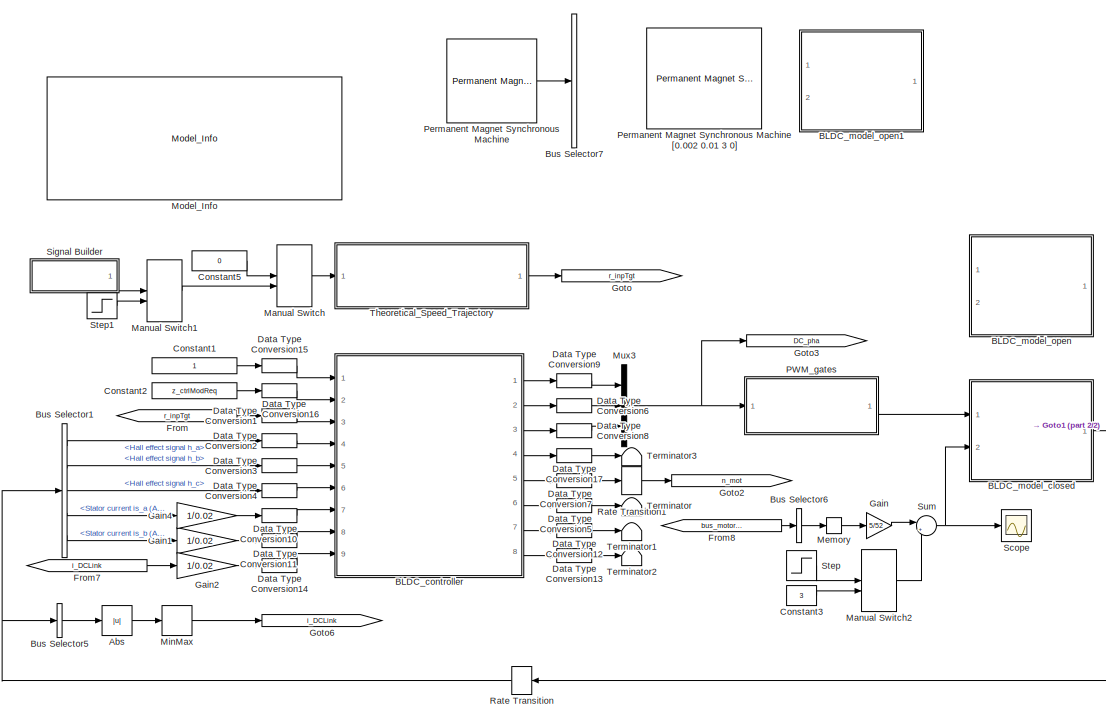
[diagram: root canvas - part 1/2, left side, full height]
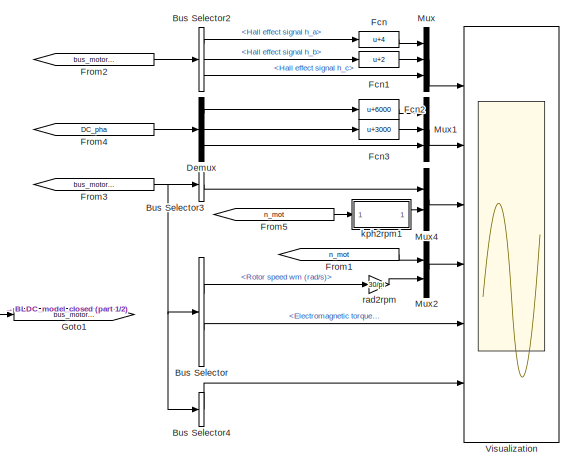
[diagram: root canvas - part 2/2, middle right region]
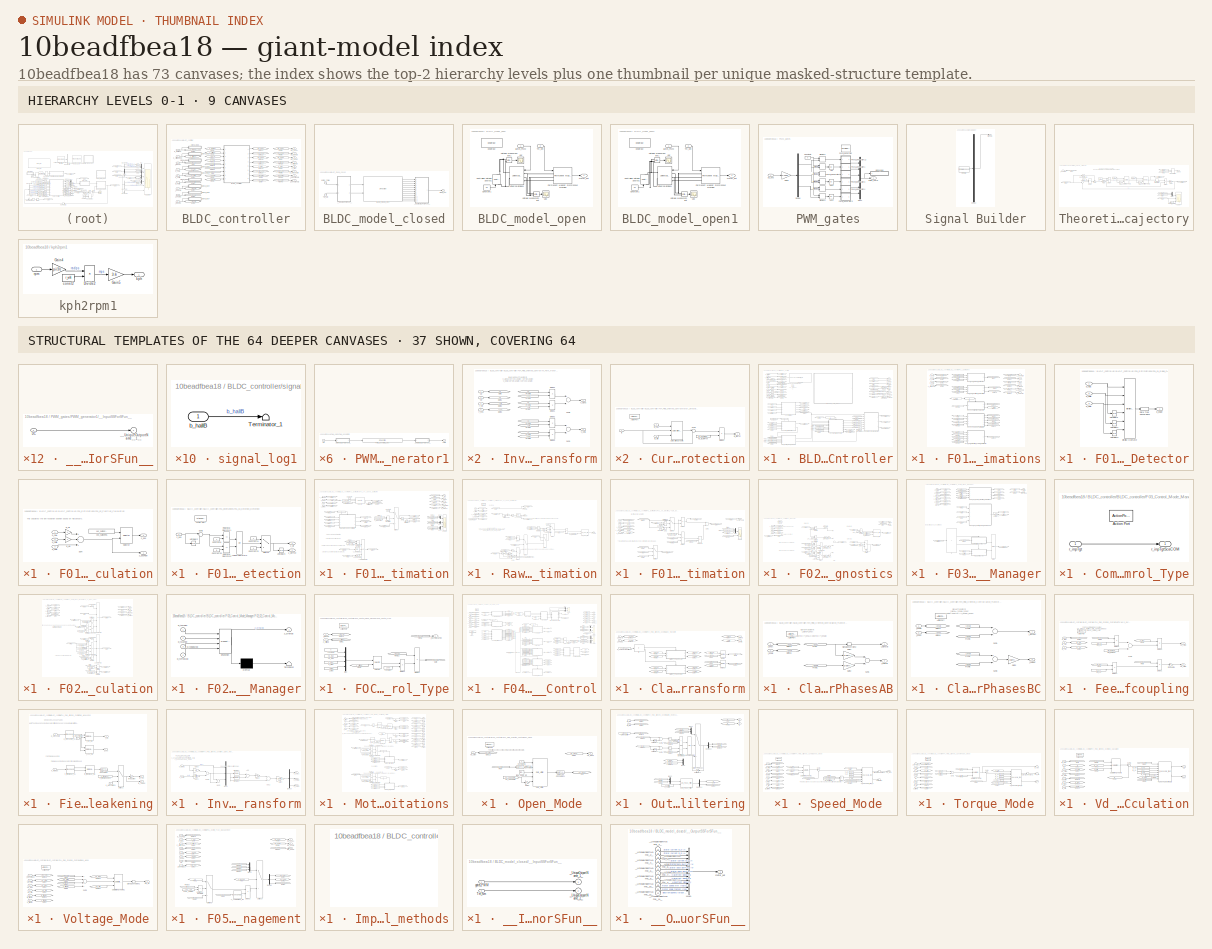
[diagram: thumbnail index - top-2 hierarchy levels (9 canvases) + 37 structural-template representatives of the remaining 64 canvases]
MODEL slx_10beadfbea18
KIND model
CONFIG AbsTol = 1e-6
CONFIG EnableMultiTasking = on
CONFIG FixedStep = Ts
CONFIG InitFcn = init_model;
CONFIG MaxStep = 1e-6
CONFIG MinStep = auto
CONFIG PreLoadFcn = addpath(genpath('01_Libraries'));\naddpath(genpath('02_Figures'));
CONFIG RelTol = 1e-6
CONFIG SampleTimeConstraint = Unconstrained
CONFIG Solver = ode4
CONFIG SolverName = ode4
CONFIG StartTime = 0
CONFIG StopTime = 0.5
BLOCK [Abs] Abs
  SaturateOnIntegerOverflow = off
BLOCK [SubSystem] BLDC_controller
  Ports = [9, 8]
  RequestExecContextInheritance = off
  SystemSampleTime = Ts_ctrl
  TreatAsAtomicUnit = on
  Variant = off
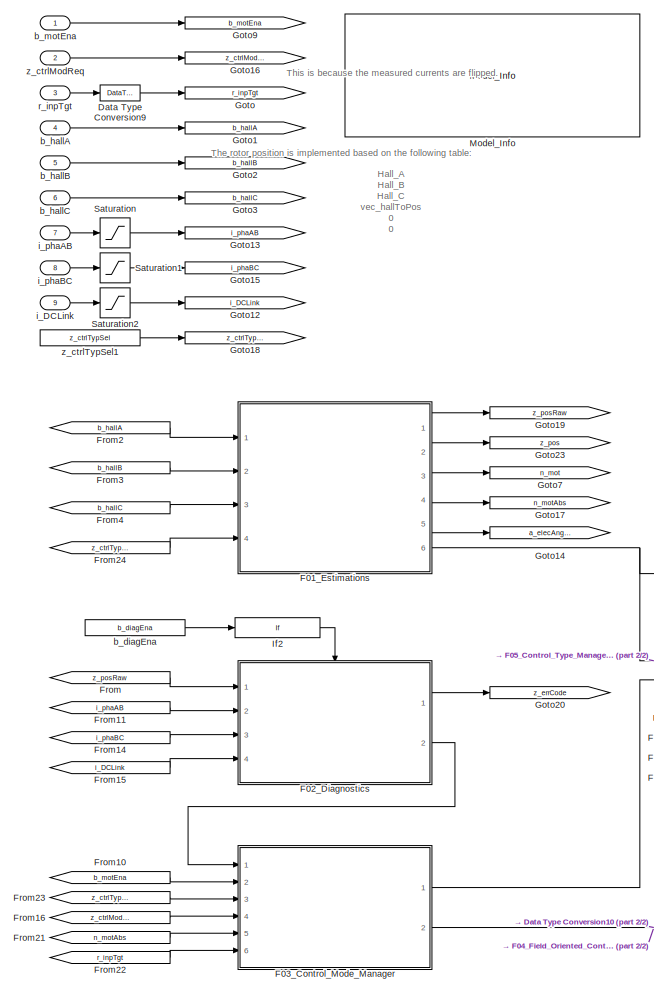
[diagram: BLDC_controller/BLDC_controller - part 1/2, left side, full height]
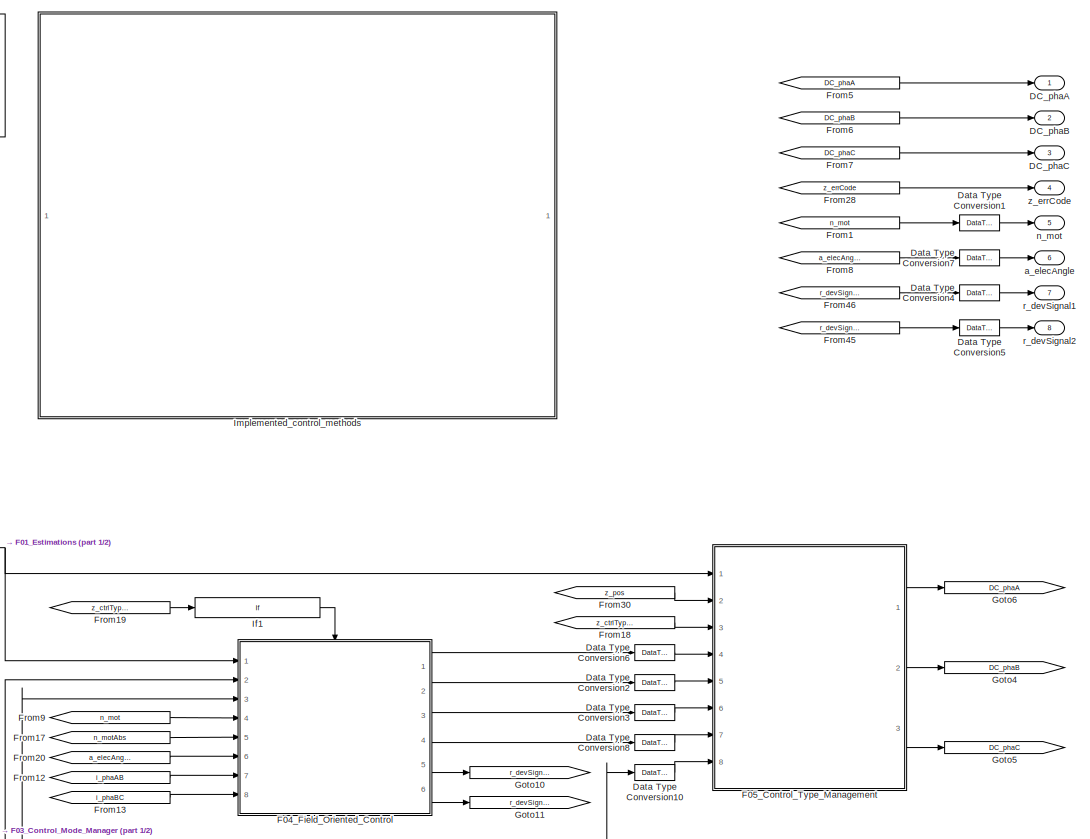
[diagram: BLDC_controller/BLDC_controller - part 2/2, right side, full height]
BLOCK [SubSystem] BLDC_controller/BLDC_controller
  Ports = [9, 8]
  RequestExecContextInheritance = off
  SystemSampleTime = 1e-5
  Variant = off
BLOCK [Outport] BLDC_controller/BLDC_controller/DC_phaA
  IconDisplay = Port number
BLOCK [Outport] BLDC_controller/BLDC_controller/DC_phaB
  IconDisplay = Port number
  Port = 2
BLOCK [Outport] BLDC_controller/BLDC_controller/DC_phaC
  IconDisplay = Port number
  Port = 3
BLOCK [DataTypeConversion] BLDC_controller/BLDC_controller/Data Type Conversion1
  OutDataTypeStr = int16
  RndMeth = Floor
  SaturateOnIntegerOverflow = off
BLOCK [DataTypeConversion] BLDC_controller/BLDC_controller/Data Type Conversion10
  OutDataTypeStr = int16
  RndMeth = Floor
  SaturateOnIntegerOverflow = off
BLOCK [DataTypeConversion] BLDC_controller/BLDC_controller/Data Type Conversion2
  OutDataTypeStr = int16
  RndMeth = Floor
  SaturateOnIntegerOverflow = off
BLOCK [DataTypeConversion] BLDC_controller/BLDC_controller/Data Type Conversion3
  OutDataTypeStr = int16
  RndMeth = Floor
  SaturateOnIntegerOverflow = off
BLOCK [DataTypeConversion] BLDC_controller/BLDC_controller/Data Type Conversion4
  OutDataTypeStr = int16
  RndMeth = Floor
  SaturateOnIntegerOverflow = off
BLOCK [DataTypeConversion] BLDC_controller/BLDC_controller/Data Type Conversion5
  OutDataTypeStr = int16
  RndMeth = Floor
  SaturateOnIntegerOverflow = off
BLOCK [DataTypeConversion] BLDC_controller/BLDC_controller/Data Type Conversion6
  OutDataTypeStr = int16
  RndMeth = Floor
  SaturateOnIntegerOverflow = off
BLOCK [DataTypeConversion] BLDC_controller/BLDC_controller/Data Type Conversion7
  OutDataTypeStr = int16
  RndMeth = Floor
  SaturateOnIntegerOverflow = off
BLOCK [DataTypeConversion] BLDC_controller/BLDC_controller/Data Type Conversion8
  OutDataTypeStr = int16
  RndMeth = Floor
  SaturateOnIntegerOverflow = off
BLOCK [DataTypeConversion] BLDC_controller/BLDC_controller/Data Type Conversion9
  OutDataTypeStr = fixdt(1,16,4)
  RndMeth = Floor
  SaturateOnIntegerOverflow = off
BLOCK [SubSystem] BLDC_controller/BLDC_controller/F01_Estimations
  Ports = [4, 6]
  RequestExecContextInheritance = off
  Variant = off
BLOCK [SubSystem] BLDC_controller/BLDC_controller/F01_Estimations/F01_01_Edge_Detector
  Ports = [3, 1]
  RequestExecContextInheritance = off
  Variant = off
BLOCK [Reference] BLDC_controller/BLDC_controller/F01_Estimations/F01_01_Edge_Detector/Bitwise Operator  REF=simulink/Logic and Bit
Operations/Bitwise
Operator
  Ports = [6, 1]
  SourceBlock = simulink/Logic and Bit\nOperations/Bitwise\nOperator
  SourceProductBaseCode = SL
  SourceProductName = Simulink
  SourceType = Bitwise Operator
BLOCK [DataTypeConversion] BLDC_controller/BLDC_controller/F01_Estimations/F01_01_Edge_Detector/Data Type Conversion2
  OutDataTypeStr = boolean
  RndMeth = Floor
  SaturateOnIntegerOverflow = off
BLOCK [UnitDelay] BLDC_controller/BLDC_controller/F01_Estimations/F01_01_Edge_Detector/UnitDelay1
  AttributesFormatString = Ini=%<X0>
  SampleTime = -1
BLOCK [UnitDelay] BLDC_controller/BLDC_controller/F01_Estimations/F01_01_Edge_Detector/UnitDelay2
  AttributesFormatString = Ini=%<X0>
  SampleTime = -1
BLOCK [UnitDelay] BLDC_controller/BLDC_controller/F01_Estimations/F01_01_Edge_Detector/UnitDelay3
  AttributesFormatString = Ini=%<X0>
  SampleTime = -1
BLOCK [Outport] BLDC_controller/BLDC_controller/F01_Estimations/F01_01_Edge_Detector/b_edge 
  IconDisplay = Port number
  InitialOutput = 0
  OutputWhenDisabled = reset
BLOCK [Inport] BLDC_controller/BLDC_controller/F01_Estimations/F01_01_Edge_Detector/b_hallA
  IconDisplay = Port number
BLOCK [Inport] BLDC_controller/BLDC_controller/F01_Estimations/F01_01_Edge_Detector/b_hallB
  IconDisplay = Port number
  Port = 2
BLOCK [Inport] BLDC_controller/BLDC_controller/F01_Estimations/F01_01_Edge_Detector/b_hallC
  IconDisplay = Port number
  Port = 3
BLOCK [SubSystem] BLDC_controller/BLDC_controller/F01_Estimations/F01_02_Position_Calculation
  Ports = [3, 2]
  RequestExecContextInheritance = off
  Variant = off
BLOCK [Selector] BLDC_controller/BLDC_controller/F01_Estimations/F01_02_Position_Calculation/Selector
  IndexMode = Zero-based
  IndexOptions = Index vector (port)
  Indices = [1 3]
  InputPortWidth = length(vec_hallToPos)
  OutputSizes = 1
  Ports = [2, 1]
BLOCK [Sum] BLDC_controller/BLDC_controller/F01_Estimations/F01_02_Position_Calculation/Sum
  AccumDataTypeStr = Inherit: Same as first input
  InputSameDT = off
  Inputs = +++
  Ports = [3, 1]
  RndMeth = Simplest
  SaturateOnIntegerOverflow = off
BLOCK [Inport] BLDC_controller/BLDC_controller/F01_Estimations/F01_02_Position_Calculation/b_hallA
  IconDisplay = Port number
BLOCK [Inport] BLDC_controller/BLDC_controller/F01_Estimations/F01_02_Position_Calculation/b_hallB
  IconDisplay = Port number
  Port = 2
BLOCK [Inport] BLDC_controller/BLDC_controller/F01_Estimations/F01_02_Position_Calculation/b_hallC
  IconDisplay = Port number
  Port = 3
BLOCK [Gain] BLDC_controller/BLDC_controller/F01_Estimations/F01_02_Position_Calculation/g_Ha
  Gain = 4
  OutDataTypeStr = Inherit: Inherit via back propagation
  RndMeth = Zero
  SaturateOnIntegerOverflow = off
BLOCK [Gain] BLDC_controller/BLDC_controller/F01_Estimations/F01_02_Position_Calculation/g_Hb
  Gain = 2
  OutDataTypeStr = Inherit: Inherit via back propagation
  RndMeth = Simplest
  SaturateOnIntegerOverflow = off
BLOCK [Constant] BLDC_controller/BLDC_controller/F01_Estimations/F01_02_Position_Calculation/vec_hallToPos
  OutDataTypeStr = int8
  Value = vec_hallToPos
BLOCK [Outport] BLDC_controller/BLDC_controller/F01_Estimations/F01_02_Position_Calculation/z_pos 
  IconDisplay = Port number
  InitialOutput = 0
  OutputWhenDisabled = reset
  Port = 2
BLOCK [Outport] BLDC_controller/BLDC_controller/F01_Estimations/F01_02_Position_Calculation/z_posRaw
  IconDisplay = Port number
  InitialOutput = 0
  OutputWhenDisabled = reset
BLOCK [SubSystem] BLDC_controller/BLDC_controller/F01_Estimations/F01_03_Direction_Detection
  Ports = [1, 2, 0, 0, 0, 0, 0, 1]
  RequestExecContextInheritance = off
  Variant = off
BLOCK [ActionPort] BLDC_controller/BLDC_controller/F01_Estimations/F01_03_Direction_Detection/Action Port
  ActionType = then
BLOCK [Constant] BLDC_controller/BLDC_controller/F01_Estimations/F01_03_Direction_Detection/Constant20
  OutDataTypeStr = Inherit: Inherit via back propagation
  Value = -5
BLOCK [Constant] BLDC_controller/BLDC_controller/F01_Estimations/F01_03_Direction_Detection/Constant23
  OutDataTypeStr = int8
  Value = -1
BLOCK [Constant] BLDC_controller/BLDC_controller/F01_Estimations/F01_03_Direction_Detection/Constant24
  OutDataTypeStr = int8
BLOCK [Constant] BLDC_controller/BLDC_controller/F01_Estimations/F01_03_Direction_Detection/Constant8
  OutDataTypeStr = Inherit: Inherit via back propagation
BLOCK [Logic] BLDC_controller/BLDC_controller/F01_Estimations/F01_03_Direction_Detection/Logical Operator3
  AllPortsSameDT = off
  Operator = OR
  OutDataTypeStr = boolean
  Ports = [2, 1]
BLOCK [RelationalOperator] BLDC_controller/BLDC_controller/F01_Estimations/F01_03_Direction_Detection/Relational Operator1
  InputSameDT = off
  Operator = ==
  OutDataTypeStr = boolean
  Ports = [2, 1]
  RndMeth = Simplest
BLOCK [RelationalOperator] BLDC_controller/BLDC_controller/F01_Estimations/F01_03_Direction_Detection/Relational Operator6
  InputSameDT = off
  Operator = ==
  OutDataTypeStr = boolean
  Ports = [2, 1]
  RndMeth = Simplest
BLOCK [Sum] BLDC_controller/BLDC_controller/F01_Estimations/F01_03_Direction_Detection/Sum2
  AccumDataTypeStr = Inherit: Same as first input
  IconShape = round
  Inputs = |+-
  Ports = [2, 1]
  RndMeth = Zero
  SaturateOnIntegerOverflow = off
BLOCK [Switch] BLDC_controller/BLDC_controller/F01_Estimations/F01_03_Direction_Detection/Switch2
  Criteria = u2 ~= 0
  InputSameDT = off
  OutDataTypeStr = Inherit: Inherit via back propagation
  RndMeth = Simplest
  SaturateOnIntegerOverflow = off
BLOCK [UnitDelay] BLDC_controller/BLDC_controller/F01_Estimations/F01_03_Direction_Detection/UnitDelay2
  InputProcessing = Elements as channels (sample based)
  SampleTime = -1
BLOCK [UnitDelay] BLDC_controller/BLDC_controller/F01_Estimations/F01_03_Direction_Detection/UnitDelay3
  AttributesFormatString = Ini=%<X0>
  SampleTime = -1
BLOCK [Outport] BLDC_controller/BLDC_controller/F01_Estimations/F01_03_Direction_Detection/z_dir
  IconDisplay = Port number
BLOCK [Outport] BLDC_controller/BLDC_controller/F01_Estimations/F01_03_Direction_Detection/z_dirPrev
  IconDisplay = Port number
  Port = 2
BLOCK [Inport] BLDC_controller/BLDC_controller/F01_Estimations/F01_03_Direction_Detection/z_pos
  IconDisplay = Port number
BLOCK [SubSystem] BLDC_controller/BLDC_controller/F01_Estimations/F01_04_Speed_Estimation
  Ports = [4, 5]
  RequestExecContextInheritance = off
  Variant = off
BLOCK [Abs] BLDC_controller/BLDC_controller/F01_Estimations/F01_04_Speed_Estimation/Abs5
  OutDataTypeStr = Inherit: Inherit via back propagation
  RndMeth = Zero
  SaturateOnIntegerOverflow = off
BLOCK [Constant] BLDC_controller/BLDC_controller/F01_Estimations/F01_04_Speed_Estimation/CTRL_COMM
  OutDataTypeStr = Inherit: Inherit via back propagation
  Value = CTRL_COM
BLOCK [Constant] BLDC_controller/BLDC_controller/F01_Estimations/F01_04_Speed_Estimation/Constant4
  OutDataTypeStr = Inherit: Inherit via back propagation
  Value = 0
BLOCK [Constant] BLDC_controller/BLDC_controller/F01_Estimations/F01_04_Speed_Estimation/Constant6
  OutDataTypeStr = fixdt(1,16,0)
BLOCK [Reference] BLDC_controller/BLDC_controller/F01_Estimations/F01_04_Speed_Estimation/Counter  REF=BLDC_controller_Lib/Counter
  AttributesFormatString = Ini=%<z_cntInit>
  Ports = [3, 1]
  SourceBlock = BLDC_controller_Lib/Counter
BLOCK [From] BLDC_controller/BLDC_controller/F01_Estimations/F01_04_Speed_Estimation/From
  GotoTag = z_counterRaw
BLOCK [From] BLDC_controller/BLDC_controller/F01_Estimations/F01_04_Speed_Estimation/From1
  GotoTag = n_mot
BLOCK [From] BLDC_controller/BLDC_controller/F01_Estimations/F01_04_Speed_Estimation/From10
  GotoTag = z_counter
BLOCK [From] BLDC_controller/BLDC_controller/F01_Estimations/F01_04_Speed_Estimation/From12
  GotoTag = z_counter
BLOCK [From] BLDC_controller/BLDC_controller/F01_Estimations/F01_04_Speed_Estimation/From14
  GotoTag = z_counterRaw
BLOCK [From] BLDC_controller/BLDC_controller/F01_Estimations/F01_04_Speed_Estimation/From15
  GotoTag = b_edge
BLOCK [From] BLDC_controller/BLDC_controller/F01_Estimations/F01_04_Speed_Estimation/From16
  GotoTag = b_edge
BLOCK [From] BLDC_controller/BLDC_controller/F01_Estimations/F01_04_Speed_Estimation/From17
  GotoTag = z_counterRawPrev
BLOCK [From] BLDC_controller/BLDC_controller/F01_Estimations/F01_04_Speed_Estimation/From18
  GotoTag = b_enaFOC
BLOCK [From] BLDC_controller/BLDC_controller/F01_Estimations/F01_04_Speed_Estimation/From19
  GotoTag = z_dir
BLOCK [From] BLDC_controller/BLDC_controller/F01_Estimations/F01_04_Speed_Estimation/From2
  GotoTag = n_motAbsPrev
BLOCK [From] BLDC_controller/BLDC_controller/F01_Estimations/F01_04_Speed_Estimation/From24
  GotoTag = b_enaFOC
BLOCK [From] BLDC_controller/BLDC_controller/F01_Estimations/F01_04_Speed_Estimation/From28
  GotoTag = z_dirPrev
BLOCK [From] BLDC_controller/BLDC_controller/F01_Estimations/F01_04_Speed_Estimation/From29
  GotoTag = n_motAbs
BLOCK [From] BLDC_controller/BLDC_controller/F01_Estimations/F01_04_Speed_Estimation/From3
  GotoTag = n_motRaw
BLOCK [From] BLDC_controller/BLDC_controller/F01_Estimations/F01_04_Speed_Estimation/From30
  GotoTag = z_ctrlTypSel
BLOCK [From] BLDC_controller/BLDC_controller/F01_Estimations/F01_04_Speed_Estimation/From31
  GotoTag = b_edge
BLOCK [From] BLDC_controller/BLDC_controller/F01_Estimations/F01_04_Speed_Estimation/From4
  GotoTag = n_mot
BLOCK [From] BLDC_controller/BLDC_controller/F01_Estimations/F01_04_Speed_Estimation/From5
  GotoTag = z_counterRaw
BLOCK [From] BLDC_controller/BLDC_controller/F01_Estimations/F01_04_Speed_Estimation/From6
  GotoTag = n_motAbs
BLOCK [From] BLDC_controller/BLDC_controller/F01_Estimations/F01_04_Speed_Estimation/From7
  GotoTag = n_motRaw
BLOCK [From] BLDC_controller/BLDC_controller/F01_Estimations/F01_04_Speed_Estimation/From8
  GotoTag = dz_trnsDet
BLOCK [Goto] BLDC_controller/BLDC_controller/F01_Estimations/F01_04_Speed_Estimation/Goto
  GotoTag = b_edge
BLOCK [Goto] BLDC_controller/BLDC_controller/F01_Estimations/F01_04_Speed_Estimation/Goto1
  GotoTag = z_dir
BLOCK [Goto] BLDC_controller/BLDC_controller/F01_Estimations/F01_04_Speed_Estimation/Goto10
  GotoTag = z_counter
BLOCK [Goto] BLDC_controller/BLDC_controller/F01_Estimations/F01_04_Speed_Estimation/Goto11
  GotoTag = n_motRaw
BLOCK [Goto] BLDC_controller/BLDC_controller/F01_Estimations/F01_04_Speed_Estimation/Goto12
  GotoTag = n_motAbs
BLOCK [Goto] BLDC_controller/BLDC_controller/F01_Estimations/F01_04_Speed_Estimation/Goto17
  GotoTag = b_enaFOC
BLOCK [Goto] BLDC_controller/BLDC_controller/F01_Estimations/F01_04_Speed_Estimation/Goto2
  GotoTag = z_dirPrev
BLOCK [Goto] BLDC_controller/BLDC_controller/F01_Estimations/F01_04_Speed_Estimation/Goto22
  GotoTag = z_counterRawPrev
BLOCK [Goto] BLDC_controller/BLDC_controller/F01_Estimations/F01_04_Speed_Estimation/Goto3
  GotoTag = n_motAbsPrev
BLOCK [Goto] BLDC_controller/BLDC_controller/F01_Estimations/F01_04_Speed_Estimation/Goto4
  GotoTag = z_ctrlTypSel
BLOCK [Goto] BLDC_controller/BLDC_controller/F01_Estimations/F01_04_Speed_Estimation/Goto5
  GotoTag = dz_trnsDet
BLOCK [Goto] BLDC_controller/BLDC_controller/F01_Estimations/F01_04_Speed_Estimation/Goto7
  GotoTag = n_mot
BLOCK [Goto] BLDC_controller/BLDC_controller/F01_Estimations/F01_04_Speed_Estimation/Goto8
  GotoTag = z_counterRaw
BLOCK [If] BLDC_controller/BLDC_controller/F01_Estimations/F01_04_Speed_Estimation/If2
  IfExpression = u1 ~= 0
  Ports = [1, 1]
  ShowElse = off
BLOCK [Logic] BLDC_controller/BLDC_controller/F01_Estimations/F01_04_Speed_Estimation/Logical Operator1
  AllPortsSameDT = off
  Operator = NOT
  OutDataTypeStr = boolean
  Ports = [1, 1]
BLOCK [Logic] BLDC_controller/BLDC_controller/F01_Estimations/F01_04_Speed_Estimation/Logical Operator2
  AllPortsSameDT = off
  Inputs = 3
  OutDataTypeStr = boolean
  Ports = [3, 1]
BLOCK [Mux] BLDC_controller/BLDC_controller/F01_Estimations/F01_04_Speed_Estimation/Mux1
  DisplayOption = bar
  Inputs = 2
  Ports = [2, 1]
BLOCK [Mux] BLDC_controller/BLDC_controller/F01_Estimations/F01_04_Speed_Estimation/Mux2
  DisplayOption = bar
  Inputs = 2
  Ports = [2, 1]
BLOCK [Mux] BLDC_controller/BLDC_controller/F01_Estimations/F01_04_Speed_Estimation/Mux3
  DisplayOption = bar
  Inputs = 2
  Ports = [2, 1]
BLOCK [SubSystem] BLDC_controller/BLDC_controller/F01_Estimations/F01_04_Speed_Estimation/Raw_Motor_Speed_Estimation
  Ports = [4, 3, 0, 0, 0, 0, 0, 1]
  RequestExecContextInheritance = off
  Variant = off
BLOCK [Abs] BLDC_controller/BLDC_controller/F01_Estimations/F01_04_Speed_Estimation/Raw_Motor_Speed_Estimation/Abs2
  OutDataTypeStr = Inherit: Inherit via back propagation
  RndMeth = Zero
  SaturateOnIntegerOverflow = off
BLOCK [ActionPort] BLDC_controller/BLDC_controller/F01_Estimations/F01_04_Speed_Estimation/Raw_Motor_Speed_Estimation/Action Port
  ActionType = then
BLOCK [Constant] BLDC_controller/BLDC_controller/F01_Estimations/F01_04_Speed_Estimation/Raw_Motor_Speed_Estimation/Constant4
  OutDataTypeStr = Inherit: Inherit via back propagation
  Value = 0
BLOCK [Product] BLDC_controller/BLDC_controller/F01_Estimations/F01_04_Speed_Estimation/Raw_Motor_Speed_Estimation/Divide11
  InputSameDT = off
  Inputs = **
  Ports = [2, 1]
  RndMeth = Simplest
  SaturateOnIntegerOverflow = off
BLOCK [Product] BLDC_controller/BLDC_controller/F01_Estimations/F01_04_Speed_Estimation/Raw_Motor_Speed_Estimation/Divide13
  InputSameDT = off
  Inputs = */
  OutDataTypeStr = fixdt(1,16,4)
  Ports = [2, 1]
  RndMeth = Simplest
  SaturateOnIntegerOverflow = off
BLOCK [Product] BLDC_controller/BLDC_controller/F01_Estimations/F01_04_Speed_Estimation/Raw_Motor_Speed_Estimation/Divide14
  InputSameDT = off
  Inputs = */
  OutDataTypeStr = fixdt(1,16,4)
  Ports = [2, 1]
  RndMeth = Simplest
  SaturateOnIntegerOverflow = off
BLOCK [From] BLDC_controller/BLDC_controller/F01_Estimations/F01_04_Speed_Estimation/Raw_Motor_Speed_Estimation/From
  GotoTag = cf_speedCoef
BLOCK [From] BLDC_controller/BLDC_controller/F01_Estimations/F01_04_Speed_Estimation/Raw_Motor_Speed_Estimation/From1
  GotoTag = z_counterRawPrev
BLOCK [From] BLDC_controller/BLDC_controller/F01_Estimations/F01_04_Speed_Estimation/Raw_Motor_Speed_Estimation/From12
  GotoTag = z_counter
BLOCK [From] BLDC_controller/BLDC_controller/F01_Estimations/F01_04_Speed_Estimation/Raw_Motor_Speed_Estimation/From13
  GotoTag = z_counter
BLOCK [From] BLDC_controller/BLDC_controller/F01_Estimations/F01_04_Speed_Estimation/Raw_Motor_Speed_Estimation/From21
  GotoTag = z_dirPrev
BLOCK [From] BLDC_controller/BLDC_controller/F01_Estimations/F01_04_Speed_Estimation/Raw_Motor_Speed_Estimation/From4
  GotoTag = z_dir
BLOCK [From] BLDC_controller/BLDC_controller/F01_Estimations/F01_04_Speed_Estimation/Raw_Motor_Speed_Estimation/From5
  GotoTag = cf_speedCoef
BLOCK [From] BLDC_controller/BLDC_controller/F01_Estimations/F01_04_Speed_Estimation/Raw_Motor_Speed_Estimation/From6
  GotoTag = z_dir
BLOCK [From] BLDC_controller/BLDC_controller/F01_Estimations/F01_04_Speed_Estimation/Raw_Motor_Speed_Estimation/From7
  GotoTag = n_motAbsPrev
BLOCK [From] BLDC_controller/BLDC_controller/F01_Estimations/F01_04_Speed_Estimation/Raw_Motor_Speed_Estimation/From8
  GotoTag = dz_trnsDet
BLOCK [From] BLDC_controller/BLDC_controller/F01_Estimations/F01_04_Speed_Estimation/Raw_Motor_Speed_Estimation/From9
  GotoTag = z_counter
BLOCK [Goto] BLDC_controller/BLDC_controller/F01_Estimations/F01_04_Speed_Estimation/Raw_Motor_Speed_Estimation/Goto
  GotoTag = z_dir
BLOCK [Goto] BLDC_controller/BLDC_controller/F01_Estimations/F01_04_Speed_Estimation/Raw_Motor_Speed_Estimation/Goto1
  GotoTag = z_counter
BLOCK [Goto] BLDC_controller/BLDC_controller/F01_Estimations/F01_04_Speed_Estimation/Raw_Motor_Speed_Estimation/Goto3
  GotoTag = z_dirPrev
BLOCK [Goto] BLDC_controller/BLDC_controller/F01_Estimations/F01_04_Speed_Estimation/Raw_Motor_Speed_Estimation/Goto4
  GotoTag = n_motAbsPrev
BLOCK [Goto] BLDC_controller/BLDC_controller/F01_Estimations/F01_04_Speed_Estimation/Raw_Motor_Speed_Estimation/Goto5
  GotoTag = z_counterRawPrev
BLOCK [Goto] BLDC_controller/BLDC_controller/F01_Estimations/F01_04_Speed_Estimation/Raw_Motor_Speed_Estimation/Goto6
  GotoTag = dz_trnsDet
BLOCK [Goto] BLDC_controller/BLDC_controller/F01_Estimations/F01_04_Speed_Estimation/Raw_Motor_Speed_Estimation/Goto7
  GotoTag = cf_speedCoef
BLOCK [Logic] BLDC_controller/BLDC_controller/F01_Estimations/F01_04_Speed_Estimation/Raw_Motor_Speed_Estimation/Logical Operator1
  AllPortsSameDT = off
  OutDataTypeStr = boolean
  Ports = [2, 1]
BLOCK [Reference] BLDC_controller/BLDC_controller/F01_Estimations/F01_04_Speed_Estimation/Raw_Motor_Speed_Estimation/Low_Pass_Filter  REF=BLDC_controller_Lib/Low_Pass_Filter
  Ports = [2, 1]
  SourceBlock = BLDC_controller_Lib/Low_Pass_Filter
BLOCK [RelationalOperator] BLDC_controller/BLDC_controller/F01_Estimations/F01_04_Speed_Estimation/Raw_Motor_Speed_Estimation/Relational Operator4
  InputSameDT = off
  Operator = ~=
  OutDataTypeStr = boolean
  Ports = [2, 1]
  RndMeth = Simplest
BLOCK [Sum] BLDC_controller/BLDC_controller/F01_Estimations/F01_04_Speed_Estimation/Raw_Motor_Speed_Estimation/Sum13
  Inputs = ++++
  Ports = [4, 1]
  RndMeth = Simplest
  SaturateOnIntegerOverflow = off
BLOCK [Sum] BLDC_controller/BLDC_controller/F01_Estimations/F01_04_Speed_Estimation/Raw_Motor_Speed_Estimation/Sum7
  Inputs = +-
  Ports = [2, 1]
  RndMeth = Simplest
  SaturateOnIntegerOverflow = off
BLOCK [Switch] BLDC_controller/BLDC_controller/F01_Estimations/F01_04_Speed_Estimation/Raw_Motor_Speed_Estimation/Switch1
  AttributesFormatString = threshold=%<threshold>\nCriteria : %<Criteria>
  Criteria = u2 ~= 0
  Tag = struct('comment',struct('text','','placement',1),'logdata',struct('maxnumvals',inf,'plotchannels',[],'loggingmode',3,'channels',1),'output',struct('variable','','description','','name','$S_$B','width',1,'address','','max',NaN,'min',NaN,'class','default','type','CONTINUOUS','scaling','','lsb',1,'offset',0,'arb',0,'freeze',1,'unit','','autoscalingmode',1,'lowerheadroom',1,'upperheadroom',1,'headroom...<+413ch>  <repeated x3 — deduplicated; at blocks: Switch1, Switch2, Switch3>
BLOCK [Switch] BLDC_controller/BLDC_controller/F01_Estimations/F01_04_Speed_Estimation/Raw_Motor_Speed_Estimation/Switch2
  AttributesFormatString = threshold=%<threshold>\nCriteria : %<Criteria>
  Criteria = u2 ~= 0
BLOCK [Switch] BLDC_controller/BLDC_controller/F01_Estimations/F01_04_Speed_Estimation/Raw_Motor_Speed_Estimation/Switch3
  AttributesFormatString = threshold=%<threshold>\nCriteria : %<Criteria>
  Criteria = u2 ~= 0
BLOCK [UnitDelay] BLDC_controller/BLDC_controller/F01_Estimations/F01_04_Speed_Estimation/Raw_Motor_Speed_Estimation/UnitDelay1
  AttributesFormatString = Ini=%<X0>
  SampleTime = -1
BLOCK [UnitDelay] BLDC_controller/BLDC_controller/F01_Estimations/F01_04_Speed_Estimation/Raw_Motor_Speed_Estimation/UnitDelay2
  AttributesFormatString = Ini=%<X0>
  SampleTime = -1
BLOCK [UnitDelay] BLDC_controller/BLDC_controller/F01_Estimations/F01_04_Speed_Estimation/Raw_Motor_Speed_Estimation/UnitDelay3
  AttributesFormatString = Ini=%<X0>
  SampleTime = -1
BLOCK [UnitDelay] BLDC_controller/BLDC_controller/F01_Estimations/F01_04_Speed_Estimation/Raw_Motor_Speed_Estimation/UnitDelay4
  AttributesFormatString = Ini=%<X0>
  SampleTime = -1
BLOCK [UnitDelay] BLDC_controller/BLDC_controller/F01_Estimations/F01_04_Speed_Estimation/Raw_Motor_Speed_Estimation/UnitDelay5
  AttributesFormatString = Ini=%<X0>
  SampleTime = -1
BLOCK [Constant] BLDC_controller/BLDC_controller/F01_Estimations/F01_04_Speed_Estimation/Raw_Motor_Speed_Estimation/cf_speedCoef
  OutDataTypeStr = fixdt(0,16,0)
  Value = cf_speedCoef
BLOCK [Constant] BLDC_controller/BLDC_controller/F01_Estimations/F01_04_Speed_Estimation/Raw_Motor_Speed_Estimation/cf_speedFilt
  OutDataTypeStr = fixdt(0,16,16)
  Value = cf_speedFilt
BLOCK [Relay] BLDC_controller/BLDC_controller/F01_Estimations/F01_04_Speed_Estimation/Raw_Motor_Speed_Estimation/dz_cntTrnsDet
  InputProcessing = Elements as channels (sample based)
  OffSwitchValue = dz_cntTrnsDetLo
  OnSwitchValue = dz_cntTrnsDetHi
  OutDataTypeStr = boolean
BLOCK [Outport] BLDC_controller/BLDC_controller/F01_Estimations/F01_04_Speed_Estimation/Raw_Motor_Speed_Estimation/dz_trnsDet
  IconDisplay = Port number
  Port = 2
BLOCK [Gain] BLDC_controller/BLDC_controller/F01_Estimations/F01_04_Speed_Estimation/Raw_Motor_Speed_Estimation/g_Ha
  Gain = 4
  OutDataTypeStr = Inherit: Inherit via back propagation
  RndMeth = Zero
  SaturateOnIntegerOverflow = off
BLOCK [Inport] BLDC_controller/BLDC_controller/F01_Estimations/F01_04_Speed_Estimation/Raw_Motor_Speed_Estimation/n_motAbsPrev
  IconDisplay = Port number
  Port = 4
BLOCK [Outport] BLDC_controller/BLDC_controller/F01_Estimations/F01_04_Speed_Estimation/Raw_Motor_Speed_Estimation/n_motRaw
  IconDisplay = Port number
  Port = 3
BLOCK [Outport] BLDC_controller/BLDC_controller/F01_Estimations/F01_04_Speed_Estimation/Raw_Motor_Speed_Estimation/z_counter
  IconDisplay = Port number
  InitialOutput = z_maxCntRst
BLOCK [Inport] BLDC_controller/BLDC_controller/F01_Estimations/F01_04_Speed_Estimation/Raw_Motor_Speed_Estimation/z_counterRawPrev
  IconDisplay = Port number
  Port = 3
BLOCK [Inport] BLDC_controller/BLDC_controller/F01_Estimations/F01_04_Speed_Estimation/Raw_Motor_Speed_Estimation/z_dir
  IconDisplay = Port number
BLOCK [Inport] BLDC_controller/BLDC_controller/F01_Estimations/F01_04_Speed_Estimation/Raw_Motor_Speed_Estimation/z_dirPrev
  IconDisplay = Port number
  Port = 2
BLOCK [RelationalOperator] BLDC_controller/BLDC_controller/F01_Estimations/F01_04_Speed_Estimation/Relational Operator2
  InputSameDT = off
  Operator = >
  OutDataTypeStr = boolean
  Ports = [2, 1]
  RndMeth = Simplest
BLOCK [RelationalOperator] BLDC_controller/BLDC_controller/F01_Estimations/F01_04_Speed_Estimation/Relational Operator3
  InputSameDT = off
  Operator = ~=
  OutDataTypeStr = boolean
  Ports = [2, 1]
  RndMeth = Simplest
BLOCK [Scope] BLDC_controller/BLDC_controller/F01_Estimations/F01_04_Speed_Estimation/Scope2
  NumInputPorts = 3
  Ports = [3]
  ScopeSpecificationString = Simulink.scopes.TimeScopeBlockCfg('CurrentConfiguration', extmgr.ConfigurationSet(extmgr.Configuration('Core','General UI',true),extmgr.Configuration('Core','Source UI',true),extmgr.Configuration('Sources','WiredSimulink',true,'DataLoggingVariableName','ScopeData1'),extmgr.Configuration('Visuals','Time Domain',true,'SerializedDisplays',{struct('MinYLimReal','-0.125','MaxYLimReal','1.125','YLabelRe...<+3163ch>
BLOCK [Switch] BLDC_controller/BLDC_controller/F01_Estimations/F01_04_Speed_Estimation/Switch2
  Criteria = u2 ~= 0
  InputSameDT = off
  OutDataTypeStr = Inherit: Inherit via back propagation
  RndMeth = Zero
  SaturateOnIntegerOverflow = off
BLOCK [UnitDelay] BLDC_controller/BLDC_controller/F01_Estimations/F01_04_Speed_Estimation/UnitDelay3
  AttributesFormatString = Ini=%<X0>
  InitialCondition = z_maxCntRst
  SampleTime = -1
BLOCK [UnitDelay] BLDC_controller/BLDC_controller/F01_Estimations/F01_04_Speed_Estimation/UnitDelay4
  AttributesFormatString = Ini=%<X0>
  SampleTime = -1
BLOCK [Inport] BLDC_controller/BLDC_controller/F01_Estimations/F01_04_Speed_Estimation/b_edge
  IconDisplay = Port number
  Port = 2
BLOCK [Outport] BLDC_controller/BLDC_controller/F01_Estimations/F01_04_Speed_Estimation/b_enaFOC
  IconDisplay = Port number
  Port = 5
BLOCK [Relay] BLDC_controller/BLDC_controller/F01_Estimations/F01_04_Speed_Estimation/n_commDeacv
  InputProcessing = Elements as channels (sample based)
  OffSwitchValue = n_commAcvLo
  OnSwitchValue = n_commDeacvHi
  OutDataTypeStr = boolean
BLOCK [Outport] BLDC_controller/BLDC_controller/F01_Estimations/F01_04_Speed_Estimation/n_mot
  IconDisplay = Port number
BLOCK [Outport] BLDC_controller/BLDC_controller/F01_Estimations/F01_04_Speed_Estimation/n_motAbs
  IconDisplay = Port number
  Port = 2
BLOCK [Outport] BLDC_controller/BLDC_controller/F01_Estimations/F01_04_Speed_Estimation/z_counter
  IconDisplay = Port number
  InitialOutput = 0
  OutputWhenDisabled = reset
  Port = 3
BLOCK [Outport] BLDC_controller/BLDC_controller/F01_Estimations/F01_04_Speed_Estimation/z_counterRaw
  IconDisplay = Port number
  InitialOutput = 0
  OutputWhenDisabled = reset
  Port = 4
BLOCK [Inport] BLDC_controller/BLDC_controller/F01_Estimations/F01_04_Speed_Estimation/z_ctrlTypSel
  IconDisplay = Port number
BLOCK [Inport] BLDC_controller/BLDC_controller/F01_Estimations/F01_04_Speed_Estimation/z_dir
  IconDisplay = Port number
  Port = 3
BLOCK [Inport] BLDC_controller/BLDC_controller/F01_Estimations/F01_04_Speed_Estimation/z_dirPrev
  IconDisplay = Port number
  Port = 4
BLOCK [Constant] BLDC_controller/BLDC_controller/F01_Estimations/F01_04_Speed_Estimation/z_maxCntRst
  OutDataTypeStr = Inherit: Inherit via back propagation
  Value = z_maxCntRst
BLOCK [Constant] BLDC_controller/BLDC_controller/F01_Estimations/F01_04_Speed_Estimation/z_maxCntRst2
  OutDataTypeStr = Inherit: Inherit via back propagation
  Value = z_maxCntRst
BLOCK [SubSystem] BLDC_controller/BLDC_controller/F01_Estimations/F01_05_Electrical_Angle_Estimation
  Ports = [5, 1]
  RequestExecContextInheritance = off
  Variant = off
BLOCK [Constant] BLDC_controller/BLDC_controller/F01_Estimations/F01_05_Electrical_Angle_Estimation/Constant16
  OutDataTypeStr = Inherit: Inherit via back propagation
BLOCK [Constant] BLDC_controller/BLDC_controller/F01_Estimations/F01_05_Electrical_Angle_Estimation/Constant2
  OutDataTypeStr = Inherit: Inherit via back propagation
BLOCK [Product] BLDC_controller/BLDC_controller/F01_Estimations/F01_05_Electrical_Angle_Estimation/Divide4
  InputSameDT = off
  Inputs = */*
  Ports = [3, 1]
  RndMeth = Simplest
BLOCK [Product] BLDC_controller/BLDC_controller/F01_Estimations/F01_05_Electrical_Angle_Estimation/Divide5
  InputSameDT = off
  Inputs = **
  Ports = [2, 1]
  RndMeth = Simplest
  SaturateOnIntegerOverflow = off
BLOCK [From] BLDC_controller/BLDC_controller/F01_Estimations/F01_05_Electrical_Angle_Estimation/From
  GotoTag = b_enaFOC
BLOCK [From] BLDC_controller/BLDC_controller/F01_Estimations/F01_05_Electrical_Angle_Estimation/From1
  GotoTag = a_elecAngleRaw
BLOCK [From] BLDC_controller/BLDC_controller/F01_Estimations/F01_05_Electrical_Angle_Estimation/From10
  GotoTag = b_enaFOC
BLOCK [From] BLDC_controller/BLDC_controller/F01_Estimations/F01_05_Electrical_Angle_Estimation/From2
  GotoTag = a_elecAngle
BLOCK [From] BLDC_controller/BLDC_controller/F01_Estimations/F01_05_Electrical_Angle_Estimation/From3
  GotoTag = a_elecAngleLowRes
BLOCK [From] BLDC_controller/BLDC_controller/F01_Estimations/F01_05_Electrical_Angle_Estimation/From4
  GotoTag = a_elecAngleRaw
BLOCK [From] BLDC_controller/BLDC_controller/F01_Estimations/F01_05_Electrical_Angle_Estimation/From5
  GotoTag = a_elecAngle
BLOCK [From] BLDC_controller/BLDC_controller/F01_Estimations/F01_05_Electrical_Angle_Estimation/From51
  GotoTag = z_pos
BLOCK [From] BLDC_controller/BLDC_controller/F01_Estimations/F01_05_Electrical_Angle_Estimation/From52
  GotoTag = z_counter
BLOCK [From] BLDC_controller/BLDC_controller/F01_Estimations/F01_05_Electrical_Angle_Estimation/From53
  GotoTag = z_counterRaw
BLOCK [From] BLDC_controller/BLDC_controller/F01_Estimations/F01_05_Electrical_Angle_Estimation/From54
  GotoTag = z_dir
BLOCK [From] BLDC_controller/BLDC_controller/F01_Estimations/F01_05_Electrical_Angle_Estimation/From59
  GotoTag = z_dir
BLOCK [From] BLDC_controller/BLDC_controller/F01_Estimations/F01_05_Electrical_Angle_Estimation/From8
  GotoTag = a_elecAngleLowRes
BLOCK [Goto] BLDC_controller/BLDC_controller/F01_Estimations/F01_05_Electrical_Angle_Estimation/Goto
  GotoTag = z_pos
BLOCK [Goto] BLDC_controller/BLDC_controller/F01_Estimations/F01_05_Electrical_Angle_Estimation/Goto1
  GotoTag = z_dir
BLOCK [Goto] BLDC_controller/BLDC_controller/F01_Estimations/F01_05_Electrical_Angle_Estimation/Goto2
  GotoTag = z_counter
BLOCK [Goto] BLDC_controller/BLDC_controller/F01_Estimations/F01_05_Electrical_Angle_Estimation/Goto3
  GotoTag = z_counterRaw
BLOCK [Goto] BLDC_controller/BLDC_controller/F01_Estimations/F01_05_Electrical_Angle_Estimation/Goto4
  GotoTag = a_elecAngleRaw
BLOCK [Goto] BLDC_controller/BLDC_controller/F01_Estimations/F01_05_Electrical_Angle_Estimation/Goto6
  GotoTag = b_enaFOC
BLOCK [Goto] BLDC_controller/BLDC_controller/F01_Estimations/F01_05_Electrical_Angle_Estimation/Goto7
  GotoTag = a_elecAngle
BLOCK [Goto] BLDC_controller/BLDC_controller/F01_Estimations/F01_05_Electrical_Angle_Estimation/Goto8
  GotoTag = a_elecAngleLowRes
BLOCK [Mux] BLDC_controller/BLDC_controller/F01_Estimations/F01_05_Electrical_Angle_Estimation/Mux
  DisplayOption = bar
  Inputs = 3
  Ports = [3, 1]
BLOCK [Product] BLDC_controller/BLDC_controller/F01_Estimations/F01_05_Electrical_Angle_Estimation/Product6
  InputSameDT = off
  OutDataTypeStr = Inherit: Inherit via back propagation
  Ports = [2, 1]
  RndMeth = Simplest
  SaturateOnIntegerOverflow = off
BLOCK [RelationalOperator] BLDC_controller/BLDC_controller/F01_Estimations/F01_05_Electrical_Angle_Estimation/Relational Operator7
  InputSameDT = off
  Operator = ==
  OutDataTypeStr = boolean
  Ports = [2, 1]
  RndMeth = Simplest
BLOCK [Scope] BLDC_controller/BLDC_controller/F01_Estimations/F01_05_Electrical_Angle_Estimation/Scope
  NumInputPorts = 2
  Ports = [2]
  ScopeSpecificationString = Simulink.scopes.TimeScopeBlockCfg('CurrentConfiguration', extmgr.ConfigurationSet(extmgr.Configuration('Core','General UI',true),extmgr.Configuration('Core','Source UI',true),extmgr.Configuration('Sources','WiredSimulink',true,'DataLoggingVariableName','ScopeData1'),extmgr.Configuration('Visuals','Time Domain',true,'SerializedDisplays',{struct('MinYLimReal','-45.52734','MaxYLimReal','409.74609','Y...<+2032ch>
BLOCK [Sum] BLDC_controller/BLDC_controller/F01_Estimations/F01_05_Electrical_Angle_Estimation/Sum1
  AccumDataTypeStr = Inherit: Same as first input
  InputSameDT = off
  Ports = [2, 1]
  RndMeth = Simplest
  SaturateOnIntegerOverflow = off
BLOCK [Sum] BLDC_controller/BLDC_controller/F01_Estimations/F01_05_Electrical_Angle_Estimation/Sum2
  AccumDataTypeStr = Inherit: Same as first input
  InputSameDT = off
  Ports = [2, 1]
  RndMeth = Simplest
  SaturateOnIntegerOverflow = off
BLOCK [Switch] BLDC_controller/BLDC_controller/F01_Estimations/F01_05_Electrical_Angle_Estimation/Switch1
  Criteria = u2 ~= 0
  InputSameDT = off
  OutDataTypeStr = Inherit: Inherit via back propagation
  RndMeth = Zero
  SaturateOnIntegerOverflow = off
BLOCK [Switch] BLDC_controller/BLDC_controller/F01_Estimations/F01_05_Electrical_Angle_Estimation/Switch3
  Criteria = u2 ~= 0
  InputSameDT = off
  OutDataTypeStr = Inherit: Inherit via back propagation
  RndMeth = Zero
  SaturateOnIntegerOverflow = off
BLOCK [Outport] BLDC_controller/BLDC_controller/F01_Estimations/F01_05_Electrical_Angle_Estimation/a_elecAngle
  IconDisplay = Port number
  InitialOutput = 0
  OutputWhenDisabled = reset
BLOCK [Constant] BLDC_controller/BLDC_controller/F01_Estimations/F01_05_Electrical_Angle_Estimation/a_elecAngle1
  OutDataTypeStr = fixdt(1,16,6)
  Value = a_elecAngle
BLOCK [Inport] BLDC_controller/BLDC_controller/F01_Estimations/F01_05_Electrical_Angle_Estimation/b_enaFOC
  IconDisplay = Port number
  Port = 5
BLOCK [Inport] BLDC_controller/BLDC_controller/F01_Estimations/F01_05_Electrical_Angle_Estimation/z_counter
  IconDisplay = Port number
  Port = 3
BLOCK [Inport] BLDC_controller/BLDC_controller/F01_Estimations/F01_05_Electrical_Angle_Estimation/z_counterRaw
  IconDisplay = Port number
  Port = 4
BLOCK [Inport] BLDC_controller/BLDC_controller/F01_Estimations/F01_05_Electrical_Angle_Estimation/z_dir
  IconDisplay = Port number
  Port = 2
BLOCK [Inport] BLDC_controller/BLDC_controller/F01_Estimations/F01_05_Electrical_Angle_Estimation/z_pos
  IconDisplay = Port number
BLOCK [From] BLDC_controller/BLDC_controller/F01_Estimations/From
  GotoTag = z_ctrlTypSel
BLOCK [From] BLDC_controller/BLDC_controller/F01_Estimations/From1
  GotoTag = b_edge
BLOCK [From] BLDC_controller/BLDC_controller/F01_Estimations/From10
  GotoTag = z_pos
BLOCK [From] BLDC_controller/BLDC_controller/F01_Estimations/From12
  GotoTag = a_elecAngle
BLOCK [From] BLDC_controller/BLDC_controller/F01_Estimations/From13
  GotoTag = z_dir
BLOCK [From] BLDC_controller/BLDC_controller/F01_Estimations/From14
  GotoTag = n_motAbs
BLOCK [From] BLDC_controller/BLDC_controller/F01_Estimations/From15
  GotoTag = z_dirPrev
BLOCK [From] BLDC_controller/BLDC_controller/F01_Estimations/From17
  GotoTag = z_pos
BLOCK [From] BLDC_controller/BLDC_controller/F01_Estimations/From18
  GotoTag = b_enaFOC
BLOCK [From] BLDC_controller/BLDC_controller/F01_Estimations/From2
  GotoTag = b_hallA
BLOCK [From] BLDC_controller/BLDC_controller/F01_Estimations/From20
  GotoTag = z_dir
BLOCK [From] BLDC_controller/BLDC_controller/F01_Estimations/From21
  GotoTag = z_counter
BLOCK [From] BLDC_controller/BLDC_controller/F01_Estimations/From22
  GotoTag = z_counterRaw
BLOCK [From] BLDC_controller/BLDC_controller/F01_Estimations/From23
  GotoTag = b_enaFOC
BLOCK [From] BLDC_controller/BLDC_controller/F01_Estimations/From3
  GotoTag = b_hallB
BLOCK [From] BLDC_controller/BLDC_controller/F01_Estimations/From36
  GotoTag = z_pos
BLOCK [From] BLDC_controller/BLDC_controller/F01_Estimations/From38
  GotoTag = b_edge
BLOCK [From] BLDC_controller/BLDC_controller/F01_Estimations/From4
  GotoTag = b_hallC
BLOCK [From] BLDC_controller/BLDC_controller/F01_Estimations/From5
  GotoTag = b_hallA
BLOCK [From] BLDC_controller/BLDC_controller/F01_Estimations/From6
  GotoTag = b_hallB
BLOCK [From] BLDC_controller/BLDC_controller/F01_Estimations/From7
  GotoTag = b_hallC
BLOCK [From] BLDC_controller/BLDC_controller/F01_Estimations/From8
  GotoTag = n_mot
BLOCK [From] BLDC_controller/BLDC_controller/F01_Estimations/From9
  GotoTag = z_posRaw
BLOCK [Goto] BLDC_controller/BLDC_controller/F01_Estimations/Goto
  GotoTag = b_hallA
BLOCK [Goto] BLDC_controller/BLDC_controller/F01_Estimations/Goto1
  GotoTag = b_hallB
BLOCK [Goto] BLDC_controller/BLDC_controller/F01_Estimations/Goto10
  GotoTag = a_elecAngle
BLOCK [Goto] BLDC_controller/BLDC_controller/F01_Estimations/Goto11
  GotoTag = b_enaFOC
BLOCK [Goto] BLDC_controller/BLDC_controller/F01_Estimations/Goto12
  GotoTag = n_motAbs
BLOCK [Goto] BLDC_controller/BLDC_controller/F01_Estimations/Goto16
  GotoTag = z_pos
BLOCK [Goto] BLDC_controller/BLDC_controller/F01_Estimations/Goto2
  GotoTag = b_hallC
BLOCK [Goto] BLDC_controller/BLDC_controller/F01_Estimations/Goto21
  GotoTag = z_dir
BLOCK [Goto] BLDC_controller/BLDC_controller/F01_Estimations/Goto3
  GotoTag = z_ctrlTypSel
BLOCK [Goto] BLDC_controller/BLDC_controller/F01_Estimations/Goto4
  GotoTag = n_mot
BLOCK [Goto] BLDC_controller/BLDC_controller/F01_Estimations/Goto5
  GotoTag = z_counter
BLOCK [Goto] BLDC_controller/BLDC_controller/F01_Estimations/Goto6
  GotoTag = z_counterRaw
BLOCK [Goto] BLDC_controller/BLDC_controller/F01_Estimations/Goto7
  GotoTag = b_edge
BLOCK [Goto] BLDC_controller/BLDC_controller/F01_Estimations/Goto8
  GotoTag = z_posRaw
BLOCK [Goto] BLDC_controller/BLDC_controller/F01_Estimations/Goto9
  GotoTag = z_dirPrev
BLOCK [If] BLDC_controller/BLDC_controller/F01_Estimations/If2
  IfExpression = u1 ~= 0
  Ports = [1, 1]
  ShowElse = off
BLOCK [Outport] BLDC_controller/BLDC_controller/F01_Estimations/a_elecAngle
  IconDisplay = Port number
  InitialOutput = 0
  OutputWhenDisabled = reset
  Port = 5
BLOCK [Outport] BLDC_controller/BLDC_controller/F01_Estimations/b_enaFOC
  IconDisplay = Port number
  Port = 6
BLOCK [Inport] BLDC_controller/BLDC_controller/F01_Estimations/b_hallA
  IconDisplay = Port number
BLOCK [Inport] BLDC_controller/BLDC_controller/F01_Estimations/b_hallB
  IconDisplay = Port number
  Port = 2
BLOCK [Inport] BLDC_controller/BLDC_controller/F01_Estimations/b_hallC
  IconDisplay = Port number
  Port = 3
BLOCK [Outport] BLDC_controller/BLDC_controller/F01_Estimations/n_mot 
  IconDisplay = Port number
  InitialOutput = 0
  OutputWhenDisabled = reset
  Port = 3
BLOCK [Outport] BLDC_controller/BLDC_controller/F01_Estimations/n_motAbs
  IconDisplay = Port number
  InitialOutput = 0
  OutputWhenDisabled = reset
  Port = 4
BLOCK [Inport] BLDC_controller/BLDC_controller/F01_Estimations/z_ctrlTypSel
  IconDisplay = Port number
  Port = 4
BLOCK [Outport] BLDC_controller/BLDC_controller/F01_Estimations/z_pos
  IconDisplay = Port number
  InitialOutput = 0
  OutputWhenDisabled = reset
  Port = 2
BLOCK [Outport] BLDC_controller/BLDC_controller/F01_Estimations/z_posRaw
  IconDisplay = Port number
  InitialOutput = 0
  OutputWhenDisabled = reset
BLOCK [SubSystem] BLDC_controller/BLDC_controller/F02_Diagnostics
  Ports = [4, 2, 0, 0, 0, 0, 0, 1]
  RequestExecContextInheritance = off
  Variant = off
BLOCK [Abs] BLDC_controller/BLDC_controller/F02_Diagnostics/Abs1
  SaturateOnIntegerOverflow = off
BLOCK [Abs] BLDC_controller/BLDC_controller/F02_Diagnostics/Abs2
  SaturateOnIntegerOverflow = off
BLOCK [Abs] BLDC_controller/BLDC_controller/F02_Diagnostics/Abs3
  SaturateOnIntegerOverflow = off
BLOCK [ActionPort] BLDC_controller/BLDC_controller/F02_Diagnostics/Action Port
  ActionType = then
  InitializeStates = reset
BLOCK [Constant] BLDC_controller/BLDC_controller/F02_Diagnostics/CTRL_COMM
  OutDataTypeStr = Inherit: Inherit via back propagation
  Value = 0
BLOCK [Constant] BLDC_controller/BLDC_controller/F02_Diagnostics/CTRL_COMM1
  OutDataTypeStr = Inherit: Inherit via back propagation
  Value = 7
BLOCK [Constant] BLDC_controller/BLDC_controller/F02_Diagnostics/CTRL_COMM2
  OutDataTypeStr = Inherit: Inherit via back propagation
  Value = 0
BLOCK [Constant] BLDC_controller/BLDC_controller/F02_Diagnostics/CTRL_COMM3
  OutDataTypeStr = Inherit: Inherit via back propagation
  Value = 0
BLOCK [DataTypeConversion] BLDC_controller/BLDC_controller/F02_Diagnostics/Data Type Conversion
  OutDataTypeStr = uint8
  RndMeth = Floor
  SaturateOnIntegerOverflow = off
BLOCK [DataTypeConversion] BLDC_controller/BLDC_controller/F02_Diagnostics/Data Type Conversion1
  OutDataTypeStr = uint8
  RndMeth = Floor
  SaturateOnIntegerOverflow = off
BLOCK [DataTypeConversion] BLDC_controller/BLDC_controller/F02_Diagnostics/Data Type Conversion3
  OutDataTypeStr = uint8
  RndMeth = Floor
  SaturateOnIntegerOverflow = off
BLOCK [DataTypeConversion] BLDC_controller/BLDC_controller/F02_Diagnostics/Data Type Conversion4
  OutDataTypeStr = uint8
  RndMeth = Floor
  SaturateOnIntegerOverflow = off
BLOCK [Reference] BLDC_controller/BLDC_controller/F02_Diagnostics/Debounce_Filter  REF=BLDC_controller_Lib/Debounce_Filter
  Ports = [3, 1]
  SourceBlock = BLDC_controller_Lib/Debounce_Filter
BLOCK [From] BLDC_controller/BLDC_controller/F02_Diagnostics/From
  GotoTag = z_posRaw
BLOCK [From] BLDC_controller/BLDC_controller/F02_Diagnostics/From10
  GotoTag = i_phaBC
BLOCK [From] BLDC_controller/BLDC_controller/F02_Diagnostics/From12
  GotoTag = i_errThres
BLOCK [From] BLDC_controller/BLDC_controller/F02_Diagnostics/From13
  GotoTag = i_DCLink
BLOCK [From] BLDC_controller/BLDC_controller/F02_Diagnostics/From2
  GotoTag = z_errCodeRaw
BLOCK [From] BLDC_controller/BLDC_controller/F02_Diagnostics/From3
  GotoTag = b_errFlag
BLOCK [From] BLDC_controller/BLDC_controller/F02_Diagnostics/From4
  GotoTag = b_errFlag
BLOCK [From] BLDC_controller/BLDC_controller/F02_Diagnostics/From5
  GotoTag = z_errCodeRaw
BLOCK [From] BLDC_controller/BLDC_controller/F02_Diagnostics/From6
  GotoTag = i_errThres
BLOCK [From] BLDC_controller/BLDC_controller/F02_Diagnostics/From7
  GotoTag = i_phaAB
BLOCK [From] BLDC_controller/BLDC_controller/F02_Diagnostics/From8
  GotoTag = z_errCode
BLOCK [From] BLDC_controller/BLDC_controller/F02_Diagnostics/From9
  GotoTag = i_errThres
BLOCK [Goto] BLDC_controller/BLDC_controller/F02_Diagnostics/Goto
  GotoTag = z_posRaw
BLOCK [Goto] BLDC_controller/BLDC_controller/F02_Diagnostics/Goto1
  GotoTag = z_errCodeRaw
BLOCK [Goto] BLDC_controller/BLDC_controller/F02_Diagnostics/Goto13
  GotoTag = i_phaAB
BLOCK [Goto] BLDC_controller/BLDC_controller/F02_Diagnostics/Goto15
  GotoTag = i_phaBC
BLOCK [Goto] BLDC_controller/BLDC_controller/F02_Diagnostics/Goto2
  GotoTag = z_errCode
BLOCK [Goto] BLDC_controller/BLDC_controller/F02_Diagnostics/Goto3
  GotoTag = b_errFlag
BLOCK [Goto] BLDC_controller/BLDC_controller/F02_Diagnostics/Goto4
  GotoTag = i_errThres
BLOCK [Goto] BLDC_controller/BLDC_controller/F02_Diagnostics/Goto5
  GotoTag = i_DCLink
BLOCK [Logic] BLDC_controller/BLDC_controller/F02_Diagnostics/Logical Operator4
  AllPortsSameDT = off
  Operator = OR
  OutDataTypeStr = boolean
  Ports = [2, 1]
BLOCK [RelationalOperator] BLDC_controller/BLDC_controller/F02_Diagnostics/Relational Operator1
  InputSameDT = off
  Operator = ==
  OutDataTypeStr = boolean
  Ports = [2, 1]
  RndMeth = Simplest
BLOCK [RelationalOperator] BLDC_controller/BLDC_controller/F02_Diagnostics/Relational Operator2
  InputSameDT = off
  Operator = ~=
  OutDataTypeStr = boolean
  Ports = [2, 1]
  RndMeth = Simplest
BLOCK [RelationalOperator] BLDC_controller/BLDC_controller/F02_Diagnostics/Relational Operator3
  InputSameDT = off
  Operator = ==
  OutDataTypeStr = boolean
  Ports = [2, 1]
  RndMeth = Simplest
BLOCK [RelationalOperator] BLDC_controller/BLDC_controller/F02_Diagnostics/Relational Operator4
  InputSameDT = off
  Operator = >
  OutDataTypeStr = boolean
  Ports = [2, 1]
  RndMeth = Simplest
BLOCK [RelationalOperator] BLDC_controller/BLDC_controller/F02_Diagnostics/Relational Operator5
  InputSameDT = off
  Operator = >
  OutDataTypeStr = boolean
  Ports = [2, 1]
  RndMeth = Simplest
BLOCK [RelationalOperator] BLDC_controller/BLDC_controller/F02_Diagnostics/Relational Operator6
  InputSameDT = off
  Operator = >
  OutDataTypeStr = boolean
  Ports = [2, 1]
  RndMeth = Simplest
BLOCK [Sum] BLDC_controller/BLDC_controller/F02_Diagnostics/Sum
  AccumDataTypeStr = Inherit: Same as first input
  InputSameDT = off
  Inputs = ++++
  Ports = [4, 1]
  RndMeth = Simplest
  SaturateOnIntegerOverflow = off
BLOCK [Switch] BLDC_controller/BLDC_controller/F02_Diagnostics/Switch1
  Criteria = u2 ~= 0
  InputSameDT = off
  OutDataTypeStr = Inherit: Inherit via back propagation
  RndMeth = Zero
  SaturateOnIntegerOverflow = off
BLOCK [Switch] BLDC_controller/BLDC_controller/F02_Diagnostics/Switch2
  Criteria = u2 ~= 0
  InputSameDT = off
  OutDataTypeStr = Inherit: Inherit via back propagation
  RndMeth = Zero
  SaturateOnIntegerOverflow = off
BLOCK [UnitDelay] BLDC_controller/BLDC_controller/F02_Diagnostics/UnitDelay
  AttributesFormatString = Ini=%<X0>
  SampleTime = -1
BLOCK [Constant] BLDC_controller/BLDC_controller/F02_Diagnostics/b_DCLinkCurrAvail
  OutDataTypeStr = boolean
  Value = b_DCLinkCurrAvail
BLOCK [Outport] BLDC_controller/BLDC_controller/F02_Diagnostics/b_errFlag
  IconDisplay = Port number
  InitialOutput = 0
  OutputWhenDisabled = reset
  Port = 2
BLOCK [Reference] BLDC_controller/BLDC_controller/F02_Diagnostics/either_edge  REF=BLDC_controller_Lib/either_edge
  Ports = [1, 1]
  SourceBlock = BLDC_controller_Lib/either_edge
  SourceType = Either edge detection
  UserDataPersistent = on
BLOCK [Gain] BLDC_controller/BLDC_controller/F02_Diagnostics/g_Hb
  Gain = 2
  ParamDataTypeStr = Inherit: Inherit via internal rule
  RndMeth = Simplest
  SaturateOnIntegerOverflow = off
BLOCK [Gain] BLDC_controller/BLDC_controller/F02_Diagnostics/g_Hb1
  Gain = 4
  ParamDataTypeStr = Inherit: Inherit via internal rule
  RndMeth = Simplest
  SaturateOnIntegerOverflow = off
BLOCK [Gain] BLDC_controller/BLDC_controller/F02_Diagnostics/g_Hb2
  Gain = 8
  ParamDataTypeStr = Inherit: Inherit via internal rule
  RndMeth = Simplest
  SaturateOnIntegerOverflow = off
BLOCK [Inport] BLDC_controller/BLDC_controller/F02_Diagnostics/i_DCLink
  IconDisplay = Port number
  Port = 4
BLOCK [Constant] BLDC_controller/BLDC_controller/F02_Diagnostics/i_errThres
  OutDataTypeStr = Inherit: Inherit via back propagation
  Value = i_errThres
BLOCK [Inport] BLDC_controller/BLDC_controller/F02_Diagnostics/i_phaAB
  IconDisplay = Port number
  Port = 2
BLOCK [Inport] BLDC_controller/BLDC_controller/F02_Diagnostics/i_phaBC
  IconDisplay = Port number
  Port = 3
BLOCK [Constant] BLDC_controller/BLDC_controller/F02_Diagnostics/t_errDequal
  OutDataTypeStr = Inherit: Inherit via back propagation
  Value = t_errDequal
BLOCK [Constant] BLDC_controller/BLDC_controller/F02_Diagnostics/t_errQual
  OutDataTypeStr = Inherit: Inherit via back propagation
  Value = t_errQual
BLOCK [Outport] BLDC_controller/BLDC_controller/F02_Diagnostics/z_errCode 
  IconDisplay = Port number
  InitialOutput = 0
  OutputWhenDisabled = reset
BLOCK [Inport] BLDC_controller/BLDC_controller/F02_Diagnostics/z_posRaw
  IconDisplay = Port number
BLOCK [SubSystem] BLDC_controller/BLDC_controller/F03_Control_Mode_Manager
  Ports = [6, 2]
  RequestExecContextInheritance = off
  Variant = off
BLOCK [SubSystem] BLDC_controller/BLDC_controller/F03_Control_Mode_Manager/Commutation_Control_Type
  Ports = [1, 1, 0, 0, 0, 0, 0, 1]
  RequestExecContextInheritance = off
  Variant = off
BLOCK [ActionPort] BLDC_controller/BLDC_controller/F03_Control_Mode_Manager/Commutation_Control_Type/Action Port
  ActionType = then
  InitializeStates = reset
BLOCK [Inport] BLDC_controller/BLDC_controller/F03_Control_Mode_Manager/Commutation_Control_Type/r_inpTgt
  IconDisplay = Port number
BLOCK [Outport] BLDC_controller/BLDC_controller/F03_Control_Mode_Manager/Commutation_Control_Type/r_inpTgtScaCOM
  IconDisplay = Port number
BLOCK [SubSystem] BLDC_controller/BLDC_controller/F03_Control_Mode_Manager/F02_01_Mode_Transition_Calculation
  Ports = [5, 4]
  RequestExecContextInheritance = off
  Variant = off
BLOCK [From] BLDC_controller/BLDC_controller/F03_Control_Mode_Manager/F02_01_Mode_Transition_Calculation/From
  GotoTag = b_errFlag
BLOCK [From] BLDC_controller/BLDC_controller/F03_Control_Mode_Manager/F02_01_Mode_Transition_Calculation/From1
  GotoTag = b_toActive
BLOCK [From] BLDC_controller/BLDC_controller/F03_Control_Mode_Manager/F02_01_Mode_Transition_Calculation/From10
  GotoTag = b_motEna
BLOCK [From] BLDC_controller/BLDC_controller/F03_Control_Mode_Manager/F02_01_Mode_Transition_Calculation/From12
  GotoTag = z_ctrlModPrev
BLOCK [From] BLDC_controller/BLDC_controller/F03_Control_Mode_Manager/F02_01_Mode_Transition_Calculation/From13
  GotoTag = z_ctrlModReq
BLOCK [From] BLDC_controller/BLDC_controller/F03_Control_Mode_Manager/F02_01_Mode_Transition_Calculation/From14
  GotoTag = n_motAbs
BLOCK [From] BLDC_controller/BLDC_controller/F03_Control_Mode_Manager/F02_01_Mode_Transition_Calculation/From2
  GotoTag = b_toTrqMod
BLOCK [From] BLDC_controller/BLDC_controller/F03_Control_Mode_Manager/F02_01_Mode_Transition_Calculation/From3
  GotoTag = z_ctrlModReq
BLOCK [From] BLDC_controller/BLDC_controller/F03_Control_Mode_Manager/F02_01_Mode_Transition_Calculation/From4
  GotoTag = z_ctrlModReq
BLOCK [From] BLDC_controller/BLDC_controller/F03_Control_Mode_Manager/F02_01_Mode_Transition_Calculation/From5
  GotoTag = b_toOpen
BLOCK [From] BLDC_controller/BLDC_controller/F03_Control_Mode_Manager/F02_01_Mode_Transition_Calculation/From6
  GotoTag = b_toSpdMod
BLOCK [From] BLDC_controller/BLDC_controller/F03_Control_Mode_Manager/F02_01_Mode_Transition_Calculation/From8
  GotoTag = b_toOpen
BLOCK [From] BLDC_controller/BLDC_controller/F03_Control_Mode_Manager/F02_01_Mode_Transition_Calculation/From9
  GotoTag = z_ctrlModReq
BLOCK [Goto] BLDC_controller/BLDC_controller/F03_Control_Mode_Manager/F02_01_Mode_Transition_Calculation/Goto1
  GotoTag = z_ctrlModPrev
BLOCK [Goto] BLDC_controller/BLDC_controller/F03_Control_Mode_Manager/F02_01_Mode_Transition_Calculation/Goto2
  GotoTag = b_toTrqMod
BLOCK [Goto] BLDC_controller/BLDC_controller/F03_Control_Mode_Manager/F02_01_Mode_Transition_Calculation/Goto22
  GotoTag = n_motAbs
BLOCK [Goto] BLDC_controller/BLDC_controller/F03_Control_Mode_Manager/F02_01_Mode_Transition_Calculation/Goto3
  GotoTag = z_ctrlModReq
BLOCK [Goto] BLDC_controller/BLDC_controller/F03_Control_Mode_Manager/F02_01_Mode_Transition_Calculation/Goto4
  GotoTag = b_toActive
BLOCK [Goto] BLDC_controller/BLDC_controller/F03_Control_Mode_Manager/F02_01_Mode_Transition_Calculation/Goto5
  GotoTag = b_toSpdMod
BLOCK [Goto] BLDC_controller/BLDC_controller/F03_Control_Mode_Manager/F02_01_Mode_Transition_Calculation/Goto6
  GotoTag = b_toOpen
BLOCK [Goto] BLDC_controller/BLDC_controller/F03_Control_Mode_Manager/F02_01_Mode_Transition_Calculation/Goto8
  GotoTag = b_errFlag
BLOCK [Goto] BLDC_controller/BLDC_controller/F03_Control_Mode_Manager/F02_01_Mode_Transition_Calculation/Goto9
  GotoTag = b_motEna
BLOCK [Logic] BLDC_controller/BLDC_controller/F03_Control_Mode_Manager/F02_01_Mode_Transition_Calculation/Logical Operator1
  AllPortsSameDT = off
  OutDataTypeStr = boolean
  Ports = [2, 1]
BLOCK [Logic] BLDC_controller/BLDC_controller/F03_Control_Mode_Manager/F02_01_Mode_Transition_Calculation/Logical Operator3
  AllPortsSameDT = off
  Inputs = 3
  OutDataTypeStr = boolean
  Ports = [3, 1]
BLOCK [Logic] BLDC_controller/BLDC_controller/F03_Control_Mode_Manager/F02_01_Mode_Transition_Calculation/Logical Operator4
  AllPortsSameDT = off
  Inputs = 4
  Operator = OR
  OutDataTypeStr = boolean
  Ports = [4, 1]
BLOCK [Logic] BLDC_controller/BLDC_controller/F03_Control_Mode_Manager/F02_01_Mode_Transition_Calculation/Logical Operator6
  AllPortsSameDT = off
  Inputs = 3
  Operator = OR
  OutDataTypeStr = boolean
  Ports = [3, 1]
BLOCK [Logic] BLDC_controller/BLDC_controller/F03_Control_Mode_Manager/F02_01_Mode_Transition_Calculation/Logical Operator7
  AllPortsSameDT = off
  Operator = NOT
  OutDataTypeStr = boolean
  Ports = [1, 1]
BLOCK [Logic] BLDC_controller/BLDC_controller/F03_Control_Mode_Manager/F02_01_Mode_Transition_Calculation/Logical Operator9
  AllPortsSameDT = off
  Operator = NOT
  OutDataTypeStr = boolean
  Ports = [1, 1]
BLOCK [RelationalOperator] BLDC_controller/BLDC_controller/F03_Control_Mode_Manager/F02_01_Mode_Transition_Calculation/Relational Operator1
  InputSameDT = off
  Operator = ==
  OutDataTypeStr = boolean
  Ports = [2, 1]
  RndMeth = Simplest
BLOCK [RelationalOperator] BLDC_controller/BLDC_controller/F03_Control_Mode_Manager/F02_01_Mode_Transition_Calculation/Relational Operator10
  InputSameDT = off
  Operator = ==
  OutDataTypeStr = boolean
  Ports = [2, 1]
  RndMeth = Simplest
BLOCK [RelationalOperator] BLDC_controller/BLDC_controller/F03_Control_Mode_Manager/F02_01_Mode_Transition_Calculation/Relational Operator11
  InputSameDT = off
  Operator = ~=
  OutDataTypeStr = boolean
  Ports = [2, 1]
  RndMeth = Simplest
BLOCK [RelationalOperator] BLDC_controller/BLDC_controller/F03_Control_Mode_Manager/F02_01_Mode_Transition_Calculation/Relational Operator2
  InputSameDT = off
  Operator = ~=
  OutDataTypeStr = boolean
  Ports = [2, 1]
  RndMeth = Simplest
BLOCK [RelationalOperator] BLDC_controller/BLDC_controller/F03_Control_Mode_Manager/F02_01_Mode_Transition_Calculation/Relational Operator3
  InputSameDT = off
  Operator = ==
  OutDataTypeStr = boolean
  Ports = [2, 1]
  RndMeth = Simplest
BLOCK [RelationalOperator] BLDC_controller/BLDC_controller/F03_Control_Mode_Manager/F02_01_Mode_Transition_Calculation/Relational Operator4
  InputSameDT = off
  Operator = ==
  OutDataTypeStr = boolean
  Ports = [2, 1]
  RndMeth = Simplest
BLOCK [RelationalOperator] BLDC_controller/BLDC_controller/F03_Control_Mode_Manager/F02_01_Mode_Transition_Calculation/Relational Operator5
  InputSameDT = off
  Operator = ==
  OutDataTypeStr = boolean
  Ports = [2, 1]
  RndMeth = Simplest
BLOCK [RelationalOperator] BLDC_controller/BLDC_controller/F03_Control_Mode_Manager/F02_01_Mode_Transition_Calculation/Relational Operator6
  InputSameDT = off
  Operator = ==
  OutDataTypeStr = boolean
  Ports = [2, 1]
  RndMeth = Simplest
BLOCK [RelationalOperator] BLDC_controller/BLDC_controller/F03_Control_Mode_Manager/F02_01_Mode_Transition_Calculation/Relational Operator9
  InputSameDT = off
  Operator = <
  OutDataTypeStr = boolean
  Ports = [2, 1]
  RndMeth = Simplest
BLOCK [Inport] BLDC_controller/BLDC_controller/F03_Control_Mode_Manager/F02_01_Mode_Transition_Calculation/b_errFlag
  IconDisplay = Port number
  Port = 2
BLOCK [Inport] BLDC_controller/BLDC_controller/F03_Control_Mode_Manager/F02_01_Mode_Transition_Calculation/b_motEna
  IconDisplay = Port number
BLOCK [Outport] BLDC_controller/BLDC_controller/F03_Control_Mode_Manager/F02_01_Mode_Transition_Calculation/b_toActive
  IconDisplay = Port number
  InitialOutput = 0
  OutputWhenDisabled = reset
  Port = 2
BLOCK [Outport] BLDC_controller/BLDC_controller/F03_Control_Mode_Manager/F02_01_Mode_Transition_Calculation/b_toOpen
  IconDisplay = Port number
  InitialOutput = 0
  OutputWhenDisabled = reset
BLOCK [Outport] BLDC_controller/BLDC_controller/F03_Control_Mode_Manager/F02_01_Mode_Transition_Calculation/b_toSpdMod
  IconDisplay = Port number
  InitialOutput = 0
  OutputWhenDisabled = reset
  Port = 3
BLOCK [Outport] BLDC_controller/BLDC_controller/F03_Control_Mode_Manager/F02_01_Mode_Transition_Calculation/b_toTrqMod
  IconDisplay = Port number
  InitialOutput = 0
  OutputWhenDisabled = reset
  Port = 4
BLOCK [Constant] BLDC_controller/BLDC_controller/F03_Control_Mode_Manager/F02_01_Mode_Transition_Calculation/constant
  OutDataTypeStr = Inherit: Inherit via back propagation
  Value = TRQ_MODE
BLOCK [Constant] BLDC_controller/BLDC_controller/F03_Control_Mode_Manager/F02_01_Mode_Transition_Calculation/constant1
  OutDataTypeStr = Inherit: Inherit via back propagation
  Value = SPD_MODE
BLOCK [Constant] BLDC_controller/BLDC_controller/F03_Control_Mode_Manager/F02_01_Mode_Transition_Calculation/constant2
  OutDataTypeStr = Inherit: Inherit via back propagation
  Value = OPEN_MODE
BLOCK [Constant] BLDC_controller/BLDC_controller/F03_Control_Mode_Manager/F02_01_Mode_Transition_Calculation/constant5
  OutDataTypeStr = Inherit: Inherit via back propagation
  Value = VLT_MODE
BLOCK [Constant] BLDC_controller/BLDC_controller/F03_Control_Mode_Manager/F02_01_Mode_Transition_Calculation/constant6
  OutDataTypeStr = Inherit: Inherit via back propagation
  Value = SPD_MODE
BLOCK [Constant] BLDC_controller/BLDC_controller/F03_Control_Mode_Manager/F02_01_Mode_Transition_Calculation/constant7
  OutDataTypeStr = Inherit: Inherit via back propagation
  Value = TRQ_MODE
BLOCK [Constant] BLDC_controller/BLDC_controller/F03_Control_Mode_Manager/F02_01_Mode_Transition_Calculation/constant8
  OutDataTypeStr = Inherit: Inherit via back propagation
  Value = OPEN_MODE
BLOCK [Inport] BLDC_controller/BLDC_controller/F03_Control_Mode_Manager/F02_01_Mode_Transition_Calculation/n_motAbs
  IconDisplay = Port number
  Port = 4
BLOCK [Constant] BLDC_controller/BLDC_controller/F03_Control_Mode_Manager/F02_01_Mode_Transition_Calculation/n_stdStillDet
  OutDataTypeStr = Inherit: Inherit via back propagation
  Value = n_stdStillDet
BLOCK [Inport] BLDC_controller/BLDC_controller/F03_Control_Mode_Manager/F02_01_Mode_Transition_Calculation/z_ctrlModPrev
  IconDisplay = Port number
  Port = 5
BLOCK [Inport] BLDC_controller/BLDC_controller/F03_Control_Mode_Manager/F02_01_Mode_Transition_Calculation/z_ctrlModReq
  IconDisplay = Port number
  Port = 3
BLOCK [SubSystem] BLDC_controller/BLDC_controller/F03_Control_Mode_Manager/F02_02_Control_Mode_Manager
  ErrorFcn = Stateflow.Translate.translate
  PermitHierarchicalResolution = ExplicitOnly
  Ports = [4, 1]
  RequestExecContextInheritance = off
  SFBlockType = Chart
  TreatAsAtomicUnit = on
  Variant = off
BLOCK [Demux] BLDC_controller/BLDC_controller/F03_Control_Mode_Manager/F02_02_Control_Mode_Manager/ Demux 
  Outputs = 1
  Ports = [1, 1]
BLOCK [S-Function] BLDC_controller/BLDC_controller/F03_Control_Mode_Manager/F02_02_Control_Mode_Manager/ SFunction 
  EnableBusSupport = on
  FunctionName = sf_sfun
  PortCounts = [4 2]
  Ports = [4, 2]
  SFcnIsStateOwnerBlock = off
  SFunctionDeploymentMode = off
  Tag = Stateflow S-Function BLDCmotorControl_FOC_R2017b_fixdt 3
BLOCK [Terminator] BLDC_controller/BLDC_controller/F03_Control_Mode_Manager/F02_02_Control_Mode_Manager/ Terminator 
BLOCK [Inport] BLDC_controller/BLDC_controller/F03_Control_Mode_Manager/F02_02_Control_Mode_Manager/b_toActive
  IconDisplay = Port number
  Port = 2
BLOCK [Inport] BLDC_controller/BLDC_controller/F03_Control_Mode_Manager/F02_02_Control_Mode_Manager/b_toOpen
  IconDisplay = Port number
BLOCK [Inport] BLDC_controller/BLDC_controller/F03_Control_Mode_Manager/F02_02_Control_Mode_Manager/b_toSpdMod
  IconDisplay = Port number
  Port = 3
BLOCK [Inport] BLDC_controller/BLDC_controller/F03_Control_Mode_Manager/F02_02_Control_Mode_Manager/b_toTrqMod
  IconDisplay = Port number
  Port = 4
BLOCK [Outport] BLDC_controller/BLDC_controller/F03_Control_Mode_Manager/F02_02_Control_Mode_Manager/z_ctrlMod
  IconDisplay = Port number
BLOCK [SubSystem] BLDC_controller/BLDC_controller/F03_Control_Mode_Manager/FOC_Control_Type
  Ports = [2, 1, 0, 0, 0, 0, 0, 1]
  RequestExecContextInheritance = off
  Variant = off
BLOCK [ActionPort] BLDC_controller/BLDC_controller/F03_Control_Mode_Manager/FOC_Control_Type/Action Port
  ActionType = else
  InitializeStates = reset
BLOCK [Product] BLDC_controller/BLDC_controller/F03_Control_Mode_Manager/FOC_Control_Type/Divide1
  InputSameDT = off
  Inputs = **
  OutDataTypeStr = fixdt(1,16,4)
  Ports = [2, 1]
  RndMeth = Simplest
  SaturateOnIntegerOverflow = off
BLOCK [Product] BLDC_controller/BLDC_controller/F03_Control_Mode_Manager/FOC_Control_Type/Divide4
  InputSameDT = off
  Inputs = */
  OutDataTypeStr = fixdt(0,16,12)
  Ports = [2, 1]
  RndMeth = Simplest
  SaturateOnIntegerOverflow = off
BLOCK [From] BLDC_controller/BLDC_controller/F03_Control_Mode_Manager/FOC_Control_Type/From1
  GotoTag = r_inpTgtScaFOC
BLOCK [From] BLDC_controller/BLDC_controller/F03_Control_Mode_Manager/FOC_Control_Type/From22
  GotoTag = r_inpTgt
BLOCK [From] BLDC_controller/BLDC_controller/F03_Control_Mode_Manager/FOC_Control_Type/From9
  GotoTag = z_ctrlMod
BLOCK [Goto] BLDC_controller/BLDC_controller/F03_Control_Mode_Manager/FOC_Control_Type/Goto
  GotoTag = r_inpTgtScaFOC
BLOCK [Goto] BLDC_controller/BLDC_controller/F03_Control_Mode_Manager/FOC_Control_Type/Goto1
  GotoTag = z_ctrlMod
BLOCK [Goto] BLDC_controller/BLDC_controller/F03_Control_Mode_Manager/FOC_Control_Type/Goto13
  GotoTag = r_inpTgt
BLOCK [Mux] BLDC_controller/BLDC_controller/F03_Control_Mode_Manager/FOC_Control_Type/Mux
  DisplayOption = bar
  Ports = [4, 1]
BLOCK [Selector] BLDC_controller/BLDC_controller/F03_Control_Mode_Manager/FOC_Control_Type/Selector
  IndexMode = Zero-based
  IndexOptions = Index vector (port)
  Indices = [1 3]
  InputPortWidth = 4
  OutputSizes = 1
  Ports = [2, 1]
BLOCK [Constant] BLDC_controller/BLDC_controller/F03_Control_Mode_Manager/FOC_Control_Type/Vd_max
  OutDataTypeStr = fixdt(1,16,4)
  Value = Vd_max
BLOCK [Constant] BLDC_controller/BLDC_controller/F03_Control_Mode_Manager/FOC_Control_Type/constant
  OutDataTypeStr = Inherit: Inherit via back propagation
  Value = 1000
BLOCK [Constant] BLDC_controller/BLDC_controller/F03_Control_Mode_Manager/FOC_Control_Type/constant1
  OutDataTypeStr = Inherit: Inherit via back propagation
  Value = 0
BLOCK [Constant] BLDC_controller/BLDC_controller/F03_Control_Mode_Manager/FOC_Control_Type/i_max
  OutDataTypeStr = fixdt(1,16,4)
  Value = i_max
BLOCK [Constant] BLDC_controller/BLDC_controller/F03_Control_Mode_Manager/FOC_Control_Type/n_max
  OutDataTypeStr = fixdt(1,16,4)
  Value = n_max
BLOCK [Inport] BLDC_controller/BLDC_controller/F03_Control_Mode_Manager/FOC_Control_Type/r_inpTgt
  IconDisplay = Port number
BLOCK [Outport] BLDC_controller/BLDC_controller/F03_Control_Mode_Manager/FOC_Control_Type/r_inpTgtScaFOC
  IconDisplay = Port number
BLOCK [Inport] BLDC_controller/BLDC_controller/F03_Control_Mode_Manager/FOC_Control_Type/z_ctrlMod
  IconDisplay = Port number
  Port = 2
BLOCK [From] BLDC_controller/BLDC_controller/F03_Control_Mode_Manager/From
  GotoTag = b_toActive
BLOCK [From] BLDC_controller/BLDC_controller/F03_Control_Mode_Manager/From1
  GotoTag = b_toOpen
BLOCK [From] BLDC_controller/BLDC_controller/F03_Control_Mode_Manager/From10
  GotoTag = r_inpTgt
BLOCK [From] BLDC_controller/BLDC_controller/F03_Control_Mode_Manager/From11
  GotoTag = r_inpTgtSca
BLOCK [From] BLDC_controller/BLDC_controller/F03_Control_Mode_Manager/From12
  GotoTag = b_errFlag
BLOCK [From] BLDC_controller/BLDC_controller/F03_Control_Mode_Manager/From19
  GotoTag = z_ctrlTypSel
BLOCK [From] BLDC_controller/BLDC_controller/F03_Control_Mode_Manager/From2
  GotoTag = b_toSpdMod
BLOCK [From] BLDC_controller/BLDC_controller/F03_Control_Mode_Manager/From22
  GotoTag = r_inpTgt
BLOCK [From] BLDC_controller/BLDC_controller/F03_Control_Mode_Manager/From3
  GotoTag = z_ctrlModPrev
BLOCK [From] BLDC_controller/BLDC_controller/F03_Control_Mode_Manager/From4
  GotoTag = b_motEna
BLOCK [From] BLDC_controller/BLDC_controller/F03_Control_Mode_Manager/From5
  GotoTag = z_ctrlMod
BLOCK [From] BLDC_controller/BLDC_controller/F03_Control_Mode_Manager/From6
  GotoTag = z_ctrlModReq
BLOCK [From] BLDC_controller/BLDC_controller/F03_Control_Mode_Manager/From7
  GotoTag = b_toTrqMod
BLOCK [From] BLDC_controller/BLDC_controller/F03_Control_Mode_Manager/From8
  GotoTag = n_motAbs
BLOCK [From] BLDC_controller/BLDC_controller/F03_Control_Mode_Manager/From9
  GotoTag = z_ctrlMod
BLOCK [Goto] BLDC_controller/BLDC_controller/F03_Control_Mode_Manager/Goto
  GotoTag = z_ctrlMod
BLOCK [Goto] BLDC_controller/BLDC_controller/F03_Control_Mode_Manager/Goto1
  GotoTag = b_toOpen
BLOCK [Goto] BLDC_controller/BLDC_controller/F03_Control_Mode_Manager/Goto13
  GotoTag = r_inpTgt
BLOCK [Goto] BLDC_controller/BLDC_controller/F03_Control_Mode_Manager/Goto16
  GotoTag = z_ctrlModPrev
BLOCK [Goto] BLDC_controller/BLDC_controller/F03_Control_Mode_Manager/Goto2
  GotoTag = b_toActive
BLOCK [Goto] BLDC_controller/BLDC_controller/F03_Control_Mode_Manager/Goto22
  GotoTag = n_motAbs
BLOCK [Goto] BLDC_controller/BLDC_controller/F03_Control_Mode_Manager/Goto3
  GotoTag = z_ctrlModReq
BLOCK [Goto] BLDC_controller/BLDC_controller/F03_Control_Mode_Manager/Goto4
  GotoTag = b_toSpdMod
BLOCK [Goto] BLDC_controller/BLDC_controller/F03_Control_Mode_Manager/Goto5
  GotoTag = b_toTrqMod
BLOCK [Goto] BLDC_controller/BLDC_controller/F03_Control_Mode_Manager/Goto6
  GotoTag = r_inpTgtSca
BLOCK [Goto] BLDC_controller/BLDC_controller/F03_Control_Mode_Manager/Goto7
  GotoTag = z_ctrlTypSel
BLOCK [Goto] BLDC_controller/BLDC_controller/F03_Control_Mode_Manager/Goto8
  GotoTag = b_errFlag
BLOCK [Goto] BLDC_controller/BLDC_controller/F03_Control_Mode_Manager/Goto9
  GotoTag = b_motEna
BLOCK [If] BLDC_controller/BLDC_controller/F03_Control_Mode_Manager/If1
  IfExpression = u1 == CTRL_COM
  Ports = [1, 2]
BLOCK [Merge] BLDC_controller/BLDC_controller/F03_Control_Mode_Manager/Merge
  Ports = [2, 1]
BLOCK [UnitDelay] BLDC_controller/BLDC_controller/F03_Control_Mode_Manager/UnitDelay1
  InputProcessing = Elements as channels (sample based)
  SampleTime = -1
BLOCK [Inport] BLDC_controller/BLDC_controller/F03_Control_Mode_Manager/b_errFlag
  IconDisplay = Port number
BLOCK [Inport] BLDC_controller/BLDC_controller/F03_Control_Mode_Manager/b_motEna
  IconDisplay = Port number
  Port = 2
BLOCK [Inport] BLDC_controller/BLDC_controller/F03_Control_Mode_Manager/n_motAbs
  IconDisplay = Port number
  Port = 5
BLOCK [Inport] BLDC_controller/BLDC_controller/F03_Control_Mode_Manager/r_inpTgt
  IconDisplay = Port number
  Port = 6
BLOCK [Outport] BLDC_controller/BLDC_controller/F03_Control_Mode_Manager/r_inpTgtSca
  IconDisplay = Port number
  InitialOutput = 0
  OutputWhenDisabled = reset
  Port = 2
BLOCK [Outport] BLDC_controller/BLDC_controller/F03_Control_Mode_Manager/z_ctrlMod
  IconDisplay = Port number
  InitialOutput = 0
  OutputWhenDisabled = reset
BLOCK [Inport] BLDC_controller/BLDC_controller/F03_Control_Mode_Manager/z_ctrlModReq
  IconDisplay = Port number
  Port = 4
BLOCK [Inport] BLDC_controller/BLDC_controller/F03_Control_Mode_Manager/z_ctrlTypSel
  IconDisplay = Port number
  Port = 3
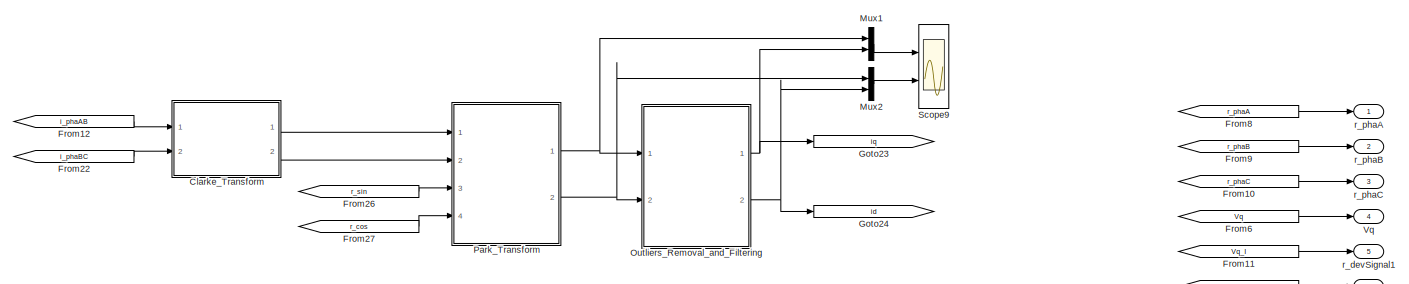
[diagram: BLDC_controller/BLDC_controller/F04_Field_Oriented_Control - part 1/4, top right region]
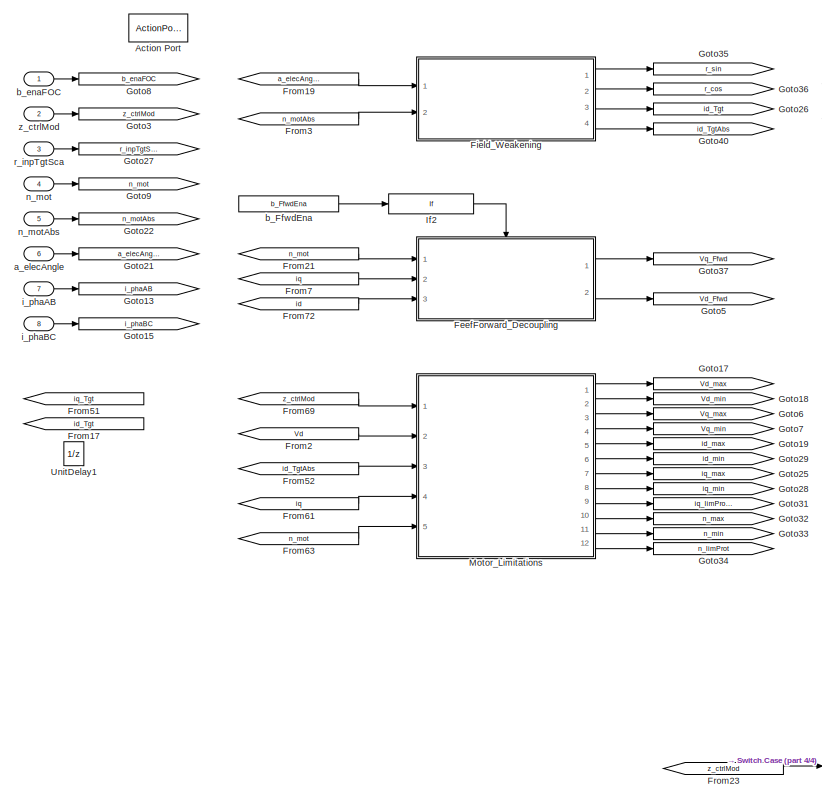
[diagram: BLDC_controller/BLDC_controller/F04_Field_Oriented_Control - part 2/4, middle left region]
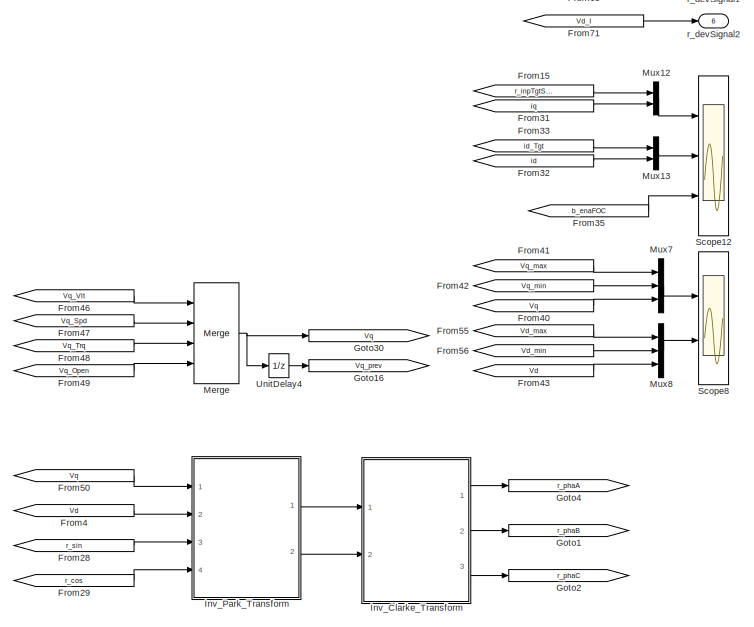
[diagram: BLDC_controller/BLDC_controller/F04_Field_Oriented_Control - part 3/4, middle right region]
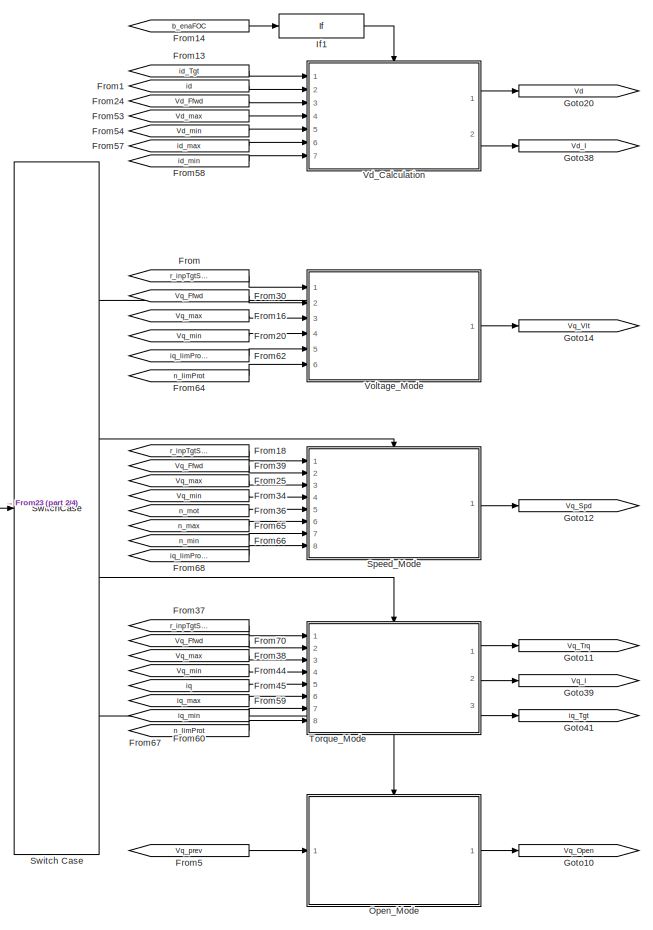
[diagram: BLDC_controller/BLDC_controller/F04_Field_Oriented_Control - part 4/4, center side, full height]
BLOCK [SubSystem] BLDC_controller/BLDC_controller/F04_Field_Oriented_Control
  Ports = [8, 6, 0, 0, 0, 0, 0, 1]
  RequestExecContextInheritance = off
  Variant = off
BLOCK [ActionPort] BLDC_controller/BLDC_controller/F04_Field_Oriented_Control/Action Port
  ActionType = then
  InitializeStates = reset
BLOCK [SubSystem] BLDC_controller/BLDC_controller/F04_Field_Oriented_Control/Clarke_Transform
  Ports = [2, 2]
  RequestExecContextInheritance = off
  Variant = off
BLOCK [SubSystem] BLDC_controller/BLDC_controller/F04_Field_Oriented_Control/Clarke_Transform/Clarke_PhasesAB
  Ports = [2, 2, 0, 0, 0, 0, 0, 1]
  RequestExecContextInheritance = off
  Variant = off
BLOCK [ActionPort] BLDC_controller/BLDC_controller/F04_Field_Oriented_Control/Clarke_Transform/Clarke_PhasesAB/Action Port
  ActionType = then
BLOCK [From] BLDC_controller/BLDC_controller/F04_Field_Oriented_Control/Clarke_Transform/Clarke_PhasesAB/From
  GotoTag = i_phaA
BLOCK [From] BLDC_controller/BLDC_controller/F04_Field_Oriented_Control/Clarke_Transform/Clarke_PhasesAB/From1
  GotoTag = i_phaB
BLOCK [Gain] BLDC_controller/BLDC_controller/F04_Field_Oriented_Control/Clarke_Transform/Clarke_PhasesAB/Gain2
  Gain = 2/sqrt(3)
  ParamDataTypeStr = Inherit: Inherit via internal rule
  RndMeth = Zero
  SaturateOnIntegerOverflow = off
  Tag = struct('comment',struct('text','','placement',1),'logdata',struct('maxnumvals',inf,'plotchannels',[],'loggingmode',3,'channels',1),'output',struct('variable','','description','','name','$S_$B','width',1,'address','','max',NaN,'min',NaN,'class','default','type','CONTINUOUS','scaling','','lsb',1,'offset',0,'arb',0,'freeze',1,'unit','','autoscalingmode',1,'lowerheadroom',1,'upperheadroom',1,'headroom...<+373ch>  <repeated x16 — deduplicated; at blocks: Gain2, Gain4, toNegative, Gain1, Gain3, Gain5, Gain6>
BLOCK [Gain] BLDC_controller/BLDC_controller/F04_Field_Oriented_Control/Clarke_Transform/Clarke_PhasesAB/Gain4
  Gain = 1/sqrt(3)
  ParamDataTypeStr = Inherit: Inherit via internal rule
  RndMeth = Zero
  SaturateOnIntegerOverflow = off
BLOCK [Goto] BLDC_controller/BLDC_controller/F04_Field_Oriented_Control/Clarke_Transform/Clarke_PhasesAB/Goto13
  GotoTag = i_phaA
BLOCK [Goto] BLDC_controller/BLDC_controller/F04_Field_Oriented_Control/Clarke_Transform/Clarke_PhasesAB/Goto15
  GotoTag = i_phaB
BLOCK [SignalConversion] BLDC_controller/BLDC_controller/F04_Field_Oriented_Control/Clarke_Transform/Clarke_PhasesAB/Signal Conversion2
  OverrideOpt = off
BLOCK [Sum] BLDC_controller/BLDC_controller/F04_Field_Oriented_Control/Clarke_Transform/Clarke_PhasesAB/Sum1
  InputSameDT = off
  OutDataTypeStr = fixdt(1,16,4)
  Ports = [2, 1]
  RndMeth = Simplest
BLOCK [Outport] BLDC_controller/BLDC_controller/F04_Field_Oriented_Control/Clarke_Transform/Clarke_PhasesAB/i_alphaAB
  IconDisplay = Port number
BLOCK [Outport] BLDC_controller/BLDC_controller/F04_Field_Oriented_Control/Clarke_Transform/Clarke_PhasesAB/i_betaAB
  IconDisplay = Port number
  Port = 2
BLOCK [Inport] BLDC_controller/BLDC_controller/F04_Field_Oriented_Control/Clarke_Transform/Clarke_PhasesAB/i_phaA
  IconDisplay = Port number
BLOCK [Inport] BLDC_controller/BLDC_controller/F04_Field_Oriented_Control/Clarke_Transform/Clarke_PhasesAB/i_phaB
  IconDisplay = Port number
  Port = 2
BLOCK [SubSystem] BLDC_controller/BLDC_controller/F04_Field_Oriented_Control/Clarke_Transform/Clarke_PhasesBC
  Ports = [2, 2, 0, 0, 0, 0, 0, 1]
  RequestExecContextInheritance = off
  Variant = off
BLOCK [ActionPort] BLDC_controller/BLDC_controller/F04_Field_Oriented_Control/Clarke_Transform/Clarke_PhasesBC/Action Port
  ActionType = else
BLOCK [From] BLDC_controller/BLDC_controller/F04_Field_Oriented_Control/Clarke_Transform/Clarke_PhasesBC/From2
  GotoTag = i_phaB
BLOCK [From] BLDC_controller/BLDC_controller/F04_Field_Oriented_Control/Clarke_Transform/Clarke_PhasesBC/From3
  GotoTag = i_phaC
BLOCK [From] BLDC_controller/BLDC_controller/F04_Field_Oriented_Control/Clarke_Transform/Clarke_PhasesBC/From4
  GotoTag = i_phaB
BLOCK [From] BLDC_controller/BLDC_controller/F04_Field_Oriented_Control/Clarke_Transform/Clarke_PhasesBC/From5
  GotoTag = i_phaC
BLOCK [Gain] BLDC_controller/BLDC_controller/F04_Field_Oriented_Control/Clarke_Transform/Clarke_PhasesBC/Gain2
  Gain = 1/sqrt(3)
  ParamDataTypeStr = Inherit: Inherit via internal rule
  RndMeth = Zero
  SaturateOnIntegerOverflow = off
BLOCK [Goto] BLDC_controller/BLDC_controller/F04_Field_Oriented_Control/Clarke_Transform/Clarke_PhasesBC/Goto13
  GotoTag = i_phaB
BLOCK [Goto] BLDC_controller/BLDC_controller/F04_Field_Oriented_Control/Clarke_Transform/Clarke_PhasesBC/Goto15
  GotoTag = i_phaC
BLOCK [Sum] BLDC_controller/BLDC_controller/F04_Field_Oriented_Control/Clarke_Transform/Clarke_PhasesBC/Sum1
  InputSameDT = off
  Inputs = --
  OutDataTypeStr = fixdt(1,16,4)
  Ports = [2, 1]
  RndMeth = Simplest
BLOCK [Sum] BLDC_controller/BLDC_controller/F04_Field_Oriented_Control/Clarke_Transform/Clarke_PhasesBC/Sum3
  InputSameDT = off
  Inputs = +-
  OutDataTypeStr = fixdt(1,16,4)
  Ports = [2, 1]
  RndMeth = Simplest
BLOCK [Outport] BLDC_controller/BLDC_controller/F04_Field_Oriented_Control/Clarke_Transform/Clarke_PhasesBC/i_alphaBC
  IconDisplay = Port number
BLOCK [Outport] BLDC_controller/BLDC_controller/F04_Field_Oriented_Control/Clarke_Transform/Clarke_PhasesBC/i_betaBC
  IconDisplay = Port number
  Port = 2
BLOCK [Inport] BLDC_controller/BLDC_controller/F04_Field_Oriented_Control/Clarke_Transform/Clarke_PhasesBC/i_phaB
  IconDisplay = Port number
BLOCK [Inport] BLDC_controller/BLDC_controller/F04_Field_Oriented_Control/Clarke_Transform/Clarke_PhasesBC/i_phaC
  IconDisplay = Port number
  Port = 2
BLOCK [From] BLDC_controller/BLDC_controller/F04_Field_Oriented_Control/Clarke_Transform/From
  GotoTag = i_alphaAB
BLOCK [From] BLDC_controller/BLDC_controller/F04_Field_Oriented_Control/Clarke_Transform/From1
  GotoTag = i_alphaBC
BLOCK [From] BLDC_controller/BLDC_controller/F04_Field_Oriented_Control/Clarke_Transform/From2
  GotoTag = i_betaAB
BLOCK [From] BLDC_controller/BLDC_controller/F04_Field_Oriented_Control/Clarke_Transform/From3
  GotoTag = i_betaBC
BLOCK [From] BLDC_controller/BLDC_controller/F04_Field_Oriented_Control/Clarke_Transform/From4
  GotoTag = i_alpha
BLOCK [From] BLDC_controller/BLDC_controller/F04_Field_Oriented_Control/Clarke_Transform/From5
  GotoTag = i_beta
BLOCK [From] BLDC_controller/BLDC_controller/F04_Field_Oriented_Control/Clarke_Transform/From6
  GotoTag = i_phaAB
BLOCK [From] BLDC_controller/BLDC_controller/F04_Field_Oriented_Control/Clarke_Transform/From7
  GotoTag = i_phaAB
BLOCK [From] BLDC_controller/BLDC_controller/F04_Field_Oriented_Control/Clarke_Transform/From8
  GotoTag = i_phaBC
BLOCK [From] BLDC_controller/BLDC_controller/F04_Field_Oriented_Control/Clarke_Transform/From9
  GotoTag = i_phaBC
BLOCK [Goto] BLDC_controller/BLDC_controller/F04_Field_Oriented_Control/Clarke_Transform/Goto
  GotoTag = i_alpha
BLOCK [Goto] BLDC_controller/BLDC_controller/F04_Field_Oriented_Control/Clarke_Transform/Goto1
  GotoTag = i_alphaAB
BLOCK [Goto] BLDC_controller/BLDC_controller/F04_Field_Oriented_Control/Clarke_Transform/Goto13
  GotoTag = i_phaAB
BLOCK [Goto] BLDC_controller/BLDC_controller/F04_Field_Oriented_Control/Clarke_Transform/Goto15
  GotoTag = i_phaBC
BLOCK [Goto] BLDC_controller/BLDC_controller/F04_Field_Oriented_Control/Clarke_Transform/Goto2
  GotoTag = i_alphaBC
BLOCK [Goto] BLDC_controller/BLDC_controller/F04_Field_Oriented_Control/Clarke_Transform/Goto3
  GotoTag = i_betaAB
BLOCK [Goto] BLDC_controller/BLDC_controller/F04_Field_Oriented_Control/Clarke_Transform/Goto4
  GotoTag = i_betaBC
BLOCK [Goto] BLDC_controller/BLDC_controller/F04_Field_Oriented_Control/Clarke_Transform/Goto6
  GotoTag = i_beta
BLOCK [If] BLDC_controller/BLDC_controller/F04_Field_Oriented_Control/Clarke_Transform/If1
  IfExpression = u1 ~= 0
  Ports = [1, 2]
BLOCK [Merge] BLDC_controller/BLDC_controller/F04_Field_Oriented_Control/Clarke_Transform/Merge
  Ports = [2, 1]
BLOCK [Merge] BLDC_controller/BLDC_controller/F04_Field_Oriented_Control/Clarke_Transform/Merge1
  Ports = [2, 1]
BLOCK [Constant] BLDC_controller/BLDC_controller/F04_Field_Oriented_Control/Clarke_Transform/b_selPhaABCurrMeas
  OutDataTypeStr = boolean
  Value = b_selPhaABCurrMeas
BLOCK [Outport] BLDC_controller/BLDC_controller/F04_Field_Oriented_Control/Clarke_Transform/i_alpha
  IconDisplay = Port number
BLOCK [Outport] BLDC_controller/BLDC_controller/F04_Field_Oriented_Control/Clarke_Transform/i_beta
  IconDisplay = Port number
  Port = 2
BLOCK [Inport] BLDC_controller/BLDC_controller/F04_Field_Oriented_Control/Clarke_Transform/i_phaAB
  IconDisplay = Port number
BLOCK [Inport] BLDC_controller/BLDC_controller/F04_Field_Oriented_Control/Clarke_Transform/i_phaBC
  IconDisplay = Port number
  Port = 2
BLOCK [SubSystem] BLDC_controller/BLDC_controller/F04_Field_Oriented_Control/FeefForward_Decoupling
  Ports = [3, 2, 0, 0, 0, 0, 0, 1]
  RequestExecContextInheritance = off
  Variant = off
BLOCK [ActionPort] BLDC_controller/BLDC_controller/F04_Field_Oriented_Control/FeefForward_Decoupling/Action Port
  ActionType = then
  InitializeStates = reset
BLOCK [Product] BLDC_controller/BLDC_controller/F04_Field_Oriented_Control/FeefForward_Decoupling/Divide1
  InputSameDT = off
  Inputs = **
  Ports = [2, 1]
  RndMeth = Simplest
BLOCK [Product] BLDC_controller/BLDC_controller/F04_Field_Oriented_Control/FeefForward_Decoupling/Divide2
  InputSameDT = off
  Inputs = **
  OutDataTypeStr = fixdt(1,16,8)
  Ports = [2, 1]
  RndMeth = Simplest
  SaturateOnIntegerOverflow = off
BLOCK [Product] BLDC_controller/BLDC_controller/F04_Field_Oriented_Control/FeefForward_Decoupling/Divide3
  InputSameDT = off
  Inputs = **
  Ports = [2, 1]
  RndMeth = Simplest
BLOCK [Product] BLDC_controller/BLDC_controller/F04_Field_Oriented_Control/FeefForward_Decoupling/Divide4
  InputSameDT = off
  Inputs = **
  OutDataTypeStr = fixdt(1,16,8)
  Ports = [2, 1]
  RndMeth = Simplest
  SaturateOnIntegerOverflow = off
BLOCK [From] BLDC_controller/BLDC_controller/F04_Field_Oriented_Control/FeefForward_Decoupling/From
  GotoTag = n_mot
BLOCK [From] BLDC_controller/BLDC_controller/F04_Field_Oriented_Control/FeefForward_Decoupling/From1
  GotoTag = iq_Tgt
BLOCK [From] BLDC_controller/BLDC_controller/F04_Field_Oriented_Control/FeefForward_Decoupling/From2
  GotoTag = id_Tgt
BLOCK [From] BLDC_controller/BLDC_controller/F04_Field_Oriented_Control/FeefForward_Decoupling/From3
  GotoTag = n_mot
BLOCK [Goto] BLDC_controller/BLDC_controller/F04_Field_Oriented_Control/FeefForward_Decoupling/Goto1
  GotoTag = id_Tgt
BLOCK [Goto] BLDC_controller/BLDC_controller/F04_Field_Oriented_Control/FeefForward_Decoupling/Goto3
  GotoTag = iq_Tgt
BLOCK [Goto] BLDC_controller/BLDC_controller/F04_Field_Oriented_Control/FeefForward_Decoupling/Goto9
  GotoTag = n_mot
BLOCK [Sum] BLDC_controller/BLDC_controller/F04_Field_Oriented_Control/FeefForward_Decoupling/Sum6
  InputSameDT = off
  OutDataTypeStr = fixdt(1,16,7)
  Ports = [2, 1]
  RndMeth = Simplest
  SaturateOnIntegerOverflow = off
BLOCK [Outport] BLDC_controller/BLDC_controller/F04_Field_Oriented_Control/FeefForward_Decoupling/Vd_Ffwd
  IconDisplay = Port number
  InitialOutput = 0
  OutputWhenDisabled = reset
  Port = 2
BLOCK [Outport] BLDC_controller/BLDC_controller/F04_Field_Oriented_Control/FeefForward_Decoupling/Vq_Ffwd
  IconDisplay = Port number
  InitialOutput = 0
  OutputWhenDisabled = reset
BLOCK [Inport] BLDC_controller/BLDC_controller/F04_Field_Oriented_Control/FeefForward_Decoupling/id_Tgt
  IconDisplay = Port number
  Port = 3
BLOCK [Inport] BLDC_controller/BLDC_controller/F04_Field_Oriented_Control/FeefForward_Decoupling/iq_Tgt
  IconDisplay = Port number
  Port = 2
BLOCK [Constant] BLDC_controller/BLDC_controller/F04_Field_Oriented_Control/FeefForward_Decoupling/mot_Ld
  OutDataTypeStr = fixdt(0,16,16)
  Value = mot_Ld
BLOCK [Constant] BLDC_controller/BLDC_controller/F04_Field_Oriented_Control/FeefForward_Decoupling/mot_Lq
  OutDataTypeStr = fixdt(0,16,16)
  Value = mot_Lq
BLOCK [Constant] BLDC_controller/BLDC_controller/F04_Field_Oriented_Control/FeefForward_Decoupling/mot_lambda
  OutDataTypeStr = fixdt(0,16,9)
  Value = mot_lambda
BLOCK [Inport] BLDC_controller/BLDC_controller/F04_Field_Oriented_Control/FeefForward_Decoupling/n_mot
  IconDisplay = Port number
BLOCK [Gain] BLDC_controller/BLDC_controller/F04_Field_Oriented_Control/FeefForward_Decoupling/toNegative
  Gain = -1
  RndMeth = Zero
  SaturateOnIntegerOverflow = off
BLOCK [SubSystem] BLDC_controller/BLDC_controller/F04_Field_Oriented_Control/Field_Weakening
  Ports = [2, 4]
  RequestExecContextInheritance = off
  Variant = off
BLOCK [DataTypeConversion] BLDC_controller/BLDC_controller/F04_Field_Oriented_Control/Field_Weakening/Data Type Conversion
  OutDataTypeStr = fixdt(1,16,4)
  RndMeth = Floor
  SaturateOnIntegerOverflow = off
BLOCK [Switch] BLDC_controller/BLDC_controller/F04_Field_Oriented_Control/Field_Weakening/Switch1
  Criteria = u2 ~= 0
  InputSameDT = off
  OutDataTypeStr = Inherit: Inherit via back propagation
  RndMeth = Zero
  SaturateOnIntegerOverflow = off
BLOCK [Inport] BLDC_controller/BLDC_controller/F04_Field_Oriented_Control/Field_Weakening/a_elecAngle
  IconDisplay = Port number
BLOCK [PreLookup] BLDC_controller/BLDC_controller/F04_Field_Oriented_Control/Field_Weakening/a_elecAngle_XA
  BeginIndexSearchUsingPreviousIndexResult = on
  BreakpointsData = a_elecAngle_XA
  FractionDataTypeStr = fixdt(0,16,14)
  IndexDataTypeStr = uint8
  IndexSearchMethod = Evenly spaced points
  InputPortMap = u0
  OutputSelection = Index only
  Ports = [1, 1]
  RndMeth = Simplest
BLOCK [Constant] BLDC_controller/BLDC_controller/F04_Field_Oriented_Control/Field_Weakening/a_elecPeriod1
  OutDataTypeStr = Inherit: Inherit via back propagation
  Value = 0
BLOCK [Constant] BLDC_controller/BLDC_controller/F04_Field_Oriented_Control/Field_Weakening/a_elecPeriod3
  OutDataTypeStr = uint8
  Value = 0
BLOCK [Constant] BLDC_controller/BLDC_controller/F04_Field_Oriented_Control/Field_Weakening/b_fieldWeakEna
  OutDataTypeStr = boolean
  Value = b_fieldWeakEna
BLOCK [Outport] BLDC_controller/BLDC_controller/F04_Field_Oriented_Control/Field_Weakening/id_Tgt
  IconDisplay = Port number
  Port = 3
BLOCK [Outport] BLDC_controller/BLDC_controller/F04_Field_Oriented_Control/Field_Weakening/id_TgtAbs
  IconDisplay = Port number
  Port = 4
BLOCK [Interpolation_n-D] BLDC_controller/BLDC_controller/F04_Field_Oriented_Control/Field_Weakening/id_fieldWeak_M1
  ExtrapMethod = Clip
  InputPortMap = u0,u1
  InternalRulePriority = Speed
  NumberOfTableDimensions = 1
  OutDataTypeStr = fixdt(0,10,0)
  Ports = [2, 1]
  RndMeth = Simplest
  Table = id_fieldWeak_M1
BLOCK [PreLookup] BLDC_controller/BLDC_controller/F04_Field_Oriented_Control/Field_Weakening/n_fieldWeak_XA
  BeginIndexSearchUsingPreviousIndexResult = on
  BreakpointsData = n_fieldWeak_XA
  FractionDataTypeStr = fixdt(0,8,6)
  IndexDataTypeStr = uint8
  IndexSearchMethod = Evenly spaced points
  InputPortMap = u0
  Ports = [1, 2]
  RndMeth = Simplest
BLOCK [Inport] BLDC_controller/BLDC_controller/F04_Field_Oriented_Control/Field_Weakening/n_motAbs
  IconDisplay = Port number
  Port = 2
BLOCK [Outport] BLDC_controller/BLDC_controller/F04_Field_Oriented_Control/Field_Weakening/r_cos
  IconDisplay = Port number
  Port = 2
BLOCK [Interpolation_n-D] BLDC_controller/BLDC_controller/F04_Field_Oriented_Control/Field_Weakening/r_cos_M1
  ExtrapMethod = Clip
  InputPortMap = u0,u1
  InternalRulePriority = Speed
  InterpMethod = Flat
  NumberOfTableDimensions = 1
  OutDataTypeStr = fixdt(1,16,14)
  Ports = [2, 1]
  RndMeth = Simplest
  Table = r_cos_M1
  ValidIndexMayReachLast = on
BLOCK [Outport] BLDC_controller/BLDC_controller/F04_Field_Oriented_Control/Field_Weakening/r_sin
  IconDisplay = Port number
BLOCK [Interpolation_n-D] BLDC_controller/BLDC_controller/F04_Field_Oriented_Control/Field_Weakening/r_sin_M1
  ExtrapMethod = Clip
  InputPortMap = u0,u1
  InternalRulePriority = Speed
  InterpMethod = Flat
  NumberOfTableDimensions = 1
  OutDataTypeStr = fixdt(1,16,14)
  Ports = [2, 1]
  RndMeth = Simplest
  Table = r_sin_M1
  ValidIndexMayReachLast = on
BLOCK [Gain] BLDC_controller/BLDC_controller/F04_Field_Oriented_Control/Field_Weakening/toNegative
  Gain = -1
  OutDataTypeStr = fixdt(1,16,4)
  RndMeth = Zero
  SaturateOnIntegerOverflow = off
BLOCK [From] BLDC_controller/BLDC_controller/F04_Field_Oriented_Control/From
  GotoTag = r_inpTgtSca
BLOCK [From] BLDC_controller/BLDC_controller/F04_Field_Oriented_Control/From1
  GotoTag = id
BLOCK [From] BLDC_controller/BLDC_controller/F04_Field_Oriented_Control/From10
  GotoTag = r_phaC
BLOCK [From] BLDC_controller/BLDC_controller/F04_Field_Oriented_Control/From11
  GotoTag = Vq_I
BLOCK [From] BLDC_controller/BLDC_controller/F04_Field_Oriented_Control/From12
  GotoTag = i_phaAB
BLOCK [From] BLDC_controller/BLDC_controller/F04_Field_Oriented_Control/From13
  GotoTag = id_Tgt
BLOCK [From] BLDC_controller/BLDC_controller/F04_Field_Oriented_Control/From14
  GotoTag = b_enaFOC
BLOCK [From] BLDC_controller/BLDC_controller/F04_Field_Oriented_Control/From15
  GotoTag = r_inpTgtSca
BLOCK [From] BLDC_controller/BLDC_controller/F04_Field_Oriented_Control/From16
  GotoTag = Vq_max
BLOCK [From] BLDC_controller/BLDC_controller/F04_Field_Oriented_Control/From17
  Commented = on
  GotoTag = id_Tgt
BLOCK [From] BLDC_controller/BLDC_controller/F04_Field_Oriented_Control/From18
  GotoTag = r_inpTgtSca
BLOCK [From] BLDC_controller/BLDC_controller/F04_Field_Oriented_Control/From19
  GotoTag = a_elecAngle
BLOCK [From] BLDC_controller/BLDC_controller/F04_Field_Oriented_Control/From2
  GotoTag = Vd
BLOCK [From] BLDC_controller/BLDC_controller/F04_Field_Oriented_Control/From20
  GotoTag = Vq_min
BLOCK [From] BLDC_controller/BLDC_controller/F04_Field_Oriented_Control/From21
  GotoTag = n_mot
BLOCK [From] BLDC_controller/BLDC_controller/F04_Field_Oriented_Control/From22
  GotoTag = i_phaBC
BLOCK [From] BLDC_controller/BLDC_controller/F04_Field_Oriented_Control/From23
  GotoTag = z_ctrlMod
BLOCK [From] BLDC_controller/BLDC_controller/F04_Field_Oriented_Control/From24
  GotoTag = Vd_Ffwd
BLOCK [From] BLDC_controller/BLDC_controller/F04_Field_Oriented_Control/From25
  GotoTag = Vq_max
BLOCK [From] BLDC_controller/BLDC_controller/F04_Field_Oriented_Control/From26
  GotoTag = r_sin
BLOCK [From] BLDC_controller/BLDC_controller/F04_Field_Oriented_Control/From27
  GotoTag = r_cos
BLOCK [From] BLDC_controller/BLDC_controller/F04_Field_Oriented_Control/From28
  GotoTag = r_sin
BLOCK [From] BLDC_controller/BLDC_controller/F04_Field_Oriented_Control/From29
  GotoTag = r_cos
BLOCK [From] BLDC_controller/BLDC_controller/F04_Field_Oriented_Control/From3
  GotoTag = n_motAbs
BLOCK [From] BLDC_controller/BLDC_controller/F04_Field_Oriented_Control/From30
  GotoTag = Vq_Ffwd
BLOCK [From] BLDC_controller/BLDC_controller/F04_Field_Oriented_Control/From31
  GotoTag = iq
BLOCK [From] BLDC_controller/BLDC_controller/F04_Field_Oriented_Control/From32
  GotoTag = id
BLOCK [From] BLDC_controller/BLDC_controller/F04_Field_Oriented_Control/From33
  GotoTag = id_Tgt
BLOCK [From] BLDC_controller/BLDC_controller/F04_Field_Oriented_Control/From34
  GotoTag = Vq_min
BLOCK [From] BLDC_controller/BLDC_controller/F04_Field_Oriented_Control/From35
  GotoTag = b_enaFOC
BLOCK [From] BLDC_controller/BLDC_controller/F04_Field_Oriented_Control/From36
  GotoTag = n_mot
BLOCK [From] BLDC_controller/BLDC_controller/F04_Field_Oriented_Control/From37
  GotoTag = r_inpTgtSca
BLOCK [From] BLDC_controller/BLDC_controller/F04_Field_Oriented_Control/From38
  GotoTag = Vq_max
BLOCK [From] BLDC_controller/BLDC_controller/F04_Field_Oriented_Control/From39
  GotoTag = Vq_Ffwd
BLOCK [From] BLDC_controller/BLDC_controller/F04_Field_Oriented_Control/From4
  GotoTag = Vd
BLOCK [From] BLDC_controller/BLDC_controller/F04_Field_Oriented_Control/From40
  GotoTag = Vq
BLOCK [From] BLDC_controller/BLDC_controller/F04_Field_Oriented_Control/From41
  GotoTag = Vq_max
BLOCK [From] BLDC_controller/BLDC_controller/F04_Field_Oriented_Control/From42
  GotoTag = Vq_min
BLOCK [From] BLDC_controller/BLDC_controller/F04_Field_Oriented_Control/From43
  GotoTag = Vd
BLOCK [From] BLDC_controller/BLDC_controller/F04_Field_Oriented_Control/From44
  GotoTag = Vq_min
BLOCK [From] BLDC_controller/BLDC_controller/F04_Field_Oriented_Control/From45
  GotoTag = iq
BLOCK [From] BLDC_controller/BLDC_controller/F04_Field_Oriented_Control/From46
  GotoTag = Vq_Vlt
BLOCK [From] BLDC_controller/BLDC_controller/F04_Field_Oriented_Control/From47
  GotoTag = Vq_Spd
BLOCK [From] BLDC_controller/BLDC_controller/F04_Field_Oriented_Control/From48
  GotoTag = Vq_Trq
BLOCK [From] BLDC_controller/BLDC_controller/F04_Field_Oriented_Control/From49
  GotoTag = Vq_Open
BLOCK [From] BLDC_controller/BLDC_controller/F04_Field_Oriented_Control/From5
  GotoTag = Vq_prev
BLOCK [From] BLDC_controller/BLDC_controller/F04_Field_Oriented_Control/From50
  GotoTag = Vq
BLOCK [From] BLDC_controller/BLDC_controller/F04_Field_Oriented_Control/From51
  Commented = on
  GotoTag = iq_Tgt
BLOCK [From] BLDC_controller/BLDC_controller/F04_Field_Oriented_Control/From52
  GotoTag = id_TgtAbs
BLOCK [From] BLDC_controller/BLDC_controller/F04_Field_Oriented_Control/From53
  GotoTag = Vd_max
BLOCK [From] BLDC_controller/BLDC_controller/F04_Field_Oriented_Control/From54
  GotoTag = Vd_min
BLOCK [From] BLDC_controller/BLDC_controller/F04_Field_Oriented_Control/From55
  GotoTag = Vd_max
BLOCK [From] BLDC_controller/BLDC_controller/F04_Field_Oriented_Control/From56
  GotoTag = Vd_min
BLOCK [From] BLDC_controller/BLDC_controller/F04_Field_Oriented_Control/From57
  GotoTag = id_max
BLOCK [From] BLDC_controller/BLDC_controller/F04_Field_Oriented_Control/From58
  GotoTag = id_min
BLOCK [From] BLDC_controller/BLDC_controller/F04_Field_Oriented_Control/From59
  GotoTag = iq_max
BLOCK [From] BLDC_controller/BLDC_controller/F04_Field_Oriented_Control/From6
  GotoTag = Vq
BLOCK [From] BLDC_controller/BLDC_controller/F04_Field_Oriented_Control/From60
  GotoTag = iq_min
BLOCK [From] BLDC_controller/BLDC_controller/F04_Field_Oriented_Control/From61
  GotoTag = iq
BLOCK [From] BLDC_controller/BLDC_controller/F04_Field_Oriented_Control/From62
  GotoTag = iq_limPrott
BLOCK [From] BLDC_controller/BLDC_controller/F04_Field_Oriented_Control/From63
  GotoTag = n_mot
BLOCK [From] BLDC_controller/BLDC_controller/F04_Field_Oriented_Control/From64
  GotoTag = n_limProt
BLOCK [From] BLDC_controller/BLDC_controller/F04_Field_Oriented_Control/From65
  GotoTag = n_max
BLOCK [From] BLDC_controller/BLDC_controller/F04_Field_Oriented_Control/From66
  GotoTag = n_min
BLOCK [From] BLDC_controller/BLDC_controller/F04_Field_Oriented_Control/From67
  GotoTag = n_limProt
BLOCK [From] BLDC_controller/BLDC_controller/F04_Field_Oriented_Control/From68
  GotoTag = iq_limPrott
BLOCK [From] BLDC_controller/BLDC_controller/F04_Field_Oriented_Control/From69
  GotoTag = z_ctrlMod
BLOCK [From] BLDC_controller/BLDC_controller/F04_Field_Oriented_Control/From7
  GotoTag = iq
BLOCK [From] BLDC_controller/BLDC_controller/F04_Field_Oriented_Control/From70
  GotoTag = Vq_Ffwd
BLOCK [From] BLDC_controller/BLDC_controller/F04_Field_Oriented_Control/From71
  GotoTag = Vd_I
BLOCK [From] BLDC_controller/BLDC_controller/F04_Field_Oriented_Control/From72
  GotoTag = id
BLOCK [From] BLDC_controller/BLDC_controller/F04_Field_Oriented_Control/From8
  GotoTag = r_phaA
BLOCK [From] BLDC_controller/BLDC_controller/F04_Field_Oriented_Control/From9
  GotoTag = r_phaB
BLOCK [Goto] BLDC_controller/BLDC_controller/F04_Field_Oriented_Control/Goto1
  GotoTag = r_phaB
BLOCK [Goto] BLDC_controller/BLDC_controller/F04_Field_Oriented_Control/Goto10
  GotoTag = Vq_Open
BLOCK [Goto] BLDC_controller/BLDC_controller/F04_Field_Oriented_Control/Goto11
  GotoTag = Vq_Trq
BLOCK [Goto] BLDC_controller/BLDC_controller/F04_Field_Oriented_Control/Goto12
  GotoTag = Vq_Spd
BLOCK [Goto] BLDC_controller/BLDC_controller/F04_Field_Oriented_Control/Goto13
  GotoTag = i_phaAB
BLOCK [Goto] BLDC_controller/BLDC_controller/F04_Field_Oriented_Control/Goto14
  GotoTag = Vq_Vlt
BLOCK [Goto] BLDC_controller/BLDC_controller/F04_Field_Oriented_Control/Goto15
  GotoTag = i_phaBC
BLOCK [Goto] BLDC_controller/BLDC_controller/F04_Field_Oriented_Control/Goto16
  GotoTag = Vq_prev
BLOCK [Goto] BLDC_controller/BLDC_controller/F04_Field_Oriented_Control/Goto17
  GotoTag = Vd_max
BLOCK [Goto] BLDC_controller/BLDC_controller/F04_Field_Oriented_Control/Goto18
  GotoTag = Vd_min
BLOCK [Goto] BLDC_controller/BLDC_controller/F04_Field_Oriented_Control/Goto19
  GotoTag = id_max
BLOCK [Goto] BLDC_controller/BLDC_controller/F04_Field_Oriented_Control/Goto2
  GotoTag = r_phaC
BLOCK [Goto] BLDC_controller/BLDC_controller/F04_Field_Oriented_Control/Goto20
  GotoTag = Vd
BLOCK [Goto] BLDC_controller/BLDC_controller/F04_Field_Oriented_Control/Goto21
  GotoTag = a_elecAngle
BLOCK [Goto] BLDC_controller/BLDC_controller/F04_Field_Oriented_Control/Goto22
  GotoTag = n_motAbs
BLOCK [Goto] BLDC_controller/BLDC_controller/F04_Field_Oriented_Control/Goto23
  GotoTag = iq
BLOCK [Goto] BLDC_controller/BLDC_controller/F04_Field_Oriented_Control/Goto24
  GotoTag = id
BLOCK [Goto] BLDC_controller/BLDC_controller/F04_Field_Oriented_Control/Goto25
  GotoTag = iq_max
BLOCK [Goto] BLDC_controller/BLDC_controller/F04_Field_Oriented_Control/Goto26
  GotoTag = id_Tgt
BLOCK [Goto] BLDC_controller/BLDC_controller/F04_Field_Oriented_Control/Goto27
  GotoTag = r_inpTgtSca
BLOCK [Goto] BLDC_controller/BLDC_controller/F04_Field_Oriented_Control/Goto28
  GotoTag = iq_min
BLOCK [Goto] BLDC_controller/BLDC_controller/F04_Field_Oriented_Control/Goto29
  GotoTag = id_min
BLOCK [Goto] BLDC_controller/BLDC_controller/F04_Field_Oriented_Control/Goto3
  GotoTag = z_ctrlMod
BLOCK [Goto] BLDC_controller/BLDC_controller/F04_Field_Oriented_Control/Goto30
  GotoTag = Vq
BLOCK [Goto] BLDC_controller/BLDC_controller/F04_Field_Oriented_Control/Goto31
  GotoTag = iq_limPrott
BLOCK [Goto] BLDC_controller/BLDC_controller/F04_Field_Oriented_Control/Goto32
  GotoTag = n_max
BLOCK [Goto] BLDC_controller/BLDC_controller/F04_Field_Oriented_Control/Goto33
  GotoTag = n_min
BLOCK [Goto] BLDC_controller/BLDC_controller/F04_Field_Oriented_Control/Goto34
  GotoTag = n_limProt
BLOCK [Goto] BLDC_controller/BLDC_controller/F04_Field_Oriented_Control/Goto35
  GotoTag = r_sin
BLOCK [Goto] BLDC_controller/BLDC_controller/F04_Field_Oriented_Control/Goto36
  GotoTag = r_cos
BLOCK [Goto] BLDC_controller/BLDC_controller/F04_Field_Oriented_Control/Goto37
  GotoTag = Vq_Ffwd
BLOCK [Goto] BLDC_controller/BLDC_controller/F04_Field_Oriented_Control/Goto38
  GotoTag = Vd_I
BLOCK [Goto] BLDC_controller/BLDC_controller/F04_Field_Oriented_Control/Goto39
  GotoTag = Vq_I
BLOCK [Goto] BLDC_controller/BLDC_controller/F04_Field_Oriented_Control/Goto4
  GotoTag = r_phaA
BLOCK [Goto] BLDC_controller/BLDC_controller/F04_Field_Oriented_Control/Goto40
  GotoTag = id_TgtAbs
BLOCK [Goto] BLDC_controller/BLDC_controller/F04_Field_Oriented_Control/Goto41
  GotoTag = iq_Tgt
BLOCK [Goto] BLDC_controller/BLDC_controller/F04_Field_Oriented_Control/Goto5
  GotoTag = Vd_Ffwd
BLOCK [Goto] BLDC_controller/BLDC_controller/F04_Field_Oriented_Control/Goto6
  GotoTag = Vq_max
BLOCK [Goto] BLDC_controller/BLDC_controller/F04_Field_Oriented_Control/Goto7
  GotoTag = Vq_min
BLOCK [Goto] BLDC_controller/BLDC_controller/F04_Field_Oriented_Control/Goto8
  GotoTag = b_enaFOC
BLOCK [Goto] BLDC_controller/BLDC_controller/F04_Field_Oriented_Control/Goto9
  GotoTag = n_mot
BLOCK [If] BLDC_controller/BLDC_controller/F04_Field_Oriented_Control/If1
  IfExpression = u1 ~= 0
  Ports = [1, 1]
  ShowElse = off
BLOCK [If] BLDC_controller/BLDC_controller/F04_Field_Oriented_Control/If2
  IfExpression = u1 ~= 0
  Ports = [1, 1]
  ShowElse = off
BLOCK [SubSystem] BLDC_controller/BLDC_controller/F04_Field_Oriented_Control/Inv_Clarke_Transform
  Ports = [2, 3]
  RequestExecContextInheritance = off
  Variant = off
BLOCK [Sum] BLDC_controller/BLDC_controller/F04_Field_Oriented_Control/Inv_Clarke_Transform/Add
  InputSameDT = off
  OutDataTypeStr = Inherit: Inherit via internal rule
  Ports = [2, 1]
  SaturateOnIntegerOverflow = off
BLOCK [Sum] BLDC_controller/BLDC_controller/F04_Field_Oriented_Control/Inv_Clarke_Transform/Add1
  InputSameDT = off
  Inputs = -+
  Ports = [2, 1]
  SaturateOnIntegerOverflow = off
BLOCK [Demux] BLDC_controller/BLDC_controller/F04_Field_Oriented_Control/Inv_Clarke_Transform/Demux
  DisplayOption = bar
  Outputs = 3
  Ports = [1, 3]
BLOCK [Gain] BLDC_controller/BLDC_controller/F04_Field_Oriented_Control/Inv_Clarke_Transform/Gain1
  Gain = sqrt(3)/2
  OutDataTypeStr = fixdt(1,16,5)
  ParamDataTypeStr = Inherit: Inherit via internal rule
  RndMeth = Zero
  SaturateOnIntegerOverflow = off
BLOCK [Gain] BLDC_controller/BLDC_controller/F04_Field_Oriented_Control/Inv_Clarke_Transform/Gain2
  Gain = 0.5
  ParamDataTypeStr = Inherit: Inherit via internal rule
  SaturateOnIntegerOverflow = off
BLOCK [Gain] BLDC_controller/BLDC_controller/F04_Field_Oriented_Control/Inv_Clarke_Transform/Gain3
  Gain = 1/2
  OutDataTypeStr = fixdt(1,16,5)
  ParamDataTypeStr = Inherit: Inherit via internal rule
  RndMeth = Zero
  SaturateOnIntegerOverflow = off
BLOCK [Gain] BLDC_controller/BLDC_controller/F04_Field_Oriented_Control/Inv_Clarke_Transform/Gain4
  Gain = 2/sqrt(3)
  OutDataTypeStr = fixdt(1,16,0)
  ParamDataTypeStr = Inherit: Inherit via internal rule
  SaturateOnIntegerOverflow = off
BLOCK [MinMax] BLDC_controller/BLDC_controller/F04_Field_Oriented_Control/Inv_Clarke_Transform/MinMax1
  Ports = [1, 1]
  SaturateOnIntegerOverflow = off
BLOCK [MinMax] BLDC_controller/BLDC_controller/F04_Field_Oriented_Control/Inv_Clarke_Transform/MinMax2
  Function = max
  Ports = [1, 1]
  SaturateOnIntegerOverflow = off
BLOCK [Mux] BLDC_controller/BLDC_controller/F04_Field_Oriented_Control/Inv_Clarke_Transform/Mux4
  DisplayOption = bar
  Inputs = 3
  Ports = [3, 1]
BLOCK [Sum] BLDC_controller/BLDC_controller/F04_Field_Oriented_Control/Inv_Clarke_Transform/Sum2
  InputSameDT = off
  Inputs = --
  OutDataTypeStr = fixdt(1,16,4)
  Ports = [2, 1]
  RndMeth = Simplest
  SaturateOnIntegerOverflow = off
BLOCK [Sum] BLDC_controller/BLDC_controller/F04_Field_Oriented_Control/Inv_Clarke_Transform/Sum6
  InputSameDT = off
  Inputs = -+
  OutDataTypeStr = fixdt(1,16,4)
  Ports = [2, 1]
  RndMeth = Simplest
  SaturateOnIntegerOverflow = off
BLOCK [Inport] BLDC_controller/BLDC_controller/F04_Field_Oriented_Control/Inv_Clarke_Transform/V_alpha
  IconDisplay = Port number
BLOCK [Inport] BLDC_controller/BLDC_controller/F04_Field_Oriented_Control/Inv_Clarke_Transform/V_beta
  IconDisplay = Port number
  Port = 2
BLOCK [Outport] BLDC_controller/BLDC_controller/F04_Field_Oriented_Control/Inv_Clarke_Transform/V_phaA
  IconDisplay = Port number
BLOCK [Outport] BLDC_controller/BLDC_controller/F04_Field_Oriented_Control/Inv_Clarke_Transform/V_phaB
  IconDisplay = Port number
  Port = 2
BLOCK [Outport] BLDC_controller/BLDC_controller/F04_Field_Oriented_Control/Inv_Clarke_Transform/V_phaC
  IconDisplay = Port number
  Port = 3
BLOCK [SubSystem] BLDC_controller/BLDC_controller/F04_Field_Oriented_Control/Inv_Park_Transform
  Ports = [4, 2]
  RequestExecContextInheritance = off
  Variant = off
BLOCK [Product] BLDC_controller/BLDC_controller/F04_Field_Oriented_Control/Inv_Park_Transform/Divide1
  InputSameDT = off
  Inputs = **
  OutDataTypeStr = fixdt(1,16,5)
  Ports = [2, 1]
  RndMeth = Simplest
  SaturateOnIntegerOverflow = off
BLOCK [Product] BLDC_controller/BLDC_controller/F04_Field_Oriented_Control/Inv_Park_Transform/Divide2
  InputSameDT = off
  Inputs = **
  OutDataTypeStr = fixdt(1,16,5)
  Ports = [2, 1]
  RndMeth = Simplest
  SaturateOnIntegerOverflow = off
BLOCK [Product] BLDC_controller/BLDC_controller/F04_Field_Oriented_Control/Inv_Park_Transform/Divide3
  InputSameDT = off
  Inputs = **
  OutDataTypeStr = fixdt(1,16,5)
  Ports = [2, 1]
  RndMeth = Simplest
  SaturateOnIntegerOverflow = off
BLOCK [Product] BLDC_controller/BLDC_controller/F04_Field_Oriented_Control/Inv_Park_Transform/Divide4
  InputSameDT = off
  Inputs = **
  OutDataTypeStr = fixdt(1,16,5)
  Ports = [2, 1]
  RndMeth = Simplest
  SaturateOnIntegerOverflow = off
BLOCK [From] BLDC_controller/BLDC_controller/F04_Field_Oriented_Control/Inv_Park_Transform/From
  GotoTag = r_sin
BLOCK [From] BLDC_controller/BLDC_controller/F04_Field_Oriented_Control/Inv_Park_Transform/From1
  GotoTag = r_cos
BLOCK [From] BLDC_controller/BLDC_controller/F04_Field_Oriented_Control/Inv_Park_Transform/From3
  GotoTag = Vq
BLOCK [From] BLDC_controller/BLDC_controller/F04_Field_Oriented_Control/Inv_Park_Transform/From4
  GotoTag = Vd
BLOCK [From] BLDC_controller/BLDC_controller/F04_Field_Oriented_Control/Inv_Park_Transform/From5
  GotoTag = r_cos
BLOCK [From] BLDC_controller/BLDC_controller/F04_Field_Oriented_Control/Inv_Park_Transform/From6
  GotoTag = Vq
BLOCK [From] BLDC_controller/BLDC_controller/F04_Field_Oriented_Control/Inv_Park_Transform/From7
  GotoTag = r_sin
BLOCK [From] BLDC_controller/BLDC_controller/F04_Field_Oriented_Control/Inv_Park_Transform/From8
  GotoTag = Vd
BLOCK [Goto] BLDC_controller/BLDC_controller/F04_Field_Oriented_Control/Inv_Park_Transform/Goto
  GotoTag = Vq
BLOCK [Goto] BLDC_controller/BLDC_controller/F04_Field_Oriented_Control/Inv_Park_Transform/Goto1
  GotoTag = Vd
BLOCK [Goto] BLDC_controller/BLDC_controller/F04_Field_Oriented_Control/Inv_Park_Transform/Goto2
  GotoTag = r_sin
BLOCK [Goto] BLDC_controller/BLDC_controller/F04_Field_Oriented_Control/Inv_Park_Transform/Goto3
  GotoTag = r_cos
BLOCK [Sum] BLDC_controller/BLDC_controller/F04_Field_Oriented_Control/Inv_Park_Transform/Sum1
  InputSameDT = off
  OutDataTypeStr = fixdt(1,16,4)
  Ports = [2, 1]
  RndMeth = Simplest
  SaturateOnIntegerOverflow = off
BLOCK [Sum] BLDC_controller/BLDC_controller/F04_Field_Oriented_Control/Inv_Park_Transform/Sum6
  InputSameDT = off
  Inputs = +-
  OutDataTypeStr = fixdt(1,16,4)
  Ports = [2, 1]
  RndMeth = Simplest
  SaturateOnIntegerOverflow = off
BLOCK [Outport] BLDC_controller/BLDC_controller/F04_Field_Oriented_Control/Inv_Park_Transform/V_alpha
  IconDisplay = Port number
BLOCK [Outport] BLDC_controller/BLDC_controller/F04_Field_Oriented_Control/Inv_Park_Transform/V_beta
  IconDisplay = Port number
  Port = 2
BLOCK [Inport] BLDC_controller/BLDC_controller/F04_Field_Oriented_Control/Inv_Park_Transform/Vd
  IconDisplay = Port number
  Port = 2
BLOCK [Inport] BLDC_controller/BLDC_controller/F04_Field_Oriented_Control/Inv_Park_Transform/Vq
  IconDisplay = Port number
BLOCK [Inport] BLDC_controller/BLDC_controller/F04_Field_Oriented_Control/Inv_Park_Transform/r_cos
  IconDisplay = Port number
  Port = 4
BLOCK [Inport] BLDC_controller/BLDC_controller/F04_Field_Oriented_Control/Inv_Park_Transform/r_sin
  IconDisplay = Port number
  Port = 3
BLOCK [Merge] BLDC_controller/BLDC_controller/F04_Field_Oriented_Control/Merge
  Inputs = 4
  Ports = [4, 1]
BLOCK [SubSystem] BLDC_controller/BLDC_controller/F04_Field_Oriented_Control/Motor_Limitations
  Ports = [5, 12]
  RequestExecContextInheritance = off
  Variant = off
BLOCK [Abs] BLDC_controller/BLDC_controller/F04_Field_Oriented_Control/Motor_Limitations/Abs
  SaturateOnIntegerOverflow = off
BLOCK [Constant] BLDC_controller/BLDC_controller/F04_Field_Oriented_Control/Motor_Limitations/CTRL_COMM
  OutDataTypeStr = Inherit: Inherit via back propagation
  Value = VLT_MODE
BLOCK [Constant] BLDC_controller/BLDC_controller/F04_Field_Oriented_Control/Motor_Limitations/CTRL_COMM1
  OutDataTypeStr = Inherit: Inherit via back propagation
  Value = SPD_MODE
BLOCK [Constant] BLDC_controller/BLDC_controller/F04_Field_Oriented_Control/Motor_Limitations/CTRL_COMM2
  OutDataTypeStr = Inherit: Inherit via back propagation
  Value = VLT_MODE
BLOCK [Constant] BLDC_controller/BLDC_controller/F04_Field_Oriented_Control/Motor_Limitations/CTRL_COMM3
  OutDataTypeStr = Inherit: Inherit via back propagation
  Value = TRQ_MODE
BLOCK [SubSystem] BLDC_controller/BLDC_controller/F04_Field_Oriented_Control/Motor_Limitations/Current_Limit_Protection
  Ports = [3, 1, 0, 0, 0, 0, 0, 1]
  RequestExecContextInheritance = off
  Variant = off
BLOCK [ActionPort] BLDC_controller/BLDC_controller/F04_Field_Oriented_Control/Motor_Limitations/Current_Limit_Protection/Action Port
  ActionType = then
  InitializeStates = reset
BLOCK [Product] BLDC_controller/BLDC_controller/F04_Field_Oriented_Control/Motor_Limitations/Current_Limit_Protection/Divide4
  InputSameDT = off
  Inputs = **
  Ports = [2, 1]
  RndMeth = Simplest
BLOCK [Constant] BLDC_controller/BLDC_controller/F04_Field_Oriented_Control/Motor_Limitations/Current_Limit_Protection/Kp_iqLimProt
  OutDataTypeStr = fixdt(0,16,6)
  Value = iq_KpLimProt
BLOCK [Reference] BLDC_controller/BLDC_controller/F04_Field_Oriented_Control/Motor_Limitations/Current_Limit_Protection/Saturation Dynamic  REF=simulink/Discontinuities/Saturation
Dynamic
  Ports = [3, 1]
  SourceBlock = simulink/Discontinuities/Saturation\nDynamic
  SourceProductBaseCode = SL
  SourceProductName = Simulink
  SourceType = Saturation Dynamic
BLOCK [Sum] BLDC_controller/BLDC_controller/F04_Field_Oriented_Control/Motor_Limitations/Current_Limit_Protection/Sum3
  IconShape = round
  InputSameDT = off
  Inputs = |+-
  OutDataTypeStr = Inherit: Inherit via internal rule
  Ports = [2, 1]
  RndMeth = Simplest
  SaturateOnIntegerOverflow = off
BLOCK [Inport] BLDC_controller/BLDC_controller/F04_Field_Oriented_Control/Motor_Limitations/Current_Limit_Protection/iq
  IconDisplay = Port number
BLOCK [Outport] BLDC_controller/BLDC_controller/F04_Field_Oriented_Control/Motor_Limitations/Current_Limit_Protection/iq_limProt
  IconDisplay = Port number
  InitialOutput = 0
  OutputWhenDisabled = reset
BLOCK [Inport] BLDC_controller/BLDC_controller/F04_Field_Oriented_Control/Motor_Limitations/Current_Limit_Protection/iq_max
  IconDisplay = Port number
  Port = 2
BLOCK [Inport] BLDC_controller/BLDC_controller/F04_Field_Oriented_Control/Motor_Limitations/Current_Limit_Protection/iq_min
  IconDisplay = Port number
  Port = 3
BLOCK [From] BLDC_controller/BLDC_controller/F04_Field_Oriented_Control/Motor_Limitations/From
  GotoTag = Vd
BLOCK [From] BLDC_controller/BLDC_controller/F04_Field_Oriented_Control/Motor_Limitations/From1
  GotoTag = Vq_max
BLOCK [From] BLDC_controller/BLDC_controller/F04_Field_Oriented_Control/Motor_Limitations/From10
  GotoTag = iq_max
BLOCK [From] BLDC_controller/BLDC_controller/F04_Field_Oriented_Control/Motor_Limitations/From11
  GotoTag = iq_min
BLOCK [From] BLDC_controller/BLDC_controller/F04_Field_Oriented_Control/Motor_Limitations/From12
  GotoTag = iq
BLOCK [From] BLDC_controller/BLDC_controller/F04_Field_Oriented_Control/Motor_Limitations/From13
  GotoTag = iq_limProt
BLOCK [From] BLDC_controller/BLDC_controller/F04_Field_Oriented_Control/Motor_Limitations/From14
  GotoTag = n_max
BLOCK [From] BLDC_controller/BLDC_controller/F04_Field_Oriented_Control/Motor_Limitations/From15
  GotoTag = n_min
BLOCK [From] BLDC_controller/BLDC_controller/F04_Field_Oriented_Control/Motor_Limitations/From16
  GotoTag = n_mot
BLOCK [From] BLDC_controller/BLDC_controller/F04_Field_Oriented_Control/Motor_Limitations/From17
  GotoTag = n_min
BLOCK [From] BLDC_controller/BLDC_controller/F04_Field_Oriented_Control/Motor_Limitations/From18
  GotoTag = n_limProt
BLOCK [From] BLDC_controller/BLDC_controller/F04_Field_Oriented_Control/Motor_Limitations/From19
  GotoTag = n_max
BLOCK [From] BLDC_controller/BLDC_controller/F04_Field_Oriented_Control/Motor_Limitations/From2
  GotoTag = Vd_max
BLOCK [From] BLDC_controller/BLDC_controller/F04_Field_Oriented_Control/Motor_Limitations/From3
  GotoTag = Vq_min
BLOCK [From] BLDC_controller/BLDC_controller/F04_Field_Oriented_Control/Motor_Limitations/From36
  GotoTag = z_ctrlMod
BLOCK [From] BLDC_controller/BLDC_controller/F04_Field_Oriented_Control/Motor_Limitations/From37
  GotoTag = z_ctrlMod
BLOCK [From] BLDC_controller/BLDC_controller/F04_Field_Oriented_Control/Motor_Limitations/From4
  GotoTag = Vd_min
BLOCK [From] BLDC_controller/BLDC_controller/F04_Field_Oriented_Control/Motor_Limitations/From5
  GotoTag = id_max
BLOCK [From] BLDC_controller/BLDC_controller/F04_Field_Oriented_Control/Motor_Limitations/From6
  GotoTag = id_TgtAbs
BLOCK [From] BLDC_controller/BLDC_controller/F04_Field_Oriented_Control/Motor_Limitations/From7
  GotoTag = id_min
BLOCK [From] BLDC_controller/BLDC_controller/F04_Field_Oriented_Control/Motor_Limitations/From8
  GotoTag = iq_max
BLOCK [From] BLDC_controller/BLDC_controller/F04_Field_Oriented_Control/Motor_Limitations/From9
  GotoTag = iq_min
BLOCK [Gain] BLDC_controller/BLDC_controller/F04_Field_Oriented_Control/Motor_Limitations/Gain1
  Gain = -1
  RndMeth = Zero
  SaturateOnIntegerOverflow = off
BLOCK [Gain] BLDC_controller/BLDC_controller/F04_Field_Oriented_Control/Motor_Limitations/Gain3
  Gain = -1
  RndMeth = Zero
  SaturateOnIntegerOverflow = off
BLOCK [Gain] BLDC_controller/BLDC_controller/F04_Field_Oriented_Control/Motor_Limitations/Gain4
  Gain = -1
  RndMeth = Zero
  SaturateOnIntegerOverflow = off
BLOCK [Gain] BLDC_controller/BLDC_controller/F04_Field_Oriented_Control/Motor_Limitations/Gain5
  Gain = -1
  RndMeth = Zero
  SaturateOnIntegerOverflow = off
BLOCK [Gain] BLDC_controller/BLDC_controller/F04_Field_Oriented_Control/Motor_Limitations/Gain6
  Gain = -1
  RndMeth = Zero
  SaturateOnIntegerOverflow = off
BLOCK [Goto] BLDC_controller/BLDC_controller/F04_Field_Oriented_Control/Motor_Limitations/Goto
  GotoTag = Vd_max
BLOCK [Goto] BLDC_controller/BLDC_controller/F04_Field_Oriented_Control/Motor_Limitations/Goto1
  GotoTag = Vd
BLOCK [Goto] BLDC_controller/BLDC_controller/F04_Field_Oriented_Control/Motor_Limitations/Goto10
  GotoTag = n_max
BLOCK [Goto] BLDC_controller/BLDC_controller/F04_Field_Oriented_Control/Motor_Limitations/Goto11
  GotoTag = n_min
BLOCK [Goto] BLDC_controller/BLDC_controller/F04_Field_Oriented_Control/Motor_Limitations/Goto12
  GotoTag = n_mot
BLOCK [Goto] BLDC_controller/BLDC_controller/F04_Field_Oriented_Control/Motor_Limitations/Goto13
  GotoTag = n_limProt
BLOCK [Goto] BLDC_controller/BLDC_controller/F04_Field_Oriented_Control/Motor_Limitations/Goto14
  GotoTag = Vq_max
BLOCK [Goto] BLDC_controller/BLDC_controller/F04_Field_Oriented_Control/Motor_Limitations/Goto15
  GotoTag = Vq_min
BLOCK [Goto] BLDC_controller/BLDC_controller/F04_Field_Oriented_Control/Motor_Limitations/Goto16
  GotoTag = z_ctrlMod
BLOCK [Goto] BLDC_controller/BLDC_controller/F04_Field_Oriented_Control/Motor_Limitations/Goto2
  GotoTag = id_TgtAbs
BLOCK [Goto] BLDC_controller/BLDC_controller/F04_Field_Oriented_Control/Motor_Limitations/Goto3
  GotoTag = Vd_min
BLOCK [Goto] BLDC_controller/BLDC_controller/F04_Field_Oriented_Control/Motor_Limitations/Goto4
  GotoTag = id_max
BLOCK [Goto] BLDC_controller/BLDC_controller/F04_Field_Oriented_Control/Motor_Limitations/Goto5
  GotoTag = iq_max
BLOCK [Goto] BLDC_controller/BLDC_controller/F04_Field_Oriented_Control/Motor_Limitations/Goto6
  GotoTag = iq_min
BLOCK [Goto] BLDC_controller/BLDC_controller/F04_Field_Oriented_Control/Motor_Limitations/Goto7
  GotoTag = id_min
BLOCK [Goto] BLDC_controller/BLDC_controller/F04_Field_Oriented_Control/Motor_Limitations/Goto8
  GotoTag = iq
BLOCK [Goto] BLDC_controller/BLDC_controller/F04_Field_Oriented_Control/Motor_Limitations/Goto9
  GotoTag = iq_limProt
BLOCK [If] BLDC_controller/BLDC_controller/F04_Field_Oriented_Control/Motor_Limitations/If1
  IfExpression = u1 ~= 0
  Ports = [1, 1]
  ShowElse = off
BLOCK [If] BLDC_controller/BLDC_controller/F04_Field_Oriented_Control/Motor_Limitations/If2
  IfExpression = u1 ~= 0
  Ports = [1, 1]
  ShowElse = off
BLOCK [Logic] BLDC_controller/BLDC_controller/F04_Field_Oriented_Control/Motor_Limitations/Logical Operator1
  AllPortsSameDT = off
  Operator = OR
  OutDataTypeStr = boolean
  Ports = [2, 1]
BLOCK [Logic] BLDC_controller/BLDC_controller/F04_Field_Oriented_Control/Motor_Limitations/Logical Operator2
  AllPortsSameDT = off
  Operator = OR
  OutDataTypeStr = boolean
  Ports = [2, 1]
BLOCK [MinMax] BLDC_controller/BLDC_controller/F04_Field_Oriented_Control/Motor_Limitations/MinMax
  InputSameDT = off
  Inputs = 2
  Ports = [2, 1]
  SaturateOnIntegerOverflow = off
BLOCK [RelationalOperator] BLDC_controller/BLDC_controller/F04_Field_Oriented_Control/Motor_Limitations/Relational Operator1
  InputSameDT = off
  Operator = ==
  OutDataTypeStr = boolean
  Ports = [2, 1]
  RndMeth = Simplest
BLOCK [RelationalOperator] BLDC_controller/BLDC_controller/F04_Field_Oriented_Control/Motor_Limitations/Relational Operator2
  InputSameDT = off
  Operator = ==
  OutDataTypeStr = boolean
  Ports = [2, 1]
  RndMeth = Simplest
BLOCK [RelationalOperator] BLDC_controller/BLDC_controller/F04_Field_Oriented_Control/Motor_Limitations/Relational Operator3
  InputSameDT = off
  Operator = ==
  OutDataTypeStr = boolean
  Ports = [2, 1]
  RndMeth = Simplest
BLOCK [RelationalOperator] BLDC_controller/BLDC_controller/F04_Field_Oriented_Control/Motor_Limitations/Relational Operator4
  InputSameDT = off
  Operator = ==
  OutDataTypeStr = boolean
  Ports = [2, 1]
  RndMeth = Simplest
BLOCK [SubSystem] BLDC_controller/BLDC_controller/F04_Field_Oriented_Control/Motor_Limitations/Speed_Limit_Protection
  Ports = [3, 1, 0, 0, 0, 0, 0, 1]
  RequestExecContextInheritance = off
  Variant = off
BLOCK [ActionPort] BLDC_controller/BLDC_controller/F04_Field_Oriented_Control/Motor_Limitations/Speed_Limit_Protection/Action Port
  ActionType = then
  InitializeStates = reset
BLOCK [Product] BLDC_controller/BLDC_controller/F04_Field_Oriented_Control/Motor_Limitations/Speed_Limit_Protection/Divide1
  InputSameDT = off
  Inputs = **
  Ports = [2, 1]
  RndMeth = Simplest
BLOCK [Constant] BLDC_controller/BLDC_controller/F04_Field_Oriented_Control/Motor_Limitations/Speed_Limit_Protection/Kp_nLimProt
  OutDataTypeStr = fixdt(0,16,6)
  Value = n_KpLimProt
BLOCK [Reference] BLDC_controller/BLDC_controller/F04_Field_Oriented_Control/Motor_Limitations/Speed_Limit_Protection/Saturation Dynamic1  REF=simulink/Discontinuities/Saturation
Dynamic
  Ports = [3, 1]
  SourceBlock = simulink/Discontinuities/Saturation\nDynamic
  SourceProductBaseCode = SL
  SourceProductName = Simulink
  SourceType = Saturation Dynamic
BLOCK [Sum] BLDC_controller/BLDC_controller/F04_Field_Oriented_Control/Motor_Limitations/Speed_Limit_Protection/Sum1
  IconShape = round
  InputSameDT = off
  Inputs = |+-
  OutDataTypeStr = Inherit: Inherit via internal rule
  Ports = [2, 1]
  RndMeth = Simplest
  SaturateOnIntegerOverflow = off
BLOCK [Outport] BLDC_controller/BLDC_controller/F04_Field_Oriented_Control/Motor_Limitations/Speed_Limit_Protection/n_limProt
  IconDisplay = Port number
  InitialOutput = 0
  OutputWhenDisabled = reset
BLOCK [Inport] BLDC_controller/BLDC_controller/F04_Field_Oriented_Control/Motor_Limitations/Speed_Limit_Protection/n_max
  IconDisplay = Port number
  Port = 2
BLOCK [Inport] BLDC_controller/BLDC_controller/F04_Field_Oriented_Control/Motor_Limitations/Speed_Limit_Protection/n_min
  IconDisplay = Port number
  Port = 3
BLOCK [Inport] BLDC_controller/BLDC_controller/F04_Field_Oriented_Control/Motor_Limitations/Speed_Limit_Protection/n_mot
  IconDisplay = Port number
BLOCK [Inport] BLDC_controller/BLDC_controller/F04_Field_Oriented_Control/Motor_Limitations/Vd
  IconDisplay = Port number
  Port = 2
BLOCK [Outport] BLDC_controller/BLDC_controller/F04_Field_Oriented_Control/Motor_Limitations/Vd_max
  IconDisplay = Port number
  InitialOutput = V_max
  OutputWhenDisabled = reset
BLOCK [Constant] BLDC_controller/BLDC_controller/F04_Field_Oriented_Control/Motor_Limitations/Vd_max1
  OutDataTypeStr = fixdt(1,16,4)
  Value = Vd_max
BLOCK [Outport] BLDC_controller/BLDC_controller/F04_Field_Oriented_Control/Motor_Limitations/Vd_min
  IconDisplay = Port number
  InitialOutput = V_min
  OutputWhenDisabled = reset
  Port = 2
BLOCK [Outport] BLDC_controller/BLDC_controller/F04_Field_Oriented_Control/Motor_Limitations/Vq_max
  IconDisplay = Port number
  InitialOutput = V_max
  OutputWhenDisabled = reset
  Port = 3
BLOCK [Interpolation_n-D] BLDC_controller/BLDC_controller/F04_Field_Oriented_Control/Motor_Limitations/Vq_max_M1
  ExtrapMethod = Clip
  InputPortMap = u0,u1
  InternalRulePriority = Speed
  InterpMethod = Flat
  NumberOfTableDimensions = 1
  OutDataTypeStr = fixdt(1,16,4)
  Ports = [2, 1]
  RndMeth = Simplest
  Table = Vq_max_M1
  ValidIndexMayReachLast = on
BLOCK [PreLookup] BLDC_controller/BLDC_controller/F04_Field_Oriented_Control/Motor_Limitations/Vq_max_XA
  BeginIndexSearchUsingPreviousIndexResult = on
  BreakpointsData = Vq_max_XA
  FractionDataTypeStr = fixdt(0,8,6)
  IndexDataTypeStr = uint8
  IndexSearchMethod = Evenly spaced points
  InputPortMap = u0
  OutputSelection = Index only
  Ports = [1, 1]
  RndMeth = Simplest
BLOCK [Outport] BLDC_controller/BLDC_controller/F04_Field_Oriented_Control/Motor_Limitations/Vq_min
  IconDisplay = Port number
  InitialOutput = V_min
  OutputWhenDisabled = reset
  Port = 4
BLOCK [Constant] BLDC_controller/BLDC_controller/F04_Field_Oriented_Control/Motor_Limitations/a_elecPeriod1
  OutDataTypeStr = uint8
  Value = 0
BLOCK [Constant] BLDC_controller/BLDC_controller/F04_Field_Oriented_Control/Motor_Limitations/a_elecPeriod2
  OutDataTypeStr = uint8
  Value = 0
BLOCK [Constant] BLDC_controller/BLDC_controller/F04_Field_Oriented_Control/Motor_Limitations/i_max
  OutDataTypeStr = fixdt(1,16,4)
  Value = i_max
BLOCK [Inport] BLDC_controller/BLDC_controller/F04_Field_Oriented_Control/Motor_Limitations/id_TgtAbs
  IconDisplay = Port number
  Port = 3
BLOCK [Outport] BLDC_controller/BLDC_controller/F04_Field_Oriented_Control/Motor_Limitations/id_max
  IconDisplay = Port number
  InitialOutput = V_max
  OutputWhenDisabled = reset
  Port = 5
BLOCK [Outport] BLDC_controller/BLDC_controller/F04_Field_Oriented_Control/Motor_Limitations/id_min
  IconDisplay = Port number
  InitialOutput = V_min
  OutputWhenDisabled = reset
  Port = 6
BLOCK [Inport] BLDC_controller/BLDC_controller/F04_Field_Oriented_Control/Motor_Limitations/iq
  IconDisplay = Port number
  Port = 4
BLOCK [Outport] BLDC_controller/BLDC_controller/F04_Field_Oriented_Control/Motor_Limitations/iq_limProt
  IconDisplay = Port number
  InitialOutput = V_min
  OutputWhenDisabled = reset
  Port = 9
BLOCK [Outport] BLDC_controller/BLDC_controller/F04_Field_Oriented_Control/Motor_Limitations/iq_max
  IconDisplay = Port number
  InitialOutput = V_max
  OutputWhenDisabled = reset
  Port = 7
BLOCK [Interpolation_n-D] BLDC_controller/BLDC_controller/F04_Field_Oriented_Control/Motor_Limitations/iq_max_M1
  ExtrapMethod = Clip
  InputPortMap = u0,u1
  InternalRulePriority = Speed
  InterpMethod = Flat
  NumberOfTableDimensions = 1
  OutDataTypeStr = fixdt(1,16,4)
  Ports = [2, 1]
  RndMeth = Simplest
  Table = iq_max_M1
  ValidIndexMayReachLast = on
BLOCK [PreLookup] BLDC_controller/BLDC_controller/F04_Field_Oriented_Control/Motor_Limitations/iq_max_XA
  BeginIndexSearchUsingPreviousIndexResult = on
  BreakpointsData = iq_max_XA
  FractionDataTypeStr = fixdt(0,8,6)
  IndexDataTypeStr = uint8
  IndexSearchMethod = Evenly spaced points
  InputPortMap = u0
  OutputSelection = Index only
  Ports = [1, 1]
  RndMeth = Simplest
BLOCK [Outport] BLDC_controller/BLDC_controller/F04_Field_Oriented_Control/Motor_Limitations/iq_min
  IconDisplay = Port number
  InitialOutput = V_min
  OutputWhenDisabled = reset
  Port = 8
BLOCK [Outport] BLDC_controller/BLDC_controller/F04_Field_Oriented_Control/Motor_Limitations/n_limProt
  IconDisplay = Port number
  InitialOutput = V_min
  OutputWhenDisabled = reset
  Port = 12
BLOCK [Outport] BLDC_controller/BLDC_controller/F04_Field_Oriented_Control/Motor_Limitations/n_max
  IconDisplay = Port number
  InitialOutput = V_max
  OutputWhenDisabled = reset
  Port = 10
BLOCK [Constant] BLDC_controller/BLDC_controller/F04_Field_Oriented_Control/Motor_Limitations/n_max1
  OutDataTypeStr = fixdt(1,16,4)
  Value = n_max
BLOCK [Outport] BLDC_controller/BLDC_controller/F04_Field_Oriented_Control/Motor_Limitations/n_min
  IconDisplay = Port number
  InitialOutput = V_min
  OutputWhenDisabled = reset
  Port = 11
BLOCK [Inport] BLDC_controller/BLDC_controller/F04_Field_Oriented_Control/Motor_Limitations/n_mot
  IconDisplay = Port number
  Port = 5
BLOCK [Inport] BLDC_controller/BLDC_controller/F04_Field_Oriented_Control/Motor_Limitations/z_ctrlMod
  IconDisplay = Port number
BLOCK [Mux] BLDC_controller/BLDC_controller/F04_Field_Oriented_Control/Mux1
  DisplayOption = bar
  Inputs = 2
  Ports = [2, 1]
BLOCK [Mux] BLDC_controller/BLDC_controller/F04_Field_Oriented_Control/Mux12
  DisplayOption = bar
  Inputs = 2
  Ports = [2, 1]
BLOCK [Mux] BLDC_controller/BLDC_controller/F04_Field_Oriented_Control/Mux13
  DisplayOption = bar
  Inputs = 2
  Ports = [2, 1]
BLOCK [Mux] BLDC_controller/BLDC_controller/F04_Field_Oriented_Control/Mux2
  DisplayOption = bar
  Inputs = 2
  Ports = [2, 1]
BLOCK [Mux] BLDC_controller/BLDC_controller/F04_Field_Oriented_Control/Mux7
  DisplayOption = bar
  Inputs = 3
  Ports = [3, 1]
BLOCK [Mux] BLDC_controller/BLDC_controller/F04_Field_Oriented_Control/Mux8
  DisplayOption = bar
  Inputs = 3
  Ports = [3, 1]
BLOCK [SubSystem] BLDC_controller/BLDC_controller/F04_Field_Oriented_Control/Open_Mode
  Ports = [1, 1, 0, 0, 0, 0, 0, 1]
  RequestExecContextInheritance = off
  Variant = off
BLOCK [ActionPort] BLDC_controller/BLDC_controller/F04_Field_Oriented_Control/Open_Mode/Action Port
  ActionType = default
  InitializeStates = reset
BLOCK [Constant] BLDC_controller/BLDC_controller/F04_Field_Oriented_Control/Open_Mode/Constant23
  OutDataTypeStr = Inherit: Inherit via back propagation
  Value = 0
BLOCK [DataTypeConversion] BLDC_controller/BLDC_controller/F04_Field_Oriented_Control/Open_Mode/Data Type Conversion
  OutDataTypeStr = fixdt(1,28,16)
  RndMeth = Floor
  SaturateOnIntegerOverflow = off
BLOCK [DataTypeConversion] BLDC_controller/BLDC_controller/F04_Field_Oriented_Control/Open_Mode/Data Type Conversion1
  OutDataTypeStr = fixdt(1,16,4)
  RndMeth = Floor
  SaturateOnIntegerOverflow = off
BLOCK [From] BLDC_controller/BLDC_controller/F04_Field_Oriented_Control/Open_Mode/From
  GotoTag = Vq_prev
BLOCK [From] BLDC_controller/BLDC_controller/F04_Field_Oriented_Control/Open_Mode/From1
  GotoTag = Vq_Open
BLOCK [Gain] BLDC_controller/BLDC_controller/F04_Field_Oriented_Control/Open_Mode/Gain3
  Gain = -1
  ParamDataTypeStr = Inherit: Inherit via internal rule
  RndMeth = Zero
  SaturateOnIntegerOverflow = off
BLOCK [Goto] BLDC_controller/BLDC_controller/F04_Field_Oriented_Control/Open_Mode/Goto
  GotoTag = Vq_Open
BLOCK [Goto] BLDC_controller/BLDC_controller/F04_Field_Oriented_Control/Open_Mode/Goto13
  GotoTag = Vq_prev
BLOCK [Reference] BLDC_controller/BLDC_controller/F04_Field_Oriented_Control/Open_Mode/Rate_Limiter  REF=BLDC_controller_Lib/Rate_Limiter
  Ports = [5, 1]
  SourceBlock = BLDC_controller_Lib/Rate_Limiter
BLOCK [Outport] BLDC_controller/BLDC_controller/F04_Field_Oriented_Control/Open_Mode/Vq_Open
  IconDisplay = Port number
BLOCK [Inport] BLDC_controller/BLDC_controller/F04_Field_Oriented_Control/Open_Mode/Vq_prev
  IconDisplay = Port number
BLOCK [Constant] BLDC_controller/BLDC_controller/F04_Field_Oriented_Control/Open_Mode/dV_openRate
  OutDataTypeStr = fixdt(1,28,16)
  Value = dV_openRate
BLOCK [Reference] BLDC_controller/BLDC_controller/F04_Field_Oriented_Control/Open_Mode/rising_edge_init  REF=BLDC_controller_Lib/rising_edge_init
  Ports = [0, 1]
  SourceBlock = BLDC_controller_Lib/rising_edge_init
  SourceType = Rising edge init
  UserDataPersistent = on
BLOCK [SubSystem] BLDC_controller/BLDC_controller/F04_Field_Oriented_Control/Outliers_Removal_and_Filtering
  Ports = [2, 2]
  RequestExecContextInheritance = off
  Variant = off
BLOCK [Abs] BLDC_controller/BLDC_controller/F04_Field_Oriented_Control/Outliers_Removal_and_Filtering/Abs1
  Commented = on
  SaturateOnIntegerOverflow = off
BLOCK [Abs] BLDC_controller/BLDC_controller/F04_Field_Oriented_Control/Outliers_Removal_and_Filtering/Abs9
  Commented = on
  SaturateOnIntegerOverflow = off
BLOCK [Demux] BLDC_controller/BLDC_controller/F04_Field_Oriented_Control/Outliers_Removal_and_Filtering/Demux1
  DisplayOption = bar
  Outputs = 2
  Ports = [1, 2]
BLOCK [Demux] BLDC_controller/BLDC_controller/F04_Field_Oriented_Control/Outliers_Removal_and_Filtering/Demux2
  Commented = on
  DisplayOption = bar
  Outputs = 2
  Ports = [1, 2]
BLOCK [From] BLDC_controller/BLDC_controller/F04_Field_Oriented_Control/Outliers_Removal_and_Filtering/From
  GotoTag = iq
BLOCK [From] BLDC_controller/BLDC_controller/F04_Field_Oriented_Control/Outliers_Removal_and_Filtering/From1
  GotoTag = id
BLOCK [From] BLDC_controller/BLDC_controller/F04_Field_Oriented_Control/Outliers_Removal_and_Filtering/From11
  Commented = on
  GotoTag = iq_raw
BLOCK [From] BLDC_controller/BLDC_controller/F04_Field_Oriented_Control/Outliers_Removal_and_Filtering/From12
  Commented = on
  GotoTag = id_raw
BLOCK [From] BLDC_controller/BLDC_controller/F04_Field_Oriented_Control/Outliers_Removal_and_Filtering/From13
  Commented = on
  GotoTag = id_raw
BLOCK [From] BLDC_controller/BLDC_controller/F04_Field_Oriented_Control/Outliers_Removal_and_Filtering/From14
  Commented = on
  GotoTag = iq_raw
BLOCK [From] BLDC_controller/BLDC_controller/F04_Field_Oriented_Control/Outliers_Removal_and_Filtering/From15
  Commented = on
  GotoTag = i_thresOutlier
BLOCK [From] BLDC_controller/BLDC_controller/F04_Field_Oriented_Control/Outliers_Removal_and_Filtering/From16
  Commented = on
  GotoTag = id_rawClean
BLOCK [From] BLDC_controller/BLDC_controller/F04_Field_Oriented_Control/Outliers_Removal_and_Filtering/From17
  Commented = on
  GotoTag = i_thresOutlier
BLOCK [From] BLDC_controller/BLDC_controller/F04_Field_Oriented_Control/Outliers_Removal_and_Filtering/From18
  Commented = on
  GotoTag = iq_rawClean
BLOCK [From] BLDC_controller/BLDC_controller/F04_Field_Oriented_Control/Outliers_Removal_and_Filtering/From2
  GotoTag = iq_raw
BLOCK [From] BLDC_controller/BLDC_controller/F04_Field_Oriented_Control/Outliers_Removal_and_Filtering/From3
  GotoTag = id_raw
BLOCK [Goto] BLDC_controller/BLDC_controller/F04_Field_Oriented_Control/Outliers_Removal_and_Filtering/Goto
  GotoTag = iq
BLOCK [Goto] BLDC_controller/BLDC_controller/F04_Field_Oriented_Control/Outliers_Removal_and_Filtering/Goto12
  Commented = on
  GotoTag = i_thresOutlier
BLOCK [Goto] BLDC_controller/BLDC_controller/F04_Field_Oriented_Control/Outliers_Removal_and_Filtering/Goto13
  Commented = on
  GotoTag = id_rawClean
BLOCK [Goto] BLDC_controller/BLDC_controller/F04_Field_Oriented_Control/Outliers_Removal_and_Filtering/Goto2
  GotoTag = iq_raw
BLOCK [Goto] BLDC_controller/BLDC_controller/F04_Field_Oriented_Control/Outliers_Removal_and_Filtering/Goto3
  GotoTag = id_raw
BLOCK [Goto] BLDC_controller/BLDC_controller/F04_Field_Oriented_Control/Outliers_Removal_and_Filtering/Goto6
  GotoTag = id
BLOCK [Goto] BLDC_controller/BLDC_controller/F04_Field_Oriented_Control/Outliers_Removal_and_Filtering/Goto8
  Commented = on
  GotoTag = iq_rawClean
BLOCK [Logic] BLDC_controller/BLDC_controller/F04_Field_Oriented_Control/Outliers_Removal_and_Filtering/Logical Operator1
  AllPortsSameDT = off
  Commented = on
  OutDataTypeStr = boolean
  Ports = [2, 1]
BLOCK [Reference] BLDC_controller/BLDC_controller/F04_Field_Oriented_Control/Outliers_Removal_and_Filtering/Low_Pass_Filter  REF=BLDC_controller_Lib/Low_Pass_Filter
  Ports = [2, 1]
  SourceBlock = BLDC_controller_Lib/Low_Pass_Filter
BLOCK [Mux] BLDC_controller/BLDC_controller/F04_Field_Oriented_Control/Outliers_Removal_and_Filtering/Mux1
  Commented = on
  DisplayOption = bar
  Inputs = 2
  Ports = [2, 1]
BLOCK [Mux] BLDC_controller/BLDC_controller/F04_Field_Oriented_Control/Outliers_Removal_and_Filtering/Mux2
  DisplayOption = bar
  Inputs = 2
  Ports = [2, 1]
BLOCK [Mux] BLDC_controller/BLDC_controller/F04_Field_Oriented_Control/Outliers_Removal_and_Filtering/Mux3
  Commented = on
  DisplayOption = bar
  Inputs = 2
  Ports = [2, 1]
BLOCK [RelationalOperator] BLDC_controller/BLDC_controller/F04_Field_Oriented_Control/Outliers_Removal_and_Filtering/Relational Operator1
  Commented = on
  InputSameDT = off
  Operator = <
  OutDataTypeStr = boolean
  Ports = [2, 1]
  RndMeth = Simplest
BLOCK [RelationalOperator] BLDC_controller/BLDC_controller/F04_Field_Oriented_Control/Outliers_Removal_and_Filtering/Relational Operator10
  Commented = on
  InputSameDT = off
  Operator = <
  OutDataTypeStr = boolean
  Ports = [2, 1]
  RndMeth = Simplest
BLOCK [Sum] BLDC_controller/BLDC_controller/F04_Field_Oriented_Control/Outliers_Removal_and_Filtering/Sum1
  Commented = on
  InputSameDT = off
  Inputs = +-
  OutDataTypeStr = Inherit: Inherit via internal rule
  Ports = [2, 1]
  RndMeth = Simplest
  SaturateOnIntegerOverflow = off
BLOCK [Sum] BLDC_controller/BLDC_controller/F04_Field_Oriented_Control/Outliers_Removal_and_Filtering/Sum5
  Commented = on
  InputSameDT = off
  Inputs = +-
  OutDataTypeStr = Inherit: Inherit via internal rule
  Ports = [2, 1]
  RndMeth = Simplest
  SaturateOnIntegerOverflow = off
BLOCK [Switch] BLDC_controller/BLDC_controller/F04_Field_Oriented_Control/Outliers_Removal_and_Filtering/Switch_PhaAdv1
  Commented = on
  Criteria = u2 ~= 0
  InputSameDT = off
  OutDataTypeStr = Inherit: Inherit via back propagation
  RndMeth = Zero
  SaturateOnIntegerOverflow = off
BLOCK [UnitDelay] BLDC_controller/BLDC_controller/F04_Field_Oriented_Control/Outliers_Removal_and_Filtering/UnitDelay1
  AttributesFormatString = Ini=%<X0>
  Commented = on
  SampleTime = -1
BLOCK [UnitDelay] BLDC_controller/BLDC_controller/F04_Field_Oriented_Control/Outliers_Removal_and_Filtering/UnitDelay2
  AttributesFormatString = Ini=%<X0>
  Commented = on
  SampleTime = -1
BLOCK [UnitDelay] BLDC_controller/BLDC_controller/F04_Field_Oriented_Control/Outliers_Removal_and_Filtering/UnitDelay4
  AttributesFormatString = Ini=%<X0>
  Commented = on
  SampleTime = -1
BLOCK [Constant] BLDC_controller/BLDC_controller/F04_Field_Oriented_Control/Outliers_Removal_and_Filtering/cf_currFilt
  OutDataTypeStr = fixdt(0,16,16)
  Value = cf_currFilt
BLOCK [Constant] BLDC_controller/BLDC_controller/F04_Field_Oriented_Control/Outliers_Removal_and_Filtering/i_thresOutlier
  Commented = on
  OutDataTypeStr = fixdt(0,16,0)
  Value = i_thresOutlier
BLOCK [Outport] BLDC_controller/BLDC_controller/F04_Field_Oriented_Control/Outliers_Removal_and_Filtering/id
  IconDisplay = Port number
  Port = 2
BLOCK [Inport] BLDC_controller/BLDC_controller/F04_Field_Oriented_Control/Outliers_Removal_and_Filtering/id_raw
  IconDisplay = Port number
  Port = 2
BLOCK [Outport] BLDC_controller/BLDC_controller/F04_Field_Oriented_Control/Outliers_Removal_and_Filtering/iq
  IconDisplay = Port number
BLOCK [Inport] BLDC_controller/BLDC_controller/F04_Field_Oriented_Control/Outliers_Removal_and_Filtering/iq_raw
  IconDisplay = Port number
BLOCK [SubSystem] BLDC_controller/BLDC_controller/F04_Field_Oriented_Control/Park_Transform
  Ports = [4, 2]
  RequestExecContextInheritance = off
  Variant = off
BLOCK [Product] BLDC_controller/BLDC_controller/F04_Field_Oriented_Control/Park_Transform/Divide1
  InputSameDT = off
  Inputs = **
  Ports = [2, 1]
  RndMeth = Simplest
  SaturateOnIntegerOverflow = off
BLOCK [Product] BLDC_controller/BLDC_controller/F04_Field_Oriented_Control/Park_Transform/Divide2
  InputSameDT = off
  Inputs = **
  Ports = [2, 1]
  RndMeth = Simplest
  SaturateOnIntegerOverflow = off
BLOCK [Product] BLDC_controller/BLDC_controller/F04_Field_Oriented_Control/Park_Transform/Divide3
  InputSameDT = off
  Inputs = **
  Ports = [2, 1]
  RndMeth = Simplest
  SaturateOnIntegerOverflow = off
BLOCK [Product] BLDC_controller/BLDC_controller/F04_Field_Oriented_Control/Park_Transform/Divide4
  InputSameDT = off
  Inputs = **
  Ports = [2, 1]
  RndMeth = Simplest
  SaturateOnIntegerOverflow = off
BLOCK [From] BLDC_controller/BLDC_controller/F04_Field_Oriented_Control/Park_Transform/From
  GotoTag = r_sin
BLOCK [From] BLDC_controller/BLDC_controller/F04_Field_Oriented_Control/Park_Transform/From1
  GotoTag = r_cos
BLOCK [From] BLDC_controller/BLDC_controller/F04_Field_Oriented_Control/Park_Transform/From2
  GotoTag = i_apha
BLOCK [From] BLDC_controller/BLDC_controller/F04_Field_Oriented_Control/Park_Transform/From3
  GotoTag = i_beta
BLOCK [From] BLDC_controller/BLDC_controller/F04_Field_Oriented_Control/Park_Transform/From4
  GotoTag = i_apha
BLOCK [From] BLDC_controller/BLDC_controller/F04_Field_Oriented_Control/Park_Transform/From5
  GotoTag = r_cos
BLOCK [From] BLDC_controller/BLDC_controller/F04_Field_Oriented_Control/Park_Transform/From6
  GotoTag = i_beta
BLOCK [From] BLDC_controller/BLDC_controller/F04_Field_Oriented_Control/Park_Transform/From7
  GotoTag = r_sin
BLOCK [Goto] BLDC_controller/BLDC_controller/F04_Field_Oriented_Control/Park_Transform/Goto1
  GotoTag = r_cos
BLOCK [Goto] BLDC_controller/BLDC_controller/F04_Field_Oriented_Control/Park_Transform/Goto2
  GotoTag = i_apha
BLOCK [Goto] BLDC_controller/BLDC_controller/F04_Field_Oriented_Control/Park_Transform/Goto26
  GotoTag = r_sin
BLOCK [Goto] BLDC_controller/BLDC_controller/F04_Field_Oriented_Control/Park_Transform/Goto3
  GotoTag = i_beta
BLOCK [Sum] BLDC_controller/BLDC_controller/F04_Field_Oriented_Control/Park_Transform/Sum1
  InputSameDT = off
  OutDataTypeStr = fixdt(1,16,4)
  Ports = [2, 1]
  RndMeth = Simplest
BLOCK [Sum] BLDC_controller/BLDC_controller/F04_Field_Oriented_Control/Park_Transform/Sum6
  InputSameDT = off
  Inputs = -+
  OutDataTypeStr = fixdt(1,16,4)
  Ports = [2, 1]
  RndMeth = Simplest
BLOCK [Inport] BLDC_controller/BLDC_controller/F04_Field_Oriented_Control/Park_Transform/i_apha
  IconDisplay = Port number
BLOCK [Inport] BLDC_controller/BLDC_controller/F04_Field_Oriented_Control/Park_Transform/i_beta
  IconDisplay = Port number
  Port = 2
BLOCK [Outport] BLDC_controller/BLDC_controller/F04_Field_Oriented_Control/Park_Transform/id
  IconDisplay = Port number
  Port = 2
BLOCK [Outport] BLDC_controller/BLDC_controller/F04_Field_Oriented_Control/Park_Transform/iq
  IconDisplay = Port number
BLOCK [Inport] BLDC_controller/BLDC_controller/F04_Field_Oriented_Control/Park_Transform/r_cos
  IconDisplay = Port number
  Port = 4
BLOCK [Inport] BLDC_controller/BLDC_controller/F04_Field_Oriented_Control/Park_Transform/r_sin
  IconDisplay = Port number
  Port = 3
BLOCK [Scope] BLDC_controller/BLDC_controller/F04_Field_Oriented_Control/Scope12
  NumInputPorts = 3
  Ports = [3]
  ScopeSpecificationString = Simulink.scopes.TimeScopeBlockCfg('CurrentConfiguration', extmgr.ConfigurationSet(extmgr.Configuration('Core','General UI',true),extmgr.Configuration('Core','Source UI',true),extmgr.Configuration('Sources','WiredSimulink',true,'DataLoggingVariableName','ScopeData11'),extmgr.Configuration('Visuals','Time Domain',true,'SerializedDisplays',{struct('MinYLimReal','-1321.53125','MaxYLimReal','1255.65625...<+2843ch>
BLOCK [Scope] BLDC_controller/BLDC_controller/F04_Field_Oriented_Control/Scope8
  NumInputPorts = 2
  Ports = [2]
  ScopeSpecificationString = Simulink.scopes.TimeScopeBlockCfg('CurrentConfiguration', extmgr.ConfigurationSet(extmgr.Configuration('Core','General UI',true),extmgr.Configuration('Core','Source UI',true),extmgr.Configuration('Sources','WiredSimulink',true,'DataLoggingVariableName','ScopeData1'),extmgr.Configuration('Visuals','Time Domain',true,'SerializedDisplays',{struct('MinYLimReal','-1125.00000','MaxYLimReal','1125.00000'...<+2148ch>
BLOCK [Scope] BLDC_controller/BLDC_controller/F04_Field_Oriented_Control/Scope9
  NumInputPorts = 2
  Ports = [2]
  ScopeSpecificationString = Simulink.scopes.TimeScopeBlockCfg('CurrentConfiguration', extmgr.ConfigurationSet(extmgr.Configuration('Core','General UI',true),extmgr.Configuration('Core','Source UI',true),extmgr.Configuration('Sources','WiredSimulink',true,'DataLoggingVariableName','ScopeData3'),extmgr.Configuration('Visuals','Time Domain',true,'SerializedDisplays',{struct('MinYLimReal','-2209.89844','MaxYLimReal','1912.21094'...<+1558ch>
BLOCK [SubSystem] BLDC_controller/BLDC_controller/F04_Field_Oriented_Control/Speed_Mode
  Ports = [8, 1, 0, 0, 0, 0, 0, 1]
  RequestExecContextInheritance = off
  Variant = off
BLOCK [ActionPort] BLDC_controller/BLDC_controller/F04_Field_Oriented_Control/Speed_Mode/Action Port
  ActionType = case
  InitializeStates = reset
BLOCK [Product] BLDC_controller/BLDC_controller/F04_Field_Oriented_Control/Speed_Mode/Divide1
  InputSameDT = off
  Inputs = **
  OutDataTypeStr = fixdt(1,16,10)
  Ports = [2, 1]
  RndMeth = Simplest
  SaturateOnIntegerOverflow = off
BLOCK [From] BLDC_controller/BLDC_controller/F04_Field_Oriented_Control/Speed_Mode/From
  GotoTag = Vq_Ffwd
BLOCK [From] BLDC_controller/BLDC_controller/F04_Field_Oriented_Control/Speed_Mode/From1
  GotoTag = iq_limProt
BLOCK [From] BLDC_controller/BLDC_controller/F04_Field_Oriented_Control/Speed_Mode/From16
  GotoTag = n_max
BLOCK [From] BLDC_controller/BLDC_controller/F04_Field_Oriented_Control/Speed_Mode/From20
  GotoTag = n_min
BLOCK [From] BLDC_controller/BLDC_controller/F04_Field_Oriented_Control/Speed_Mode/From36
  GotoTag = n_mot
BLOCK [From] BLDC_controller/BLDC_controller/F04_Field_Oriented_Control/Speed_Mode/From37
  GotoTag = r_inpTgtSca
BLOCK [From] BLDC_controller/BLDC_controller/F04_Field_Oriented_Control/Speed_Mode/From38
  GotoTag = Vq_max
BLOCK [From] BLDC_controller/BLDC_controller/F04_Field_Oriented_Control/Speed_Mode/From45
  GotoTag = Vq_min
BLOCK [Goto] BLDC_controller/BLDC_controller/F04_Field_Oriented_Control/Speed_Mode/Goto1
  GotoTag = Vq_max
BLOCK [Goto] BLDC_controller/BLDC_controller/F04_Field_Oriented_Control/Speed_Mode/Goto13
  GotoTag = r_inpTgtSca
BLOCK [Goto] BLDC_controller/BLDC_controller/F04_Field_Oriented_Control/Speed_Mode/Goto2
  GotoTag = Vq_min
BLOCK [Goto] BLDC_controller/BLDC_controller/F04_Field_Oriented_Control/Speed_Mode/Goto3
  GotoTag = n_mot
BLOCK [Goto] BLDC_controller/BLDC_controller/F04_Field_Oriented_Control/Speed_Mode/Goto31
  GotoTag = iq_limProt
BLOCK [Goto] BLDC_controller/BLDC_controller/F04_Field_Oriented_Control/Speed_Mode/Goto4
  GotoTag = n_max
BLOCK [Goto] BLDC_controller/BLDC_controller/F04_Field_Oriented_Control/Speed_Mode/Goto5
  GotoTag = n_min
BLOCK [Goto] BLDC_controller/BLDC_controller/F04_Field_Oriented_Control/Speed_Mode/Goto6
  GotoTag = Vq_Ffwd
BLOCK [Reference] BLDC_controller/BLDC_controller/F04_Field_Oriented_Control/Speed_Mode/PI_backCalc_fixdt_n  REF=BLDC_controller_Lib/PI_backCalc_fixdt
  Ports = [8, 2]
  SourceBlock = BLDC_controller_Lib/PI_backCalc_fixdt
BLOCK [Reference] BLDC_controller/BLDC_controller/F04_Field_Oriented_Control/Speed_Mode/Saturation Dynamic1  REF=simulink/Discontinuities/Saturation
Dynamic
  Ports = [3, 1]
  SourceBlock = simulink/Discontinuities/Saturation\nDynamic
  SourceProductBaseCode = SL
  SourceProductName = Simulink
  SourceType = Saturation Dynamic
BLOCK [SignalConversion] BLDC_controller/BLDC_controller/F04_Field_Oriented_Control/Speed_Mode/Signal Conversion2
  OverrideOpt = off
BLOCK [Sum] BLDC_controller/BLDC_controller/F04_Field_Oriented_Control/Speed_Mode/Sum3
  IconShape = round
  InputSameDT = off
  Inputs = |+-
  OutDataTypeStr = Inherit: Inherit via internal rule
  Ports = [2, 1]
  RndMeth = Simplest
  SaturateOnIntegerOverflow = off
BLOCK [Terminator] BLDC_controller/BLDC_controller/F04_Field_Oriented_Control/Speed_Mode/Terminator
  CopyFcn = Lib_CopyFcn(gcb);
  Description = Terminator
  PreDeleteFcn = Lib_PreDeleteFcn(gcb);
  Tag = Controls_Lib
  UserDataPersistent = on
BLOCK [Inport] BLDC_controller/BLDC_controller/F04_Field_Oriented_Control/Speed_Mode/Vq_Ffwd
  IconDisplay = Port number
  Port = 2
BLOCK [Outport] BLDC_controller/BLDC_controller/F04_Field_Oriented_Control/Speed_Mode/Vq_Spd
  IconDisplay = Port number
BLOCK [Inport] BLDC_controller/BLDC_controller/F04_Field_Oriented_Control/Speed_Mode/Vq_max
  IconDisplay = Port number
  Port = 3
BLOCK [Inport] BLDC_controller/BLDC_controller/F04_Field_Oriented_Control/Speed_Mode/Vq_min
  IconDisplay = Port number
  Port = 4
BLOCK [Constant] BLDC_controller/BLDC_controller/F04_Field_Oriented_Control/Speed_Mode/iq_KiLimProt
  OutDataTypeStr = fixdt(0,16,16)
  Value = iq_KiLimProt
BLOCK [Inport] BLDC_controller/BLDC_controller/F04_Field_Oriented_Control/Speed_Mode/iq_limProt
  IconDisplay = Port number
  Port = 8
BLOCK [Constant] BLDC_controller/BLDC_controller/F04_Field_Oriented_Control/Speed_Mode/n_Kb
  OutDataTypeStr = fixdt(0,16,16)
  Value = n_Kb
BLOCK [Constant] BLDC_controller/BLDC_controller/F04_Field_Oriented_Control/Speed_Mode/n_Ki
  OutDataTypeStr = fixdt(0,16,16)
  Value = n_Ki
  VectorParams1D = off
BLOCK [Constant] BLDC_controller/BLDC_controller/F04_Field_Oriented_Control/Speed_Mode/n_Kp
  OutDataTypeStr = fixdt(0,16,8)
  Value = n_Kp
BLOCK [Inport] BLDC_controller/BLDC_controller/F04_Field_Oriented_Control/Speed_Mode/n_max
  IconDisplay = Port number
  Port = 6
BLOCK [Inport] BLDC_controller/BLDC_controller/F04_Field_Oriented_Control/Speed_Mode/n_min
  IconDisplay = Port number
  Port = 7
BLOCK [Inport] BLDC_controller/BLDC_controller/F04_Field_Oriented_Control/Speed_Mode/n_mot
  IconDisplay = Port number
  Port = 5
BLOCK [Inport] BLDC_controller/BLDC_controller/F04_Field_Oriented_Control/Speed_Mode/r_inpTgtSca
  IconDisplay = Port number
BLOCK [SwitchCase] BLDC_controller/BLDC_controller/F04_Field_Oriented_Control/Switch Case
  CaseConditions = {VLT_MODE, SPD_MODE, TRQ_MODE}
  Ports = [1, 4]
BLOCK [SubSystem] BLDC_controller/BLDC_controller/F04_Field_Oriented_Control/Torque_Mode
  Ports = [8, 3, 0, 0, 0, 0, 0, 1]
  RequestExecContextInheritance = off
  Variant = off
BLOCK [ActionPort] BLDC_controller/BLDC_controller/F04_Field_Oriented_Control/Torque_Mode/Action Port
  ActionType = case
  InitializeStates = reset
BLOCK [From] BLDC_controller/BLDC_controller/F04_Field_Oriented_Control/Torque_Mode/From
  GotoTag = Vq_Ffwd
BLOCK [From] BLDC_controller/BLDC_controller/F04_Field_Oriented_Control/Torque_Mode/From1
  GotoTag = iq
BLOCK [From] BLDC_controller/BLDC_controller/F04_Field_Oriented_Control/Torque_Mode/From2
  GotoTag = iq_max
BLOCK [From] BLDC_controller/BLDC_controller/F04_Field_Oriented_Control/Torque_Mode/From3
  GotoTag = iq_min
BLOCK [From] BLDC_controller/BLDC_controller/F04_Field_Oriented_Control/Torque_Mode/From34
  GotoTag = r_inpTgtSca
BLOCK [From] BLDC_controller/BLDC_controller/F04_Field_Oriented_Control/Torque_Mode/From4
  GotoTag = n_limProt
BLOCK [From] BLDC_controller/BLDC_controller/F04_Field_Oriented_Control/Torque_Mode/From44
  GotoTag = Vq_max
BLOCK [From] BLDC_controller/BLDC_controller/F04_Field_Oriented_Control/Torque_Mode/From47
  GotoTag = Vq_min
BLOCK [Goto] BLDC_controller/BLDC_controller/F04_Field_Oriented_Control/Torque_Mode/Goto1
  GotoTag = Vq_max
BLOCK [Goto] BLDC_controller/BLDC_controller/F04_Field_Oriented_Control/Torque_Mode/Goto13
  GotoTag = r_inpTgtSca
BLOCK [Goto] BLDC_controller/BLDC_controller/F04_Field_Oriented_Control/Torque_Mode/Goto19
  GotoTag = iq_max
BLOCK [Goto] BLDC_controller/BLDC_controller/F04_Field_Oriented_Control/Torque_Mode/Goto2
  GotoTag = Vq_min
BLOCK [Goto] BLDC_controller/BLDC_controller/F04_Field_Oriented_Control/Torque_Mode/Goto29
  GotoTag = iq_min
BLOCK [Goto] BLDC_controller/BLDC_controller/F04_Field_Oriented_Control/Torque_Mode/Goto3
  GotoTag = iq
BLOCK [Goto] BLDC_controller/BLDC_controller/F04_Field_Oriented_Control/Torque_Mode/Goto4
  GotoTag = n_limProt
BLOCK [Goto] BLDC_controller/BLDC_controller/F04_Field_Oriented_Control/Torque_Mode/Goto5
  GotoTag = Vq_Ffwd
BLOCK [Reference] BLDC_controller/BLDC_controller/F04_Field_Oriented_Control/Torque_Mode/PI_backCalc_fixdt_Iq  REF=BLDC_controller_Lib/PI_backCalc_fixdt
  Ports = [8, 2]
  SourceBlock = BLDC_controller_Lib/PI_backCalc_fixdt
BLOCK [Reference] BLDC_controller/BLDC_controller/F04_Field_Oriented_Control/Torque_Mode/Saturation Dynamic  REF=simulink/Discontinuities/Saturation
Dynamic
  Ports = [3, 1]
  SourceBlock = simulink/Discontinuities/Saturation\nDynamic
  SourceProductBaseCode = SL
  SourceProductName = Simulink
  SourceType = Saturation Dynamic
BLOCK [SignalConversion] BLDC_controller/BLDC_controller/F04_Field_Oriented_Control/Torque_Mode/Signal Conversion2
  OverrideOpt = off
BLOCK [Sum] BLDC_controller/BLDC_controller/F04_Field_Oriented_Control/Torque_Mode/Sum1
  IconShape = round
  InputSameDT = off
  Inputs = |+-
  OutDataTypeStr = Inherit: Inherit via internal rule
  Ports = [2, 1]
  RndMeth = Simplest
  SaturateOnIntegerOverflow = off
BLOCK [Sum] BLDC_controller/BLDC_controller/F04_Field_Oriented_Control/Torque_Mode/Sum2
  InputSameDT = off
  OutDataTypeStr = Inherit: Inherit via internal rule
  Ports = [2, 1]
  RndMeth = Simplest
  SaturateOnIntegerOverflow = off
BLOCK [Inport] BLDC_controller/BLDC_controller/F04_Field_Oriented_Control/Torque_Mode/Vq_Ffwd
  IconDisplay = Port number
  Port = 2
BLOCK [Outport] BLDC_controller/BLDC_controller/F04_Field_Oriented_Control/Torque_Mode/Vq_I
  IconDisplay = Port number
  Port = 2
BLOCK [Outport] BLDC_controller/BLDC_controller/F04_Field_Oriented_Control/Torque_Mode/Vq_Trq
  IconDisplay = Port number
BLOCK [Inport] BLDC_controller/BLDC_controller/F04_Field_Oriented_Control/Torque_Mode/Vq_max
  IconDisplay = Port number
  Port = 3
BLOCK [Inport] BLDC_controller/BLDC_controller/F04_Field_Oriented_Control/Torque_Mode/Vq_min
  IconDisplay = Port number
  Port = 4
BLOCK [Constant] BLDC_controller/BLDC_controller/F04_Field_Oriented_Control/Torque_Mode/constant
  OutDataTypeStr = Inherit: Inherit via back propagation
  Value = 0
BLOCK [Inport] BLDC_controller/BLDC_controller/F04_Field_Oriented_Control/Torque_Mode/iq
  IconDisplay = Port number
  Port = 5
BLOCK [Constant] BLDC_controller/BLDC_controller/F04_Field_Oriented_Control/Torque_Mode/iq_Kb
  OutDataTypeStr = fixdt(0,16,16)
  Value = iq_Kb
BLOCK [Constant] BLDC_controller/BLDC_controller/F04_Field_Oriented_Control/Torque_Mode/iq_Ki
  OutDataTypeStr = fixdt(0,16,16)
  Value = iq_Ki
BLOCK [Constant] BLDC_controller/BLDC_controller/F04_Field_Oriented_Control/Torque_Mode/iq_Kp
  OutDataTypeStr = fixdt(0,16,8)
  Value = iq_Kp
BLOCK [Outport] BLDC_controller/BLDC_controller/F04_Field_Oriented_Control/Torque_Mode/iq_Tgt
  IconDisplay = Port number
  InitialOutput = 0
  OutputWhenDisabled = reset
  Port = 3
BLOCK [Inport] BLDC_controller/BLDC_controller/F04_Field_Oriented_Control/Torque_Mode/iq_max
  IconDisplay = Port number
  Port = 6
BLOCK [Inport] BLDC_controller/BLDC_controller/F04_Field_Oriented_Control/Torque_Mode/iq_min
  IconDisplay = Port number
  Port = 7
BLOCK [Inport] BLDC_controller/BLDC_controller/F04_Field_Oriented_Control/Torque_Mode/n_limProt
  IconDisplay = Port number
  Port = 8
BLOCK [Inport] BLDC_controller/BLDC_controller/F04_Field_Oriented_Control/Torque_Mode/r_inpTgtSca
  IconDisplay = Port number
BLOCK [UnitDelay] BLDC_controller/BLDC_controller/F04_Field_Oriented_Control/UnitDelay1
  AttributesFormatString = Ini=%<X0>
  Commented = on
  SampleTime = -1
BLOCK [UnitDelay] BLDC_controller/BLDC_controller/F04_Field_Oriented_Control/UnitDelay4
  AttributesFormatString = Ini=%<X0>
  SampleTime = -1
BLOCK [SubSystem] BLDC_controller/BLDC_controller/F04_Field_Oriented_Control/Vd_Calculation
  Ports = [7, 2, 0, 0, 0, 0, 0, 1]
  RequestExecContextInheritance = off
  Variant = off
BLOCK [ActionPort] BLDC_controller/BLDC_controller/F04_Field_Oriented_Control/Vd_Calculation/Action Port
  ActionType = then
  InitializeStates = reset
BLOCK [From] BLDC_controller/BLDC_controller/F04_Field_Oriented_Control/Vd_Calculation/From1
  GotoTag = id_Tgt
BLOCK [From] BLDC_controller/BLDC_controller/F04_Field_Oriented_Control/Vd_Calculation/From2
  GotoTag = id
BLOCK [From] BLDC_controller/BLDC_controller/F04_Field_Oriented_Control/Vd_Calculation/From3
  GotoTag = Vd_max
BLOCK [From] BLDC_controller/BLDC_controller/F04_Field_Oriented_Control/Vd_Calculation/From4
  GotoTag = Vd_min
BLOCK [From] BLDC_controller/BLDC_controller/F04_Field_Oriented_Control/Vd_Calculation/From5
  GotoTag = id_max
BLOCK [From] BLDC_controller/BLDC_controller/F04_Field_Oriented_Control/Vd_Calculation/From6
  GotoTag = id_min
BLOCK [From] BLDC_controller/BLDC_controller/F04_Field_Oriented_Control/Vd_Calculation/From7
  GotoTag = Vd_Ffwd
BLOCK [Goto] BLDC_controller/BLDC_controller/F04_Field_Oriented_Control/Vd_Calculation/Goto
  GotoTag = id_Tgt
BLOCK [Goto] BLDC_controller/BLDC_controller/F04_Field_Oriented_Control/Vd_Calculation/Goto17
  GotoTag = Vd_max
BLOCK [Goto] BLDC_controller/BLDC_controller/F04_Field_Oriented_Control/Vd_Calculation/Goto18
  GotoTag = Vd_min
BLOCK [Goto] BLDC_controller/BLDC_controller/F04_Field_Oriented_Control/Vd_Calculation/Goto19
  GotoTag = id_max
BLOCK [Goto] BLDC_controller/BLDC_controller/F04_Field_Oriented_Control/Vd_Calculation/Goto2
  GotoTag = id
BLOCK [Goto] BLDC_controller/BLDC_controller/F04_Field_Oriented_Control/Vd_Calculation/Goto29
  GotoTag = id_min
BLOCK [Goto] BLDC_controller/BLDC_controller/F04_Field_Oriented_Control/Vd_Calculation/Goto3
  GotoTag = Vd_Ffwd
BLOCK [Reference] BLDC_controller/BLDC_controller/F04_Field_Oriented_Control/Vd_Calculation/PI_backCalc_fixdt_Id  REF=BLDC_controller_Lib/PI_backCalc_fixdt
  Ports = [8, 2]
  SourceBlock = BLDC_controller_Lib/PI_backCalc_fixdt
BLOCK [Reference] BLDC_controller/BLDC_controller/F04_Field_Oriented_Control/Vd_Calculation/Saturation Dynamic  REF=simulink/Discontinuities/Saturation
Dynamic
  Ports = [3, 1]
  SourceBlock = simulink/Discontinuities/Saturation\nDynamic
  SourceProductBaseCode = SL
  SourceProductName = Simulink
  SourceType = Saturation Dynamic
BLOCK [Sum] BLDC_controller/BLDC_controller/F04_Field_Oriented_Control/Vd_Calculation/Sum3
  IconShape = round
  InputSameDT = off
  Inputs = |+-
  OutDataTypeStr = Inherit: Inherit via internal rule
  Ports = [2, 1]
  RndMeth = Simplest
  SaturateOnIntegerOverflow = off
BLOCK [Outport] BLDC_controller/BLDC_controller/F04_Field_Oriented_Control/Vd_Calculation/Vd
  IconDisplay = Port number
  InitialOutput = 0
  OutputWhenDisabled = reset
BLOCK [Inport] BLDC_controller/BLDC_controller/F04_Field_Oriented_Control/Vd_Calculation/Vd_Ffwd
  IconDisplay = Port number
  Port = 3
BLOCK [Outport] BLDC_controller/BLDC_controller/F04_Field_Oriented_Control/Vd_Calculation/Vd_I
  IconDisplay = Port number
  InitialOutput = 0
  OutputWhenDisabled = reset
  Port = 2
BLOCK [Inport] BLDC_controller/BLDC_controller/F04_Field_Oriented_Control/Vd_Calculation/Vd_max
  IconDisplay = Port number
  Port = 4
BLOCK [Inport] BLDC_controller/BLDC_controller/F04_Field_Oriented_Control/Vd_Calculation/Vd_min
  IconDisplay = Port number
  Port = 5
BLOCK [Constant] BLDC_controller/BLDC_controller/F04_Field_Oriented_Control/Vd_Calculation/constant
  OutDataTypeStr = Inherit: Inherit via back propagation
  Value = 0
BLOCK [Inport] BLDC_controller/BLDC_controller/F04_Field_Oriented_Control/Vd_Calculation/id
  IconDisplay = Port number
  Port = 2
BLOCK [Constant] BLDC_controller/BLDC_controller/F04_Field_Oriented_Control/Vd_Calculation/id_Kb
  OutDataTypeStr = fixdt(0,16,16)
  Value = id_Kb
BLOCK [Constant] BLDC_controller/BLDC_controller/F04_Field_Oriented_Control/Vd_Calculation/id_Ki
  OutDataTypeStr = fixdt(0,16,16)
  Value = id_Ki
BLOCK [Constant] BLDC_controller/BLDC_controller/F04_Field_Oriented_Control/Vd_Calculation/id_Kp
  OutDataTypeStr = fixdt(0,16,8)
  Value = id_Kp
BLOCK [Inport] BLDC_controller/BLDC_controller/F04_Field_Oriented_Control/Vd_Calculation/id_Tgt
  IconDisplay = Port number
BLOCK [Inport] BLDC_controller/BLDC_controller/F04_Field_Oriented_Control/Vd_Calculation/id_max
  IconDisplay = Port number
  Port = 6
BLOCK [Inport] BLDC_controller/BLDC_controller/F04_Field_Oriented_Control/Vd_Calculation/id_min
  IconDisplay = Port number
  Port = 7
BLOCK [SubSystem] BLDC_controller/BLDC_controller/F04_Field_Oriented_Control/Voltage_Mode
  Ports = [6, 1, 0, 0, 0, 0, 0, 1]
  RequestExecContextInheritance = off
  Variant = off
BLOCK [ActionPort] BLDC_controller/BLDC_controller/F04_Field_Oriented_Control/Voltage_Mode/Action Port
  ActionType = case
  InitializeStates = reset
BLOCK [From] BLDC_controller/BLDC_controller/F04_Field_Oriented_Control/Voltage_Mode/From
  GotoTag = r_inpTgtSca
BLOCK [From] BLDC_controller/BLDC_controller/F04_Field_Oriented_Control/Voltage_Mode/From1
  GotoTag = Vq_Ffwd
BLOCK [From] BLDC_controller/BLDC_controller/F04_Field_Oriented_Control/Voltage_Mode/From16
  GotoTag = Vq_max
BLOCK [From] BLDC_controller/BLDC_controller/F04_Field_Oriented_Control/Voltage_Mode/From2
  GotoTag = iq_limProt
BLOCK [From] BLDC_controller/BLDC_controller/F04_Field_Oriented_Control/Voltage_Mode/From20
  GotoTag = Vq_min
BLOCK [From] BLDC_controller/BLDC_controller/F04_Field_Oriented_Control/Voltage_Mode/From3
  GotoTag = n_limProt
BLOCK [Goto] BLDC_controller/BLDC_controller/F04_Field_Oriented_Control/Voltage_Mode/Goto1
  GotoTag = Vq_max
BLOCK [Goto] BLDC_controller/BLDC_controller/F04_Field_Oriented_Control/Voltage_Mode/Goto13
  GotoTag = r_inpTgtSca
BLOCK [Goto] BLDC_controller/BLDC_controller/F04_Field_Oriented_Control/Voltage_Mode/Goto2
  GotoTag = Vq_min
BLOCK [Goto] BLDC_controller/BLDC_controller/F04_Field_Oriented_Control/Voltage_Mode/Goto3
  GotoTag = n_limProt
BLOCK [Goto] BLDC_controller/BLDC_controller/F04_Field_Oriented_Control/Voltage_Mode/Goto31
  GotoTag = iq_limProt
BLOCK [Goto] BLDC_controller/BLDC_controller/F04_Field_Oriented_Control/Voltage_Mode/Goto4
  GotoTag = Vq_Ffwd
BLOCK [Reference] BLDC_controller/BLDC_controller/F04_Field_Oriented_Control/Voltage_Mode/Saturation Dynamic1  REF=simulink/Discontinuities/Saturation
Dynamic
  Ports = [3, 1]
  SourceBlock = simulink/Discontinuities/Saturation\nDynamic
  SourceProductBaseCode = SL
  SourceProductName = Simulink
  SourceType = Saturation Dynamic
BLOCK [SignalConversion] BLDC_controller/BLDC_controller/F04_Field_Oriented_Control/Voltage_Mode/Signal Conversion2
  OverrideOpt = off
BLOCK [Sum] BLDC_controller/BLDC_controller/F04_Field_Oriented_Control/Voltage_Mode/Sum3
  InputSameDT = off
  Inputs = ++++
  OutDataTypeStr = Inherit: Inherit via internal rule
  Ports = [4, 1]
  RndMeth = Simplest
  SaturateOnIntegerOverflow = off
BLOCK [Inport] BLDC_controller/BLDC_controller/F04_Field_Oriented_Control/Voltage_Mode/Vq_Ffwd
  IconDisplay = Port number
  Port = 2
BLOCK [Outport] BLDC_controller/BLDC_controller/F04_Field_Oriented_Control/Voltage_Mode/Vq_Vlt
  IconDisplay = Port number
BLOCK [Inport] BLDC_controller/BLDC_controller/F04_Field_Oriented_Control/Voltage_Mode/Vq_max
  IconDisplay = Port number
  Port = 3
BLOCK [Inport] BLDC_controller/BLDC_controller/F04_Field_Oriented_Control/Voltage_Mode/Vq_min
  IconDisplay = Port number
  Port = 4
BLOCK [Inport] BLDC_controller/BLDC_controller/F04_Field_Oriented_Control/Voltage_Mode/iq_limProt
  IconDisplay = Port number
  Port = 5
BLOCK [Inport] BLDC_controller/BLDC_controller/F04_Field_Oriented_Control/Voltage_Mode/n_limProt
  IconDisplay = Port number
  Port = 6
BLOCK [Inport] BLDC_controller/BLDC_controller/F04_Field_Oriented_Control/Voltage_Mode/r_inpTgtSca
  IconDisplay = Port number
BLOCK [Outport] BLDC_controller/BLDC_controller/F04_Field_Oriented_Control/Vq
  IconDisplay = Port number
  InitialOutput = 0
  OutputWhenDisabled = reset
  Port = 4
BLOCK [Inport] BLDC_controller/BLDC_controller/F04_Field_Oriented_Control/a_elecAngle
  IconDisplay = Port number
  Port = 6
BLOCK [Constant] BLDC_controller/BLDC_controller/F04_Field_Oriented_Control/b_FfwdEna
  OutDataTypeStr = boolean
  Value = b_FfwdEna
BLOCK [Inport] BLDC_controller/BLDC_controller/F04_Field_Oriented_Control/b_enaFOC
  IconDisplay = Port number
BLOCK [Inport] BLDC_controller/BLDC_controller/F04_Field_Oriented_Control/i_phaAB
  IconDisplay = Port number
  Port = 7
BLOCK [Inport] BLDC_controller/BLDC_controller/F04_Field_Oriented_Control/i_phaBC
  IconDisplay = Port number
  Port = 8
BLOCK [Inport] BLDC_controller/BLDC_controller/F04_Field_Oriented_Control/n_mot
  IconDisplay = Port number
  Port = 4
BLOCK [Inport] BLDC_controller/BLDC_controller/F04_Field_Oriented_Control/n_motAbs
  IconDisplay = Port number
  Port = 5
BLOCK [Outport] BLDC_controller/BLDC_controller/F04_Field_Oriented_Control/r_devSignal1
  IconDisplay = Port number
  InitialOutput = 0
  OutputWhenDisabled = reset
  Port = 5
BLOCK [Outport] BLDC_controller/BLDC_controller/F04_Field_Oriented_Control/r_devSignal2
  IconDisplay = Port number
  InitialOutput = 0
  OutputWhenDisabled = reset
  Port = 6
BLOCK [Inport] BLDC_controller/BLDC_controller/F04_Field_Oriented_Control/r_inpTgtSca
  IconDisplay = Port number
  Port = 3
BLOCK [Outport] BLDC_controller/BLDC_controller/F04_Field_Oriented_Control/r_phaA
  IconDisplay = Port number
  InitialOutput = 0
  OutputWhenDisabled = reset
BLOCK [Outport] BLDC_controller/BLDC_controller/F04_Field_Oriented_Control/r_phaB
  IconDisplay = Port number
  InitialOutput = 0
  OutputWhenDisabled = reset
  Port = 2
BLOCK [Outport] BLDC_controller/BLDC_controller/F04_Field_Oriented_Control/r_phaC 
  IconDisplay = Port number
  InitialOutput = 0
  OutputWhenDisabled = reset
  Port = 3
BLOCK [Inport] BLDC_controller/BLDC_controller/F04_Field_Oriented_Control/z_ctrlMod
  IconDisplay = Port number
  Port = 2
BLOCK [SubSystem] BLDC_controller/BLDC_controller/F05_Control_Type_Management
  Ports = [8, 3]
  RequestExecContextInheritance = off
  Variant = off
BLOCK [Constant] BLDC_controller/BLDC_controller/F05_Control_Type_Management/CTRL_COMM1
  OutDataTypeStr = Inherit: Inherit via back propagation
  Value = CTRL_COM
BLOCK [Outport] BLDC_controller/BLDC_controller/F05_Control_Type_Management/DC_phaA
  IconDisplay = Port number
  InitialOutput = 0
  OutputWhenDisabled = reset
BLOCK [Outport] BLDC_controller/BLDC_controller/F05_Control_Type_Management/DC_phaB
  IconDisplay = Port number
  InitialOutput = 0
  OutputWhenDisabled = reset
  Port = 2
BLOCK [Outport] BLDC_controller/BLDC_controller/F05_Control_Type_Management/DC_phaC 
  IconDisplay = Port number
  InitialOutput = 0
  OutputWhenDisabled = reset
  Port = 3
BLOCK [Demux] BLDC_controller/BLDC_controller/F05_Control_Type_Management/Demux
  DisplayOption = bar
  Outputs = 3
  Ports = [1, 3]
BLOCK [Product] BLDC_controller/BLDC_controller/F05_Control_Type_Management/Divide2
  InputSameDT = off
  Inputs = **
  Ports = [2, 1]
  RndMeth = Simplest
  SaturateOnIntegerOverflow = off
BLOCK [From] BLDC_controller/BLDC_controller/F05_Control_Type_Management/From
  GotoTag = b_enaFOC
BLOCK [From] BLDC_controller/BLDC_controller/F05_Control_Type_Management/From1
  GotoTag = z_pos
BLOCK [From] BLDC_controller/BLDC_controller/F05_Control_Type_Management/From10
  GotoTag = DC_phaC
BLOCK [From] BLDC_controller/BLDC_controller/F05_Control_Type_Management/From2
  GotoTag = Vq
BLOCK [From] BLDC_controller/BLDC_controller/F05_Control_Type_Management/From25
  GotoTag = z_ctrlTypSel
BLOCK [From] BLDC_controller/BLDC_controller/F05_Control_Type_Management/From3
  GotoTag = r_inpTgtSca
BLOCK [From] BLDC_controller/BLDC_controller/F05_Control_Type_Management/From39
  GotoTag = r_phaA
BLOCK [From] BLDC_controller/BLDC_controller/F05_Control_Type_Management/From40
  GotoTag = r_phaB
BLOCK [From] BLDC_controller/BLDC_controller/F05_Control_Type_Management/From41
  GotoTag = r_phaC
BLOCK [From] BLDC_controller/BLDC_controller/F05_Control_Type_Management/From8
  GotoTag = DC_phaA
BLOCK [From] BLDC_controller/BLDC_controller/F05_Control_Type_Management/From9
  GotoTag = DC_phaB
BLOCK [Goto] BLDC_controller/BLDC_controller/F05_Control_Type_Management/Goto
  GotoTag = z_pos
BLOCK [Goto] BLDC_controller/BLDC_controller/F05_Control_Type_Management/Goto1
  GotoTag = DC_phaB
BLOCK [Goto] BLDC_controller/BLDC_controller/F05_Control_Type_Management/Goto10
  GotoTag = b_enaFOC
BLOCK [Goto] BLDC_controller/BLDC_controller/F05_Control_Type_Management/Goto2
  GotoTag = DC_phaC
BLOCK [Goto] BLDC_controller/BLDC_controller/F05_Control_Type_Management/Goto3
  GotoTag = r_inpTgtSca
BLOCK [Goto] BLDC_controller/BLDC_controller/F05_Control_Type_Management/Goto4
  GotoTag = DC_phaA
BLOCK [Goto] BLDC_controller/BLDC_controller/F05_Control_Type_Management/Goto5
  GotoTag = z_ctrlTypSel
BLOCK [Goto] BLDC_controller/BLDC_controller/F05_Control_Type_Management/Goto6
  GotoTag = r_phaA
BLOCK [Goto] BLDC_controller/BLDC_controller/F05_Control_Type_Management/Goto7
  GotoTag = r_phaB
BLOCK [Goto] BLDC_controller/BLDC_controller/F05_Control_Type_Management/Goto8
  GotoTag = r_phaC
BLOCK [Goto] BLDC_controller/BLDC_controller/F05_Control_Type_Management/Goto9
  GotoTag = Vq
BLOCK [Mux] BLDC_controller/BLDC_controller/F05_Control_Type_Management/Mux2
  DisplayOption = bar
  Inputs = 3
  Ports = [3, 1]
BLOCK [RelationalOperator] BLDC_controller/BLDC_controller/F05_Control_Type_Management/Relational Operator6
  InputSameDT = off
  Operator = ~=
  OutDataTypeStr = boolean
  Ports = [2, 1]
  RndMeth = Simplest
BLOCK [Switch] BLDC_controller/BLDC_controller/F05_Control_Type_Management/Switch1
  Criteria = u2 ~= 0
  InputSameDT = off
  OutDataTypeStr = Inherit: Inherit via back propagation
  RndMeth = Zero
  SaturateOnIntegerOverflow = off
BLOCK [Switch] BLDC_controller/BLDC_controller/F05_Control_Type_Management/Switch2
  Criteria = u2 ~= 0
  InputSameDT = off
  OutDataTypeStr = Inherit: Inherit via back propagation
  RndMeth = Zero
  SaturateOnIntegerOverflow = off
BLOCK [Inport] BLDC_controller/BLDC_controller/F05_Control_Type_Management/Vq
  IconDisplay = Port number
  Port = 7
BLOCK [Inport] BLDC_controller/BLDC_controller/F05_Control_Type_Management/b_enaFOC
  IconDisplay = Port number
BLOCK [Inport] BLDC_controller/BLDC_controller/F05_Control_Type_Management/r_inpTgtSca
  IconDisplay = Port number
  Port = 8
BLOCK [Inport] BLDC_controller/BLDC_controller/F05_Control_Type_Management/r_phaA
  IconDisplay = Port number
  Port = 4
BLOCK [Inport] BLDC_controller/BLDC_controller/F05_Control_Type_Management/r_phaB
  IconDisplay = Port number
  Port = 5
BLOCK [Inport] BLDC_controller/BLDC_controller/F05_Control_Type_Management/r_phaC
  IconDisplay = Port number
  Port = 6
BLOCK [LookupNDDirect] BLDC_controller/BLDC_controller/F05_Control_Type_Management/z_commutMap_M1
  DiagnosticForOutOfRangeInput = None
  InputsSelectThisObjectFromTable = Column
  Ports = [1, 1]
  Table = z_commutMap_M1
  TableDataTypeStr = int16
BLOCK [Inport] BLDC_controller/BLDC_controller/F05_Control_Type_Management/z_ctrlTypSel
  IconDisplay = Port number
  Port = 3
BLOCK [Inport] BLDC_controller/BLDC_controller/F05_Control_Type_Management/z_pos
  IconDisplay = Port number
  Port = 2
BLOCK [From] BLDC_controller/BLDC_controller/From
  GotoTag = z_posRaw
BLOCK [From] BLDC_controller/BLDC_controller/From1
  GotoTag = n_mot
BLOCK [From] BLDC_controller/BLDC_controller/From10
  GotoTag = b_motEna
BLOCK [From] BLDC_controller/BLDC_controller/From11
  GotoTag = i_phaAB
BLOCK [From] BLDC_controller/BLDC_controller/From12
  GotoTag = i_phaAB
BLOCK [From] BLDC_controller/BLDC_controller/From13
  GotoTag = i_phaBC
BLOCK [From] BLDC_controller/BLDC_controller/From14
  GotoTag = i_phaBC
BLOCK [From] BLDC_controller/BLDC_controller/From15
  GotoTag = i_DCLink
BLOCK [From] BLDC_controller/BLDC_controller/From16
  GotoTag = z_ctrlModReq
BLOCK [From] BLDC_controller/BLDC_controller/From17
  GotoTag = n_motAbs
BLOCK [From] BLDC_controller/BLDC_controller/From18
  GotoTag = z_ctrlTypSel
BLOCK [From] BLDC_controller/BLDC_controller/From19
  GotoTag = z_ctrlTypSel
BLOCK [From] BLDC_controller/BLDC_controller/From2
  GotoTag = b_hallA
BLOCK [From] BLDC_controller/BLDC_controller/From20
  GotoTag = a_elecAngle
BLOCK [From] BLDC_controller/BLDC_controller/From21
  GotoTag = n_motAbs
BLOCK [From] BLDC_controller/BLDC_controller/From22
  GotoTag = r_inpTgt
BLOCK [From] BLDC_controller/BLDC_controller/From23
  GotoTag = z_ctrlTypSel
BLOCK [From] BLDC_controller/BLDC_controller/From24
  GotoTag = z_ctrlTypSel
BLOCK [From] BLDC_controller/BLDC_controller/From28
  GotoTag = z_errCode
BLOCK [From] BLDC_controller/BLDC_controller/From3
  GotoTag = b_hallB
BLOCK [From] BLDC_controller/BLDC_controller/From30
  GotoTag = z_pos
BLOCK [From] BLDC_controller/BLDC_controller/From4
  GotoTag = b_hallC
BLOCK [From] BLDC_controller/BLDC_controller/From45
  GotoTag = r_devSignal2
BLOCK [From] BLDC_controller/BLDC_controller/From46
  GotoTag = r_devSignal1
BLOCK [From] BLDC_controller/BLDC_controller/From5
  GotoTag = DC_phaA
BLOCK [From] BLDC_controller/BLDC_controller/From6
  GotoTag = DC_phaB
BLOCK [From] BLDC_controller/BLDC_controller/From7
  GotoTag = DC_phaC
BLOCK [From] BLDC_controller/BLDC_controller/From8
  GotoTag = a_elecAngle
BLOCK [From] BLDC_controller/BLDC_controller/From9
  GotoTag = n_mot
BLOCK [Goto] BLDC_controller/BLDC_controller/Goto
  GotoTag = r_inpTgt
BLOCK [Goto] BLDC_controller/BLDC_controller/Goto1
  GotoTag = b_hallA
BLOCK [Goto] BLDC_controller/BLDC_controller/Goto10
  GotoTag = r_devSignal1
BLOCK [Goto] BLDC_controller/BLDC_controller/Goto11
  GotoTag = r_devSignal2
BLOCK [Goto] BLDC_controller/BLDC_controller/Goto12
  GotoTag = i_DCLink
BLOCK [Goto] BLDC_controller/BLDC_controller/Goto13
  GotoTag = i_phaAB
BLOCK [Goto] BLDC_controller/BLDC_controller/Goto14
  GotoTag = a_elecAngle
BLOCK [Goto] BLDC_controller/BLDC_controller/Goto15
  GotoTag = i_phaBC
BLOCK [Goto] BLDC_controller/BLDC_controller/Goto16
  GotoTag = z_ctrlModReq
BLOCK [Goto] BLDC_controller/BLDC_controller/Goto17
  GotoTag = n_motAbs
BLOCK [Goto] BLDC_controller/BLDC_controller/Goto18
  GotoTag = z_ctrlTypSel
BLOCK [Goto] BLDC_controller/BLDC_controller/Goto19
  GotoTag = z_posRaw
BLOCK [Goto] BLDC_controller/BLDC_controller/Goto2
  GotoTag = b_hallB
BLOCK [Goto] BLDC_controller/BLDC_controller/Goto20
  GotoTag = z_errCode
BLOCK [Goto] BLDC_controller/BLDC_controller/Goto23
  GotoTag = z_pos
BLOCK [Goto] BLDC_controller/BLDC_controller/Goto3
  GotoTag = b_hallC
BLOCK [Goto] BLDC_controller/BLDC_controller/Goto4
  GotoTag = DC_phaB
BLOCK [Goto] BLDC_controller/BLDC_controller/Goto5
  GotoTag = DC_phaC
BLOCK [Goto] BLDC_controller/BLDC_controller/Goto6
  GotoTag = DC_phaA
BLOCK [Goto] BLDC_controller/BLDC_controller/Goto7
  GotoTag = n_mot
BLOCK [Goto] BLDC_controller/BLDC_controller/Goto9
  GotoTag = b_motEna
BLOCK [If] BLDC_controller/BLDC_controller/If1
  IfExpression = u1 ~= CTRL_COM
  Ports = [1, 1]
  ShowElse = off
BLOCK [If] BLDC_controller/BLDC_controller/If2
  IfExpression = u1 ~= 0
  Ports = [1, 1]
  ShowElse = off
BLOCK [SubSystem] BLDC_controller/BLDC_controller/Implemented_control_methods
  Ports = []
  RequestExecContextInheritance = off
  Variant = off
BLOCK [Reference] BLDC_controller/BLDC_controller/Model_Info  REF=BLDC_controller_Lib/Model_Info
  Ports = []
  SourceBlock = BLDC_controller_Lib/Model_Info
BLOCK [Saturate] BLDC_controller/BLDC_controller/Saturation
  InputPortMap = u0
  LowerLimit = -1500
  OutDataTypeStr = fixdt(1,16,4)
  Ports = [1, 1]
  UpperLimit = 1500
BLOCK [Saturate] BLDC_controller/BLDC_controller/Saturation1
  InputPortMap = u0
  LowerLimit = -1500
  OutDataTypeStr = fixdt(1,16,4)
  Ports = [1, 1]
  UpperLimit = 1500
BLOCK [Saturate] BLDC_controller/BLDC_controller/Saturation2
  InputPortMap = u0
  LowerLimit = -1500
  OutDataTypeStr = fixdt(1,16,4)
  Ports = [1, 1]
  UpperLimit = 1500
BLOCK [Outport] BLDC_controller/BLDC_controller/a_elecAngle
  IconDisplay = Port number
  Port = 6
BLOCK [Constant] BLDC_controller/BLDC_controller/b_diagEna
  OutDataTypeStr = boolean
  Value = b_diagEna
BLOCK [Inport] BLDC_controller/BLDC_controller/b_hallA 
  IconDisplay = Port number
  Port = 4
BLOCK [Inport] BLDC_controller/BLDC_controller/b_hallB
  IconDisplay = Port number
  Port = 5
BLOCK [Inport] BLDC_controller/BLDC_controller/b_hallC
  IconDisplay = Port number
  Port = 6
BLOCK [Inport] BLDC_controller/BLDC_controller/b_motEna
  IconDisplay = Port number
BLOCK [Inport] BLDC_controller/BLDC_controller/i_DCLink
  IconDisplay = Port number
  Port = 9
BLOCK [Inport] BLDC_controller/BLDC_controller/i_phaAB
  IconDisplay = Port number
  Port = 7
BLOCK [Inport] BLDC_controller/BLDC_controller/i_phaBC
  IconDisplay = Port number
  Port = 8
BLOCK [Outport] BLDC_controller/BLDC_controller/n_mot
  IconDisplay = Port number
  Port = 5
BLOCK [Outport] BLDC_controller/BLDC_controller/r_devSignal1
  IconDisplay = Port number
  InitialOutput = 0
  OutputWhenDisabled = reset
  Port = 7
BLOCK [Outport] BLDC_controller/BLDC_controller/r_devSignal2
  IconDisplay = Port number
  InitialOutput = 0
  OutputWhenDisabled = reset
  Port = 8
BLOCK [Inport] BLDC_controller/BLDC_controller/r_inpTgt
  IconDisplay = Port number
  Port = 3
BLOCK [Inport] BLDC_controller/BLDC_controller/z_ctrlModReq
  IconDisplay = Port number
  Port = 2
BLOCK [Constant] BLDC_controller/BLDC_controller/z_ctrlTypSel1
  OutDataTypeStr = uint8
  Value = z_ctrlTypSel
BLOCK [Outport] BLDC_controller/BLDC_controller/z_errCode
  IconDisplay = Port number
  InitialOutput = 0
  OutputWhenDisabled = reset
  Port = 4
BLOCK [Outport] BLDC_controller/DC_phaA
  IconDisplay = Port number
BLOCK [Outport] BLDC_controller/DC_phaB
  IconDisplay = Port number
  Port = 2
BLOCK [Outport] BLDC_controller/DC_phaC
  IconDisplay = Port number
  Port = 3
BLOCK [From] BLDC_controller/From
  GotoTag = i_phaAB
BLOCK [From] BLDC_controller/From1
  GotoTag = n_mot
BLOCK [From] BLDC_controller/From18
  GotoTag = b_hallA
BLOCK [From] BLDC_controller/From19
  GotoTag = b_hallB
BLOCK [From] BLDC_controller/From2
  GotoTag = i_phaBC
BLOCK [From] BLDC_controller/From20
  GotoTag = b_hallC
BLOCK [From] BLDC_controller/From21
  GotoTag = r_inpTgt
BLOCK [From] BLDC_controller/From28
  GotoTag = z_errCode
BLOCK [From] BLDC_controller/From3
  GotoTag = i_DCLink
BLOCK [From] BLDC_controller/From4
  GotoTag = b_motEna
BLOCK [From] BLDC_controller/From45
  GotoTag = r_devSignal2
BLOCK [From] BLDC_controller/From46
  GotoTag = r_devSignal1
BLOCK [From] BLDC_controller/From5
  GotoTag = DC_phaA
BLOCK [From] BLDC_controller/From6
  GotoTag = DC_phaB
BLOCK [From] BLDC_controller/From7
  GotoTag = DC_phaC
BLOCK [From] BLDC_controller/From8
  GotoTag = a_elecAngle
BLOCK [From] BLDC_controller/From9
  GotoTag = z_ctrlModReq
BLOCK [Goto] BLDC_controller/Goto
  GotoTag = r_inpTgt
BLOCK [Goto] BLDC_controller/Goto1
  GotoTag = b_hallA
BLOCK [Goto] BLDC_controller/Goto10
  GotoTag = z_ctrlModReq
BLOCK [Goto] BLDC_controller/Goto11
  GotoTag = z_errCode
BLOCK [Goto] BLDC_controller/Goto18
  GotoTag = DC_phaC
BLOCK [Goto] BLDC_controller/Goto19
  GotoTag = n_mot
BLOCK [Goto] BLDC_controller/Goto2
  GotoTag = b_hallB
BLOCK [Goto] BLDC_controller/Goto20
  GotoTag = a_elecAngle
BLOCK [Goto] BLDC_controller/Goto21
  GotoTag = DC_phaA
BLOCK [Goto] BLDC_controller/Goto22
  GotoTag = DC_phaB
BLOCK [Goto] BLDC_controller/Goto3
  GotoTag = b_hallC
BLOCK [Goto] BLDC_controller/Goto4
  GotoTag = i_phaAB
BLOCK [Goto] BLDC_controller/Goto5
  GotoTag = i_phaBC
BLOCK [Goto] BLDC_controller/Goto6
  GotoTag = r_devSignal1
BLOCK [Goto] BLDC_controller/Goto7
  GotoTag = r_devSignal2
BLOCK [Goto] BLDC_controller/Goto8
  GotoTag = i_DCLink
BLOCK [Goto] BLDC_controller/Goto9
  GotoTag = b_motEna
BLOCK [Outport] BLDC_controller/a_elecAngle
  IconDisplay = Port number
  Port = 6
BLOCK [Inport] BLDC_controller/b_hallA 
  IconDisplay = Port number
  Port = 4
BLOCK [Inport] BLDC_controller/b_hallB
  IconDisplay = Port number
  Port = 5
BLOCK [Inport] BLDC_controller/b_hallC
  IconDisplay = Port number
  Port = 6
BLOCK [Inport] BLDC_controller/b_motEna
  IconDisplay = Port number
BLOCK [Inport] BLDC_controller/i_DCLink
  IconDisplay = Port number
  Port = 9
BLOCK [Inport] BLDC_controller/i_phaAB
  IconDisplay = Port number
  Port = 7
BLOCK [Inport] BLDC_controller/i_phaBC
  IconDisplay = Port number
  Port = 8
BLOCK [Outport] BLDC_controller/n_mot
  IconDisplay = Port number
  Port = 5
BLOCK [Outport] BLDC_controller/r_devSignal1
  IconDisplay = Port number
  InitialOutput = 0
  OutputWhenDisabled = reset
  Port = 7
BLOCK [Outport] BLDC_controller/r_devSignal2
  IconDisplay = Port number
  InitialOutput = 0
  OutputWhenDisabled = reset
  Port = 8
BLOCK [Inport] BLDC_controller/r_inpTgt
  IconDisplay = Port number
  Port = 3
BLOCK [SubSystem] BLDC_controller/signal_log1
  Ports = [1]
  RequestExecContextInheritance = off
  Variant = off
BLOCK [Terminator] BLDC_controller/signal_log1/Terminator_1
BLOCK [Inport] BLDC_controller/signal_log1/b_hallB
  IconDisplay = Port number
BLOCK [SubSystem] BLDC_controller/signal_log2
  Ports = [1]
  RequestExecContextInheritance = off
  Variant = off
BLOCK [Terminator] BLDC_controller/signal_log2/Terminator_1
BLOCK [Inport] BLDC_controller/signal_log2/b_hallC
  IconDisplay = Port number
BLOCK [SubSystem] BLDC_controller/signal_log3
  Ports = [1]
  RequestExecContextInheritance = off
  Variant = off
BLOCK [Terminator] BLDC_controller/signal_log3/Terminator_1
BLOCK [Inport] BLDC_controller/signal_log3/r_inpTgt
  IconDisplay = Port number
BLOCK [SubSystem] BLDC_controller/signal_log4
  Ports = [1]
  RequestExecContextInheritance = off
  Variant = off
BLOCK [Terminator] BLDC_controller/signal_log4/Terminator_1
BLOCK [Inport] BLDC_controller/signal_log4/i_phaAB
  IconDisplay = Port number
BLOCK [SubSystem] BLDC_controller/signal_log5
  Ports = [1]
  RequestExecContextInheritance = off
  Variant = off
BLOCK [Terminator] BLDC_controller/signal_log5/Terminator_1
BLOCK [Inport] BLDC_controller/signal_log5/i_phaBC
  IconDisplay = Port number
BLOCK [SubSystem] BLDC_controller/signal_log6
  Ports = [1]
  RequestExecContextInheritance = off
  Variant = off
BLOCK [Terminator] BLDC_controller/signal_log6/Terminator_1
BLOCK [Inport] BLDC_controller/signal_log6/b_hallA
  IconDisplay = Port number
BLOCK [SubSystem] BLDC_controller/signal_log7
  Ports = [1]
  RequestExecContextInheritance = off
  Variant = off
BLOCK [Terminator] BLDC_controller/signal_log7/Terminator_1
BLOCK [Inport] BLDC_controller/signal_log7/i_DCLink
  IconDisplay = Port number
BLOCK [SubSystem] BLDC_controller/signal_log8
  Ports = [1]
  RequestExecContextInheritance = off
  Variant = off
BLOCK [Terminator] BLDC_controller/signal_log8/Terminator_1
BLOCK [Inport] BLDC_controller/signal_log8/b_motEna
  IconDisplay = Port number
BLOCK [SubSystem] BLDC_controller/signal_log9
  Ports = [1]
  RequestExecContextInheritance = off
  Variant = off
BLOCK [Terminator] BLDC_controller/signal_log9/Terminator_1
BLOCK [Inport] BLDC_controller/signal_log9/z_ctrlModReq
  IconDisplay = Port number
BLOCK [Inport] BLDC_controller/z_ctrlModReq
  IconDisplay = Port number
  Port = 2
BLOCK [Outport] BLDC_controller/z_errCode
  IconDisplay = Port number
  InitialOutput = 0
  OutputWhenDisabled = reset
  Port = 4
BLOCK [SubSystem] BLDC_model_closed
  Ports = [2, 1]
  RequestExecContextInheritance = off
  Variant = off
BLOCK [S-Function] BLDC_model_closed/BLDC_model_sfcn
  CopyFcn = if ~strcmp(get_param(gcb,'Linkstatus'),'none') && ...\n~strcmp(get_param(gcb,'Linkstatus'),'implicit')      \n  set_param(gcb,'LinkStatus','none');                \nend
  EnableBusSupport = off
  FunctionName = BLDC_model_sf
  Ports = [2, 12]
  SFcnIsStateOwnerBlock = on
  SFcnStateName = DWORK0
  SFunctionDeploymentMode = off
BLOCK [Inport] BLDC_model_closed/Tm_Nm
  IconDisplay = Port number
  Port = 2
BLOCK [SubSystem] BLDC_model_closed/__InputSSForSFun__
  PermitHierarchicalResolution = ExplicitOnly
  Ports = [2, 2]
  RequestExecContextInheritance = off
  Variant = off
BLOCK [Inport] BLDC_model_closed/__InputSSForSFun__/Tm_Nm
  IconDisplay = Port number
  Port = 2
BLOCK [Outport] BLDC_model_closed/__InputSSForSFun__/__UniqueOutportName__1__
  IconDisplay = Port number
BLOCK [Outport] BLDC_model_closed/__InputSSForSFun__/__UniqueOutportName__2__
  IconDisplay = Port number
  Port = 2
BLOCK [Inport] BLDC_model_closed/__InputSSForSFun__/gates_PWM
  IconDisplay = Port number
BLOCK [SubSystem] BLDC_model_closed/__OutputSSForSFun__
  PermitHierarchicalResolution = ExplicitOnly
  Ports = [12, 1]
  RequestExecContextInheritance = off
  Variant = off
BLOCK [BusCreator] BLDC_model_closed/__OutputSSForSFun__/Mux1
  InheritFromInputs = on
  Inputs = 12
  Ports = [12, 1]
BLOCK [Inport] BLDC_model_closed/__OutputSSForSFun__/__UniqueInportName__10__
  IconDisplay = Port number
  Port = 10
BLOCK [Inport] BLDC_model_closed/__OutputSSForSFun__/__UniqueInportName__11__
  IconDisplay = Port number
  Port = 11
BLOCK [Inport] BLDC_model_closed/__OutputSSForSFun__/__UniqueInportName__12__
  IconDisplay = Port number
  Port = 12
BLOCK [Inport] BLDC_model_closed/__OutputSSForSFun__/__UniqueInportName__1__
  IconDisplay = Port number
BLOCK [Inport] BLDC_model_closed/__OutputSSForSFun__/__UniqueInportName__2__
  IconDisplay = Port number
  Port = 2
BLOCK [Inport] BLDC_model_closed/__OutputSSForSFun__/__UniqueInportName__3__
  IconDisplay = Port number
  Port = 3
BLOCK [Inport] BLDC_model_closed/__OutputSSForSFun__/__UniqueInportName__4__
  IconDisplay = Port number
  Port = 4
BLOCK [Inport] BLDC_model_closed/__OutputSSForSFun__/__UniqueInportName__5__
  IconDisplay = Port number
  Port = 5
BLOCK [Inport] BLDC_model_closed/__OutputSSForSFun__/__UniqueInportName__6__
  IconDisplay = Port number
  Port = 6
BLOCK [Inport] BLDC_model_closed/__OutputSSForSFun__/__UniqueInportName__7__
  IconDisplay = Port number
  Port = 7
BLOCK [Inport] BLDC_model_closed/__OutputSSForSFun__/__UniqueInportName__8__
  IconDisplay = Port number
  Port = 8
BLOCK [Inport] BLDC_model_closed/__OutputSSForSFun__/__UniqueInportName__9__
  IconDisplay = Port number
  Port = 9
BLOCK [Outport] BLDC_model_closed/__OutputSSForSFun__/motor_out
  IconDisplay = Port number
BLOCK [Inport] BLDC_model_closed/gates_PWM
  IconDisplay = Port number
BLOCK [Outport] BLDC_model_closed/motor_out
  IconDisplay = Port number
BLOCK [SubSystem] BLDC_model_open
  Commented = on
  Ports = [2, 1]
  RequestExecContextInheritance = off
  Variant = off
BLOCK [Constant] BLDC_model_open/Constant1
  Value = 36
BLOCK [Reference] BLDC_model_open/Controlled Voltage Source1  REF=powerlib/Electrical
Sources/Controlled Voltage Source
  Ports = [1, 0, 0, 0, 0, 1, 1]
  SourceBlock = powerlib/Electrical\nSources/Controlled Voltage Source
  SourceProductBaseCode = PS
  SourceProductName = Simscape Power Systems
  SourceType = Controlled Voltage Source
BLOCK [Reference] BLDC_model_open/Permanent Magnet Synchronous Machine  REF=powerlib/Machines/Permanent Magnet
Synchronous Machine
  Ports = [1, 1, 0, 0, 0, 3]
  SourceBlock = powerlib/Machines/Permanent Magnet\nSynchronous Machine
  SourceProductBaseCode = PS
  SourceProductName = Simscape Power Systems
  SourceType = Permanent Magnet Synchronous Machine
BLOCK [Inport] BLDC_model_open/Tm_Nm
  IconDisplay = Port number
  Port = 2
BLOCK [Reference] BLDC_model_open/Universal Bridge1  REF=powerlib/Power
Electronics/Universal Bridge
  Ports = [1, 0, 0, 0, 0, 3, 2]
  SourceBlock = powerlib/Power\nElectronics/Universal Bridge
  SourceProductBaseCode = PS
  SourceProductName = Simscape Power Systems
  SourceType = Universal Bridge
BLOCK [Scope] BLDC_model_open/Vab
  NumInputPorts = 1
  Ports = [1]
  ScopeSpecificationString = Simulink.scopes.TimeScopeBlockCfg('CurrentConfiguration', extmgr.ConfigurationSet(extmgr.Configuration('Core','General UI',true),extmgr.Configuration('Core','Source UI',true),extmgr.Configuration('Sources','WiredSimulink',true,'DataLoggingVariableName','ScopeData1','DataLoggingSaveFormat','Structure','DataLoggingDecimation','1','DataLoggingDecimateData',true),extmgr.Configuration('Visuals','Time D...<+1762ch>
BLOCK [Scope] BLDC_model_open/Vdc
  NumInputPorts = 1
  Ports = [1]
  ScopeSpecificationString = Simulink.scopes.TimeScopeBlockCfg('CurrentConfiguration', extmgr.ConfigurationSet(extmgr.Configuration('Core','General UI',true),extmgr.Configuration('Core','Source UI',true),extmgr.Configuration('Sources','WiredSimulink',true,'DataLoggingVariableName','ScopeData2','DataLoggingSaveFormat','Structure','DataLoggingDecimation','1','DataLoggingDecimateData',true),extmgr.Configuration('Visuals','Time D...<+1750ch>
BLOCK [Reference] BLDC_model_open/Voltage Measurement  REF=powerlib/Measurements/Voltage Measurement
  Ports = [0, 1, 0, 0, 0, 2]
  SourceBlock = powerlib/Measurements/Voltage Measurement
  SourceProductBaseCode = PS
  SourceProductName = Simscape Power Systems
  SourceType = Voltage Measurement
BLOCK [Reference] BLDC_model_open/Voltage Measurement1  REF=powerlib/Measurements/Voltage Measurement
  Ports = [0, 1, 0, 0, 0, 2]
  SourceBlock = powerlib/Measurements/Voltage Measurement
  SourceProductBaseCode = PS
  SourceProductName = Simscape Power Systems
  SourceType = Voltage Measurement
BLOCK [Inport] BLDC_model_open/gates_PWM
  IconDisplay = Port number
BLOCK [Outport] BLDC_model_open/motor_out
  IconDisplay = Port number
BLOCK [Reference] BLDC_model_open/powergui  REF=powerlib/powergui
  Ports = []
  Priority = 2
  SourceBlock = powerlib/powergui
  SourceProductBaseCode = PS
  SourceProductName = Simscape Power Systems
  SourceType = PSB option menu block
BLOCK [SubSystem] BLDC_model_open1
  Commented = on
  Ports = [2, 1]
  RequestExecContextInheritance = off
  Variant = off
BLOCK [Constant] BLDC_model_open1/Constant1
  Value = 36
BLOCK [Reference] BLDC_model_open1/Controlled Voltage Source1  REF=powerlib/Electrical
Sources/Controlled Voltage Source
  Ports = [1, 0, 0, 0, 0, 1, 1]
  SourceBlock = powerlib/Electrical\nSources/Controlled Voltage Source
  SourceProductBaseCode = PS
  SourceProductName = Simscape Power Systems
  SourceType = Controlled Voltage Source
BLOCK [Reference] BLDC_model_open1/Permanent Magnet Synchronous Machine  REF=powerlib/Machines/Permanent Magnet
Synchronous Machine
  Ports = [1, 1, 0, 0, 0, 3]
  SourceBlock = powerlib/Machines/Permanent Magnet\nSynchronous Machine
  SourceProductBaseCode = PS
  SourceProductName = Simscape Power Systems
  SourceType = Permanent Magnet Synchronous Machine
BLOCK [Inport] BLDC_model_open1/Tm_Nm
  IconDisplay = Port number
  Port = 2
BLOCK [Reference] BLDC_model_open1/Universal Bridge1  REF=powerlib/Power
Electronics/Universal Bridge
  Ports = [1, 0, 0, 0, 0, 3, 2]
  SourceBlock = powerlib/Power\nElectronics/Universal Bridge
  SourceProductBaseCode = PS
  SourceProductName = Simscape Power Systems
  SourceType = Universal Bridge
BLOCK [Scope] BLDC_model_open1/Vab
  NumInputPorts = 1
  Ports = [1]
  ScopeSpecificationString = Simulink.scopes.TimeScopeBlockCfg('CurrentConfiguration', extmgr.ConfigurationSet(extmgr.Configuration('Core','General UI',true),extmgr.Configuration('Core','Source UI',true),extmgr.Configuration('Sources','WiredSimulink',true,'DataLoggingVariableName','ScopeData1','DataLoggingSaveFormat','Structure','DataLoggingDecimation','1','DataLoggingDecimateData',true),extmgr.Configuration('Visuals','Time D...<+1762ch>
BLOCK [Scope] BLDC_model_open1/Vdc
  NumInputPorts = 1
  Ports = [1]
  ScopeSpecificationString = Simulink.scopes.TimeScopeBlockCfg('CurrentConfiguration', extmgr.ConfigurationSet(extmgr.Configuration('Core','General UI',true),extmgr.Configuration('Core','Source UI',true),extmgr.Configuration('Sources','WiredSimulink',true,'DataLoggingVariableName','ScopeData2','DataLoggingSaveFormat','Structure','DataLoggingDecimation','1','DataLoggingDecimateData',true),extmgr.Configuration('Visuals','Time D...<+1750ch>
BLOCK [Reference] BLDC_model_open1/Voltage Measurement  REF=powerlib/Measurements/Voltage Measurement
  Ports = [0, 1, 0, 0, 0, 2]
  SourceBlock = powerlib/Measurements/Voltage Measurement
  SourceProductBaseCode = PS
  SourceProductName = Simscape Power Systems
  SourceType = Voltage Measurement
BLOCK [Reference] BLDC_model_open1/Voltage Measurement1  REF=powerlib/Measurements/Voltage Measurement
  Ports = [0, 1, 0, 0, 0, 2]
  SourceBlock = powerlib/Measurements/Voltage Measurement
  SourceProductBaseCode = PS
  SourceProductName = Simscape Power Systems
  SourceType = Voltage Measurement
BLOCK [Inport] BLDC_model_open1/gates_PWM
  IconDisplay = Port number
BLOCK [Outport] BLDC_model_open1/motor_out
  IconDisplay = Port number
BLOCK [Reference] BLDC_model_open1/powergui  REF=powerlib/powergui
  Ports = []
  Priority = 2
  SourceBlock = powerlib/powergui
  SourceProductBaseCode = PS
  SourceProductName = Simscape Power Systems
  SourceType = PSB option menu block
BLOCK [BusSelector] Bus Selector
  OutputAsBus = off
  OutputSignals = Rotor speed wm (rad/s),Electromagnetic torque Te (N*m)
  Ports = [1, 2]
BLOCK [BusSelector] Bus Selector1
  OutputAsBus = off
  OutputSignals = Hall effect signal h_a,Hall effect signal h_b,Hall effect signal h_c,Stator current is_a (A),Stator current is_b (A)
  Ports = [1, 5]
BLOCK [BusSelector] Bus Selector2
  OutputAsBus = off
  OutputSignals = Hall effect signal h_a,Hall effect signal h_b,Hall effect signal h_c
  Ports = [1, 3]
BLOCK [BusSelector] Bus Selector3
  OutputAsBus = on
  OutputSignals = Stator current is_a (A),Stator current is_b (A),Stator current is_c (A)
  Ports = [1, 1]
BLOCK [BusSelector] Bus Selector4
  Commented = on
  OutputAsBus = on
  OutputSignals = Stator back EMF e_a (V),Stator back EMF e_b (V),Stator back EMF e_cV)
  Ports = [1, 1]
BLOCK [BusSelector] Bus Selector5
  OutputAsBus = on
  OutputSignals = Stator current is_a (A),Stator current is_b (A),Stator current is_c (A)
  Ports = [1, 1]
BLOCK [BusSelector] Bus Selector6
  OutputAsBus = on
  OutputSignals = Rotor speed wm (rad/s)
  Ports = [1, 1]
BLOCK [BusSelector] Bus Selector7
  Commented = on
  OutputAsBus = off
  OutputSignals = Hall effect signal h_a,Hall effect signal h_b,Hall effect signal h_c,Stator current is_a (A),Stator current is_b (A)
  Ports = [1, 5]
BLOCK [Constant] Constant1
  OutDataTypeStr = double
BLOCK [Constant] Constant2
  OutDataTypeStr = double
  Value = z_ctrlModReq
BLOCK [Constant] Constant3
  OutDataTypeStr = double
  Value = 3
BLOCK [Constant] Constant5
  OutDataTypeStr = double
  Value = 0
BLOCK [DataTypeConversion] Data Type Conversion1
  OutDataTypeStr = int16
  SaturateOnIntegerOverflow = off
BLOCK [DataTypeConversion] Data Type Conversion10
  OutDataTypeStr = int16
  SaturateOnIntegerOverflow = off
BLOCK [DataTypeConversion] Data Type Conversion11
  OutDataTypeStr = int16
  SaturateOnIntegerOverflow = off
BLOCK [DataTypeConversion] Data Type Conversion12
  OutDataTypeStr = double
  SaturateOnIntegerOverflow = off
BLOCK [DataTypeConversion] Data Type Conversion13
  OutDataTypeStr = double
  SaturateOnIntegerOverflow = off
BLOCK [DataTypeConversion] Data Type Conversion14
  OutDataTypeStr = int16
  SaturateOnIntegerOverflow = off
BLOCK [DataTypeConversion] Data Type Conversion15
  OutDataTypeStr = boolean
  SaturateOnIntegerOverflow = off
BLOCK [DataTypeConversion] Data Type Conversion16
  OutDataTypeStr = uint8
  SaturateOnIntegerOverflow = off
BLOCK [DataTypeConversion] Data Type Conversion17
  OutDataTypeStr = double
  SaturateOnIntegerOverflow = off
BLOCK [DataTypeConversion] Data Type Conversion2
  OutDataTypeStr = uint8
  SaturateOnIntegerOverflow = off
BLOCK [DataTypeConversion] Data Type Conversion3
  OutDataTypeStr = uint8
  SaturateOnIntegerOverflow = off
BLOCK [DataTypeConversion] Data Type Conversion4
  OutDataTypeStr = uint8
  SaturateOnIntegerOverflow = off
BLOCK [DataTypeConversion] Data Type Conversion5
  OutDataTypeStr = double
  SaturateOnIntegerOverflow = off
BLOCK [DataTypeConversion] Data Type Conversion6
  OutDataTypeStr = double
  SaturateOnIntegerOverflow = off
BLOCK [DataTypeConversion] Data Type Conversion7
  OutDataTypeStr = double
  SaturateOnIntegerOverflow = off
BLOCK [DataTypeConversion] Data Type Conversion8
  OutDataTypeStr = double
  SaturateOnIntegerOverflow = off
BLOCK [DataTypeConversion] Data Type Conversion9
  OutDataTypeStr = double
  SaturateOnIntegerOverflow = off
BLOCK [Demux] Demux
  DisplayOption = bar
  Outputs = 3
  Ports = [1, 3]
BLOCK [Fcn] Fcn
  Expr = u+4
BLOCK [Fcn] Fcn1
  Expr = u+2
BLOCK [Fcn] Fcn2
  Expr = u+6000
BLOCK [Fcn] Fcn3
  Expr = u+3000
BLOCK [From] From
  GotoTag = r_inpTgt
BLOCK [From] From1
  GotoTag = n_mot
BLOCK [From] From2
  GotoTag = bus_motor_out
BLOCK [From] From3
  GotoTag = bus_motor_out
BLOCK [From] From4
  GotoTag = DC_pha
BLOCK [From] From5
  GotoTag = n_mot
BLOCK [From] From7
  GotoTag = i_DCLink
BLOCK [From] From8
  GotoTag = bus_motor_out
BLOCK [Gain] Gain
  Gain = 5/52
  OutDataTypeStr = Inherit: Inherit via internal rule
  ParamDataTypeStr = Inherit: Inherit via internal rule
  SaturateOnIntegerOverflow = off
BLOCK [Gain] Gain1
  Gain = 1/0.02
  RndMeth = Zero
BLOCK [Gain] Gain2
  Gain = 1/0.02
  RndMeth = Zero
BLOCK [Gain] Gain4
  Gain = 1/0.02
  RndMeth = Zero
BLOCK [Goto] Goto
  GotoTag = r_inpTgt
BLOCK [Goto] Goto1
  GotoTag = bus_motor_out
BLOCK [Goto] Goto2
  GotoTag = n_mot
BLOCK [Goto] Goto3
  GotoTag = DC_pha
BLOCK [Goto] Goto6
  GotoTag = i_DCLink
BLOCK [ManualSwitch] Manual Switch
  CurrentSetting = 0
BLOCK [ManualSwitch] Manual Switch1
  CurrentSetting = 0
BLOCK [ManualSwitch] Manual Switch2
  CurrentSetting = 0
BLOCK [Memory] Memory
BLOCK [MinMax] MinMax
  Function = max
  InputSameDT = off
  Ports = [1, 1]
  SaturateOnIntegerOverflow = off
BLOCK [Reference] Model_Info  REF=BLDC_controller_Lib/Model_Info
  Ports = []
  SourceBlock = BLDC_controller_Lib/Model_Info
BLOCK [Mux] Mux
  DisplayOption = bar
  Inputs = 3
  Ports = [3, 1]
BLOCK [Mux] Mux1
  DisplayOption = bar
  Inputs = 3
  Ports = [3, 1]
BLOCK [Mux] Mux2
  DisplayOption = bar
  Inputs = 2
  Ports = [2, 1]
BLOCK [Mux] Mux3
  DisplayOption = bar
  Inputs = 3
  Ports = [3, 1]
BLOCK [Mux] Mux4
  DisplayOption = bar
  Inputs = 2
  Ports = [2, 1]
BLOCK [SubSystem] PWM_gates
  Ports = [1, 1]
  RequestExecContextInheritance = off
  Variant = off
BLOCK [Abs] PWM_gates/Abs
  OutDataTypeStr = Inherit: Inherit via back propagation
  RndMeth = Zero
  SaturateOnIntegerOverflow = off
BLOCK [Abs] PWM_gates/Abs1
  OutDataTypeStr = Inherit: Inherit via back propagation
  RndMeth = Zero
  SaturateOnIntegerOverflow = off
BLOCK [Abs] PWM_gates/Abs2
  OutDataTypeStr = Inherit: Inherit via back propagation
  RndMeth = Zero
  SaturateOnIntegerOverflow = off
BLOCK [Constant] PWM_gates/Constant4
  OutDataTypeStr = Inherit: Inherit via back propagation
  Value = 0
BLOCK [Inport] PWM_gates/DC_pha
  IconDisplay = Port number
BLOCK [Demux] PWM_gates/Demux
  DisplayOption = bar
  Outputs = 3
  Ports = [1, 3]
BLOCK [Gain] PWM_gates/Gain8
  Gain = 1/1000
  OutDataTypeStr = Inherit: Inherit via back propagation
  ParamDataTypeStr = Inherit: Inherit via internal rule
  RndMeth = Zero
  SaturateOnIntegerOverflow = off
BLOCK [MinMax] PWM_gates/MinMax
  InputSameDT = off
  Inputs = 2
  OutDataTypeStr = Inherit: Inherit via back propagation
  Ports = [2, 1]
  RndMeth = Zero
  SaturateOnIntegerOverflow = off
BLOCK [MinMax] PWM_gates/MinMax1
  Function = max
  InputSameDT = off
  Inputs = 2
  OutDataTypeStr = Inherit: Inherit via back propagation
  Ports = [2, 1]
  RndMeth = Zero
  SaturateOnIntegerOverflow = off
BLOCK [MinMax] PWM_gates/MinMax2
  InputSameDT = off
  Inputs = 2
  OutDataTypeStr = Inherit: Inherit via back propagation
  Ports = [2, 1]
  RndMeth = Zero
  SaturateOnIntegerOverflow = off
BLOCK [MinMax] PWM_gates/MinMax3
  Function = max
  InputSameDT = off
  Inputs = 2
  OutDataTypeStr = Inherit: Inherit via back propagation
  Ports = [2, 1]
  RndMeth = Zero
  SaturateOnIntegerOverflow = off
BLOCK [MinMax] PWM_gates/MinMax4
  InputSameDT = off
  Inputs = 2
  OutDataTypeStr = Inherit: Inherit via back propagation
  Ports = [2, 1]
  RndMeth = Zero
  SaturateOnIntegerOverflow = off
BLOCK [MinMax] PWM_gates/MinMax5
  Function = max
  InputSameDT = off
  Inputs = 2
  OutDataTypeStr = Inherit: Inherit via back propagation
  Ports = [2, 1]
  RndMeth = Zero
  SaturateOnIntegerOverflow = off
BLOCK [Mux] PWM_gates/Mux4
  DisplayOption = bar
  Inputs = 6
  Ports = [6, 1]
BLOCK [Reference] PWM_gates/PWM_generator  REF=pePwmGenerator/PWM Generator
  Commented = on
  Ports = [1, 1]
  SourceBlock = pePwmGenerator/PWM Generator
  SourceProductName = The database <userpath>\AppData\Roaming\MathWorks\MATLAB\R2017b\slblocks_master.db is locked, or a table in the database is locked. (database is locked)
  SourceType = PWM Generator
BLOCK [SubSystem] PWM_gates/PWM_generator1
  Ports = [1, 1]
  RequestExecContextInheritance = off
  Variant = off
BLOCK [Inport] PWM_gates/PWM_generator1/DC
  IconDisplay = Port number
  SampleTime = Ts
BLOCK [Outport] PWM_gates/PWM_generator1/PWM
  IconDisplay = Port number
BLOCK [S-Function] PWM_gates/PWM_generator1/PWM_generator_sfcn
  CopyFcn = if ~strcmp(get_param(gcb,'Linkstatus'),'none') && ...\n~strcmp(get_param(gcb,'Linkstatus'),'implicit')      \n  set_param(gcb,'LinkStatus','none');                \nend
  EnableBusSupport = off
  FunctionName = PWM_generator_sf
  Ports = [1, 1]
  SFcnIsStateOwnerBlock = on
  SFcnStateName = DWORK0
  SFunctionDeploymentMode = off
BLOCK [SubSystem] PWM_gates/PWM_generator1/__InputSSForSFun__
  PermitHierarchicalResolution = ExplicitOnly
  Ports = [1, 1]
  RequestExecContextInheritance = off
  Variant = off
BLOCK [Inport] PWM_gates/PWM_generator1/__InputSSForSFun__/DC
  IconDisplay = Port number
  SampleTime = Ts
BLOCK [Outport] PWM_gates/PWM_generator1/__InputSSForSFun__/__UniqueOutportName__1__
  IconDisplay = Port number
BLOCK [SubSystem] PWM_gates/PWM_generator1/__OutputSSForSFun__
  PermitHierarchicalResolution = ExplicitOnly
  Ports = [1, 1]
  RequestExecContextInheritance = off
  Variant = off
BLOCK [Outport] PWM_gates/PWM_generator1/__OutputSSForSFun__/PWM
  IconDisplay = Port number
BLOCK [Inport] PWM_gates/PWM_generator1/__OutputSSForSFun__/__UniqueInportName__1__
  IconDisplay = Port number
BLOCK [SubSystem] PWM_gates/PWM_generator12
  Ports = [1, 1]
  RequestExecContextInheritance = off
  Variant = off
BLOCK [Inport] PWM_gates/PWM_generator12/DC
  IconDisplay = Port number
  SampleTime = Ts
BLOCK [Outport] PWM_gates/PWM_generator12/PWM
  IconDisplay = Port number
BLOCK [S-Function] PWM_gates/PWM_generator12/PWM_generator_sfcn
  CopyFcn = if ~strcmp(get_param(gcb,'Linkstatus'),'none') && ...\n~strcmp(get_param(gcb,'Linkstatus'),'implicit')      \n  set_param(gcb,'LinkStatus','none');                \nend
  EnableBusSupport = off
  FunctionName = PWM_generator_sf
  Ports = [1, 1]
  SFcnIsStateOwnerBlock = on
  SFcnStateName = DWORK0
  SFunctionDeploymentMode = off
BLOCK [SubSystem] PWM_gates/PWM_generator12/__InputSSForSFun__
  PermitHierarchicalResolution = ExplicitOnly
  Ports = [1, 1]
  RequestExecContextInheritance = off
  Variant = off
BLOCK [Inport] PWM_gates/PWM_generator12/__InputSSForSFun__/DC
  IconDisplay = Port number
  SampleTime = Ts
BLOCK [Outport] PWM_gates/PWM_generator12/__InputSSForSFun__/__UniqueOutportName__1__
  IconDisplay = Port number
BLOCK [SubSystem] PWM_gates/PWM_generator12/__OutputSSForSFun__
  PermitHierarchicalResolution = ExplicitOnly
  Ports = [1, 1]
  RequestExecContextInheritance = off
  Variant = off
BLOCK [Outport] PWM_gates/PWM_generator12/__OutputSSForSFun__/PWM
  IconDisplay = Port number
BLOCK [Inport] PWM_gates/PWM_generator12/__OutputSSForSFun__/__UniqueInportName__1__
  IconDisplay = Port number
BLOCK [SubSystem] PWM_gates/PWM_generator2
  Ports = [1, 1]
  RequestExecContextInheritance = off
  Variant = off
BLOCK [Inport] PWM_gates/PWM_generator2/DC
  IconDisplay = Port number
  SampleTime = Ts
BLOCK [Outport] PWM_gates/PWM_generator2/PWM
  IconDisplay = Port number
BLOCK [S-Function] PWM_gates/PWM_generator2/PWM_generator_sfcn
  CopyFcn = if ~strcmp(get_param(gcb,'Linkstatus'),'none') && ...\n~strcmp(get_param(gcb,'Linkstatus'),'implicit')      \n  set_param(gcb,'LinkStatus','none');                \nend
  EnableBusSupport = off
  FunctionName = PWM_generator_sf
  Ports = [1, 1]
  SFcnIsStateOwnerBlock = on
  SFcnStateName = DWORK0
  SFunctionDeploymentMode = off
BLOCK [SubSystem] PWM_gates/PWM_generator2/__InputSSForSFun__
  PermitHierarchicalResolution = ExplicitOnly
  Ports = [1, 1]
  RequestExecContextInheritance = off
  Variant = off
BLOCK [Inport] PWM_gates/PWM_generator2/__InputSSForSFun__/DC
  IconDisplay = Port number
  SampleTime = Ts
BLOCK [Outport] PWM_gates/PWM_generator2/__InputSSForSFun__/__UniqueOutportName__1__
  IconDisplay = Port number
BLOCK [SubSystem] PWM_gates/PWM_generator2/__OutputSSForSFun__
  PermitHierarchicalResolution = ExplicitOnly
  Ports = [1, 1]
  RequestExecContextInheritance = off
  Variant = off
BLOCK [Outport] PWM_gates/PWM_generator2/__OutputSSForSFun__/PWM
  IconDisplay = Port number
BLOCK [Inport] PWM_gates/PWM_generator2/__OutputSSForSFun__/__UniqueInportName__1__
  IconDisplay = Port number
BLOCK [SubSystem] PWM_gates/PWM_generator3
  Ports = [1, 1]
  RequestExecContextInheritance = off
  Variant = off
BLOCK [Inport] PWM_gates/PWM_generator3/DC
  IconDisplay = Port number
  SampleTime = Ts
BLOCK [Outport] PWM_gates/PWM_generator3/PWM
  IconDisplay = Port number
BLOCK [S-Function] PWM_gates/PWM_generator3/PWM_generator_sfcn
  CopyFcn = if ~strcmp(get_param(gcb,'Linkstatus'),'none') && ...\n~strcmp(get_param(gcb,'Linkstatus'),'implicit')      \n  set_param(gcb,'LinkStatus','none');                \nend
  EnableBusSupport = off
  FunctionName = PWM_generator_sf
  Ports = [1, 1]
  SFcnIsStateOwnerBlock = on
  SFcnStateName = DWORK0
  SFunctionDeploymentMode = off
BLOCK [SubSystem] PWM_gates/PWM_generator3/__InputSSForSFun__
  PermitHierarchicalResolution = ExplicitOnly
  Ports = [1, 1]
  RequestExecContextInheritance = off
  Variant = off
BLOCK [Inport] PWM_gates/PWM_generator3/__InputSSForSFun__/DC
  IconDisplay = Port number
  SampleTime = Ts
BLOCK [Outport] PWM_gates/PWM_generator3/__InputSSForSFun__/__UniqueOutportName__1__
  IconDisplay = Port number
BLOCK [SubSystem] PWM_gates/PWM_generator3/__OutputSSForSFun__
  PermitHierarchicalResolution = ExplicitOnly
  Ports = [1, 1]
  RequestExecContextInheritance = off
  Variant = off
BLOCK [Outport] PWM_gates/PWM_generator3/__OutputSSForSFun__/PWM
  IconDisplay = Port number
BLOCK [Inport] PWM_gates/PWM_generator3/__OutputSSForSFun__/__UniqueInportName__1__
  IconDisplay = Port number
BLOCK [SubSystem] PWM_gates/PWM_generator4
  Ports = [1, 1]
  RequestExecContextInheritance = off
  Variant = off
BLOCK [Inport] PWM_gates/PWM_generator4/DC
  IconDisplay = Port number
  SampleTime = Ts
BLOCK [Outport] PWM_gates/PWM_generator4/PWM
  IconDisplay = Port number
BLOCK [S-Function] PWM_gates/PWM_generator4/PWM_generator_sfcn
  CopyFcn = if ~strcmp(get_param(gcb,'Linkstatus'),'none') && ...\n~strcmp(get_param(gcb,'Linkstatus'),'implicit')      \n  set_param(gcb,'LinkStatus','none');                \nend
  EnableBusSupport = off
  FunctionName = PWM_generator_sf
  Ports = [1, 1]
  SFcnIsStateOwnerBlock = on
  SFcnStateName = DWORK0
  SFunctionDeploymentMode = off
BLOCK [SubSystem] PWM_gates/PWM_generator4/__InputSSForSFun__
  PermitHierarchicalResolution = ExplicitOnly
  Ports = [1, 1]
  RequestExecContextInheritance = off
  Variant = off
BLOCK [Inport] PWM_gates/PWM_generator4/__InputSSForSFun__/DC
  IconDisplay = Port number
  SampleTime = Ts
BLOCK [Outport] PWM_gates/PWM_generator4/__InputSSForSFun__/__UniqueOutportName__1__
  IconDisplay = Port number
BLOCK [SubSystem] PWM_gates/PWM_generator4/__OutputSSForSFun__
  PermitHierarchicalResolution = ExplicitOnly
  Ports = [1, 1]
  RequestExecContextInheritance = off
  Variant = off
BLOCK [Outport] PWM_gates/PWM_generator4/__OutputSSForSFun__/PWM
  IconDisplay = Port number
BLOCK [Inport] PWM_gates/PWM_generator4/__OutputSSForSFun__/__UniqueInportName__1__
  IconDisplay = Port number
BLOCK [SubSystem] PWM_gates/PWM_generator5
  Ports = [1, 1]
  RequestExecContextInheritance = off
  Variant = off
BLOCK [Inport] PWM_gates/PWM_generator5/DC
  IconDisplay = Port number
  SampleTime = Ts
BLOCK [Outport] PWM_gates/PWM_generator5/PWM
  IconDisplay = Port number
BLOCK [S-Function] PWM_gates/PWM_generator5/PWM_generator_sfcn
  CopyFcn = if ~strcmp(get_param(gcb,'Linkstatus'),'none') && ...\n~strcmp(get_param(gcb,'Linkstatus'),'implicit')      \n  set_param(gcb,'LinkStatus','none');                \nend
  EnableBusSupport = off
  FunctionName = PWM_generator_sf
  Ports = [1, 1]
  SFcnIsStateOwnerBlock = on
  SFcnStateName = DWORK0
  SFunctionDeploymentMode = off
BLOCK [SubSystem] PWM_gates/PWM_generator5/__InputSSForSFun__
  PermitHierarchicalResolution = ExplicitOnly
  Ports = [1, 1]
  RequestExecContextInheritance = off
  Variant = off
BLOCK [Inport] PWM_gates/PWM_generator5/__InputSSForSFun__/DC
  IconDisplay = Port number
  SampleTime = Ts
BLOCK [Outport] PWM_gates/PWM_generator5/__InputSSForSFun__/__UniqueOutportName__1__
  IconDisplay = Port number
BLOCK [SubSystem] PWM_gates/PWM_generator5/__OutputSSForSFun__
  PermitHierarchicalResolution = ExplicitOnly
  Ports = [1, 1]
  RequestExecContextInheritance = off
  Variant = off
BLOCK [Outport] PWM_gates/PWM_generator5/__OutputSSForSFun__/PWM
  IconDisplay = Port number
BLOCK [Inport] PWM_gates/PWM_generator5/__OutputSSForSFun__/__UniqueInportName__1__
  IconDisplay = Port number
BLOCK [Outport] PWM_gates/gates_PWM
  IconDisplay = Port number
BLOCK [SubSystem] PWM_gates/signal_log6
  Ports = [1]
  RequestExecContextInheritance = off
  Variant = off
BLOCK [Inport] PWM_gates/signal_log6/PWM
  IconDisplay = Port number
BLOCK [Terminator] PWM_gates/signal_log6/Terminator_1
BLOCK [Reference] Permanent Magnet Synchronous Machine  REF=powerlib/Machines/Permanent Magnet
Synchronous Machine
  Commented = on
  Ports = [1, 1, 0, 0, 0, 3]
  SourceBlock = powerlib/Machines/Permanent Magnet\nSynchronous Machine
  SourceProductBaseCode = PS
  SourceProductName = Simscape Power Systems
  SourceType = Permanent Magnet Synchronous Machine
BLOCK [Reference] Permanent Magnet Synchronous Machine [0.002 0.01 3 0]  REF=powerlib/Machines/Permanent Magnet
Synchronous Machine
  Commented = on
  Ports = [1, 1, 0, 0, 0, 3]
  SourceBlock = powerlib/Machines/Permanent Magnet\nSynchronous Machine
  SourceProductBaseCode = PS
  SourceProductName = Simscape Power Systems
  SourceType = Permanent Magnet Synchronous Machine
BLOCK [RateTransition] Rate Transition
  Deterministic = off
  Integrity = off
BLOCK [RateTransition] Rate Transition1
  Deterministic = off
  Integrity = off
BLOCK [Scope] Scope
  NumInputPorts = 1
  Ports = [1]
  ScopeSpecificationString = Simulink.scopes.TimeScopeBlockCfg('CurrentConfiguration', extmgr.ConfigurationSet(extmgr.Configuration('Core','General UI',true),extmgr.Configuration('Core','Source UI',true),extmgr.Configuration('Sources','WiredSimulink',true,'DataLoggingVariableName','ScopeData2'),extmgr.Configuration('Visuals','Time Domain',true,'SerializedDisplays',{struct('MinYLimReal','-5.10317','MaxYLimReal','5.10237','YLab...<+1406ch>
BLOCK [SubSystem] Signal Builder
  ClipboardFcn = sigbuilder_block('clipboard');
  CloseFcn = sigbuilder_block('close');
  ContinueFcn = sigbuilder_block('continue');
  CopyFcn = sigbuilder_block('copy');
  DeleteFcn = sigbuilder_block('delete');
  LoadFcn = sigbuilder_block('load');
  MaskHideContents = on
  ModelCloseFcn = sigbuilder_block('modelClose');
  NameChangeFcn = sigbuilder_block('namechange');
  OpenFcn = sigbuilder_block('open',[141.283 165.057 550.868 400.075 ]);
  PauseFcn = sigbuilder_block('pause');
  Ports = [0, 1]
  PreSaveFcn = sigbuilder_block('preSave');
  RequestExecContextInheritance = off
  StartFcn = sigbuilder_block('start');
  StopFcn = sigbuilder_block('stop');
  Tag = STV Subsys
  Variant = off
BLOCK [Demux] Signal Builder/Demux
  Outputs = 1
  Ports = [1, 1]
  Tag = STV Demux
BLOCK [FromWorkspace] Signal Builder/FromWs
  Tag = STV FromWs
  VariableName = tuvar
  ZeroCross = on
BLOCK [Outport] Signal Builder/Signal 1
  IconDisplay = Port number
  Tag = STV Outport
BLOCK [Step] Step
  After = 5
  Before = -5
  SampleTime = 0
  Time = 0.25
BLOCK [Step] Step1
  After = -1000
  Before = 1000
  Time = 0.25
BLOCK [Sum] Sum
  IconShape = round
  InputSameDT = off
  Inputs = |++
  OutDataTypeStr = Inherit: Inherit via internal rule
  Ports = [2, 1]
  SaturateOnIntegerOverflow = off
BLOCK [Terminator] Terminator
  CopyFcn = Lib_CopyFcn(gcb);
  Description = Terminator
  PreDeleteFcn = Lib_PreDeleteFcn(gcb);
  Tag = Controls_Lib
  UserDataPersistent = on
BLOCK [Terminator] Terminator1
  CopyFcn = Lib_CopyFcn(gcb);
  Description = Terminator
  PreDeleteFcn = Lib_PreDeleteFcn(gcb);
  Tag = Controls_Lib
  UserDataPersistent = on
BLOCK [Terminator] Terminator2
  CopyFcn = Lib_CopyFcn(gcb);
  Description = Terminator
  PreDeleteFcn = Lib_PreDeleteFcn(gcb);
  Tag = Controls_Lib
  UserDataPersistent = on
BLOCK [Terminator] Terminator3
  CopyFcn = Lib_CopyFcn(gcb);
  Description = Terminator
  PreDeleteFcn = Lib_PreDeleteFcn(gcb);
  Tag = Controls_Lib
  UserDataPersistent = on
BLOCK [SubSystem] Theoretical_Speed_Trajectory
  Ports = [1, 1]
  RequestExecContextInheritance = off
  Variant = off
BLOCK [Reference] Theoretical_Speed_Trajectory/Discrete Derivative1  REF=simulink/Discrete/Discrete Derivative
  Ports = [1, 1]
  SourceBlock = simulink/Discrete/Discrete Derivative
  SourceProductBaseCode = SL
  SourceProductName = Simulink
  SourceType = Discrete Derivative
BLOCK [Reference] Theoretical_Speed_Trajectory/Discrete Derivative2  REF=simulink/Discrete/Discrete Derivative
  Ports = [1, 1]
  SourceBlock = simulink/Discrete/Discrete Derivative
  SourceProductBaseCode = SL
  SourceProductName = Simulink
  SourceType = Discrete Derivative
BLOCK [DiscreteIntegrator] Theoretical_Speed_Trajectory/Discrete-Time Integrator2
  ICPrevOutput = DiscIntNeverNeededParam
  ICPrevScaledInput = DiscIntNeverNeededParam
  Ports = [1, 1]
  SampleTime = -1
BLOCK [Product] Theoretical_Speed_Trajectory/Divide2
  InputSameDT = off
  Inputs = */
  OutDataTypeStr = Inherit: Inherit via internal rule
  Ports = [2, 1]
  RndMeth = Floor
  SaturateOnIntegerOverflow = off
BLOCK [Product] Theoretical_Speed_Trajectory/Divide3
  InputSameDT = off
  Inputs = **
  OutDataTypeStr = Inherit: Inherit via internal rule
  Ports = [2, 1]
  RndMeth = Floor
  SaturateOnIntegerOverflow = off
BLOCK [Product] Theoretical_Speed_Trajectory/Divide4
  InputSameDT = off
  Inputs = **
  OutDataTypeStr = Inherit: Inherit via internal rule
  Ports = [2, 1]
  RndMeth = Floor
  SaturateOnIntegerOverflow = off
BLOCK [From] Theoretical_Speed_Trajectory/From
  GotoTag = M_tgtTheo
BLOCK [From] Theoretical_Speed_Trajectory/From1
  GotoTag = r_inpTgtRaw
BLOCK [From] Theoretical_Speed_Trajectory/From2
  GotoTag = r_inpTgtRaw
BLOCK [From] Theoretical_Speed_Trajectory/From3
  GotoTag = r_inpTgt
BLOCK [From] Theoretical_Speed_Trajectory/From4
  GotoTag = r_inpTgt
BLOCK [From] Theoretical_Speed_Trajectory/From5
  GotoTag = r_inpTgtRaw
BLOCK [Gain] Theoretical_Speed_Trajectory/Gain1
  Gain = -1
  OutDataTypeStr = Inherit: Inherit via internal rule
  ParamDataTypeStr = Inherit: Inherit via internal rule
  SaturateOnIntegerOverflow = off
BLOCK [Gain] Theoretical_Speed_Trajectory/Gain2
  Gain = -1
  OutDataTypeStr = Inherit: Inherit via internal rule
  ParamDataTypeStr = Inherit: Inherit via internal rule
  SaturateOnIntegerOverflow = off
BLOCK [Gain] Theoretical_Speed_Trajectory/Gain4
  Gain = pi/30
  OutDataTypeStr = Inherit: Inherit via internal rule
  ParamDataTypeStr = Inherit: Inherit via internal rule
  SaturateOnIntegerOverflow = off
BLOCK [Gain] Theoretical_Speed_Trajectory/Gain5
  Gain = 30/pi
  OutDataTypeStr = Inherit: Inherit via internal rule
  ParamDataTypeStr = Inherit: Inherit via internal rule
  SaturateOnIntegerOverflow = off
BLOCK [Goto] Theoretical_Speed_Trajectory/Goto1
  GotoTag = r_inpTgtRaw
BLOCK [Goto] Theoretical_Speed_Trajectory/Goto18
  GotoTag = M_tgtTheo
BLOCK [Goto] Theoretical_Speed_Trajectory/Goto2
  GotoTag = r_inpTgt
BLOCK [Constant] Theoretical_Speed_Trajectory/J_mot
  OutDataTypeStr = Inherit: Inherit via back propagation
  Value = 0.01
BLOCK [Constant] Theoretical_Speed_Trajectory/Kp
  OutDataTypeStr = Inherit: Inherit via back propagation
  Value = 65
BLOCK [Constant] Theoretical_Speed_Trajectory/M_max
  OutDataTypeStr = Inherit: Inherit via back propagation
  Value = 15
BLOCK [ManualSwitch] Theoretical_Speed_Trajectory/Manual Switch
BLOCK [Mux] Theoretical_Speed_Trajectory/Mux4
  DisplayOption = bar
  Inputs = 2
  Ports = [2, 1]
BLOCK [Reference] Theoretical_Speed_Trajectory/Rate Limiter Dynamic3  REF=simulink/Discontinuities/Rate Limiter
Dynamic
  Ports = [3, 1]
  SourceBlock = simulink/Discontinuities/Rate Limiter\nDynamic
  SourceProductBaseCode = SL
  SourceProductName = Simulink
  SourceType = Rate Limiter Dynamic
BLOCK [Reference] Theoretical_Speed_Trajectory/Saturation Dynamic  REF=simulink/Discontinuities/Saturation
Dynamic
  Ports = [3, 1]
  SourceBlock = simulink/Discontinuities/Saturation\nDynamic
  SourceProductBaseCode = SL
  SourceProductName = Simulink
  SourceType = Saturation Dynamic
BLOCK [Scope] Theoretical_Speed_Trajectory/Scope
  NumInputPorts = 3
  Ports = [3]
  ScopeSpecificationString = Simulink.scopes.TimeScopeBlockCfg('CurrentConfiguration', extmgr.ConfigurationSet(extmgr.Configuration('Core','General UI',true),extmgr.Configuration('Core','Source UI',true),extmgr.Configuration('Sources','WiredSimulink',true,'DataLoggingVariableName','ScopeData1'),extmgr.Configuration('Visuals','Time Domain',true,'SerializedDisplays',{struct('MinYLimReal','-1250.00000','MaxYLimReal','1250.00000'...<+2822ch>
BLOCK [Sum] Theoretical_Speed_Trajectory/Sum2
  AccumDataTypeStr = Inherit: Same as first input
  IconShape = round
  InputSameDT = off
  Inputs = |+-
  Ports = [2, 1]
  RndMeth = Zero
  SaturateOnIntegerOverflow = off
BLOCK [Sum] Theoretical_Speed_Trajectory/Sum8
  AccumDataTypeStr = Inherit: Same as first input
  IconShape = round
  InputSameDT = off
  Inputs = ++|
  Ports = [2, 1]
  RndMeth = Zero
  SaturateOnIntegerOverflow = off
BLOCK [Constant] Theoretical_Speed_Trajectory/dM_max
  OutDataTypeStr = Inherit: Inherit via back propagation
  Value = 500
BLOCK [Outport] Theoretical_Speed_Trajectory/r_inpTgt
  IconDisplay = Port number
BLOCK [Inport] Theoretical_Speed_Trajectory/r_inpTgtRaw
  IconDisplay = Port number
BLOCK [Scope] Visualization
  NumInputPorts = 6
  Ports = [6]
  ScopeSpecificationString = Simulink.scopes.TimeScopeBlockCfg('CurrentConfiguration', extmgr.ConfigurationSet(extmgr.Configuration('Core','General UI',true),extmgr.Configuration('Core','Source UI',true),extmgr.Configuration('Sources','WiredSimulink',true,'DataLoggingVariableName','ScopeData1','DataLoggingSaveFormat','StructureWithTime','DataLoggingDecimation','1','DataLoggingDecimateData',true),extmgr.Configuration('Visuals'...<+5552ch>
BLOCK [SubSystem] kph2rpm1
  Ports = [1, 1]
  RequestExecContextInheritance = off
  Variant = off
BLOCK [Product] kph2rpm1/Divide2
  InputSameDT = off
  Inputs = **
  Ports = [2, 1]
  SaturateOnIntegerOverflow = off
BLOCK [Gain] kph2rpm1/Gain4
  Gain = pi/30
  ParamDataTypeStr = Inherit: Inherit via internal rule
  RndMeth = Zero
  SaturateOnIntegerOverflow = off
BLOCK [Gain] kph2rpm1/Gain5
  Gain = 3.6
  ParamDataTypeStr = Inherit: Inherit via internal rule
  RndMeth = Zero
  SaturateOnIntegerOverflow = off
BLOCK [Constant] kph2rpm1/const2
  OutDataTypeStr = Inherit: Inherit via back propagation
  Value = r_whl
BLOCK [Outport] kph2rpm1/kph
  IconDisplay = Port number
BLOCK [Inport] kph2rpm1/rpm
  IconDisplay = Port number
BLOCK [Gain] rad2rpm
  Gain = 30/pi
  OutDataTypeStr = Inherit: Inherit via internal rule
  ParamDataTypeStr = Inherit: Inherit via internal rule
  SaturateOnIntegerOverflow = off
ANNOTATION BLDC_controller/BLDC_controller: This is because the measured currents are flipped.
ANNOTATION BLDC_controller/BLDC_controller: The rotor position is implemented based on the following table:
ANNOTATION BLDC_controller/BLDC_controller: Hall_A Hall_B Hall_C vec_hallToPos 0 0 0 0 1 1 1 1 0 0 1 1 0 0 1 1 0 1 0 1 0 1 0 1 0 2 0 1 4 3 5 0
ANNOTATION BLDC_controller/BLDC_controller/F01_Estimations/F01_02_Position_Calculation: This calculates the low resolution position based on Hall sensors.
ANNOTATION BLDC_controller/BLDC_controller/F01_Estimations/F01_04_Speed_Estimation: FOC Enable Flag Determination
ANNOTATION BLDC_controller/BLDC_controller/F01_Estimations/F01_04_Speed_Estimation: Authorize FOC only if not in high transient detected.
ANNOTATION BLDC_controller/BLDC_controller/F01_Estimations/F01_04_Speed_Estimation: Authorize FOC only if speed is above a threshold.
ANNOTATION BLDC_controller/BLDC_controller/F01_Estimations/F01_04_Speed_Estimation: Authorize FOC only it is selected.
ANNOTATION BLDC_controller/BLDC_controller/F01_Estimations/F01_04_Speed_Estimation/Raw_Motor_Speed_Estimation: At stand-still the Hall sensor toggles if the motor is stoped at the edge of Hall change. This switch is to manage this situation and avoid unexpected behavior.
ANNOTATION BLDC_controller/BLDC_controller/F01_Estimations/F01_04_Speed_Estimation/Raw_Motor_Speed_Estimation: Counter hold
ANNOTATION BLDC_controller/BLDC_controller/F01_Estimations/F01_04_Speed_Estimation/Raw_Motor_Speed_Estimation: Speed calculations: Speed_radps = (f_ctrl_Hz * Mechanical_angle_radps) / z_counter cf_spd_coef = f_ctrl_Hz * Mechanical_angle_deg * pi/180 * 30/pi Speed_radps = cf_spd_coef / z_counter
ANNOTATION BLDC_controller/BLDC_controller/F01_Estimations/F01_04_Speed_Estimation/Raw_Motor_Speed_Estimation: This switch is to manage when direction changes. In this case, the counter measures both the time to go and return (so twice the time) within the Hall change. However, the angle to stand-still is not known. As a work around just use the previous motor speed in absolute value.
ANNOTATION BLDC_controller/BLDC_controller/F01_Estimations/F01_04_Speed_Estimation/Raw_Motor_Speed_Estimation: • In steady state, switch to 4 interval speed calculation for better accuracy. • In transient, switch to 1 interval interval spped calculation for fast detection of the speed change.
ANNOTATION BLDC_controller/BLDC_controller/F01_Estimations/F01_05_Electrical_Angle_Estimation: Electrical angle calculation
ANNOTATION BLDC_controller/BLDC_controller/F01_Estimations/F01_05_Electrical_Angle_Estimation: This switch is to manage the situation when FOC control method is not enabled.
ANNOTATION BLDC_controller/BLDC_controller/F02_Diagnostics: Error Detection
ANNOTATION BLDC_controller/BLDC_controller/F02_Diagnostics: Error Qualification
ANNOTATION BLDC_controller/BLDC_controller/F02_Diagnostics: Error Reporting
ANNOTATION BLDC_controller/BLDC_controller/F02_Diagnostics: Error 001: Hall sensor not connected
ANNOTATION BLDC_controller/BLDC_controller/F02_Diagnostics: Error 002: Hall sensor short circuit
ANNOTATION BLDC_controller/BLDC_controller/F02_Diagnostics: Error 004: Defective phase current reading
ANNOTATION BLDC_controller/BLDC_controller/F02_Diagnostics: Error 008: Defective DCLink current reading
ANNOTATION BLDC_controller/BLDC_controller/F03_Control_Mode_Manager: Input Scaling [-1000,1000] → [min,max]
ANNOTATION BLDC_controller/BLDC_controller/F03_Control_Mode_Manager/F02_01_Mode_Transition_Calculation: Activate mode only if the motor is at stand-still
ANNOTATION BLDC_controller/BLDC_controller/F03_Control_Mode_Manager/F02_01_Mode_Transition_Calculation: This condition handles the mode change. The mode change is done via OPEN_MODE as follows: - activate OPEN_MODE - wait for the motor to stop - activate the new mode
ANNOTATION BLDC_controller/BLDC_controller/F04_Field_Oriented_Control/Clarke_Transform/Clarke_PhasesAB: Clarke Transform: i_alpha = i_phaA i_beta = ((1/sqrt(3))*i_phaA + (2/sqrt(3))*i_phaB)
ANNOTATION BLDC_controller/BLDC_controller/F04_Field_Oriented_Control/Clarke_Transform/Clarke_PhasesBC: Clarke Transform: i_alpha = - i_phaB - i_phaC i_beta = (1/sqrt(3)) * (i_phaB - i_phaC)
ANNOTATION BLDC_controller/BLDC_controller/F04_Field_Oriented_Control/FeefForward_Decoupling: FOC Feedforward Decoupling Vq_Ffwd = n_mot * (mot_Ld*id_Tgt + mot_lambda) Vd_Ffwd = -n_mot * mot_Lq * iq
ANNOTATION BLDC_controller/BLDC_controller/F04_Field_Oriented_Control/Field_Weakening: FOC Field weakening
ANNOTATION BLDC_controller/BLDC_controller/F04_Field_Oriented_Control/Field_Weakening: Sine/Cosine Look-up Tables
ANNOTATION BLDC_controller/BLDC_controller/F04_Field_Oriented_Control/Field_Weakening: Field Weakening map as a function of Motor Speed
ANNOTATION BLDC_controller/BLDC_controller/F04_Field_Oriented_Control/Field_Weakening: Note: The Sine and Cosine maps are shifted in phase by 30 deg to align with the Hall sensors position.
ANNOTATION BLDC_controller/BLDC_controller/F04_Field_Oriented_Control/Inv_Clarke_Transform: Inverse Clarke Transform: V_phaA = V_alpha V_phaB = -(1/2)*V_alpha + (sqrt(3)/2)*V_beta V_phaC = -VphaA - V_phaB
ANNOTATION BLDC_controller/BLDC_controller/F04_Field_Oriented_Control/Inv_Clarke_Transform: Space Vector Modulation (SVM)
ANNOTATION BLDC_controller/BLDC_controller/F04_Field_Oriented_Control/Inv_Park_Transform: Inverse Park Transform: V_alpha = Vd*cos(angle) - Vq*sin(angle) V_beta = Vd*sin(angle) + Vq*cos(angle)
ANNOTATION BLDC_controller/BLDC_controller/F04_Field_Oriented_Control/Motor_Limitations: Current Circle limitations with priority on i_d (Flux current): iq_max = sqrt(i_max^2 - id^2) iq_min = -iq_max The id_Tgt is used instead of measured id, because the target is a more clean signal.
ANNOTATION BLDC_controller/BLDC_controller/F04_Field_Oriented_Control/Motor_Limitations: Current protection for cases in which the current is not directly controlled, i.e., VOLTAGE_MODE and SPEED_MODE
ANNOTATION BLDC_controller/BLDC_controller/F04_Field_Oriented_Control/Motor_Limitations: Speed limitations
ANNOTATION BLDC_controller/BLDC_controller/F04_Field_Oriented_Control/Motor_Limitations: Speed protection for cases in which the speed is not directly controlled, i.e., VOLTAGE_MODE and TORQUE_MODE
ANNOTATION BLDC_controller/BLDC_controller/F04_Field_Oriented_Control/Motor_Limitations: Voltage Circle limitations with priority on i_d (Flux current): Vq_max = sqrt(Vd_max^2 - Vd^2) Vq_min = -Vq_max
ANNOTATION BLDC_controller/BLDC_controller/F04_Field_Oriented_Control/Open_Mode: This will reduce the control command to 0 with a predefined rate.
ANNOTATION BLDC_controller/BLDC_controller/F04_Field_Oriented_Control/Park_Transform: Park Transform: iq = -i_alpha*sin(angle) + i_beta*cos(angle) id = i_alpha*cos(angle) + i_beta*sin(angle)
ANNOTATION BLDC_controller/BLDC_controller/F04_Field_Oriented_Control/Speed_Mode: This product is necessary because the value is an input to the Integral part of the PI controller
ANNOTATION Theoretical_Speed_Trajectory: Ideal Speed Trajectory Calculation Based on Min/Max torque and Min/Max torque rate constraints
LINE Abs:1 -> MinMax:1
LINE BLDC_controller/BLDC_controller/Data Type Conversion10:1 -> BLDC_controller/BLDC_controller/F05_Control_Type_Management:8
LINE BLDC_controller/BLDC_controller/Data Type Conversion1:1 -> BLDC_controller/BLDC_controller/n_mot:1
LINE BLDC_controller/BLDC_controller/Data Type Conversion2:1 -> BLDC_controller/BLDC_controller/F05_Control_Type_Management:5
LINE BLDC_controller/BLDC_controller/Data Type Conversion3:1 -> BLDC_controller/BLDC_controller/F05_Control_Type_Management:6
LINE BLDC_controller/BLDC_controller/Data Type Conversion4:1 -> BLDC_controller/BLDC_controller/r_devSignal1:1
LINE BLDC_controller/BLDC_controller/Data Type Conversion5:1 -> BLDC_controller/BLDC_controller/r_devSignal2:1
LINE BLDC_controller/BLDC_controller/Data Type Conversion6:1 -> BLDC_controller/BLDC_controller/F05_Control_Type_Management:4
LINE BLDC_controller/BLDC_controller/Data Type Conversion7:1 -> BLDC_controller/BLDC_controller/a_elecAngle:1
LINE BLDC_controller/BLDC_controller/Data Type Conversion8:1 -> BLDC_controller/BLDC_controller/F05_Control_Type_Management:7
LINE BLDC_controller/BLDC_controller/Data Type Conversion9:1 -> BLDC_controller/BLDC_controller/Goto:1
LINE BLDC_controller/BLDC_controller/F01_Estimations/F01_01_Edge_Detector/Bitwise Operator:1 -> BLDC_controller/BLDC_controller/F01_Estimations/F01_01_Edge_Detector/Data Type Conversion2:1
LINE BLDC_controller/BLDC_controller/F01_Estimations/F01_01_Edge_Detector/Data Type Conversion2:1 -> BLDC_controller/BLDC_controller/F01_Estimations/F01_01_Edge_Detector/b_edge :1
LINE BLDC_controller/BLDC_controller/F01_Estimations/F01_01_Edge_Detector/UnitDelay1:1 -> BLDC_controller/BLDC_controller/F01_Estimations/F01_01_Edge_Detector/Bitwise Operator:5
LINE BLDC_controller/BLDC_controller/F01_Estimations/F01_01_Edge_Detector/UnitDelay2:1 -> BLDC_controller/BLDC_controller/F01_Estimations/F01_01_Edge_Detector/Bitwise Operator:6
LINE BLDC_controller/BLDC_controller/F01_Estimations/F01_01_Edge_Detector/UnitDelay3:1 -> BLDC_controller/BLDC_controller/F01_Estimations/F01_01_Edge_Detector/Bitwise Operator:4
NET BLDC_controller/BLDC_controller/F01_Estimations/F01_01_Edge_Detector/b_hallA:1 -> BLDC_controller/BLDC_controller/F01_Estimations/F01_01_Edge_Detector/Bitwise Operator:1, BLDC_controller/BLDC_controller/F01_Estimations/F01_01_Edge_Detector/UnitDelay3:1
NET BLDC_controller/BLDC_controller/F01_Estimations/F01_01_Edge_Detector/b_hallB:1 -> BLDC_controller/BLDC_controller/F01_Estimations/F01_01_Edge_Detector/Bitwise Operator:2, BLDC_controller/BLDC_controller/F01_Estimations/F01_01_Edge_Detector/UnitDelay1:1
NET BLDC_controller/BLDC_controller/F01_Estimations/F01_01_Edge_Detector/b_hallC:1 -> BLDC_controller/BLDC_controller/F01_Estimations/F01_01_Edge_Detector/Bitwise Operator:3, BLDC_controller/BLDC_controller/F01_Estimations/F01_01_Edge_Detector/UnitDelay2:1
LINE BLDC_controller/BLDC_controller/F01_Estimations/F01_01_Edge_Detector:1 -> BLDC_controller/BLDC_controller/F01_Estimations/Goto7:1
LINE BLDC_controller/BLDC_controller/F01_Estimations/F01_02_Position_Calculation/Selector:1 -> BLDC_controller/BLDC_controller/F01_Estimations/F01_02_Position_Calculation/z_pos :1
NET BLDC_controller/BLDC_controller/F01_Estimations/F01_02_Position_Calculation/Sum:1 -> BLDC_controller/BLDC_controller/F01_Estimations/F01_02_Position_Calculation/Selector:2, BLDC_controller/BLDC_controller/F01_Estimations/F01_02_Position_Calculation/z_posRaw:1
LINE BLDC_controller/BLDC_controller/F01_Estimations/F01_02_Position_Calculation/b_hallA:1 -> BLDC_controller/BLDC_controller/F01_Estimations/F01_02_Position_Calculation/g_Ha:1
LINE BLDC_controller/BLDC_controller/F01_Estimations/F01_02_Position_Calculation/b_hallB:1 -> BLDC_controller/BLDC_controller/F01_Estimations/F01_02_Position_Calculation/g_Hb:1
LINE BLDC_controller/BLDC_controller/F01_Estimations/F01_02_Position_Calculation/b_hallC:1 -> BLDC_controller/BLDC_controller/F01_Estimations/F01_02_Position_Calculation/Sum:3
LINE BLDC_controller/BLDC_controller/F01_Estimations/F01_02_Position_Calculation/g_Ha:1 -> BLDC_controller/BLDC_controller/F01_Estimations/F01_02_Position_Calculation/Sum:1
LINE BLDC_controller/BLDC_controller/F01_Estimations/F01_02_Position_Calculation/g_Hb:1 -> BLDC_controller/BLDC_controller/F01_Estimations/F01_02_Position_Calculation/Sum:2
LINE BLDC_controller/BLDC_controller/F01_Estimations/F01_02_Position_Calculation/vec_hallToPos:1 -> BLDC_controller/BLDC_controller/F01_Estimations/F01_02_Position_Calculation/Selector:1
LINE BLDC_controller/BLDC_controller/F01_Estimations/F01_02_Position_Calculation:1 -> BLDC_controller/BLDC_controller/F01_Estimations/Goto8:1
LINE BLDC_controller/BLDC_controller/F01_Estimations/F01_02_Position_Calculation:2 -> BLDC_controller/BLDC_controller/F01_Estimations/Goto16:1
LINE BLDC_controller/BLDC_controller/F01_Estimations/F01_03_Direction_Detection/Constant20:1 -> BLDC_controller/BLDC_controller/F01_Estimations/F01_03_Direction_Detection/Relational Operator6:2
LINE BLDC_controller/BLDC_controller/F01_Estimations/F01_03_Direction_Detection/Constant23:1 -> BLDC_controller/BLDC_controller/F01_Estimations/F01_03_Direction_Detection/Switch2:3
LINE BLDC_controller/BLDC_controller/F01_Estimations/F01_03_Direction_Detection/Constant24:1 -> BLDC_controller/BLDC_controller/F01_Estimations/F01_03_Direction_Detection/Switch2:1
LINE BLDC_controller/BLDC_controller/F01_Estimations/F01_03_Direction_Detection/Constant8:1 -> BLDC_controller/BLDC_controller/F01_Estimations/F01_03_Direction_Detection/Relational Operator1:2
LINE BLDC_controller/BLDC_controller/F01_Estimations/F01_03_Direction_Detection/Logical Operator3:1 -> BLDC_controller/BLDC_controller/F01_Estimations/F01_03_Direction_Detection/Switch2:2
LINE BLDC_controller/BLDC_controller/F01_Estimations/F01_03_Direction_Detection/Relational Operator1:1 -> BLDC_controller/BLDC_controller/F01_Estimations/F01_03_Direction_Detection/Logical Operator3:1
LINE BLDC_controller/BLDC_controller/F01_Estimations/F01_03_Direction_Detection/Relational Operator6:1 -> BLDC_controller/BLDC_controller/F01_Estimations/F01_03_Direction_Detection/Logical Operator3:2
NET BLDC_controller/BLDC_controller/F01_Estimations/F01_03_Direction_Detection/Sum2:1 -> BLDC_controller/BLDC_controller/F01_Estimations/F01_03_Direction_Detection/Relational Operator1:1, BLDC_controller/BLDC_controller/F01_Estimations/F01_03_Direction_Detection/Relational Operator6:1
NET BLDC_controller/BLDC_controller/F01_Estimations/F01_03_Direction_Detection/Switch2:1 -> BLDC_controller/BLDC_controller/F01_Estimations/F01_03_Direction_Detection/UnitDelay3:1, BLDC_controller/BLDC_controller/F01_Estimations/F01_03_Direction_Detection/z_dir:1
LINE BLDC_controller/BLDC_controller/F01_Estimations/F01_03_Direction_Detection/UnitDelay2:1 -> BLDC_controller/BLDC_controller/F01_Estimations/F01_03_Direction_Detection/Sum2:2
LINE BLDC_controller/BLDC_controller/F01_Estimations/F01_03_Direction_Detection/UnitDelay3:1 -> BLDC_controller/BLDC_controller/F01_Estimations/F01_03_Direction_Detection/z_dirPrev:1
NET BLDC_controller/BLDC_controller/F01_Estimations/F01_03_Direction_Detection/z_pos:1 -> BLDC_controller/BLDC_controller/F01_Estimations/F01_03_Direction_Detection/Sum2:1, BLDC_controller/BLDC_controller/F01_Estimations/F01_03_Direction_Detection/UnitDelay2:1
LINE BLDC_controller/BLDC_controller/F01_Estimations/F01_03_Direction_Detection:1 -> BLDC_controller/BLDC_controller/F01_Estimations/Goto21:1
LINE BLDC_controller/BLDC_controller/F01_Estimations/F01_03_Direction_Detection:2 -> BLDC_controller/BLDC_controller/F01_Estimations/Goto9:1
NET BLDC_controller/BLDC_controller/F01_Estimations/F01_04_Speed_Estimation/Abs5:1 -> BLDC_controller/BLDC_controller/F01_Estimations/F01_04_Speed_Estimation/Goto12:1, BLDC_controller/BLDC_controller/F01_Estimations/F01_04_Speed_Estimation/UnitDelay4:1
LINE BLDC_controller/BLDC_controller/F01_Estimations/F01_04_Speed_Estimation/CTRL_COMM:1 -> BLDC_controller/BLDC_controller/F01_Estimations/F01_04_Speed_Estimation/Relational Operator3:2
LINE BLDC_controller/BLDC_controller/F01_Estimations/F01_04_Speed_Estimation/Constant4:1 -> BLDC_controller/BLDC_controller/F01_Estimations/F01_04_Speed_Estimation/Switch2:1
LINE BLDC_controller/BLDC_controller/F01_Estimations/F01_04_Speed_Estimation/Constant6:1 -> BLDC_controller/BLDC_controller/F01_Estimations/F01_04_Speed_Estimation/Counter:1
NET BLDC_controller/BLDC_controller/F01_Estimations/F01_04_Speed_Estimation/Counter:1 -> BLDC_controller/BLDC_controller/F01_Estimations/F01_04_Speed_Estimation/Goto8:1, BLDC_controller/BLDC_controller/F01_Estimations/F01_04_Speed_Estimation/UnitDelay3:1
LINE BLDC_controller/BLDC_controller/F01_Estimations/F01_04_Speed_Estimation/From10:1 -> BLDC_controller/BLDC_controller/F01_Estimations/F01_04_Speed_Estimation/Mux1:2
LINE BLDC_controller/BLDC_controller/F01_Estimations/F01_04_Speed_Estimation/From12:1 -> BLDC_controller/BLDC_controller/F01_Estimations/F01_04_Speed_Estimation/z_counter:1
LINE BLDC_controller/BLDC_controller/F01_Estimations/F01_04_Speed_Estimation/From14:1 -> BLDC_controller/BLDC_controller/F01_Estimations/F01_04_Speed_Estimation/Relational Operator2:1
LINE BLDC_controller/BLDC_controller/F01_Estimations/F01_04_Speed_Estimation/From15:1 -> BLDC_controller/BLDC_controller/F01_Estimations/F01_04_Speed_Estimation/Counter:3
LINE BLDC_controller/BLDC_controller/F01_Estimations/F01_04_Speed_Estimation/From16:1 -> BLDC_controller/BLDC_controller/F01_Estimations/F01_04_Speed_Estimation/Mux3:1
LINE BLDC_controller/BLDC_controller/F01_Estimations/F01_04_Speed_Estimation/From17:1 -> BLDC_controller/BLDC_controller/F01_Estimations/F01_04_Speed_Estimation/Raw_Motor_Speed_Estimation:3
LINE BLDC_controller/BLDC_controller/F01_Estimations/F01_04_Speed_Estimation/From18:1 -> BLDC_controller/BLDC_controller/F01_Estimations/F01_04_Speed_Estimation/b_enaFOC:1
LINE BLDC_controller/BLDC_controller/F01_Estimations/F01_04_Speed_Estimation/From19:1 -> BLDC_controller/BLDC_controller/F01_Estimations/F01_04_Speed_Estimation/Raw_Motor_Speed_Estimation:1
LINE BLDC_controller/BLDC_controller/F01_Estimations/F01_04_Speed_Estimation/From1:1 -> BLDC_controller/BLDC_controller/F01_Estimations/F01_04_Speed_Estimation/n_mot:1
LINE BLDC_controller/BLDC_controller/F01_Estimations/F01_04_Speed_Estimation/From24:1 -> BLDC_controller/BLDC_controller/F01_Estimations/F01_04_Speed_Estimation/Mux3:2
LINE BLDC_controller/BLDC_controller/F01_Estimations/F01_04_Speed_Estimation/From28:1 -> BLDC_controller/BLDC_controller/F01_Estimations/F01_04_Speed_Estimation/Raw_Motor_Speed_Estimation:2
LINE BLDC_controller/BLDC_controller/F01_Estimations/F01_04_Speed_Estimation/From29:1 -> BLDC_controller/BLDC_controller/F01_Estimations/F01_04_Speed_Estimation/n_commDeacv:1
LINE BLDC_controller/BLDC_controller/F01_Estimations/F01_04_Speed_Estimation/From2:1 -> BLDC_controller/BLDC_controller/F01_Estimations/F01_04_Speed_Estimation/Raw_Motor_Speed_Estimation:4
LINE BLDC_controller/BLDC_controller/F01_Estimations/F01_04_Speed_Estimation/From30:1 -> BLDC_controller/BLDC_controller/F01_Estimations/F01_04_Speed_Estimation/Relational Operator3:1
LINE BLDC_controller/BLDC_controller/F01_Estimations/F01_04_Speed_Estimation/From31:1 -> BLDC_controller/BLDC_controller/F01_Estimations/F01_04_Speed_Estimation/If2:1
LINE BLDC_controller/BLDC_controller/F01_Estimations/F01_04_Speed_Estimation/From3:1 -> BLDC_controller/BLDC_controller/F01_Estimations/F01_04_Speed_Estimation/Switch2:3
LINE BLDC_controller/BLDC_controller/F01_Estimations/F01_04_Speed_Estimation/From4:1 -> BLDC_controller/BLDC_controller/F01_Estimations/F01_04_Speed_Estimation/Mux2:1
LINE BLDC_controller/BLDC_controller/F01_Estimations/F01_04_Speed_Estimation/From5:1 -> BLDC_controller/BLDC_controller/F01_Estimations/F01_04_Speed_Estimation/z_counterRaw:1
LINE BLDC_controller/BLDC_controller/F01_Estimations/F01_04_Speed_Estimation/From6:1 -> BLDC_controller/BLDC_controller/F01_Estimations/F01_04_Speed_Estimation/n_motAbs:1
LINE BLDC_controller/BLDC_controller/F01_Estimations/F01_04_Speed_Estimation/From7:1 -> BLDC_controller/BLDC_controller/F01_Estimations/F01_04_Speed_Estimation/Mux2:2
LINE BLDC_controller/BLDC_controller/F01_Estimations/F01_04_Speed_Estimation/From8:1 -> BLDC_controller/BLDC_controller/F01_Estimations/F01_04_Speed_Estimation/Logical Operator1:1
LINE BLDC_controller/BLDC_controller/F01_Estimations/F01_04_Speed_Estimation/From:1 -> BLDC_controller/BLDC_controller/F01_Estimations/F01_04_Speed_Estimation/Mux1:1
LINE BLDC_controller/BLDC_controller/F01_Estimations/F01_04_Speed_Estimation/If2:1 -> BLDC_controller/BLDC_controller/F01_Estimations/F01_04_Speed_Estimation/Raw_Motor_Speed_Estimation:ifaction
LINE BLDC_controller/BLDC_controller/F01_Estimations/F01_04_Speed_Estimation/Logical Operator1:1 -> BLDC_controller/BLDC_controller/F01_Estimations/F01_04_Speed_Estimation/Logical Operator2:3
LINE BLDC_controller/BLDC_controller/F01_Estimations/F01_04_Speed_Estimation/Logical Operator2:1 -> BLDC_controller/BLDC_controller/F01_Estimations/F01_04_Speed_Estimation/Goto17:1
LINE BLDC_controller/BLDC_controller/F01_Estimations/F01_04_Speed_Estimation/Mux1:1 -> BLDC_controller/BLDC_controller/F01_Estimations/F01_04_Speed_Estimation/Scope2:2
LINE BLDC_controller/BLDC_controller/F01_Estimations/F01_04_Speed_Estimation/Mux2:1 -> BLDC_controller/BLDC_controller/F01_Estimations/F01_04_Speed_Estimation/Scope2:3
LINE BLDC_controller/BLDC_controller/F01_Estimations/F01_04_Speed_Estimation/Mux3:1 -> BLDC_controller/BLDC_controller/F01_Estimations/F01_04_Speed_Estimation/Scope2:1
LINE BLDC_controller/BLDC_controller/F01_Estimations/F01_04_Speed_Estimation/Raw_Motor_Speed_Estimation/Abs2:1 -> BLDC_controller/BLDC_controller/F01_Estimations/F01_04_Speed_Estimation/Raw_Motor_Speed_Estimation/dz_cntTrnsDet:1
LINE BLDC_controller/BLDC_controller/F01_Estimations/F01_04_Speed_Estimation/Raw_Motor_Speed_Estimation/Constant4:1 -> BLDC_controller/BLDC_controller/F01_Estimations/F01_04_Speed_Estimation/Raw_Motor_Speed_Estimation/Switch3:1
LINE BLDC_controller/BLDC_controller/F01_Estimations/F01_04_Speed_Estimation/Raw_Motor_Speed_Estimation/Divide11:1 -> BLDC_controller/BLDC_controller/F01_Estimations/F01_04_Speed_Estimation/Raw_Motor_Speed_Estimation/Low_Pass_Filter:1
LINE BLDC_controller/BLDC_controller/F01_Estimations/F01_04_Speed_Estimation/Raw_Motor_Speed_Estimation/Divide13:1 -> BLDC_controller/BLDC_controller/F01_Estimations/F01_04_Speed_Estimation/Raw_Motor_Speed_Estimation/Switch1:3
LINE BLDC_controller/BLDC_controller/F01_Estimations/F01_04_Speed_Estimation/Raw_Motor_Speed_Estimation/Divide14:1 -> BLDC_controller/BLDC_controller/F01_Estimations/F01_04_Speed_Estimation/Raw_Motor_Speed_Estimation/Switch1:1
NET BLDC_controller/BLDC_controller/F01_Estimations/F01_04_Speed_Estimation/Raw_Motor_Speed_Estimation/From12:1 -> BLDC_controller/BLDC_controller/F01_Estimations/F01_04_Speed_Estimation/Raw_Motor_Speed_Estimation/Sum13:4, BLDC_controller/BLDC_controller/F01_Estimations/F01_04_Speed_Estimation/Raw_Motor_Speed_Estimation/UnitDelay5:1
LINE BLDC_controller/BLDC_controller/F01_Estimations/F01_04_Speed_Estimation/Raw_Motor_Speed_Estimation/From13:1 -> BLDC_controller/BLDC_controller/F01_Estimations/F01_04_Speed_Estimation/Raw_Motor_Speed_Estimation/Divide14:2
NET BLDC_controller/BLDC_controller/F01_Estimations/F01_04_Speed_Estimation/Raw_Motor_Speed_Estimation/From1:1 -> BLDC_controller/BLDC_controller/F01_Estimations/F01_04_Speed_Estimation/Raw_Motor_Speed_Estimation/Goto1:1, BLDC_controller/BLDC_controller/F01_Estimations/F01_04_Speed_Estimation/Raw_Motor_Speed_Estimation/z_counter:1
LINE BLDC_controller/BLDC_controller/F01_Estimations/F01_04_Speed_Estimation/Raw_Motor_Speed_Estimation/From21:1 -> BLDC_controller/BLDC_controller/F01_Estimations/F01_04_Speed_Estimation/Raw_Motor_Speed_Estimation/Relational Operator4:2
LINE BLDC_controller/BLDC_controller/F01_Estimations/F01_04_Speed_Estimation/Raw_Motor_Speed_Estimation/From4:1 -> BLDC_controller/BLDC_controller/F01_Estimations/F01_04_Speed_Estimation/Raw_Motor_Speed_Estimation/Divide11:2
LINE BLDC_controller/BLDC_controller/F01_Estimations/F01_04_Speed_Estimation/Raw_Motor_Speed_Estimation/From5:1 -> BLDC_controller/BLDC_controller/F01_Estimations/F01_04_Speed_Estimation/Raw_Motor_Speed_Estimation/Divide14:1
LINE BLDC_controller/BLDC_controller/F01_Estimations/F01_04_Speed_Estimation/Raw_Motor_Speed_Estimation/From6:1 -> BLDC_controller/BLDC_controller/F01_Estimations/F01_04_Speed_Estimation/Raw_Motor_Speed_Estimation/Relational Operator4:1
LINE BLDC_controller/BLDC_controller/F01_Estimations/F01_04_Speed_Estimation/Raw_Motor_Speed_Estimation/From7:1 -> BLDC_controller/BLDC_controller/F01_Estimations/F01_04_Speed_Estimation/Raw_Motor_Speed_Estimation/Switch2:1
LINE BLDC_controller/BLDC_controller/F01_Estimations/F01_04_Speed_Estimation/Raw_Motor_Speed_Estimation/From8:1 -> BLDC_controller/BLDC_controller/F01_Estimations/F01_04_Speed_Estimation/Raw_Motor_Speed_Estimation/Switch1:2
NET BLDC_controller/BLDC_controller/F01_Estimations/F01_04_Speed_Estimation/Raw_Motor_Speed_Estimation/From9:1 -> BLDC_controller/BLDC_controller/F01_Estimations/F01_04_Speed_Estimation/Raw_Motor_Speed_Estimation/Sum7:1, BLDC_controller/BLDC_controller/F01_Estimations/F01_04_Speed_Estimation/Raw_Motor_Speed_Estimation/UnitDelay4:1
LINE BLDC_controller/BLDC_controller/F01_Estimations/F01_04_Speed_Estimation/Raw_Motor_Speed_Estimation/From:1 -> BLDC_controller/BLDC_controller/F01_Estimations/F01_04_Speed_Estimation/Raw_Motor_Speed_Estimation/g_Ha:1
LINE BLDC_controller/BLDC_controller/F01_Estimations/F01_04_Speed_Estimation/Raw_Motor_Speed_Estimation/Logical Operator1:1 -> BLDC_controller/BLDC_controller/F01_Estimations/F01_04_Speed_Estimation/Raw_Motor_Speed_Estimation/Switch3:2
LINE BLDC_controller/BLDC_controller/F01_Estimations/F01_04_Speed_Estimation/Raw_Motor_Speed_Estimation/Low_Pass_Filter:1 -> BLDC_controller/BLDC_controller/F01_Estimations/F01_04_Speed_Estimation/Raw_Motor_Speed_Estimation/n_motRaw:1
NET BLDC_controller/BLDC_controller/F01_Estimations/F01_04_Speed_Estimation/Raw_Motor_Speed_Estimation/Relational Operator4:1 -> BLDC_controller/BLDC_controller/F01_Estimations/F01_04_Speed_Estimation/Raw_Motor_Speed_Estimation/Logical Operator1:1, BLDC_controller/BLDC_controller/F01_Estimations/F01_04_Speed_Estimation/Raw_Motor_Speed_Estimation/Switch2:2, BLDC_controller/BLDC_controller/F01_Estimations/F01_04_Speed_Estimation/Raw_Motor_Speed_Estimation/UnitDelay1:1
LINE BLDC_controller/BLDC_controller/F01_Estimations/F01_04_Speed_Estimation/Raw_Motor_Speed_Estimation/Sum13:1 -> BLDC_controller/BLDC_controller/F01_Estimations/F01_04_Speed_Estimation/Raw_Motor_Speed_Estimation/Divide13:2
LINE BLDC_controller/BLDC_controller/F01_Estimations/F01_04_Speed_Estimation/Raw_Motor_Speed_Estimation/Sum7:1 -> BLDC_controller/BLDC_controller/F01_Estimations/F01_04_Speed_Estimation/Raw_Motor_Speed_Estimation/Abs2:1
LINE BLDC_controller/BLDC_controller/F01_Estimations/F01_04_Speed_Estimation/Raw_Motor_Speed_Estimation/Switch1:1 -> BLDC_controller/BLDC_controller/F01_Estimations/F01_04_Speed_Estimation/Raw_Motor_Speed_Estimation/Switch2:3
LINE BLDC_controller/BLDC_controller/F01_Estimations/F01_04_Speed_Estimation/Raw_Motor_Speed_Estimation/Switch2:1 -> BLDC_controller/BLDC_controller/F01_Estimations/F01_04_Speed_Estimation/Raw_Motor_Speed_Estimation/Switch3:3
LINE BLDC_controller/BLDC_controller/F01_Estimations/F01_04_Speed_Estimation/Raw_Motor_Speed_Estimation/Switch3:1 -> BLDC_controller/BLDC_controller/F01_Estimations/F01_04_Speed_Estimation/Raw_Motor_Speed_Estimation/Divide11:1
LINE BLDC_controller/BLDC_controller/F01_Estimations/F01_04_Speed_Estimation/Raw_Motor_Speed_Estimation/UnitDelay1:1 -> BLDC_controller/BLDC_controller/F01_Estimations/F01_04_Speed_Estimation/Raw_Motor_Speed_Estimation/Logical Operator1:2
LINE BLDC_controller/BLDC_controller/F01_Estimations/F01_04_Speed_Estimation/Raw_Motor_Speed_Estimation/UnitDelay2:1 -> BLDC_controller/BLDC_controller/F01_Estimations/F01_04_Speed_Estimation/Raw_Motor_Speed_Estimation/Sum13:1
NET BLDC_controller/BLDC_controller/F01_Estimations/F01_04_Speed_Estimation/Raw_Motor_Speed_Estimation/UnitDelay3:1 -> BLDC_controller/BLDC_controller/F01_Estimations/F01_04_Speed_Estimation/Raw_Motor_Speed_Estimation/Sum13:2, BLDC_controller/BLDC_controller/F01_Estimations/F01_04_Speed_Estimation/Raw_Motor_Speed_Estimation/UnitDelay2:1
LINE BLDC_controller/BLDC_controller/F01_Estimations/F01_04_Speed_Estimation/Raw_Motor_Speed_Estimation/UnitDelay4:1 -> BLDC_controller/BLDC_controller/F01_Estimations/F01_04_Speed_Estimation/Raw_Motor_Speed_Estimation/Sum7:2
NET BLDC_controller/BLDC_controller/F01_Estimations/F01_04_Speed_Estimation/Raw_Motor_Speed_Estimation/UnitDelay5:1 -> BLDC_controller/BLDC_controller/F01_Estimations/F01_04_Speed_Estimation/Raw_Motor_Speed_Estimation/Sum13:3, BLDC_controller/BLDC_controller/F01_Estimations/F01_04_Speed_Estimation/Raw_Motor_Speed_Estimation/UnitDelay3:1
LINE BLDC_controller/BLDC_controller/F01_Estimations/F01_04_Speed_Estimation/Raw_Motor_Speed_Estimation/cf_speedCoef:1 -> BLDC_controller/BLDC_controller/F01_Estimations/F01_04_Speed_Estimation/Raw_Motor_Speed_Estimation/Goto7:1
LINE BLDC_controller/BLDC_controller/F01_Estimations/F01_04_Speed_Estimation/Raw_Motor_Speed_Estimation/cf_speedFilt:1 -> BLDC_controller/BLDC_controller/F01_Estimations/F01_04_Speed_Estimation/Raw_Motor_Speed_Estimation/Low_Pass_Filter:2
NET BLDC_controller/BLDC_controller/F01_Estimations/F01_04_Speed_Estimation/Raw_Motor_Speed_Estimation/dz_cntTrnsDet:1 -> BLDC_controller/BLDC_controller/F01_Estimations/F01_04_Speed_Estimation/Raw_Motor_Speed_Estimation/Goto6:1, BLDC_controller/BLDC_controller/F01_Estimations/F01_04_Speed_Estimation/Raw_Motor_Speed_Estimation/dz_trnsDet:1
LINE BLDC_controller/BLDC_controller/F01_Estimations/F01_04_Speed_Estimation/Raw_Motor_Speed_Estimation/g_Ha:1 -> BLDC_controller/BLDC_controller/F01_Estimations/F01_04_Speed_Estimation/Raw_Motor_Speed_Estimation/Divide13:1
LINE BLDC_controller/BLDC_controller/F01_Estimations/F01_04_Speed_Estimation/Raw_Motor_Speed_Estimation/n_motAbsPrev:1 -> BLDC_controller/BLDC_controller/F01_Estimations/F01_04_Speed_Estimation/Raw_Motor_Speed_Estimation/Goto4:1
LINE BLDC_controller/BLDC_controller/F01_Estimations/F01_04_Speed_Estimation/Raw_Motor_Speed_Estimation/z_counterRawPrev:1 -> BLDC_controller/BLDC_controller/F01_Estimations/F01_04_Speed_Estimation/Raw_Motor_Speed_Estimation/Goto5:1
LINE BLDC_controller/BLDC_controller/F01_Estimations/F01_04_Speed_Estimation/Raw_Motor_Speed_Estimation/z_dir:1 -> BLDC_controller/BLDC_controller/F01_Estimations/F01_04_Speed_Estimation/Raw_Motor_Speed_Estimation/Goto:1
LINE BLDC_controller/BLDC_controller/F01_Estimations/F01_04_Speed_Estimation/Raw_Motor_Speed_Estimation/z_dirPrev:1 -> BLDC_controller/BLDC_controller/F01_Estimations/F01_04_Speed_Estimation/Raw_Motor_Speed_Estimation/Goto3:1
LINE BLDC_controller/BLDC_controller/F01_Estimations/F01_04_Speed_Estimation/Raw_Motor_Speed_Estimation:1 -> BLDC_controller/BLDC_controller/F01_Estimations/F01_04_Speed_Estimation/Goto10:1
LINE BLDC_controller/BLDC_controller/F01_Estimations/F01_04_Speed_Estimation/Raw_Motor_Speed_Estimation:2 -> BLDC_controller/BLDC_controller/F01_Estimations/F01_04_Speed_Estimation/Goto5:1
LINE BLDC_controller/BLDC_controller/F01_Estimations/F01_04_Speed_Estimation/Raw_Motor_Speed_Estimation:3 -> BLDC_controller/BLDC_controller/F01_Estimations/F01_04_Speed_Estimation/Goto11:1
LINE BLDC_controller/BLDC_controller/F01_Estimations/F01_04_Speed_Estimation/Relational Operator2:1 -> BLDC_controller/BLDC_controller/F01_Estimations/F01_04_Speed_Estimation/Switch2:2
LINE BLDC_controller/BLDC_controller/F01_Estimations/F01_04_Speed_Estimation/Relational Operator3:1 -> BLDC_controller/BLDC_controller/F01_Estimations/F01_04_Speed_Estimation/Logical Operator2:1
NET BLDC_controller/BLDC_controller/F01_Estimations/F01_04_Speed_Estimation/Switch2:1 -> BLDC_controller/BLDC_controller/F01_Estimations/F01_04_Speed_Estimation/Abs5:1, BLDC_controller/BLDC_controller/F01_Estimations/F01_04_Speed_Estimation/Goto7:1
LINE BLDC_controller/BLDC_controller/F01_Estimations/F01_04_Speed_Estimation/UnitDelay3:1 -> BLDC_controller/BLDC_controller/F01_Estimations/F01_04_Speed_Estimation/Goto22:1
LINE BLDC_controller/BLDC_controller/F01_Estimations/F01_04_Speed_Estimation/UnitDelay4:1 -> BLDC_controller/BLDC_controller/F01_Estimations/F01_04_Speed_Estimation/Goto3:1
LINE BLDC_controller/BLDC_controller/F01_Estimations/F01_04_Speed_Estimation/b_edge:1 -> BLDC_controller/BLDC_controller/F01_Estimations/F01_04_Speed_Estimation/Goto:1
LINE BLDC_controller/BLDC_controller/F01_Estimations/F01_04_Speed_Estimation/n_commDeacv:1 -> BLDC_controller/BLDC_controller/F01_Estimations/F01_04_Speed_Estimation/Logical Operator2:2
LINE BLDC_controller/BLDC_controller/F01_Estimations/F01_04_Speed_Estimation/z_ctrlTypSel:1 -> BLDC_controller/BLDC_controller/F01_Estimations/F01_04_Speed_Estimation/Goto4:1
LINE BLDC_controller/BLDC_controller/F01_Estimations/F01_04_Speed_Estimation/z_dir:1 -> BLDC_controller/BLDC_controller/F01_Estimations/F01_04_Speed_Estimation/Goto1:1
LINE BLDC_controller/BLDC_controller/F01_Estimations/F01_04_Speed_Estimation/z_dirPrev:1 -> BLDC_controller/BLDC_controller/F01_Estimations/F01_04_Speed_Estimation/Goto2:1
LINE BLDC_controller/BLDC_controller/F01_Estimations/F01_04_Speed_Estimation/z_maxCntRst2:1 -> BLDC_controller/BLDC_controller/F01_Estimations/F01_04_Speed_Estimation/Counter:2
LINE BLDC_controller/BLDC_controller/F01_Estimations/F01_04_Speed_Estimation/z_maxCntRst:1 -> BLDC_controller/BLDC_controller/F01_Estimations/F01_04_Speed_Estimation/Relational Operator2:2
LINE BLDC_controller/BLDC_controller/F01_Estimations/F01_04_Speed_Estimation:1 -> BLDC_controller/BLDC_controller/F01_Estimations/Goto4:1
LINE BLDC_controller/BLDC_controller/F01_Estimations/F01_04_Speed_Estimation:2 -> BLDC_controller/BLDC_controller/F01_Estimations/Goto12:1
LINE BLDC_controller/BLDC_controller/F01_Estimations/F01_04_Speed_Estimation:3 -> BLDC_controller/BLDC_controller/F01_Estimations/Goto5:1
LINE BLDC_controller/BLDC_controller/F01_Estimations/F01_04_Speed_Estimation:4 -> BLDC_controller/BLDC_controller/F01_Estimations/Goto6:1
LINE BLDC_controller/BLDC_controller/F01_Estimations/F01_04_Speed_Estimation:5 -> BLDC_controller/BLDC_controller/F01_Estimations/Goto11:1
LINE BLDC_controller/BLDC_controller/F01_Estimations/F01_05_Electrical_Angle_Estimation/Constant16:1 -> BLDC_controller/BLDC_controller/F01_Estimations/F01_05_Electrical_Angle_Estimation/Relational Operator7:2
LINE BLDC_controller/BLDC_controller/F01_Estimations/F01_05_Electrical_Angle_Estimation/Constant2:1 -> BLDC_controller/BLDC_controller/F01_Estimations/F01_05_Electrical_Angle_Estimation/Sum1:2
LINE BLDC_controller/BLDC_controller/F01_Estimations/F01_05_Electrical_Angle_Estimation/Divide4:1 -> BLDC_controller/BLDC_controller/F01_Estimations/F01_05_Electrical_Angle_Estimation/Product6:1
NET BLDC_controller/BLDC_controller/F01_Estimations/F01_05_Electrical_Angle_Estimation/Divide5:1 -> BLDC_controller/BLDC_controller/F01_Estimations/F01_05_Electrical_Angle_Estimation/Goto8:1, BLDC_controller/BLDC_controller/F01_Estimations/F01_05_Electrical_Angle_Estimation/Sum2:1
LINE BLDC_controller/BLDC_controller/F01_Estimations/F01_05_Electrical_Angle_Estimation/From10:1 -> BLDC_controller/BLDC_controller/F01_Estimations/F01_05_Electrical_Angle_Estimation/Scope:2
LINE BLDC_controller/BLDC_controller/F01_Estimations/F01_05_Electrical_Angle_Estimation/From1:1 -> BLDC_controller/BLDC_controller/F01_Estimations/F01_05_Electrical_Angle_Estimation/Mux:1
LINE BLDC_controller/BLDC_controller/F01_Estimations/F01_05_Electrical_Angle_Estimation/From2:1 -> BLDC_controller/BLDC_controller/F01_Estimations/F01_05_Electrical_Angle_Estimation/Mux:3
LINE BLDC_controller/BLDC_controller/F01_Estimations/F01_05_Electrical_Angle_Estimation/From3:1 -> BLDC_controller/BLDC_controller/F01_Estimations/F01_05_Electrical_Angle_Estimation/Mux:2
LINE BLDC_controller/BLDC_controller/F01_Estimations/F01_05_Electrical_Angle_Estimation/From4:1 -> BLDC_controller/BLDC_controller/F01_Estimations/F01_05_Electrical_Angle_Estimation/Switch1:1
NET BLDC_controller/BLDC_controller/F01_Estimations/F01_05_Electrical_Angle_Estimation/From51:1 -> BLDC_controller/BLDC_controller/F01_Estimations/F01_05_Electrical_Angle_Estimation/Sum1:1, BLDC_controller/BLDC_controller/F01_Estimations/F01_05_Electrical_Angle_Estimation/Switch3:1
LINE BLDC_controller/BLDC_controller/F01_Estimations/F01_05_Electrical_Angle_Estimation/From52:1 -> BLDC_controller/BLDC_controller/F01_Estimations/F01_05_Electrical_Angle_Estimation/Divide4:2
LINE BLDC_controller/BLDC_controller/F01_Estimations/F01_05_Electrical_Angle_Estimation/From53:1 -> BLDC_controller/BLDC_controller/F01_Estimations/F01_05_Electrical_Angle_Estimation/Divide4:3
LINE BLDC_controller/BLDC_controller/F01_Estimations/F01_05_Electrical_Angle_Estimation/From54:1 -> BLDC_controller/BLDC_controller/F01_Estimations/F01_05_Electrical_Angle_Estimation/Relational Operator7:1
LINE BLDC_controller/BLDC_controller/F01_Estimations/F01_05_Electrical_Angle_Estimation/From59:1 -> BLDC_controller/BLDC_controller/F01_Estimations/F01_05_Electrical_Angle_Estimation/Product6:2
LINE BLDC_controller/BLDC_controller/F01_Estimations/F01_05_Electrical_Angle_Estimation/From5:1 -> BLDC_controller/BLDC_controller/F01_Estimations/F01_05_Electrical_Angle_Estimation/a_elecAngle:1
LINE BLDC_controller/BLDC_controller/F01_Estimations/F01_05_Electrical_Angle_Estimation/From8:1 -> BLDC_controller/BLDC_controller/F01_Estimations/F01_05_Electrical_Angle_Estimation/Switch1:3
LINE BLDC_controller/BLDC_controller/F01_Estimations/F01_05_Electrical_Angle_Estimation/From:1 -> BLDC_controller/BLDC_controller/F01_Estimations/F01_05_Electrical_Angle_Estimation/Switch1:2
LINE BLDC_controller/BLDC_controller/F01_Estimations/F01_05_Electrical_Angle_Estimation/Mux:1 -> BLDC_controller/BLDC_controller/F01_Estimations/F01_05_Electrical_Angle_Estimation/Scope:1
LINE BLDC_controller/BLDC_controller/F01_Estimations/F01_05_Electrical_Angle_Estimation/Product6:1 -> BLDC_controller/BLDC_controller/F01_Estimations/F01_05_Electrical_Angle_Estimation/Sum2:2
LINE BLDC_controller/BLDC_controller/F01_Estimations/F01_05_Electrical_Angle_Estimation/Relational Operator7:1 -> BLDC_controller/BLDC_controller/F01_Estimations/F01_05_Electrical_Angle_Estimation/Switch3:2
LINE BLDC_controller/BLDC_controller/F01_Estimations/F01_05_Electrical_Angle_Estimation/Sum1:1 -> BLDC_controller/BLDC_controller/F01_Estimations/F01_05_Electrical_Angle_Estimation/Switch3:3
LINE BLDC_controller/BLDC_controller/F01_Estimations/F01_05_Electrical_Angle_Estimation/Sum2:1 -> BLDC_controller/BLDC_controller/F01_Estimations/F01_05_Electrical_Angle_Estimation/Goto4:1
LINE BLDC_controller/BLDC_controller/F01_Estimations/F01_05_Electrical_Angle_Estimation/Switch1:1 -> BLDC_controller/BLDC_controller/F01_Estimations/F01_05_Electrical_Angle_Estimation/Goto7:1
LINE BLDC_controller/BLDC_controller/F01_Estimations/F01_05_Electrical_Angle_Estimation/Switch3:1 -> BLDC_controller/BLDC_controller/F01_Estimations/F01_05_Electrical_Angle_Estimation/Divide5:2
NET BLDC_controller/BLDC_controller/F01_Estimations/F01_05_Electrical_Angle_Estimation/a_elecAngle1:1 -> BLDC_controller/BLDC_controller/F01_Estimations/F01_05_Electrical_Angle_Estimation/Divide4:1, BLDC_controller/BLDC_controller/F01_Estimations/F01_05_Electrical_Angle_Estimation/Divide5:1
LINE BLDC_controller/BLDC_controller/F01_Estimations/F01_05_Electrical_Angle_Estimation/b_enaFOC:1 -> BLDC_controller/BLDC_controller/F01_Estimations/F01_05_Electrical_Angle_Estimation/Goto6:1
LINE BLDC_controller/BLDC_controller/F01_Estimations/F01_05_Electrical_Angle_Estimation/z_counter:1 -> BLDC_controller/BLDC_controller/F01_Estimations/F01_05_Electrical_Angle_Estimation/Goto2:1
LINE BLDC_controller/BLDC_controller/F01_Estimations/F01_05_Electrical_Angle_Estimation/z_counterRaw:1 -> BLDC_controller/BLDC_controller/F01_Estimations/F01_05_Electrical_Angle_Estimation/Goto3:1
LINE BLDC_controller/BLDC_controller/F01_Estimations/F01_05_Electrical_Angle_Estimation/z_dir:1 -> BLDC_controller/BLDC_controller/F01_Estimations/F01_05_Electrical_Angle_Estimation/Goto1:1
LINE BLDC_controller/BLDC_controller/F01_Estimations/F01_05_Electrical_Angle_Estimation/z_pos:1 -> BLDC_controller/BLDC_controller/F01_Estimations/F01_05_Electrical_Angle_Estimation/Goto:1
LINE BLDC_controller/BLDC_controller/F01_Estimations/F01_05_Electrical_Angle_Estimation:1 -> BLDC_controller/BLDC_controller/F01_Estimations/Goto10:1
LINE BLDC_controller/BLDC_controller/F01_Estimations/From10:1 -> BLDC_controller/BLDC_controller/F01_Estimations/z_pos:1
LINE BLDC_controller/BLDC_controller/F01_Estimations/From12:1 -> BLDC_controller/BLDC_controller/F01_Estimations/a_elecAngle:1
LINE BLDC_controller/BLDC_controller/F01_Estimations/From13:1 -> BLDC_controller/BLDC_controller/F01_Estimations/F01_04_Speed_Estimation:3
LINE BLDC_controller/BLDC_controller/F01_Estimations/From14:1 -> BLDC_controller/BLDC_controller/F01_Estimations/n_motAbs:1
LINE BLDC_controller/BLDC_controller/F01_Estimations/From15:1 -> BLDC_controller/BLDC_controller/F01_Estimations/F01_04_Speed_Estimation:4
LINE BLDC_controller/BLDC_controller/F01_Estimations/From17:1 -> BLDC_controller/BLDC_controller/F01_Estimations/F01_05_Electrical_Angle_Estimation:1
LINE BLDC_controller/BLDC_controller/F01_Estimations/From18:1 -> BLDC_controller/BLDC_controller/F01_Estimations/b_enaFOC:1
LINE BLDC_controller/BLDC_controller/F01_Estimations/From1:1 -> BLDC_controller/BLDC_controller/F01_Estimations/F01_04_Speed_Estimation:2
LINE BLDC_controller/BLDC_controller/F01_Estimations/From20:1 -> BLDC_controller/BLDC_controller/F01_Estimations/F01_05_Electrical_Angle_Estimation:2
LINE BLDC_controller/BLDC_controller/F01_Estimations/From21:1 -> BLDC_controller/BLDC_controller/F01_Estimations/F01_05_Electrical_Angle_Estimation:3
LINE BLDC_controller/BLDC_controller/F01_Estimations/From22:1 -> BLDC_controller/BLDC_controller/F01_Estimations/F01_05_Electrical_Angle_Estimation:4
LINE BLDC_controller/BLDC_controller/F01_Estimations/From23:1 -> BLDC_controller/BLDC_controller/F01_Estimations/F01_05_Electrical_Angle_Estimation:5
LINE BLDC_controller/BLDC_controller/F01_Estimations/From2:1 -> BLDC_controller/BLDC_controller/F01_Estimations/F01_02_Position_Calculation:1
LINE BLDC_controller/BLDC_controller/F01_Estimations/From36:1 -> BLDC_controller/BLDC_controller/F01_Estimations/F01_03_Direction_Detection:1
LINE BLDC_controller/BLDC_controller/F01_Estimations/From38:1 -> BLDC_controller/BLDC_controller/F01_Estimations/If2:1
LINE BLDC_controller/BLDC_controller/F01_Estimations/From3:1 -> BLDC_controller/BLDC_controller/F01_Estimations/F01_02_Position_Calculation:2
LINE BLDC_controller/BLDC_controller/F01_Estimations/From4:1 -> BLDC_controller/BLDC_controller/F01_Estimations/F01_02_Position_Calculation:3
LINE BLDC_controller/BLDC_controller/F01_Estimations/From5:1 -> BLDC_controller/BLDC_controller/F01_Estimations/F01_01_Edge_Detector:1
LINE BLDC_controller/BLDC_controller/F01_Estimations/From6:1 -> BLDC_controller/BLDC_controller/F01_Estimations/F01_01_Edge_Detector:2
LINE BLDC_controller/BLDC_controller/F01_Estimations/From7:1 -> BLDC_controller/BLDC_controller/F01_Estimations/F01_01_Edge_Detector:3
LINE BLDC_controller/BLDC_controller/F01_Estimations/From8:1 -> BLDC_controller/BLDC_controller/F01_Estimations/n_mot :1
LINE BLDC_controller/BLDC_controller/F01_Estimations/From9:1 -> BLDC_controller/BLDC_controller/F01_Estimations/z_posRaw:1
LINE BLDC_controller/BLDC_controller/F01_Estimations/From:1 -> BLDC_controller/BLDC_controller/F01_Estimations/F01_04_Speed_Estimation:1
LINE BLDC_controller/BLDC_controller/F01_Estimations/If2:1 -> BLDC_controller/BLDC_controller/F01_Estimations/F01_03_Direction_Detection:ifaction
LINE BLDC_controller/BLDC_controller/F01_Estimations/b_hallA:1 -> BLDC_controller/BLDC_controller/F01_Estimations/Goto:1
LINE BLDC_controller/BLDC_controller/F01_Estimations/b_hallB:1 -> BLDC_controller/BLDC_controller/F01_Estimations/Goto1:1
LINE BLDC_controller/BLDC_controller/F01_Estimations/b_hallC:1 -> BLDC_controller/BLDC_controller/F01_Estimations/Goto2:1
LINE BLDC_controller/BLDC_controller/F01_Estimations/z_ctrlTypSel:1 -> BLDC_controller/BLDC_controller/F01_Estimations/Goto3:1
LINE BLDC_controller/BLDC_controller/F01_Estimations:1 -> BLDC_controller/BLDC_controller/Goto19:1
LINE BLDC_controller/BLDC_controller/F01_Estimations:2 -> BLDC_controller/BLDC_controller/Goto23:1
LINE BLDC_controller/BLDC_controller/F01_Estimations:3 -> BLDC_controller/BLDC_controller/Goto7:1
LINE BLDC_controller/BLDC_controller/F01_Estimations:4 -> BLDC_controller/BLDC_controller/Goto17:1
LINE BLDC_controller/BLDC_controller/F01_Estimations:5 -> BLDC_controller/BLDC_controller/Goto14:1
NET BLDC_controller/BLDC_controller/F01_Estimations:6 -> BLDC_controller/BLDC_controller/F04_Field_Oriented_Control:1, BLDC_controller/BLDC_controller/F05_Control_Type_Management:1
LINE BLDC_controller/BLDC_controller/F02_Diagnostics/Abs1:1 -> BLDC_controller/BLDC_controller/F02_Diagnostics/Relational Operator4:1
LINE BLDC_controller/BLDC_controller/F02_Diagnostics/Abs2:1 -> BLDC_controller/BLDC_controller/F02_Diagnostics/Relational Operator5:1
LINE BLDC_controller/BLDC_controller/F02_Diagnostics/Abs3:1 -> BLDC_controller/BLDC_controller/F02_Diagnostics/Relational Operator6:1
LINE BLDC_controller/BLDC_controller/F02_Diagnostics/CTRL_COMM1:1 -> BLDC_controller/BLDC_controller/F02_Diagnostics/Relational Operator1:2
LINE BLDC_controller/BLDC_controller/F02_Diagnostics/CTRL_COMM2:1 -> BLDC_controller/BLDC_controller/F02_Diagnostics/Relational Operator2:2
LINE BLDC_controller/BLDC_controller/F02_Diagnostics/CTRL_COMM3:1 -> BLDC_controller/BLDC_controller/F02_Diagnostics/Switch2:3
LINE BLDC_controller/BLDC_controller/F02_Diagnostics/CTRL_COMM:1 -> BLDC_controller/BLDC_controller/F02_Diagnostics/Relational Operator3:2
LINE BLDC_controller/BLDC_controller/F02_Diagnostics/Data Type Conversion1:1 -> BLDC_controller/BLDC_controller/F02_Diagnostics/g_Hb:1
LINE BLDC_controller/BLDC_controller/F02_Diagnostics/Data Type Conversion3:1 -> BLDC_controller/BLDC_controller/F02_Diagnostics/g_Hb1:1
LINE BLDC_controller/BLDC_controller/F02_Diagnostics/Data Type Conversion4:1 -> BLDC_controller/BLDC_controller/F02_Diagnostics/g_Hb2:1
LINE BLDC_controller/BLDC_controller/F02_Diagnostics/Data Type Conversion:1 -> BLDC_controller/BLDC_controller/F02_Diagnostics/Sum:1
LINE BLDC_controller/BLDC_controller/F02_Diagnostics/Debounce_Filter:1 -> BLDC_controller/BLDC_controller/F02_Diagnostics/Goto3:1
LINE BLDC_controller/BLDC_controller/F02_Diagnostics/From10:1 -> BLDC_controller/BLDC_controller/F02_Diagnostics/Abs2:1
LINE BLDC_controller/BLDC_controller/F02_Diagnostics/From12:1 -> BLDC_controller/BLDC_controller/F02_Diagnostics/Relational Operator6:2
LINE BLDC_controller/BLDC_controller/F02_Diagnostics/From13:1 -> BLDC_controller/BLDC_controller/F02_Diagnostics/Abs3:1
LINE BLDC_controller/BLDC_controller/F02_Diagnostics/From2:1 -> BLDC_controller/BLDC_controller/F02_Diagnostics/Relational Operator2:1
LINE BLDC_controller/BLDC_controller/F02_Diagnostics/From3:1 -> BLDC_controller/BLDC_controller/F02_Diagnostics/b_errFlag:1
LINE BLDC_controller/BLDC_controller/F02_Diagnostics/From4:1 -> BLDC_controller/BLDC_controller/F02_Diagnostics/either_edge:1
LINE BLDC_controller/BLDC_controller/F02_Diagnostics/From5:1 -> BLDC_controller/BLDC_controller/F02_Diagnostics/Switch1:1
LINE BLDC_controller/BLDC_controller/F02_Diagnostics/From6:1 -> BLDC_controller/BLDC_controller/F02_Diagnostics/Relational Operator4:2
LINE BLDC_controller/BLDC_controller/F02_Diagnostics/From7:1 -> BLDC_controller/BLDC_controller/F02_Diagnostics/Abs1:1
LINE BLDC_controller/BLDC_controller/F02_Diagnostics/From8:1 -> BLDC_controller/BLDC_controller/F02_Diagnostics/z_errCode :1
LINE BLDC_controller/BLDC_controller/F02_Diagnostics/From9:1 -> BLDC_controller/BLDC_controller/F02_Diagnostics/Relational Operator5:2
NET BLDC_controller/BLDC_controller/F02_Diagnostics/From:1 -> BLDC_controller/BLDC_controller/F02_Diagnostics/Relational Operator1:1, BLDC_controller/BLDC_controller/F02_Diagnostics/Relational Operator3:1
LINE BLDC_controller/BLDC_controller/F02_Diagnostics/Logical Operator4:1 -> BLDC_controller/BLDC_controller/F02_Diagnostics/Data Type Conversion3:1
LINE BLDC_controller/BLDC_controller/F02_Diagnostics/Relational Operator1:1 -> BLDC_controller/BLDC_controller/F02_Diagnostics/Data Type Conversion1:1
LINE BLDC_controller/BLDC_controller/F02_Diagnostics/Relational Operator2:1 -> BLDC_controller/BLDC_controller/F02_Diagnostics/Debounce_Filter:1
LINE BLDC_controller/BLDC_controller/F02_Diagnostics/Relational Operator3:1 -> BLDC_controller/BLDC_controller/F02_Diagnostics/Data Type Conversion:1
LINE BLDC_controller/BLDC_controller/F02_Diagnostics/Relational Operator4:1 -> BLDC_controller/BLDC_controller/F02_Diagnostics/Logical Operator4:1
LINE BLDC_controller/BLDC_controller/F02_Diagnostics/Relational Operator5:1 -> BLDC_controller/BLDC_controller/F02_Diagnostics/Logical Operator4:2
LINE BLDC_controller/BLDC_controller/F02_Diagnostics/Relational Operator6:1 -> BLDC_controller/BLDC_controller/F02_Diagnostics/Switch2:1
LINE BLDC_controller/BLDC_controller/F02_Diagnostics/Sum:1 -> BLDC_controller/BLDC_controller/F02_Diagnostics/Goto1:1
NET BLDC_controller/BLDC_controller/F02_Diagnostics/Switch1:1 -> BLDC_controller/BLDC_controller/F02_Diagnostics/Goto2:1, BLDC_controller/BLDC_controller/F02_Diagnostics/UnitDelay:1
LINE BLDC_controller/BLDC_controller/F02_Diagnostics/Switch2:1 -> BLDC_controller/BLDC_controller/F02_Diagnostics/Data Type Conversion4:1
LINE BLDC_controller/BLDC_controller/F02_Diagnostics/UnitDelay:1 -> BLDC_controller/BLDC_controller/F02_Diagnostics/Switch1:3
LINE BLDC_controller/BLDC_controller/F02_Diagnostics/b_DCLinkCurrAvail:1 -> BLDC_controller/BLDC_controller/F02_Diagnostics/Switch2:2
LINE BLDC_controller/BLDC_controller/F02_Diagnostics/either_edge:1 -> BLDC_controller/BLDC_controller/F02_Diagnostics/Switch1:2
LINE BLDC_controller/BLDC_controller/F02_Diagnostics/g_Hb1:1 -> BLDC_controller/BLDC_controller/F02_Diagnostics/Sum:3
LINE BLDC_controller/BLDC_controller/F02_Diagnostics/g_Hb2:1 -> BLDC_controller/BLDC_controller/F02_Diagnostics/Sum:4
LINE BLDC_controller/BLDC_controller/F02_Diagnostics/g_Hb:1 -> BLDC_controller/BLDC_controller/F02_Diagnostics/Sum:2
LINE BLDC_controller/BLDC_controller/F02_Diagnostics/i_DCLink:1 -> BLDC_controller/BLDC_controller/F02_Diagnostics/Goto5:1
LINE BLDC_controller/BLDC_controller/F02_Diagnostics/i_errThres:1 -> BLDC_controller/BLDC_controller/F02_Diagnostics/Goto4:1
LINE BLDC_controller/BLDC_controller/F02_Diagnostics/i_phaAB:1 -> BLDC_controller/BLDC_controller/F02_Diagnostics/Goto13:1
LINE BLDC_controller/BLDC_controller/F02_Diagnostics/i_phaBC:1 -> BLDC_controller/BLDC_controller/F02_Diagnostics/Goto15:1
LINE BLDC_controller/BLDC_controller/F02_Diagnostics/t_errDequal:1 -> BLDC_controller/BLDC_controller/F02_Diagnostics/Debounce_Filter:3
LINE BLDC_controller/BLDC_controller/F02_Diagnostics/t_errQual:1 -> BLDC_controller/BLDC_controller/F02_Diagnostics/Debounce_Filter:2
LINE BLDC_controller/BLDC_controller/F02_Diagnostics/z_posRaw:1 -> BLDC_controller/BLDC_controller/F02_Diagnostics/Goto:1
LINE BLDC_controller/BLDC_controller/F02_Diagnostics:1 -> BLDC_controller/BLDC_controller/Goto20:1
LINE BLDC_controller/BLDC_controller/F02_Diagnostics:2 -> BLDC_controller/BLDC_controller/F03_Control_Mode_Manager:1
LINE BLDC_controller/BLDC_controller/F03_Control_Mode_Manager/Commutation_Control_Type/r_inpTgt:1 -> BLDC_controller/BLDC_controller/F03_Control_Mode_Manager/Commutation_Control_Type/r_inpTgtScaCOM:1
LINE BLDC_controller/BLDC_controller/F03_Control_Mode_Manager/Commutation_Control_Type:1 -> BLDC_controller/BLDC_controller/F03_Control_Mode_Manager/Merge:1
LINE BLDC_controller/BLDC_controller/F03_Control_Mode_Manager/F02_01_Mode_Transition_Calculation/From10:1 -> BLDC_controller/BLDC_controller/F03_Control_Mode_Manager/F02_01_Mode_Transition_Calculation/Logical Operator7:1
NET BLDC_controller/BLDC_controller/F03_Control_Mode_Manager/F02_01_Mode_Transition_Calculation/From12:1 -> BLDC_controller/BLDC_controller/F03_Control_Mode_Manager/F02_01_Mode_Transition_Calculation/Relational Operator11:2, BLDC_controller/BLDC_controller/F03_Control_Mode_Manager/F02_01_Mode_Transition_Calculation/Relational Operator2:1
NET BLDC_controller/BLDC_controller/F03_Control_Mode_Manager/F02_01_Mode_Transition_Calculation/From13:1 -> BLDC_controller/BLDC_controller/F03_Control_Mode_Manager/F02_01_Mode_Transition_Calculation/Relational Operator10:1, BLDC_controller/BLDC_controller/F03_Control_Mode_Manager/F02_01_Mode_Transition_Calculation/Relational Operator11:1
LINE BLDC_controller/BLDC_controller/F03_Control_Mode_Manager/F02_01_Mode_Transition_Calculation/From14:1 -> BLDC_controller/BLDC_controller/F03_Control_Mode_Manager/F02_01_Mode_Transition_Calculation/Relational Operator9:1
LINE BLDC_controller/BLDC_controller/F03_Control_Mode_Manager/F02_01_Mode_Transition_Calculation/From1:1 -> BLDC_controller/BLDC_controller/F03_Control_Mode_Manager/F02_01_Mode_Transition_Calculation/b_toActive:1
LINE BLDC_controller/BLDC_controller/F03_Control_Mode_Manager/F02_01_Mode_Transition_Calculation/From2:1 -> BLDC_controller/BLDC_controller/F03_Control_Mode_Manager/F02_01_Mode_Transition_Calculation/b_toTrqMod:1
LINE BLDC_controller/BLDC_controller/F03_Control_Mode_Manager/F02_01_Mode_Transition_Calculation/From3:1 -> BLDC_controller/BLDC_controller/F03_Control_Mode_Manager/F02_01_Mode_Transition_Calculation/Relational Operator1:1
LINE BLDC_controller/BLDC_controller/F03_Control_Mode_Manager/F02_01_Mode_Transition_Calculation/From4:1 -> BLDC_controller/BLDC_controller/F03_Control_Mode_Manager/F02_01_Mode_Transition_Calculation/Relational Operator4:1
LINE BLDC_controller/BLDC_controller/F03_Control_Mode_Manager/F02_01_Mode_Transition_Calculation/From5:1 -> BLDC_controller/BLDC_controller/F03_Control_Mode_Manager/F02_01_Mode_Transition_Calculation/b_toOpen:1
LINE BLDC_controller/BLDC_controller/F03_Control_Mode_Manager/F02_01_Mode_Transition_Calculation/From6:1 -> BLDC_controller/BLDC_controller/F03_Control_Mode_Manager/F02_01_Mode_Transition_Calculation/b_toSpdMod:1
LINE BLDC_controller/BLDC_controller/F03_Control_Mode_Manager/F02_01_Mode_Transition_Calculation/From8:1 -> BLDC_controller/BLDC_controller/F03_Control_Mode_Manager/F02_01_Mode_Transition_Calculation/Logical Operator9:1
NET BLDC_controller/BLDC_controller/F03_Control_Mode_Manager/F02_01_Mode_Transition_Calculation/From9:1 -> BLDC_controller/BLDC_controller/F03_Control_Mode_Manager/F02_01_Mode_Transition_Calculation/Relational Operator3:1, BLDC_controller/BLDC_controller/F03_Control_Mode_Manager/F02_01_Mode_Transition_Calculation/Relational Operator5:1, BLDC_controller/BLDC_controller/F03_Control_Mode_Manager/F02_01_Mode_Transition_Calculation/Relational Operator6:1
LINE BLDC_controller/BLDC_controller/F03_Control_Mode_Manager/F02_01_Mode_Transition_Calculation/From:1 -> BLDC_controller/BLDC_controller/F03_Control_Mode_Manager/F02_01_Mode_Transition_Calculation/Logical Operator4:2
LINE BLDC_controller/BLDC_controller/F03_Control_Mode_Manager/F02_01_Mode_Transition_Calculation/Logical Operator1:1 -> BLDC_controller/BLDC_controller/F03_Control_Mode_Manager/F02_01_Mode_Transition_Calculation/Logical Operator4:4
LINE BLDC_controller/BLDC_controller/F03_Control_Mode_Manager/F02_01_Mode_Transition_Calculation/Logical Operator3:1 -> BLDC_controller/BLDC_controller/F03_Control_Mode_Manager/F02_01_Mode_Transition_Calculation/Goto4:1
LINE BLDC_controller/BLDC_controller/F03_Control_Mode_Manager/F02_01_Mode_Transition_Calculation/Logical Operator4:1 -> BLDC_controller/BLDC_controller/F03_Control_Mode_Manager/F02_01_Mode_Transition_Calculation/Goto6:1
LINE BLDC_controller/BLDC_controller/F03_Control_Mode_Manager/F02_01_Mode_Transition_Calculation/Logical Operator6:1 -> BLDC_controller/BLDC_controller/F03_Control_Mode_Manager/F02_01_Mode_Transition_Calculation/Logical Operator3:2
LINE BLDC_controller/BLDC_controller/F03_Control_Mode_Manager/F02_01_Mode_Transition_Calculation/Logical Operator7:1 -> BLDC_controller/BLDC_controller/F03_Control_Mode_Manager/F02_01_Mode_Transition_Calculation/Logical Operator4:1
LINE BLDC_controller/BLDC_controller/F03_Control_Mode_Manager/F02_01_Mode_Transition_Calculation/Logical Operator9:1 -> BLDC_controller/BLDC_controller/F03_Control_Mode_Manager/F02_01_Mode_Transition_Calculation/Logical Operator3:1
LINE BLDC_controller/BLDC_controller/F03_Control_Mode_Manager/F02_01_Mode_Transition_Calculation/Relational Operator10:1 -> BLDC_controller/BLDC_controller/F03_Control_Mode_Manager/F02_01_Mode_Transition_Calculation/Logical Operator4:3
LINE BLDC_controller/BLDC_controller/F03_Control_Mode_Manager/F02_01_Mode_Transition_Calculation/Relational Operator11:1 -> BLDC_controller/BLDC_controller/F03_Control_Mode_Manager/F02_01_Mode_Transition_Calculation/Logical Operator1:1
LINE BLDC_controller/BLDC_controller/F03_Control_Mode_Manager/F02_01_Mode_Transition_Calculation/Relational Operator1:1 -> BLDC_controller/BLDC_controller/F03_Control_Mode_Manager/F02_01_Mode_Transition_Calculation/Goto5:1
LINE BLDC_controller/BLDC_controller/F03_Control_Mode_Manager/F02_01_Mode_Transition_Calculation/Relational Operator2:1 -> BLDC_controller/BLDC_controller/F03_Control_Mode_Manager/F02_01_Mode_Transition_Calculation/Logical Operator1:2
LINE BLDC_controller/BLDC_controller/F03_Control_Mode_Manager/F02_01_Mode_Transition_Calculation/Relational Operator3:1 -> BLDC_controller/BLDC_controller/F03_Control_Mode_Manager/F02_01_Mode_Transition_Calculation/Logical Operator6:3
LINE BLDC_controller/BLDC_controller/F03_Control_Mode_Manager/F02_01_Mode_Transition_Calculation/Relational Operator4:1 -> BLDC_controller/BLDC_controller/F03_Control_Mode_Manager/F02_01_Mode_Transition_Calculation/Goto2:1
LINE BLDC_controller/BLDC_controller/F03_Control_Mode_Manager/F02_01_Mode_Transition_Calculation/Relational Operator5:1 -> BLDC_controller/BLDC_controller/F03_Control_Mode_Manager/F02_01_Mode_Transition_Calculation/Logical Operator6:1
LINE BLDC_controller/BLDC_controller/F03_Control_Mode_Manager/F02_01_Mode_Transition_Calculation/Relational Operator6:1 -> BLDC_controller/BLDC_controller/F03_Control_Mode_Manager/F02_01_Mode_Transition_Calculation/Logical Operator6:2
LINE BLDC_controller/BLDC_controller/F03_Control_Mode_Manager/F02_01_Mode_Transition_Calculation/Relational Operator9:1 -> BLDC_controller/BLDC_controller/F03_Control_Mode_Manager/F02_01_Mode_Transition_Calculation/Logical Operator3:3
LINE BLDC_controller/BLDC_controller/F03_Control_Mode_Manager/F02_01_Mode_Transition_Calculation/b_errFlag:1 -> BLDC_controller/BLDC_controller/F03_Control_Mode_Manager/F02_01_Mode_Transition_Calculation/Goto8:1
LINE BLDC_controller/BLDC_controller/F03_Control_Mode_Manager/F02_01_Mode_Transition_Calculation/b_motEna:1 -> BLDC_controller/BLDC_controller/F03_Control_Mode_Manager/F02_01_Mode_Transition_Calculation/Goto9:1
LINE BLDC_controller/BLDC_controller/F03_Control_Mode_Manager/F02_01_Mode_Transition_Calculation/constant1:1 -> BLDC_controller/BLDC_controller/F03_Control_Mode_Manager/F02_01_Mode_Transition_Calculation/Relational Operator1:2
LINE BLDC_controller/BLDC_controller/F03_Control_Mode_Manager/F02_01_Mode_Transition_Calculation/constant2:1 -> BLDC_controller/BLDC_controller/F03_Control_Mode_Manager/F02_01_Mode_Transition_Calculation/Relational Operator2:2
LINE BLDC_controller/BLDC_controller/F03_Control_Mode_Manager/F02_01_Mode_Transition_Calculation/constant5:1 -> BLDC_controller/BLDC_controller/F03_Control_Mode_Manager/F02_01_Mode_Transition_Calculation/Relational Operator5:2
LINE BLDC_controller/BLDC_controller/F03_Control_Mode_Manager/F02_01_Mode_Transition_Calculation/constant6:1 -> BLDC_controller/BLDC_controller/F03_Control_Mode_Manager/F02_01_Mode_Transition_Calculation/Relational Operator6:2
LINE BLDC_controller/BLDC_controller/F03_Control_Mode_Manager/F02_01_Mode_Transition_Calculation/constant7:1 -> BLDC_controller/BLDC_controller/F03_Control_Mode_Manager/F02_01_Mode_Transition_Calculation/Relational Operator3:2
LINE BLDC_controller/BLDC_controller/F03_Control_Mode_Manager/F02_01_Mode_Transition_Calculation/constant8:1 -> BLDC_controller/BLDC_controller/F03_Control_Mode_Manager/F02_01_Mode_Transition_Calculation/Relational Operator10:2
LINE BLDC_controller/BLDC_controller/F03_Control_Mode_Manager/F02_01_Mode_Transition_Calculation/constant:1 -> BLDC_controller/BLDC_controller/F03_Control_Mode_Manager/F02_01_Mode_Transition_Calculation/Relational Operator4:2
LINE BLDC_controller/BLDC_controller/F03_Control_Mode_Manager/F02_01_Mode_Transition_Calculation/n_motAbs:1 -> BLDC_controller/BLDC_controller/F03_Control_Mode_Manager/F02_01_Mode_Transition_Calculation/Goto22:1
LINE BLDC_controller/BLDC_controller/F03_Control_Mode_Manager/F02_01_Mode_Transition_Calculation/n_stdStillDet:1 -> BLDC_controller/BLDC_controller/F03_Control_Mode_Manager/F02_01_Mode_Transition_Calculation/Relational Operator9:2
LINE BLDC_controller/BLDC_controller/F03_Control_Mode_Manager/F02_01_Mode_Transition_Calculation/z_ctrlModPrev:1 -> BLDC_controller/BLDC_controller/F03_Control_Mode_Manager/F02_01_Mode_Transition_Calculation/Goto1:1
LINE BLDC_controller/BLDC_controller/F03_Control_Mode_Manager/F02_01_Mode_Transition_Calculation/z_ctrlModReq:1 -> BLDC_controller/BLDC_controller/F03_Control_Mode_Manager/F02_01_Mode_Transition_Calculation/Goto3:1
LINE BLDC_controller/BLDC_controller/F03_Control_Mode_Manager/F02_01_Mode_Transition_Calculation:1 -> BLDC_controller/BLDC_controller/F03_Control_Mode_Manager/Goto1:1
LINE BLDC_controller/BLDC_controller/F03_Control_Mode_Manager/F02_01_Mode_Transition_Calculation:2 -> BLDC_controller/BLDC_controller/F03_Control_Mode_Manager/Goto2:1
LINE BLDC_controller/BLDC_controller/F03_Control_Mode_Manager/F02_01_Mode_Transition_Calculation:3 -> BLDC_controller/BLDC_controller/F03_Control_Mode_Manager/Goto4:1
LINE BLDC_controller/BLDC_controller/F03_Control_Mode_Manager/F02_01_Mode_Transition_Calculation:4 -> BLDC_controller/BLDC_controller/F03_Control_Mode_Manager/Goto5:1
NET BLDC_controller/BLDC_controller/F03_Control_Mode_Manager/F02_02_Control_Mode_Manager:1 -> BLDC_controller/BLDC_controller/F03_Control_Mode_Manager/Goto:1, BLDC_controller/BLDC_controller/F03_Control_Mode_Manager/UnitDelay1:1
LINE BLDC_controller/BLDC_controller/F03_Control_Mode_Manager/FOC_Control_Type/Divide1:1 -> BLDC_controller/BLDC_controller/F03_Control_Mode_Manager/FOC_Control_Type/Goto:1
LINE BLDC_controller/BLDC_controller/F03_Control_Mode_Manager/FOC_Control_Type/Divide4:1 -> BLDC_controller/BLDC_controller/F03_Control_Mode_Manager/FOC_Control_Type/Divide1:2
LINE BLDC_controller/BLDC_controller/F03_Control_Mode_Manager/FOC_Control_Type/From1:1 -> BLDC_controller/BLDC_controller/F03_Control_Mode_Manager/FOC_Control_Type/r_inpTgtScaFOC:1
LINE BLDC_controller/BLDC_controller/F03_Control_Mode_Manager/FOC_Control_Type/From22:1 -> BLDC_controller/BLDC_controller/F03_Control_Mode_Manager/FOC_Control_Type/Divide1:1
LINE BLDC_controller/BLDC_controller/F03_Control_Mode_Manager/FOC_Control_Type/From9:1 -> BLDC_controller/BLDC_controller/F03_Control_Mode_Manager/FOC_Control_Type/Selector:2
LINE BLDC_controller/BLDC_controller/F03_Control_Mode_Manager/FOC_Control_Type/Mux:1 -> BLDC_controller/BLDC_controller/F03_Control_Mode_Manager/FOC_Control_Type/Selector:1
LINE BLDC_controller/BLDC_controller/F03_Control_Mode_Manager/FOC_Control_Type/Selector:1 -> BLDC_controller/BLDC_controller/F03_Control_Mode_Manager/FOC_Control_Type/Divide4:1
LINE BLDC_controller/BLDC_controller/F03_Control_Mode_Manager/FOC_Control_Type/Vd_max:1 -> BLDC_controller/BLDC_controller/F03_Control_Mode_Manager/FOC_Control_Type/Mux:2
LINE BLDC_controller/BLDC_controller/F03_Control_Mode_Manager/FOC_Control_Type/constant1:1 -> BLDC_controller/BLDC_controller/F03_Control_Mode_Manager/FOC_Control_Type/Mux:1
LINE BLDC_controller/BLDC_controller/F03_Control_Mode_Manager/FOC_Control_Type/constant:1 -> BLDC_controller/BLDC_controller/F03_Control_Mode_Manager/FOC_Control_Type/Divide4:2
LINE BLDC_controller/BLDC_controller/F03_Control_Mode_Manager/FOC_Control_Type/i_max:1 -> BLDC_controller/BLDC_controller/F03_Control_Mode_Manager/FOC_Control_Type/Mux:4
LINE BLDC_controller/BLDC_controller/F03_Control_Mode_Manager/FOC_Control_Type/n_max:1 -> BLDC_controller/BLDC_controller/F03_Control_Mode_Manager/FOC_Control_Type/Mux:3
LINE BLDC_controller/BLDC_controller/F03_Control_Mode_Manager/FOC_Control_Type/r_inpTgt:1 -> BLDC_controller/BLDC_controller/F03_Control_Mode_Manager/FOC_Control_Type/Goto13:1
LINE BLDC_controller/BLDC_controller/F03_Control_Mode_Manager/FOC_Control_Type/z_ctrlMod:1 -> BLDC_controller/BLDC_controller/F03_Control_Mode_Manager/FOC_Control_Type/Goto1:1
LINE BLDC_controller/BLDC_controller/F03_Control_Mode_Manager/FOC_Control_Type:1 -> BLDC_controller/BLDC_controller/F03_Control_Mode_Manager/Merge:2
LINE BLDC_controller/BLDC_controller/F03_Control_Mode_Manager/From10:1 -> BLDC_controller/BLDC_controller/F03_Control_Mode_Manager/Commutation_Control_Type:1
LINE BLDC_controller/BLDC_controller/F03_Control_Mode_Manager/From11:1 -> BLDC_controller/BLDC_controller/F03_Control_Mode_Manager/r_inpTgtSca:1
LINE BLDC_controller/BLDC_controller/F03_Control_Mode_Manager/From12:1 -> BLDC_controller/BLDC_controller/F03_Control_Mode_Manager/F02_01_Mode_Transition_Calculation:2
LINE BLDC_controller/BLDC_controller/F03_Control_Mode_Manager/From19:1 -> BLDC_controller/BLDC_controller/F03_Control_Mode_Manager/If1:1
LINE BLDC_controller/BLDC_controller/F03_Control_Mode_Manager/From1:1 -> BLDC_controller/BLDC_controller/F03_Control_Mode_Manager/F02_02_Control_Mode_Manager:1
LINE BLDC_controller/BLDC_controller/F03_Control_Mode_Manager/From22:1 -> BLDC_controller/BLDC_controller/F03_Control_Mode_Manager/FOC_Control_Type:1
LINE BLDC_controller/BLDC_controller/F03_Control_Mode_Manager/From2:1 -> BLDC_controller/BLDC_controller/F03_Control_Mode_Manager/F02_02_Control_Mode_Manager:3
LINE BLDC_controller/BLDC_controller/F03_Control_Mode_Manager/From3:1 -> BLDC_controller/BLDC_controller/F03_Control_Mode_Manager/F02_01_Mode_Transition_Calculation:5
LINE BLDC_controller/BLDC_controller/F03_Control_Mode_Manager/From4:1 -> BLDC_controller/BLDC_controller/F03_Control_Mode_Manager/F02_01_Mode_Transition_Calculation:1
LINE BLDC_controller/BLDC_controller/F03_Control_Mode_Manager/From5:1 -> BLDC_controller/BLDC_controller/F03_Control_Mode_Manager/z_ctrlMod:1
LINE BLDC_controller/BLDC_controller/F03_Control_Mode_Manager/From6:1 -> BLDC_controller/BLDC_controller/F03_Control_Mode_Manager/F02_01_Mode_Transition_Calculation:3
LINE BLDC_controller/BLDC_controller/F03_Control_Mode_Manager/From7:1 -> BLDC_controller/BLDC_controller/F03_Control_Mode_Manager/F02_02_Control_Mode_Manager:4
LINE BLDC_controller/BLDC_controller/F03_Control_Mode_Manager/From8:1 -> BLDC_controller/BLDC_controller/F03_Control_Mode_Manager/F02_01_Mode_Transition_Calculation:4
LINE BLDC_controller/BLDC_controller/F03_Control_Mode_Manager/From9:1 -> BLDC_controller/BLDC_controller/F03_Control_Mode_Manager/FOC_Control_Type:2
LINE BLDC_controller/BLDC_controller/F03_Control_Mode_Manager/From:1 -> BLDC_controller/BLDC_controller/F03_Control_Mode_Manager/F02_02_Control_Mode_Manager:2
LINE BLDC_controller/BLDC_controller/F03_Control_Mode_Manager/If1:1 -> BLDC_controller/BLDC_controller/F03_Control_Mode_Manager/Commutation_Control_Type:ifaction
LINE BLDC_controller/BLDC_controller/F03_Control_Mode_Manager/If1:2 -> BLDC_controller/BLDC_controller/F03_Control_Mode_Manager/FOC_Control_Type:ifaction
LINE BLDC_controller/BLDC_controller/F03_Control_Mode_Manager/Merge:1 -> BLDC_controller/BLDC_controller/F03_Control_Mode_Manager/Goto6:1
LINE BLDC_controller/BLDC_controller/F03_Control_Mode_Manager/UnitDelay1:1 -> BLDC_controller/BLDC_controller/F03_Control_Mode_Manager/Goto16:1
LINE BLDC_controller/BLDC_controller/F03_Control_Mode_Manager/b_errFlag:1 -> BLDC_controller/BLDC_controller/F03_Control_Mode_Manager/Goto8:1
LINE BLDC_controller/BLDC_controller/F03_Control_Mode_Manager/b_motEna:1 -> BLDC_controller/BLDC_controller/F03_Control_Mode_Manager/Goto9:1
LINE BLDC_controller/BLDC_controller/F03_Control_Mode_Manager/n_motAbs:1 -> BLDC_controller/BLDC_controller/F03_Control_Mode_Manager/Goto22:1
LINE BLDC_controller/BLDC_controller/F03_Control_Mode_Manager/r_inpTgt:1 -> BLDC_controller/BLDC_controller/F03_Control_Mode_Manager/Goto13:1
LINE BLDC_controller/BLDC_controller/F03_Control_Mode_Manager/z_ctrlModReq:1 -> BLDC_controller/BLDC_controller/F03_Control_Mode_Manager/Goto3:1
LINE BLDC_controller/BLDC_controller/F03_Control_Mode_Manager/z_ctrlTypSel:1 -> BLDC_controller/BLDC_controller/F03_Control_Mode_Manager/Goto7:1
LINE BLDC_controller/BLDC_controller/F03_Control_Mode_Manager:1 -> BLDC_controller/BLDC_controller/F04_Field_Oriented_Control:2
NET BLDC_controller/BLDC_controller/F03_Control_Mode_Manager:2 -> BLDC_controller/BLDC_controller/Data Type Conversion10:1, BLDC_controller/BLDC_controller/F04_Field_Oriented_Control:3
LINE BLDC_controller/BLDC_controller/F04_Field_Oriented_Control/Clarke_Transform/Clarke_PhasesAB/From1:1 -> BLDC_controller/BLDC_controller/F04_Field_Oriented_Control/Clarke_Transform/Clarke_PhasesAB/Gain2:1
NET BLDC_controller/BLDC_controller/F04_Field_Oriented_Control/Clarke_Transform/Clarke_PhasesAB/From:1 -> BLDC_controller/BLDC_controller/F04_Field_Oriented_Control/Clarke_Transform/Clarke_PhasesAB/Gain4:1, BLDC_controller/BLDC_controller/F04_Field_Oriented_Control/Clarke_Transform/Clarke_PhasesAB/Signal Conversion2:1
LINE BLDC_controller/BLDC_controller/F04_Field_Oriented_Control/Clarke_Transform/Clarke_PhasesAB/Gain2:1 -> BLDC_controller/BLDC_controller/F04_Field_Oriented_Control/Clarke_Transform/Clarke_PhasesAB/Sum1:2
LINE BLDC_controller/BLDC_controller/F04_Field_Oriented_Control/Clarke_Transform/Clarke_PhasesAB/Gain4:1 -> BLDC_controller/BLDC_controller/F04_Field_Oriented_Control/Clarke_Transform/Clarke_PhasesAB/Sum1:1
LINE BLDC_controller/BLDC_controller/F04_Field_Oriented_Control/Clarke_Transform/Clarke_PhasesAB/Signal Conversion2:1 -> BLDC_controller/BLDC_controller/F04_Field_Oriented_Control/Clarke_Transform/Clarke_PhasesAB/i_alphaAB:1
LINE BLDC_controller/BLDC_controller/F04_Field_Oriented_Control/Clarke_Transform/Clarke_PhasesAB/Sum1:1 -> BLDC_controller/BLDC_controller/F04_Field_Oriented_Control/Clarke_Transform/Clarke_PhasesAB/i_betaAB:1
LINE BLDC_controller/BLDC_controller/F04_Field_Oriented_Control/Clarke_Transform/Clarke_PhasesAB/i_phaA:1 -> BLDC_controller/BLDC_controller/F04_Field_Oriented_Control/Clarke_Transform/Clarke_PhasesAB/Goto13:1
LINE BLDC_controller/BLDC_controller/F04_Field_Oriented_Control/Clarke_Transform/Clarke_PhasesAB/i_phaB:1 -> BLDC_controller/BLDC_controller/F04_Field_Oriented_Control/Clarke_Transform/Clarke_PhasesAB/Goto15:1
LINE BLDC_controller/BLDC_controller/F04_Field_Oriented_Control/Clarke_Transform/Clarke_PhasesAB:1 -> BLDC_controller/BLDC_controller/F04_Field_Oriented_Control/Clarke_Transform/Goto1:1
LINE BLDC_controller/BLDC_controller/F04_Field_Oriented_Control/Clarke_Transform/Clarke_PhasesAB:2 -> BLDC_controller/BLDC_controller/F04_Field_Oriented_Control/Clarke_Transform/Goto3:1
LINE BLDC_controller/BLDC_controller/F04_Field_Oriented_Control/Clarke_Transform/Clarke_PhasesBC/From2:1 -> BLDC_controller/BLDC_controller/F04_Field_Oriented_Control/Clarke_Transform/Clarke_PhasesBC/Sum1:1
LINE BLDC_controller/BLDC_controller/F04_Field_Oriented_Control/Clarke_Transform/Clarke_PhasesBC/From3:1 -> BLDC_controller/BLDC_controller/F04_Field_Oriented_Control/Clarke_Transform/Clarke_PhasesBC/Sum1:2
LINE BLDC_controller/BLDC_controller/F04_Field_Oriented_Control/Clarke_Transform/Clarke_PhasesBC/From4:1 -> BLDC_controller/BLDC_controller/F04_Field_Oriented_Control/Clarke_Transform/Clarke_PhasesBC/Sum3:1
LINE BLDC_controller/BLDC_controller/F04_Field_Oriented_Control/Clarke_Transform/Clarke_PhasesBC/From5:1 -> BLDC_controller/BLDC_controller/F04_Field_Oriented_Control/Clarke_Transform/Clarke_PhasesBC/Sum3:2
LINE BLDC_controller/BLDC_controller/F04_Field_Oriented_Control/Clarke_Transform/Clarke_PhasesBC/Gain2:1 -> BLDC_controller/BLDC_controller/F04_Field_Oriented_Control/Clarke_Transform/Clarke_PhasesBC/i_betaBC:1
LINE BLDC_controller/BLDC_controller/F04_Field_Oriented_Control/Clarke_Transform/Clarke_PhasesBC/Sum1:1 -> BLDC_controller/BLDC_controller/F04_Field_Oriented_Control/Clarke_Transform/Clarke_PhasesBC/i_alphaBC:1
LINE BLDC_controller/BLDC_controller/F04_Field_Oriented_Control/Clarke_Transform/Clarke_PhasesBC/Sum3:1 -> BLDC_controller/BLDC_controller/F04_Field_Oriented_Control/Clarke_Transform/Clarke_PhasesBC/Gain2:1
LINE BLDC_controller/BLDC_controller/F04_Field_Oriented_Control/Clarke_Transform/Clarke_PhasesBC/i_phaB:1 -> BLDC_controller/BLDC_controller/F04_Field_Oriented_Control/Clarke_Transform/Clarke_PhasesBC/Goto13:1
LINE BLDC_controller/BLDC_controller/F04_Field_Oriented_Control/Clarke_Transform/Clarke_PhasesBC/i_phaC:1 -> BLDC_controller/BLDC_controller/F04_Field_Oriented_Control/Clarke_Transform/Clarke_PhasesBC/Goto15:1
LINE BLDC_controller/BLDC_controller/F04_Field_Oriented_Control/Clarke_Transform/Clarke_PhasesBC:1 -> BLDC_controller/BLDC_controller/F04_Field_Oriented_Control/Clarke_Transform/Goto2:1
LINE BLDC_controller/BLDC_controller/F04_Field_Oriented_Control/Clarke_Transform/Clarke_PhasesBC:2 -> BLDC_controller/BLDC_controller/F04_Field_Oriented_Control/Clarke_Transform/Goto4:1
LINE BLDC_controller/BLDC_controller/F04_Field_Oriented_Control/Clarke_Transform/From1:1 -> BLDC_controller/BLDC_controller/F04_Field_Oriented_Control/Clarke_Transform/Merge:2
LINE BLDC_controller/BLDC_controller/F04_Field_Oriented_Control/Clarke_Transform/From2:1 -> BLDC_controller/BLDC_controller/F04_Field_Oriented_Control/Clarke_Transform/Merge1:1
LINE BLDC_controller/BLDC_controller/F04_Field_Oriented_Control/Clarke_Transform/From3:1 -> BLDC_controller/BLDC_controller/F04_Field_Oriented_Control/Clarke_Transform/Merge1:2
LINE BLDC_controller/BLDC_controller/F04_Field_Oriented_Control/Clarke_Transform/From4:1 -> BLDC_controller/BLDC_controller/F04_Field_Oriented_Control/Clarke_Transform/i_alpha:1
LINE BLDC_controller/BLDC_controller/F04_Field_Oriented_Control/Clarke_Transform/From5:1 -> BLDC_controller/BLDC_controller/F04_Field_Oriented_Control/Clarke_Transform/i_beta:1
LINE BLDC_controller/BLDC_controller/F04_Field_Oriented_Control/Clarke_Transform/From6:1 -> BLDC_controller/BLDC_controller/F04_Field_Oriented_Control/Clarke_Transform/Clarke_PhasesAB:1
LINE BLDC_controller/BLDC_controller/F04_Field_Oriented_Control/Clarke_Transform/From7:1 -> BLDC_controller/BLDC_controller/F04_Field_Oriented_Control/Clarke_Transform/Clarke_PhasesBC:1
LINE BLDC_controller/BLDC_controller/F04_Field_Oriented_Control/Clarke_Transform/From8:1 -> BLDC_controller/BLDC_controller/F04_Field_Oriented_Control/Clarke_Transform/Clarke_PhasesAB:2
LINE BLDC_controller/BLDC_controller/F04_Field_Oriented_Control/Clarke_Transform/From9:1 -> BLDC_controller/BLDC_controller/F04_Field_Oriented_Control/Clarke_Transform/Clarke_PhasesBC:2
LINE BLDC_controller/BLDC_controller/F04_Field_Oriented_Control/Clarke_Transform/From:1 -> BLDC_controller/BLDC_controller/F04_Field_Oriented_Control/Clarke_Transform/Merge:1
LINE BLDC_controller/BLDC_controller/F04_Field_Oriented_Control/Clarke_Transform/If1:1 -> BLDC_controller/BLDC_controller/F04_Field_Oriented_Control/Clarke_Transform/Clarke_PhasesAB:ifaction
LINE BLDC_controller/BLDC_controller/F04_Field_Oriented_Control/Clarke_Transform/If1:2 -> BLDC_controller/BLDC_controller/F04_Field_Oriented_Control/Clarke_Transform/Clarke_PhasesBC:ifaction
LINE BLDC_controller/BLDC_controller/F04_Field_Oriented_Control/Clarke_Transform/Merge1:1 -> BLDC_controller/BLDC_controller/F04_Field_Oriented_Control/Clarke_Transform/Goto6:1
LINE BLDC_controller/BLDC_controller/F04_Field_Oriented_Control/Clarke_Transform/Merge:1 -> BLDC_controller/BLDC_controller/F04_Field_Oriented_Control/Clarke_Transform/Goto:1
LINE BLDC_controller/BLDC_controller/F04_Field_Oriented_Control/Clarke_Transform/b_selPhaABCurrMeas:1 -> BLDC_controller/BLDC_controller/F04_Field_Oriented_Control/Clarke_Transform/If1:1
LINE BLDC_controller/BLDC_controller/F04_Field_Oriented_Control/Clarke_Transform/i_phaAB:1 -> BLDC_controller/BLDC_controller/F04_Field_Oriented_Control/Clarke_Transform/Goto13:1
LINE BLDC_controller/BLDC_controller/F04_Field_Oriented_Control/Clarke_Transform/i_phaBC:1 -> BLDC_controller/BLDC_controller/F04_Field_Oriented_Control/Clarke_Transform/Goto15:1
LINE BLDC_controller/BLDC_controller/F04_Field_Oriented_Control/Clarke_Transform:1 -> BLDC_controller/BLDC_controller/F04_Field_Oriented_Control/Park_Transform:1
LINE BLDC_controller/BLDC_controller/F04_Field_Oriented_Control/Clarke_Transform:2 -> BLDC_controller/BLDC_controller/F04_Field_Oriented_Control/Park_Transform:2
LINE BLDC_controller/BLDC_controller/F04_Field_Oriented_Control/FeefForward_Decoupling/Divide1:1 -> BLDC_controller/BLDC_controller/F04_Field_Oriented_Control/FeefForward_Decoupling/toNegative:1
LINE BLDC_controller/BLDC_controller/F04_Field_Oriented_Control/FeefForward_Decoupling/Divide2:1 -> BLDC_controller/BLDC_controller/F04_Field_Oriented_Control/FeefForward_Decoupling/Sum6:1
LINE BLDC_controller/BLDC_controller/F04_Field_Oriented_Control/FeefForward_Decoupling/Divide3:1 -> BLDC_controller/BLDC_controller/F04_Field_Oriented_Control/FeefForward_Decoupling/Vq_Ffwd:1
LINE BLDC_controller/BLDC_controller/F04_Field_Oriented_Control/FeefForward_Decoupling/Divide4:1 -> BLDC_controller/BLDC_controller/F04_Field_Oriented_Control/FeefForward_Decoupling/Divide1:2
LINE BLDC_controller/BLDC_controller/F04_Field_Oriented_Control/FeefForward_Decoupling/From1:1 -> BLDC_controller/BLDC_controller/F04_Field_Oriented_Control/FeefForward_Decoupling/Divide4:1
LINE BLDC_controller/BLDC_controller/F04_Field_Oriented_Control/FeefForward_Decoupling/From2:1 -> BLDC_controller/BLDC_controller/F04_Field_Oriented_Control/FeefForward_Decoupling/Divide2:1
LINE BLDC_controller/BLDC_controller/F04_Field_Oriented_Control/FeefForward_Decoupling/From3:1 -> BLDC_controller/BLDC_controller/F04_Field_Oriented_Control/FeefForward_Decoupling/Divide3:1
LINE BLDC_controller/BLDC_controller/F04_Field_Oriented_Control/FeefForward_Decoupling/From:1 -> BLDC_controller/BLDC_controller/F04_Field_Oriented_Control/FeefForward_Decoupling/Divide1:1
LINE BLDC_controller/BLDC_controller/F04_Field_Oriented_Control/FeefForward_Decoupling/Sum6:1 -> BLDC_controller/BLDC_controller/F04_Field_Oriented_Control/FeefForward_Decoupling/Divide3:2
LINE BLDC_controller/BLDC_controller/F04_Field_Oriented_Control/FeefForward_Decoupling/id_Tgt:1 -> BLDC_controller/BLDC_controller/F04_Field_Oriented_Control/FeefForward_Decoupling/Goto1:1
LINE BLDC_controller/BLDC_controller/F04_Field_Oriented_Control/FeefForward_Decoupling/iq_Tgt:1 -> BLDC_controller/BLDC_controller/F04_Field_Oriented_Control/FeefForward_Decoupling/Goto3:1
LINE BLDC_controller/BLDC_controller/F04_Field_Oriented_Control/FeefForward_Decoupling/mot_Ld:1 -> BLDC_controller/BLDC_controller/F04_Field_Oriented_Control/FeefForward_Decoupling/Divide2:2
LINE BLDC_controller/BLDC_controller/F04_Field_Oriented_Control/FeefForward_Decoupling/mot_Lq:1 -> BLDC_controller/BLDC_controller/F04_Field_Oriented_Control/FeefForward_Decoupling/Divide4:2
LINE BLDC_controller/BLDC_controller/F04_Field_Oriented_Control/FeefForward_Decoupling/mot_lambda:1 -> BLDC_controller/BLDC_controller/F04_Field_Oriented_Control/FeefForward_Decoupling/Sum6:2
LINE BLDC_controller/BLDC_controller/F04_Field_Oriented_Control/FeefForward_Decoupling/n_mot:1 -> BLDC_controller/BLDC_controller/F04_Field_Oriented_Control/FeefForward_Decoupling/Goto9:1
LINE BLDC_controller/BLDC_controller/F04_Field_Oriented_Control/FeefForward_Decoupling/toNegative:1 -> BLDC_controller/BLDC_controller/F04_Field_Oriented_Control/FeefForward_Decoupling/Vd_Ffwd:1
LINE BLDC_controller/BLDC_controller/F04_Field_Oriented_Control/FeefForward_Decoupling:1 -> BLDC_controller/BLDC_controller/F04_Field_Oriented_Control/Goto37:1
LINE BLDC_controller/BLDC_controller/F04_Field_Oriented_Control/FeefForward_Decoupling:2 -> BLDC_controller/BLDC_controller/F04_Field_Oriented_Control/Goto5:1
LINE BLDC_controller/BLDC_controller/F04_Field_Oriented_Control/Field_Weakening/Data Type Conversion:1 -> BLDC_controller/BLDC_controller/F04_Field_Oriented_Control/Field_Weakening/Switch1:1
NET BLDC_controller/BLDC_controller/F04_Field_Oriented_Control/Field_Weakening/Switch1:1 -> BLDC_controller/BLDC_controller/F04_Field_Oriented_Control/Field_Weakening/id_TgtAbs:1, BLDC_controller/BLDC_controller/F04_Field_Oriented_Control/Field_Weakening/toNegative:1
LINE BLDC_controller/BLDC_controller/F04_Field_Oriented_Control/Field_Weakening/a_elecAngle:1 -> BLDC_controller/BLDC_controller/F04_Field_Oriented_Control/Field_Weakening/a_elecAngle_XA:1
NET BLDC_controller/BLDC_controller/F04_Field_Oriented_Control/Field_Weakening/a_elecAngle_XA:1 -> BLDC_controller/BLDC_controller/F04_Field_Oriented_Control/Field_Weakening/r_cos_M1:1, BLDC_controller/BLDC_controller/F04_Field_Oriented_Control/Field_Weakening/r_sin_M1:1
LINE BLDC_controller/BLDC_controller/F04_Field_Oriented_Control/Field_Weakening/a_elecPeriod1:1 -> BLDC_controller/BLDC_controller/F04_Field_Oriented_Control/Field_Weakening/Switch1:3
NET BLDC_controller/BLDC_controller/F04_Field_Oriented_Control/Field_Weakening/a_elecPeriod3:1 -> BLDC_controller/BLDC_controller/F04_Field_Oriented_Control/Field_Weakening/r_cos_M1:2, BLDC_controller/BLDC_controller/F04_Field_Oriented_Control/Field_Weakening/r_sin_M1:2
LINE BLDC_controller/BLDC_controller/F04_Field_Oriented_Control/Field_Weakening/b_fieldWeakEna:1 -> BLDC_controller/BLDC_controller/F04_Field_Oriented_Control/Field_Weakening/Switch1:2
LINE BLDC_controller/BLDC_controller/F04_Field_Oriented_Control/Field_Weakening/id_fieldWeak_M1:1 -> BLDC_controller/BLDC_controller/F04_Field_Oriented_Control/Field_Weakening/Data Type Conversion:1
LINE BLDC_controller/BLDC_controller/F04_Field_Oriented_Control/Field_Weakening/n_fieldWeak_XA:1 -> BLDC_controller/BLDC_controller/F04_Field_Oriented_Control/Field_Weakening/id_fieldWeak_M1:1
LINE BLDC_controller/BLDC_controller/F04_Field_Oriented_Control/Field_Weakening/n_fieldWeak_XA:2 -> BLDC_controller/BLDC_controller/F04_Field_Oriented_Control/Field_Weakening/id_fieldWeak_M1:2
LINE BLDC_controller/BLDC_controller/F04_Field_Oriented_Control/Field_Weakening/n_motAbs:1 -> BLDC_controller/BLDC_controller/F04_Field_Oriented_Control/Field_Weakening/n_fieldWeak_XA:1
LINE BLDC_controller/BLDC_controller/F04_Field_Oriented_Control/Field_Weakening/r_cos_M1:1 -> BLDC_controller/BLDC_controller/F04_Field_Oriented_Control/Field_Weakening/r_cos:1
LINE BLDC_controller/BLDC_controller/F04_Field_Oriented_Control/Field_Weakening/r_sin_M1:1 -> BLDC_controller/BLDC_controller/F04_Field_Oriented_Control/Field_Weakening/r_sin:1
LINE BLDC_controller/BLDC_controller/F04_Field_Oriented_Control/Field_Weakening/toNegative:1 -> BLDC_controller/BLDC_controller/F04_Field_Oriented_Control/Field_Weakening/id_Tgt:1
LINE BLDC_controller/BLDC_controller/F04_Field_Oriented_Control/Field_Weakening:1 -> BLDC_controller/BLDC_controller/F04_Field_Oriented_Control/Goto35:1
LINE BLDC_controller/BLDC_controller/F04_Field_Oriented_Control/Field_Weakening:2 -> BLDC_controller/BLDC_controller/F04_Field_Oriented_Control/Goto36:1
LINE BLDC_controller/BLDC_controller/F04_Field_Oriented_Control/Field_Weakening:3 -> BLDC_controller/BLDC_controller/F04_Field_Oriented_Control/Goto26:1
LINE BLDC_controller/BLDC_controller/F04_Field_Oriented_Control/Field_Weakening:4 -> BLDC_controller/BLDC_controller/F04_Field_Oriented_Control/Goto40:1
LINE BLDC_controller/BLDC_controller/F04_Field_Oriented_Control/From10:1 -> BLDC_controller/BLDC_controller/F04_Field_Oriented_Control/r_phaC :1
LINE BLDC_controller/BLDC_controller/F04_Field_Oriented_Control/From11:1 -> BLDC_controller/BLDC_controller/F04_Field_Oriented_Control/r_devSignal1:1
LINE BLDC_controller/BLDC_controller/F04_Field_Oriented_Control/From12:1 -> BLDC_controller/BLDC_controller/F04_Field_Oriented_Control/Clarke_Transform:1
LINE BLDC_controller/BLDC_controller/F04_Field_Oriented_Control/From13:1 -> BLDC_controller/BLDC_controller/F04_Field_Oriented_Control/Vd_Calculation:1
LINE BLDC_controller/BLDC_controller/F04_Field_Oriented_Control/From14:1 -> BLDC_controller/BLDC_controller/F04_Field_Oriented_Control/If1:1
LINE BLDC_controller/BLDC_controller/F04_Field_Oriented_Control/From15:1 -> BLDC_controller/BLDC_controller/F04_Field_Oriented_Control/Mux12:1
LINE BLDC_controller/BLDC_controller/F04_Field_Oriented_Control/From16:1 -> BLDC_controller/BLDC_controller/F04_Field_Oriented_Control/Voltage_Mode:3
LINE BLDC_controller/BLDC_controller/F04_Field_Oriented_Control/From18:1 -> BLDC_controller/BLDC_controller/F04_Field_Oriented_Control/Speed_Mode:1
LINE BLDC_controller/BLDC_controller/F04_Field_Oriented_Control/From19:1 -> BLDC_controller/BLDC_controller/F04_Field_Oriented_Control/Field_Weakening:1
LINE BLDC_controller/BLDC_controller/F04_Field_Oriented_Control/From1:1 -> BLDC_controller/BLDC_controller/F04_Field_Oriented_Control/Vd_Calculation:2
LINE BLDC_controller/BLDC_controller/F04_Field_Oriented_Control/From20:1 -> BLDC_controller/BLDC_controller/F04_Field_Oriented_Control/Voltage_Mode:4
LINE BLDC_controller/BLDC_controller/F04_Field_Oriented_Control/From21:1 -> BLDC_controller/BLDC_controller/F04_Field_Oriented_Control/FeefForward_Decoupling:1
LINE BLDC_controller/BLDC_controller/F04_Field_Oriented_Control/From22:1 -> BLDC_controller/BLDC_controller/F04_Field_Oriented_Control/Clarke_Transform:2
LINE BLDC_controller/BLDC_controller/F04_Field_Oriented_Control/From23:1 -> BLDC_controller/BLDC_controller/F04_Field_Oriented_Control/Switch Case:1
LINE BLDC_controller/BLDC_controller/F04_Field_Oriented_Control/From24:1 -> BLDC_controller/BLDC_controller/F04_Field_Oriented_Control/Vd_Calculation:3
LINE BLDC_controller/BLDC_controller/F04_Field_Oriented_Control/From25:1 -> BLDC_controller/BLDC_controller/F04_Field_Oriented_Control/Speed_Mode:3
LINE BLDC_controller/BLDC_controller/F04_Field_Oriented_Control/From26:1 -> BLDC_controller/BLDC_controller/F04_Field_Oriented_Control/Park_Transform:3
LINE BLDC_controller/BLDC_controller/F04_Field_Oriented_Control/From27:1 -> BLDC_controller/BLDC_controller/F04_Field_Oriented_Control/Park_Transform:4
LINE BLDC_controller/BLDC_controller/F04_Field_Oriented_Control/From28:1 -> BLDC_controller/BLDC_controller/F04_Field_Oriented_Control/Inv_Park_Transform:3
LINE BLDC_controller/BLDC_controller/F04_Field_Oriented_Control/From29:1 -> BLDC_controller/BLDC_controller/F04_Field_Oriented_Control/Inv_Park_Transform:4
LINE BLDC_controller/BLDC_controller/F04_Field_Oriented_Control/From2:1 -> BLDC_controller/BLDC_controller/F04_Field_Oriented_Control/Motor_Limitations:2
LINE BLDC_controller/BLDC_controller/F04_Field_Oriented_Control/From30:1 -> BLDC_controller/BLDC_controller/F04_Field_Oriented_Control/Voltage_Mode:2
LINE BLDC_controller/BLDC_controller/F04_Field_Oriented_Control/From31:1 -> BLDC_controller/BLDC_controller/F04_Field_Oriented_Control/Mux12:2
LINE BLDC_controller/BLDC_controller/F04_Field_Oriented_Control/From32:1 -> BLDC_controller/BLDC_controller/F04_Field_Oriented_Control/Mux13:2
LINE BLDC_controller/BLDC_controller/F04_Field_Oriented_Control/From33:1 -> BLDC_controller/BLDC_controller/F04_Field_Oriented_Control/Mux13:1
LINE BLDC_controller/BLDC_controller/F04_Field_Oriented_Control/From34:1 -> BLDC_controller/BLDC_controller/F04_Field_Oriented_Control/Speed_Mode:4
LINE BLDC_controller/BLDC_controller/F04_Field_Oriented_Control/From35:1 -> BLDC_controller/BLDC_controller/F04_Field_Oriented_Control/Scope12:3
LINE BLDC_controller/BLDC_controller/F04_Field_Oriented_Control/From36:1 -> BLDC_controller/BLDC_controller/F04_Field_Oriented_Control/Speed_Mode:5
LINE BLDC_controller/BLDC_controller/F04_Field_Oriented_Control/From37:1 -> BLDC_controller/BLDC_controller/F04_Field_Oriented_Control/Torque_Mode:1
LINE BLDC_controller/BLDC_controller/F04_Field_Oriented_Control/From38:1 -> BLDC_controller/BLDC_controller/F04_Field_Oriented_Control/Torque_Mode:3
LINE BLDC_controller/BLDC_controller/F04_Field_Oriented_Control/From39:1 -> BLDC_controller/BLDC_controller/F04_Field_Oriented_Control/Speed_Mode:2
LINE BLDC_controller/BLDC_controller/F04_Field_Oriented_Control/From3:1 -> BLDC_controller/BLDC_controller/F04_Field_Oriented_Control/Field_Weakening:2
LINE BLDC_controller/BLDC_controller/F04_Field_Oriented_Control/From40:1 -> BLDC_controller/BLDC_controller/F04_Field_Oriented_Control/Mux7:3
LINE BLDC_controller/BLDC_controller/F04_Field_Oriented_Control/From41:1 -> BLDC_controller/BLDC_controller/F04_Field_Oriented_Control/Mux7:1
LINE BLDC_controller/BLDC_controller/F04_Field_Oriented_Control/From42:1 -> BLDC_controller/BLDC_controller/F04_Field_Oriented_Control/Mux7:2
LINE BLDC_controller/BLDC_controller/F04_Field_Oriented_Control/From43:1 -> BLDC_controller/BLDC_controller/F04_Field_Oriented_Control/Mux8:3
LINE BLDC_controller/BLDC_controller/F04_Field_Oriented_Control/From44:1 -> BLDC_controller/BLDC_controller/F04_Field_Oriented_Control/Torque_Mode:4
LINE BLDC_controller/BLDC_controller/F04_Field_Oriented_Control/From45:1 -> BLDC_controller/BLDC_controller/F04_Field_Oriented_Control/Torque_Mode:5
LINE BLDC_controller/BLDC_controller/F04_Field_Oriented_Control/From46:1 -> BLDC_controller/BLDC_controller/F04_Field_Oriented_Control/Merge:1
LINE BLDC_controller/BLDC_controller/F04_Field_Oriented_Control/From47:1 -> BLDC_controller/BLDC_controller/F04_Field_Oriented_Control/Merge:2
LINE BLDC_controller/BLDC_controller/F04_Field_Oriented_Control/From48:1 -> BLDC_controller/BLDC_controller/F04_Field_Oriented_Control/Merge:3
LINE BLDC_controller/BLDC_controller/F04_Field_Oriented_Control/From49:1 -> BLDC_controller/BLDC_controller/F04_Field_Oriented_Control/Merge:4
LINE BLDC_controller/BLDC_controller/F04_Field_Oriented_Control/From4:1 -> BLDC_controller/BLDC_controller/F04_Field_Oriented_Control/Inv_Park_Transform:2
LINE BLDC_controller/BLDC_controller/F04_Field_Oriented_Control/From50:1 -> BLDC_controller/BLDC_controller/F04_Field_Oriented_Control/Inv_Park_Transform:1
LINE BLDC_controller/BLDC_controller/F04_Field_Oriented_Control/From52:1 -> BLDC_controller/BLDC_controller/F04_Field_Oriented_Control/Motor_Limitations:3
LINE BLDC_controller/BLDC_controller/F04_Field_Oriented_Control/From53:1 -> BLDC_controller/BLDC_controller/F04_Field_Oriented_Control/Vd_Calculation:4
LINE BLDC_controller/BLDC_controller/F04_Field_Oriented_Control/From54:1 -> BLDC_controller/BLDC_controller/F04_Field_Oriented_Control/Vd_Calculation:5
LINE BLDC_controller/BLDC_controller/F04_Field_Oriented_Control/From55:1 -> BLDC_controller/BLDC_controller/F04_Field_Oriented_Control/Mux8:1
LINE BLDC_controller/BLDC_controller/F04_Field_Oriented_Control/From56:1 -> BLDC_controller/BLDC_controller/F04_Field_Oriented_Control/Mux8:2
LINE BLDC_controller/BLDC_controller/F04_Field_Oriented_Control/From57:1 -> BLDC_controller/BLDC_controller/F04_Field_Oriented_Control/Vd_Calculation:6
LINE BLDC_controller/BLDC_controller/F04_Field_Oriented_Control/From58:1 -> BLDC_controller/BLDC_controller/F04_Field_Oriented_Control/Vd_Calculation:7
LINE BLDC_controller/BLDC_controller/F04_Field_Oriented_Control/From59:1 -> BLDC_controller/BLDC_controller/F04_Field_Oriented_Control/Torque_Mode:6
LINE BLDC_controller/BLDC_controller/F04_Field_Oriented_Control/From5:1 -> BLDC_controller/BLDC_controller/F04_Field_Oriented_Control/Open_Mode:1
LINE BLDC_controller/BLDC_controller/F04_Field_Oriented_Control/From60:1 -> BLDC_controller/BLDC_controller/F04_Field_Oriented_Control/Torque_Mode:7
LINE BLDC_controller/BLDC_controller/F04_Field_Oriented_Control/From61:1 -> BLDC_controller/BLDC_controller/F04_Field_Oriented_Control/Motor_Limitations:4
LINE BLDC_controller/BLDC_controller/F04_Field_Oriented_Control/From62:1 -> BLDC_controller/BLDC_controller/F04_Field_Oriented_Control/Voltage_Mode:5
LINE BLDC_controller/BLDC_controller/F04_Field_Oriented_Control/From63:1 -> BLDC_controller/BLDC_controller/F04_Field_Oriented_Control/Motor_Limitations:5
LINE BLDC_controller/BLDC_controller/F04_Field_Oriented_Control/From64:1 -> BLDC_controller/BLDC_controller/F04_Field_Oriented_Control/Voltage_Mode:6
LINE BLDC_controller/BLDC_controller/F04_Field_Oriented_Control/From65:1 -> BLDC_controller/BLDC_controller/F04_Field_Oriented_Control/Speed_Mode:6
LINE BLDC_controller/BLDC_controller/F04_Field_Oriented_Control/From66:1 -> BLDC_controller/BLDC_controller/F04_Field_Oriented_Control/Speed_Mode:7
LINE BLDC_controller/BLDC_controller/F04_Field_Oriented_Control/From67:1 -> BLDC_controller/BLDC_controller/F04_Field_Oriented_Control/Torque_Mode:8
LINE BLDC_controller/BLDC_controller/F04_Field_Oriented_Control/From68:1 -> BLDC_controller/BLDC_controller/F04_Field_Oriented_Control/Speed_Mode:8
LINE BLDC_controller/BLDC_controller/F04_Field_Oriented_Control/From69:1 -> BLDC_controller/BLDC_controller/F04_Field_Oriented_Control/Motor_Limitations:1
LINE BLDC_controller/BLDC_controller/F04_Field_Oriented_Control/From6:1 -> BLDC_controller/BLDC_controller/F04_Field_Oriented_Control/Vq:1
LINE BLDC_controller/BLDC_controller/F04_Field_Oriented_Control/From70:1 -> BLDC_controller/BLDC_controller/F04_Field_Oriented_Control/Torque_Mode:2
LINE BLDC_controller/BLDC_controller/F04_Field_Oriented_Control/From71:1 -> BLDC_controller/BLDC_controller/F04_Field_Oriented_Control/r_devSignal2:1
LINE BLDC_controller/BLDC_controller/F04_Field_Oriented_Control/From72:1 -> BLDC_controller/BLDC_controller/F04_Field_Oriented_Control/FeefForward_Decoupling:3
LINE BLDC_controller/BLDC_controller/F04_Field_Oriented_Control/From7:1 -> BLDC_controller/BLDC_controller/F04_Field_Oriented_Control/FeefForward_Decoupling:2
LINE BLDC_controller/BLDC_controller/F04_Field_Oriented_Control/From8:1 -> BLDC_controller/BLDC_controller/F04_Field_Oriented_Control/r_phaA:1
LINE BLDC_controller/BLDC_controller/F04_Field_Oriented_Control/From9:1 -> BLDC_controller/BLDC_controller/F04_Field_Oriented_Control/r_phaB:1
LINE BLDC_controller/BLDC_controller/F04_Field_Oriented_Control/From:1 -> BLDC_controller/BLDC_controller/F04_Field_Oriented_Control/Voltage_Mode:1
LINE BLDC_controller/BLDC_controller/F04_Field_Oriented_Control/If1:1 -> BLDC_controller/BLDC_controller/F04_Field_Oriented_Control/Vd_Calculation:ifaction
LINE BLDC_controller/BLDC_controller/F04_Field_Oriented_Control/If2:1 -> BLDC_controller/BLDC_controller/F04_Field_Oriented_Control/FeefForward_Decoupling:ifaction
LINE BLDC_controller/BLDC_controller/F04_Field_Oriented_Control/Inv_Clarke_Transform/Add1:1 -> BLDC_controller/BLDC_controller/F04_Field_Oriented_Control/Inv_Clarke_Transform/Gain4:1
LINE BLDC_controller/BLDC_controller/F04_Field_Oriented_Control/Inv_Clarke_Transform/Add:1 -> BLDC_controller/BLDC_controller/F04_Field_Oriented_Control/Inv_Clarke_Transform/Gain2:1
LINE BLDC_controller/BLDC_controller/F04_Field_Oriented_Control/Inv_Clarke_Transform/Demux:1 -> BLDC_controller/BLDC_controller/F04_Field_Oriented_Control/Inv_Clarke_Transform/V_phaA:1
LINE BLDC_controller/BLDC_controller/F04_Field_Oriented_Control/Inv_Clarke_Transform/Demux:2 -> BLDC_controller/BLDC_controller/F04_Field_Oriented_Control/Inv_Clarke_Transform/V_phaB:1
LINE BLDC_controller/BLDC_controller/F04_Field_Oriented_Control/Inv_Clarke_Transform/Demux:3 -> BLDC_controller/BLDC_controller/F04_Field_Oriented_Control/Inv_Clarke_Transform/V_phaC:1
LINE BLDC_controller/BLDC_controller/F04_Field_Oriented_Control/Inv_Clarke_Transform/Gain1:1 -> BLDC_controller/BLDC_controller/F04_Field_Oriented_Control/Inv_Clarke_Transform/Sum6:2
LINE BLDC_controller/BLDC_controller/F04_Field_Oriented_Control/Inv_Clarke_Transform/Gain2:1 -> BLDC_controller/BLDC_controller/F04_Field_Oriented_Control/Inv_Clarke_Transform/Add1:1
LINE BLDC_controller/BLDC_controller/F04_Field_Oriented_Control/Inv_Clarke_Transform/Gain3:1 -> BLDC_controller/BLDC_controller/F04_Field_Oriented_Control/Inv_Clarke_Transform/Sum6:1
LINE BLDC_controller/BLDC_controller/F04_Field_Oriented_Control/Inv_Clarke_Transform/Gain4:1 -> BLDC_controller/BLDC_controller/F04_Field_Oriented_Control/Inv_Clarke_Transform/Demux:1
LINE BLDC_controller/BLDC_controller/F04_Field_Oriented_Control/Inv_Clarke_Transform/MinMax1:1 -> BLDC_controller/BLDC_controller/F04_Field_Oriented_Control/Inv_Clarke_Transform/Add:1
LINE BLDC_controller/BLDC_controller/F04_Field_Oriented_Control/Inv_Clarke_Transform/MinMax2:1 -> BLDC_controller/BLDC_controller/F04_Field_Oriented_Control/Inv_Clarke_Transform/Add:2
NET BLDC_controller/BLDC_controller/F04_Field_Oriented_Control/Inv_Clarke_Transform/Mux4:1 -> BLDC_controller/BLDC_controller/F04_Field_Oriented_Control/Inv_Clarke_Transform/Add1:2, BLDC_controller/BLDC_controller/F04_Field_Oriented_Control/Inv_Clarke_Transform/MinMax1:1, BLDC_controller/BLDC_controller/F04_Field_Oriented_Control/Inv_Clarke_Transform/MinMax2:1
LINE BLDC_controller/BLDC_controller/F04_Field_Oriented_Control/Inv_Clarke_Transform/Sum2:1 -> BLDC_controller/BLDC_controller/F04_Field_Oriented_Control/Inv_Clarke_Transform/Mux4:3
NET BLDC_controller/BLDC_controller/F04_Field_Oriented_Control/Inv_Clarke_Transform/Sum6:1 -> BLDC_controller/BLDC_controller/F04_Field_Oriented_Control/Inv_Clarke_Transform/Mux4:2, BLDC_controller/BLDC_controller/F04_Field_Oriented_Control/Inv_Clarke_Transform/Sum2:2
NET BLDC_controller/BLDC_controller/F04_Field_Oriented_Control/Inv_Clarke_Transform/V_alpha:1 -> BLDC_controller/BLDC_controller/F04_Field_Oriented_Control/Inv_Clarke_Transform/Gain3:1, BLDC_controller/BLDC_controller/F04_Field_Oriented_Control/Inv_Clarke_Transform/Mux4:1, BLDC_controller/BLDC_controller/F04_Field_Oriented_Control/Inv_Clarke_Transform/Sum2:1
LINE BLDC_controller/BLDC_controller/F04_Field_Oriented_Control/Inv_Clarke_Transform/V_beta:1 -> BLDC_controller/BLDC_controller/F04_Field_Oriented_Control/Inv_Clarke_Transform/Gain1:1
LINE BLDC_controller/BLDC_controller/F04_Field_Oriented_Control/Inv_Clarke_Transform:1 -> BLDC_controller/BLDC_controller/F04_Field_Oriented_Control/Goto4:1
LINE BLDC_controller/BLDC_controller/F04_Field_Oriented_Control/Inv_Clarke_Transform:2 -> BLDC_controller/BLDC_controller/F04_Field_Oriented_Control/Goto1:1
LINE BLDC_controller/BLDC_controller/F04_Field_Oriented_Control/Inv_Clarke_Transform:3 -> BLDC_controller/BLDC_controller/F04_Field_Oriented_Control/Goto2:1
LINE BLDC_controller/BLDC_controller/F04_Field_Oriented_Control/Inv_Park_Transform/Divide1:1 -> BLDC_controller/BLDC_controller/F04_Field_Oriented_Control/Inv_Park_Transform/Sum6:2
LINE BLDC_controller/BLDC_controller/F04_Field_Oriented_Control/Inv_Park_Transform/Divide2:1 -> BLDC_controller/BLDC_controller/F04_Field_Oriented_Control/Inv_Park_Transform/Sum1:1
LINE BLDC_controller/BLDC_controller/F04_Field_Oriented_Control/Inv_Park_Transform/Divide3:1 -> BLDC_controller/BLDC_controller/F04_Field_Oriented_Control/Inv_Park_Transform/Sum1:2
LINE BLDC_controller/BLDC_controller/F04_Field_Oriented_Control/Inv_Park_Transform/Divide4:1 -> BLDC_controller/BLDC_controller/F04_Field_Oriented_Control/Inv_Park_Transform/Sum6:1
LINE BLDC_controller/BLDC_controller/F04_Field_Oriented_Control/Inv_Park_Transform/From1:1 -> BLDC_controller/BLDC_controller/F04_Field_Oriented_Control/Inv_Park_Transform/Divide4:2
LINE BLDC_controller/BLDC_controller/F04_Field_Oriented_Control/Inv_Park_Transform/From3:1 -> BLDC_controller/BLDC_controller/F04_Field_Oriented_Control/Inv_Park_Transform/Divide1:1
LINE BLDC_controller/BLDC_controller/F04_Field_Oriented_Control/Inv_Park_Transform/From4:1 -> BLDC_controller/BLDC_controller/F04_Field_Oriented_Control/Inv_Park_Transform/Divide2:1
LINE BLDC_controller/BLDC_controller/F04_Field_Oriented_Control/Inv_Park_Transform/From5:1 -> BLDC_controller/BLDC_controller/F04_Field_Oriented_Control/Inv_Park_Transform/Divide3:2
LINE BLDC_controller/BLDC_controller/F04_Field_Oriented_Control/Inv_Park_Transform/From6:1 -> BLDC_controller/BLDC_controller/F04_Field_Oriented_Control/Inv_Park_Transform/Divide3:1
LINE BLDC_controller/BLDC_controller/F04_Field_Oriented_Control/Inv_Park_Transform/From7:1 -> BLDC_controller/BLDC_controller/F04_Field_Oriented_Control/Inv_Park_Transform/Divide2:2
LINE BLDC_controller/BLDC_controller/F04_Field_Oriented_Control/Inv_Park_Transform/From8:1 -> BLDC_controller/BLDC_controller/F04_Field_Oriented_Control/Inv_Park_Transform/Divide4:1
LINE BLDC_controller/BLDC_controller/F04_Field_Oriented_Control/Inv_Park_Transform/From:1 -> BLDC_controller/BLDC_controller/F04_Field_Oriented_Control/Inv_Park_Transform/Divide1:2
LINE BLDC_controller/BLDC_controller/F04_Field_Oriented_Control/Inv_Park_Transform/Sum1:1 -> BLDC_controller/BLDC_controller/F04_Field_Oriented_Control/Inv_Park_Transform/V_beta:1
LINE BLDC_controller/BLDC_controller/F04_Field_Oriented_Control/Inv_Park_Transform/Sum6:1 -> BLDC_controller/BLDC_controller/F04_Field_Oriented_Control/Inv_Park_Transform/V_alpha:1
LINE BLDC_controller/BLDC_controller/F04_Field_Oriented_Control/Inv_Park_Transform/Vd:1 -> BLDC_controller/BLDC_controller/F04_Field_Oriented_Control/Inv_Park_Transform/Goto1:1
LINE BLDC_controller/BLDC_controller/F04_Field_Oriented_Control/Inv_Park_Transform/Vq:1 -> BLDC_controller/BLDC_controller/F04_Field_Oriented_Control/Inv_Park_Transform/Goto:1
LINE BLDC_controller/BLDC_controller/F04_Field_Oriented_Control/Inv_Park_Transform/r_cos:1 -> BLDC_controller/BLDC_controller/F04_Field_Oriented_Control/Inv_Park_Transform/Goto3:1
LINE BLDC_controller/BLDC_controller/F04_Field_Oriented_Control/Inv_Park_Transform/r_sin:1 -> BLDC_controller/BLDC_controller/F04_Field_Oriented_Control/Inv_Park_Transform/Goto2:1
LINE BLDC_controller/BLDC_controller/F04_Field_Oriented_Control/Inv_Park_Transform:1 -> BLDC_controller/BLDC_controller/F04_Field_Oriented_Control/Inv_Clarke_Transform:1
LINE BLDC_controller/BLDC_controller/F04_Field_Oriented_Control/Inv_Park_Transform:2 -> BLDC_controller/BLDC_controller/F04_Field_Oriented_Control/Inv_Clarke_Transform:2
NET BLDC_controller/BLDC_controller/F04_Field_Oriented_Control/Merge:1 -> BLDC_controller/BLDC_controller/F04_Field_Oriented_Control/Goto30:1, BLDC_controller/BLDC_controller/F04_Field_Oriented_Control/UnitDelay4:1
LINE BLDC_controller/BLDC_controller/F04_Field_Oriented_Control/Motor_Limitations/Abs:1 -> BLDC_controller/BLDC_controller/F04_Field_Oriented_Control/Motor_Limitations/Vq_max_XA:1
LINE BLDC_controller/BLDC_controller/F04_Field_Oriented_Control/Motor_Limitations/CTRL_COMM1:1 -> BLDC_controller/BLDC_controller/F04_Field_Oriented_Control/Motor_Limitations/Relational Operator2:2
LINE BLDC_controller/BLDC_controller/F04_Field_Oriented_Control/Motor_Limitations/CTRL_COMM2:1 -> BLDC_controller/BLDC_controller/F04_Field_Oriented_Control/Motor_Limitations/Relational Operator3:2
LINE BLDC_controller/BLDC_controller/F04_Field_Oriented_Control/Motor_Limitations/CTRL_COMM3:1 -> BLDC_controller/BLDC_controller/F04_Field_Oriented_Control/Motor_Limitations/Relational Operator4:2
LINE BLDC_controller/BLDC_controller/F04_Field_Oriented_Control/Motor_Limitations/CTRL_COMM:1 -> BLDC_controller/BLDC_controller/F04_Field_Oriented_Control/Motor_Limitations/Relational Operator1:2
LINE BLDC_controller/BLDC_controller/F04_Field_Oriented_Control/Motor_Limitations/Current_Limit_Protection/Divide4:1 -> BLDC_controller/BLDC_controller/F04_Field_Oriented_Control/Motor_Limitations/Current_Limit_Protection/iq_limProt:1
LINE BLDC_controller/BLDC_controller/F04_Field_Oriented_Control/Motor_Limitations/Current_Limit_Protection/Kp_iqLimProt:1 -> BLDC_controller/BLDC_controller/F04_Field_Oriented_Control/Motor_Limitations/Current_Limit_Protection/Divide4:2
LINE BLDC_controller/BLDC_controller/F04_Field_Oriented_Control/Motor_Limitations/Current_Limit_Protection/Saturation Dynamic:1 -> BLDC_controller/BLDC_controller/F04_Field_Oriented_Control/Motor_Limitations/Current_Limit_Protection/Sum3:1
LINE BLDC_controller/BLDC_controller/F04_Field_Oriented_Control/Motor_Limitations/Current_Limit_Protection/Sum3:1 -> BLDC_controller/BLDC_controller/F04_Field_Oriented_Control/Motor_Limitations/Current_Limit_Protection/Divide4:1
NET BLDC_controller/BLDC_controller/F04_Field_Oriented_Control/Motor_Limitations/Current_Limit_Protection/iq:1 -> BLDC_controller/BLDC_controller/F04_Field_Oriented_Control/Motor_Limitations/Current_Limit_Protection/Saturation Dynamic:2, BLDC_controller/BLDC_controller/F04_Field_Oriented_Control/Motor_Limitations/Current_Limit_Protection/Sum3:2
LINE BLDC_controller/BLDC_controller/F04_Field_Oriented_Control/Motor_Limitations/Current_Limit_Protection/iq_max:1 -> BLDC_controller/BLDC_controller/F04_Field_Oriented_Control/Motor_Limitations/Current_Limit_Protection/Saturation Dynamic:1
LINE BLDC_controller/BLDC_controller/F04_Field_Oriented_Control/Motor_Limitations/Current_Limit_Protection/iq_min:1 -> BLDC_controller/BLDC_controller/F04_Field_Oriented_Control/Motor_Limitations/Current_Limit_Protection/Saturation Dynamic:3
LINE BLDC_controller/BLDC_controller/F04_Field_Oriented_Control/Motor_Limitations/Current_Limit_Protection:1 -> BLDC_controller/BLDC_controller/F04_Field_Oriented_Control/Motor_Limitations/Goto9:1
LINE BLDC_controller/BLDC_controller/F04_Field_Oriented_Control/Motor_Limitations/From10:1 -> BLDC_controller/BLDC_controller/F04_Field_Oriented_Control/Motor_Limitations/Current_Limit_Protection:2
LINE BLDC_controller/BLDC_controller/F04_Field_Oriented_Control/Motor_Limitations/From11:1 -> BLDC_controller/BLDC_controller/F04_Field_Oriented_Control/Motor_Limitations/Current_Limit_Protection:3
LINE BLDC_controller/BLDC_controller/F04_Field_Oriented_Control/Motor_Limitations/From12:1 -> BLDC_controller/BLDC_controller/F04_Field_Oriented_Control/Motor_Limitations/Current_Limit_Protection:1
LINE BLDC_controller/BLDC_controller/F04_Field_Oriented_Control/Motor_Limitations/From13:1 -> BLDC_controller/BLDC_controller/F04_Field_Oriented_Control/Motor_Limitations/iq_limProt:1
LINE BLDC_controller/BLDC_controller/F04_Field_Oriented_Control/Motor_Limitations/From14:1 -> BLDC_controller/BLDC_controller/F04_Field_Oriented_Control/Motor_Limitations/n_max:1
LINE BLDC_controller/BLDC_controller/F04_Field_Oriented_Control/Motor_Limitations/From15:1 -> BLDC_controller/BLDC_controller/F04_Field_Oriented_Control/Motor_Limitations/n_min:1
LINE BLDC_controller/BLDC_controller/F04_Field_Oriented_Control/Motor_Limitations/From16:1 -> BLDC_controller/BLDC_controller/F04_Field_Oriented_Control/Motor_Limitations/Speed_Limit_Protection:1
LINE BLDC_controller/BLDC_controller/F04_Field_Oriented_Control/Motor_Limitations/From17:1 -> BLDC_controller/BLDC_controller/F04_Field_Oriented_Control/Motor_Limitations/Speed_Limit_Protection:3
LINE BLDC_controller/BLDC_controller/F04_Field_Oriented_Control/Motor_Limitations/From18:1 -> BLDC_controller/BLDC_controller/F04_Field_Oriented_Control/Motor_Limitations/n_limProt:1
LINE BLDC_controller/BLDC_controller/F04_Field_Oriented_Control/Motor_Limitations/From19:1 -> BLDC_controller/BLDC_controller/F04_Field_Oriented_Control/Motor_Limitations/Speed_Limit_Protection:2
LINE BLDC_controller/BLDC_controller/F04_Field_Oriented_Control/Motor_Limitations/From1:1 -> BLDC_controller/BLDC_controller/F04_Field_Oriented_Control/Motor_Limitations/Vq_max:1
LINE BLDC_controller/BLDC_controller/F04_Field_Oriented_Control/Motor_Limitations/From2:1 -> BLDC_controller/BLDC_controller/F04_Field_Oriented_Control/Motor_Limitations/Vd_max:1
NET BLDC_controller/BLDC_controller/F04_Field_Oriented_Control/Motor_Limitations/From36:1 -> BLDC_controller/BLDC_controller/F04_Field_Oriented_Control/Motor_Limitations/Relational Operator1:1, BLDC_controller/BLDC_controller/F04_Field_Oriented_Control/Motor_Limitations/Relational Operator2:1
NET BLDC_controller/BLDC_controller/F04_Field_Oriented_Control/Motor_Limitations/From37:1 -> BLDC_controller/BLDC_controller/F04_Field_Oriented_Control/Motor_Limitations/Relational Operator3:1, BLDC_controller/BLDC_controller/F04_Field_Oriented_Control/Motor_Limitations/Relational Operator4:1
LINE BLDC_controller/BLDC_controller/F04_Field_Oriented_Control/Motor_Limitations/From3:1 -> BLDC_controller/BLDC_controller/F04_Field_Oriented_Control/Motor_Limitations/Vq_min:1
LINE BLDC_controller/BLDC_controller/F04_Field_Oriented_Control/Motor_Limitations/From4:1 -> BLDC_controller/BLDC_controller/F04_Field_Oriented_Control/Motor_Limitations/Vd_min:1
LINE BLDC_controller/BLDC_controller/F04_Field_Oriented_Control/Motor_Limitations/From5:1 -> BLDC_controller/BLDC_controller/F04_Field_Oriented_Control/Motor_Limitations/id_max:1
LINE BLDC_controller/BLDC_controller/F04_Field_Oriented_Control/Motor_Limitations/From6:1 -> BLDC_controller/BLDC_controller/F04_Field_Oriented_Control/Motor_Limitations/iq_max_XA:1
LINE BLDC_controller/BLDC_controller/F04_Field_Oriented_Control/Motor_Limitations/From7:1 -> BLDC_controller/BLDC_controller/F04_Field_Oriented_Control/Motor_Limitations/id_min:1
LINE BLDC_controller/BLDC_controller/F04_Field_Oriented_Control/Motor_Limitations/From8:1 -> BLDC_controller/BLDC_controller/F04_Field_Oriented_Control/Motor_Limitations/iq_max:1
LINE BLDC_controller/BLDC_controller/F04_Field_Oriented_Control/Motor_Limitations/From9:1 -> BLDC_controller/BLDC_controller/F04_Field_Oriented_Control/Motor_Limitations/iq_min:1
LINE BLDC_controller/BLDC_controller/F04_Field_Oriented_Control/Motor_Limitations/From:1 -> BLDC_controller/BLDC_controller/F04_Field_Oriented_Control/Motor_Limitations/Abs:1
LINE BLDC_controller/BLDC_controller/F04_Field_Oriented_Control/Motor_Limitations/Gain1:1 -> BLDC_controller/BLDC_controller/F04_Field_Oriented_Control/Motor_Limitations/Goto6:1
LINE BLDC_controller/BLDC_controller/F04_Field_Oriented_Control/Motor_Limitations/Gain3:1 -> BLDC_controller/BLDC_controller/F04_Field_Oriented_Control/Motor_Limitations/Goto3:1
LINE BLDC_controller/BLDC_controller/F04_Field_Oriented_Control/Motor_Limitations/Gain4:1 -> BLDC_controller/BLDC_controller/F04_Field_Oriented_Control/Motor_Limitations/Goto7:1
LINE BLDC_controller/BLDC_controller/F04_Field_Oriented_Control/Motor_Limitations/Gain5:1 -> BLDC_controller/BLDC_controller/F04_Field_Oriented_Control/Motor_Limitations/Goto15:1
LINE BLDC_controller/BLDC_controller/F04_Field_Oriented_Control/Motor_Limitations/Gain6:1 -> BLDC_controller/BLDC_controller/F04_Field_Oriented_Control/Motor_Limitations/Goto11:1
LINE BLDC_controller/BLDC_controller/F04_Field_Oriented_Control/Motor_Limitations/If1:1 -> BLDC_controller/BLDC_controller/F04_Field_Oriented_Control/Motor_Limitations/Current_Limit_Protection:ifaction
LINE BLDC_controller/BLDC_controller/F04_Field_Oriented_Control/Motor_Limitations/If2:1 -> BLDC_controller/BLDC_controller/F04_Field_Oriented_Control/Motor_Limitations/Speed_Limit_Protection:ifaction
LINE BLDC_controller/BLDC_controller/F04_Field_Oriented_Control/Motor_Limitations/Logical Operator1:1 -> BLDC_controller/BLDC_controller/F04_Field_Oriented_Control/Motor_Limitations/If2:1
LINE BLDC_controller/BLDC_controller/F04_Field_Oriented_Control/Motor_Limitations/Logical Operator2:1 -> BLDC_controller/BLDC_controller/F04_Field_Oriented_Control/Motor_Limitations/If1:1
NET BLDC_controller/BLDC_controller/F04_Field_Oriented_Control/Motor_Limitations/MinMax:1 -> BLDC_controller/BLDC_controller/F04_Field_Oriented_Control/Motor_Limitations/Gain1:1, BLDC_controller/BLDC_controller/F04_Field_Oriented_Control/Motor_Limitations/Goto5:1
LINE BLDC_controller/BLDC_controller/F04_Field_Oriented_Control/Motor_Limitations/Relational Operator1:1 -> BLDC_controller/BLDC_controller/F04_Field_Oriented_Control/Motor_Limitations/Logical Operator2:1
LINE BLDC_controller/BLDC_controller/F04_Field_Oriented_Control/Motor_Limitations/Relational Operator2:1 -> BLDC_controller/BLDC_controller/F04_Field_Oriented_Control/Motor_Limitations/Logical Operator2:2
LINE BLDC_controller/BLDC_controller/F04_Field_Oriented_Control/Motor_Limitations/Relational Operator3:1 -> BLDC_controller/BLDC_controller/F04_Field_Oriented_Control/Motor_Limitations/Logical Operator1:1
LINE BLDC_controller/BLDC_controller/F04_Field_Oriented_Control/Motor_Limitations/Relational Operator4:1 -> BLDC_controller/BLDC_controller/F04_Field_Oriented_Control/Motor_Limitations/Logical Operator1:2
LINE BLDC_controller/BLDC_controller/F04_Field_Oriented_Control/Motor_Limitations/Speed_Limit_Protection/Divide1:1 -> BLDC_controller/BLDC_controller/F04_Field_Oriented_Control/Motor_Limitations/Speed_Limit_Protection/n_limProt:1
LINE BLDC_controller/BLDC_controller/F04_Field_Oriented_Control/Motor_Limitations/Speed_Limit_Protection/Kp_nLimProt:1 -> BLDC_controller/BLDC_controller/F04_Field_Oriented_Control/Motor_Limitations/Speed_Limit_Protection/Divide1:2
LINE BLDC_controller/BLDC_controller/F04_Field_Oriented_Control/Motor_Limitations/Speed_Limit_Protection/Saturation Dynamic1:1 -> BLDC_controller/BLDC_controller/F04_Field_Oriented_Control/Motor_Limitations/Speed_Limit_Protection/Sum1:1
LINE BLDC_controller/BLDC_controller/F04_Field_Oriented_Control/Motor_Limitations/Speed_Limit_Protection/Sum1:1 -> BLDC_controller/BLDC_controller/F04_Field_Oriented_Control/Motor_Limitations/Speed_Limit_Protection/Divide1:1
LINE BLDC_controller/BLDC_controller/F04_Field_Oriented_Control/Motor_Limitations/Speed_Limit_Protection/n_max:1 -> BLDC_controller/BLDC_controller/F04_Field_Oriented_Control/Motor_Limitations/Speed_Limit_Protection/Saturation Dynamic1:1
LINE BLDC_controller/BLDC_controller/F04_Field_Oriented_Control/Motor_Limitations/Speed_Limit_Protection/n_min:1 -> BLDC_controller/BLDC_controller/F04_Field_Oriented_Control/Motor_Limitations/Speed_Limit_Protection/Saturation Dynamic1:3
NET BLDC_controller/BLDC_controller/F04_Field_Oriented_Control/Motor_Limitations/Speed_Limit_Protection/n_mot:1 -> BLDC_controller/BLDC_controller/F04_Field_Oriented_Control/Motor_Limitations/Speed_Limit_Protection/Saturation Dynamic1:2, BLDC_controller/BLDC_controller/F04_Field_Oriented_Control/Motor_Limitations/Speed_Limit_Protection/Sum1:2
LINE BLDC_controller/BLDC_controller/F04_Field_Oriented_Control/Motor_Limitations/Speed_Limit_Protection:1 -> BLDC_controller/BLDC_controller/F04_Field_Oriented_Control/Motor_Limitations/Goto13:1
LINE BLDC_controller/BLDC_controller/F04_Field_Oriented_Control/Motor_Limitations/Vd:1 -> BLDC_controller/BLDC_controller/F04_Field_Oriented_Control/Motor_Limitations/Goto1:1
NET BLDC_controller/BLDC_controller/F04_Field_Oriented_Control/Motor_Limitations/Vd_max1:1 -> BLDC_controller/BLDC_controller/F04_Field_Oriented_Control/Motor_Limitations/Gain3:1, BLDC_controller/BLDC_controller/F04_Field_Oriented_Control/Motor_Limitations/Goto:1
NET BLDC_controller/BLDC_controller/F04_Field_Oriented_Control/Motor_Limitations/Vq_max_M1:1 -> BLDC_controller/BLDC_controller/F04_Field_Oriented_Control/Motor_Limitations/Gain5:1, BLDC_controller/BLDC_controller/F04_Field_Oriented_Control/Motor_Limitations/Goto14:1
LINE BLDC_controller/BLDC_controller/F04_Field_Oriented_Control/Motor_Limitations/Vq_max_XA:1 -> BLDC_controller/BLDC_controller/F04_Field_Oriented_Control/Motor_Limitations/Vq_max_M1:1
LINE BLDC_controller/BLDC_controller/F04_Field_Oriented_Control/Motor_Limitations/a_elecPeriod1:1 -> BLDC_controller/BLDC_controller/F04_Field_Oriented_Control/Motor_Limitations/iq_max_M1:2
LINE BLDC_controller/BLDC_controller/F04_Field_Oriented_Control/Motor_Limitations/a_elecPeriod2:1 -> BLDC_controller/BLDC_controller/F04_Field_Oriented_Control/Motor_Limitations/Vq_max_M1:2
NET BLDC_controller/BLDC_controller/F04_Field_Oriented_Control/Motor_Limitations/i_max:1 -> BLDC_controller/BLDC_controller/F04_Field_Oriented_Control/Motor_Limitations/Gain4:1, BLDC_controller/BLDC_controller/F04_Field_Oriented_Control/Motor_Limitations/Goto4:1, BLDC_controller/BLDC_controller/F04_Field_Oriented_Control/Motor_Limitations/MinMax:1
LINE BLDC_controller/BLDC_controller/F04_Field_Oriented_Control/Motor_Limitations/id_TgtAbs:1 -> BLDC_controller/BLDC_controller/F04_Field_Oriented_Control/Motor_Limitations/Goto2:1
LINE BLDC_controller/BLDC_controller/F04_Field_Oriented_Control/Motor_Limitations/iq:1 -> BLDC_controller/BLDC_controller/F04_Field_Oriented_Control/Motor_Limitations/Goto8:1
LINE BLDC_controller/BLDC_controller/F04_Field_Oriented_Control/Motor_Limitations/iq_max_M1:1 -> BLDC_controller/BLDC_controller/F04_Field_Oriented_Control/Motor_Limitations/MinMax:2
LINE BLDC_controller/BLDC_controller/F04_Field_Oriented_Control/Motor_Limitations/iq_max_XA:1 -> BLDC_controller/BLDC_controller/F04_Field_Oriented_Control/Motor_Limitations/iq_max_M1:1
NET BLDC_controller/BLDC_controller/F04_Field_Oriented_Control/Motor_Limitations/n_max1:1 -> BLDC_controller/BLDC_controller/F04_Field_Oriented_Control/Motor_Limitations/Gain6:1, BLDC_controller/BLDC_controller/F04_Field_Oriented_Control/Motor_Limitations/Goto10:1
LINE BLDC_controller/BLDC_controller/F04_Field_Oriented_Control/Motor_Limitations/n_mot:1 -> BLDC_controller/BLDC_controller/F04_Field_Oriented_Control/Motor_Limitations/Goto12:1
LINE BLDC_controller/BLDC_controller/F04_Field_Oriented_Control/Motor_Limitations/z_ctrlMod:1 -> BLDC_controller/BLDC_controller/F04_Field_Oriented_Control/Motor_Limitations/Goto16:1
LINE BLDC_controller/BLDC_controller/F04_Field_Oriented_Control/Motor_Limitations:1 -> BLDC_controller/BLDC_controller/F04_Field_Oriented_Control/Goto17:1
LINE BLDC_controller/BLDC_controller/F04_Field_Oriented_Control/Motor_Limitations:10 -> BLDC_controller/BLDC_controller/F04_Field_Oriented_Control/Goto32:1
LINE BLDC_controller/BLDC_controller/F04_Field_Oriented_Control/Motor_Limitations:11 -> BLDC_controller/BLDC_controller/F04_Field_Oriented_Control/Goto33:1
LINE BLDC_controller/BLDC_controller/F04_Field_Oriented_Control/Motor_Limitations:12 -> BLDC_controller/BLDC_controller/F04_Field_Oriented_Control/Goto34:1
LINE BLDC_controller/BLDC_controller/F04_Field_Oriented_Control/Motor_Limitations:2 -> BLDC_controller/BLDC_controller/F04_Field_Oriented_Control/Goto18:1
LINE BLDC_controller/BLDC_controller/F04_Field_Oriented_Control/Motor_Limitations:3 -> BLDC_controller/BLDC_controller/F04_Field_Oriented_Control/Goto6:1
LINE BLDC_controller/BLDC_controller/F04_Field_Oriented_Control/Motor_Limitations:4 -> BLDC_controller/BLDC_controller/F04_Field_Oriented_Control/Goto7:1
LINE BLDC_controller/BLDC_controller/F04_Field_Oriented_Control/Motor_Limitations:5 -> BLDC_controller/BLDC_controller/F04_Field_Oriented_Control/Goto19:1
LINE BLDC_controller/BLDC_controller/F04_Field_Oriented_Control/Motor_Limitations:6 -> BLDC_controller/BLDC_controller/F04_Field_Oriented_Control/Goto29:1
LINE BLDC_controller/BLDC_controller/F04_Field_Oriented_Control/Motor_Limitations:7 -> BLDC_controller/BLDC_controller/F04_Field_Oriented_Control/Goto25:1
LINE BLDC_controller/BLDC_controller/F04_Field_Oriented_Control/Motor_Limitations:8 -> BLDC_controller/BLDC_controller/F04_Field_Oriented_Control/Goto28:1
LINE BLDC_controller/BLDC_controller/F04_Field_Oriented_Control/Motor_Limitations:9 -> BLDC_controller/BLDC_controller/F04_Field_Oriented_Control/Goto31:1
LINE BLDC_controller/BLDC_controller/F04_Field_Oriented_Control/Mux12:1 -> BLDC_controller/BLDC_controller/F04_Field_Oriented_Control/Scope12:1
LINE BLDC_controller/BLDC_controller/F04_Field_Oriented_Control/Mux13:1 -> BLDC_controller/BLDC_controller/F04_Field_Oriented_Control/Scope12:2
LINE BLDC_controller/BLDC_controller/F04_Field_Oriented_Control/Mux1:1 -> BLDC_controller/BLDC_controller/F04_Field_Oriented_Control/Scope9:1
LINE BLDC_controller/BLDC_controller/F04_Field_Oriented_Control/Mux2:1 -> BLDC_controller/BLDC_controller/F04_Field_Oriented_Control/Scope9:2
LINE BLDC_controller/BLDC_controller/F04_Field_Oriented_Control/Mux7:1 -> BLDC_controller/BLDC_controller/F04_Field_Oriented_Control/Scope8:1
LINE BLDC_controller/BLDC_controller/F04_Field_Oriented_Control/Mux8:1 -> BLDC_controller/BLDC_controller/F04_Field_Oriented_Control/Scope8:2
LINE BLDC_controller/BLDC_controller/F04_Field_Oriented_Control/Open_Mode/Constant23:1 -> BLDC_controller/BLDC_controller/F04_Field_Oriented_Control/Open_Mode/Rate_Limiter:1
LINE BLDC_controller/BLDC_controller/F04_Field_Oriented_Control/Open_Mode/Data Type Conversion1:1 -> BLDC_controller/BLDC_controller/F04_Field_Oriented_Control/Open_Mode/Goto:1
LINE BLDC_controller/BLDC_controller/F04_Field_Oriented_Control/Open_Mode/Data Type Conversion:1 -> BLDC_controller/BLDC_controller/F04_Field_Oriented_Control/Open_Mode/Rate_Limiter:2
LINE BLDC_controller/BLDC_controller/F04_Field_Oriented_Control/Open_Mode/From1:1 -> BLDC_controller/BLDC_controller/F04_Field_Oriented_Control/Open_Mode/Vq_Open:1
LINE BLDC_controller/BLDC_controller/F04_Field_Oriented_Control/Open_Mode/From:1 -> BLDC_controller/BLDC_controller/F04_Field_Oriented_Control/Open_Mode/Data Type Conversion:1
LINE BLDC_controller/BLDC_controller/F04_Field_Oriented_Control/Open_Mode/Gain3:1 -> BLDC_controller/BLDC_controller/F04_Field_Oriented_Control/Open_Mode/Rate_Limiter:5
LINE BLDC_controller/BLDC_controller/F04_Field_Oriented_Control/Open_Mode/Rate_Limiter:1 -> BLDC_controller/BLDC_controller/F04_Field_Oriented_Control/Open_Mode/Data Type Conversion1:1
LINE BLDC_controller/BLDC_controller/F04_Field_Oriented_Control/Open_Mode/Vq_prev:1 -> BLDC_controller/BLDC_controller/F04_Field_Oriented_Control/Open_Mode/Goto13:1
NET BLDC_controller/BLDC_controller/F04_Field_Oriented_Control/Open_Mode/dV_openRate:1 -> BLDC_controller/BLDC_controller/F04_Field_Oriented_Control/Open_Mode/Gain3:1, BLDC_controller/BLDC_controller/F04_Field_Oriented_Control/Open_Mode/Rate_Limiter:4
LINE BLDC_controller/BLDC_controller/F04_Field_Oriented_Control/Open_Mode/rising_edge_init:1 -> BLDC_controller/BLDC_controller/F04_Field_Oriented_Control/Open_Mode/Rate_Limiter:3
LINE BLDC_controller/BLDC_controller/F04_Field_Oriented_Control/Open_Mode:1 -> BLDC_controller/BLDC_controller/F04_Field_Oriented_Control/Goto10:1
LINE BLDC_controller/BLDC_controller/F04_Field_Oriented_Control/Outliers_Removal_and_Filtering/Abs1:1 -> BLDC_controller/BLDC_controller/F04_Field_Oriented_Control/Outliers_Removal_and_Filtering/Relational Operator1:1
LINE BLDC_controller/BLDC_controller/F04_Field_Oriented_Control/Outliers_Removal_and_Filtering/Abs9:1 -> BLDC_controller/BLDC_controller/F04_Field_Oriented_Control/Outliers_Removal_and_Filtering/Relational Operator10:1
LINE BLDC_controller/BLDC_controller/F04_Field_Oriented_Control/Outliers_Removal_and_Filtering/Demux1:1 -> BLDC_controller/BLDC_controller/F04_Field_Oriented_Control/Outliers_Removal_and_Filtering/Goto:1
LINE BLDC_controller/BLDC_controller/F04_Field_Oriented_Control/Outliers_Removal_and_Filtering/Demux1:2 -> BLDC_controller/BLDC_controller/F04_Field_Oriented_Control/Outliers_Removal_and_Filtering/Goto6:1
LINE BLDC_controller/BLDC_controller/F04_Field_Oriented_Control/Outliers_Removal_and_Filtering/Demux2:1 -> BLDC_controller/BLDC_controller/F04_Field_Oriented_Control/Outliers_Removal_and_Filtering/Goto8:1
LINE BLDC_controller/BLDC_controller/F04_Field_Oriented_Control/Outliers_Removal_and_Filtering/Demux2:2 -> BLDC_controller/BLDC_controller/F04_Field_Oriented_Control/Outliers_Removal_and_Filtering/Goto13:1
LINE BLDC_controller/BLDC_controller/F04_Field_Oriented_Control/Outliers_Removal_and_Filtering/From11:1 -> BLDC_controller/BLDC_controller/F04_Field_Oriented_Control/Outliers_Removal_and_Filtering/Mux1:1
LINE BLDC_controller/BLDC_controller/F04_Field_Oriented_Control/Outliers_Removal_and_Filtering/From12:1 -> BLDC_controller/BLDC_controller/F04_Field_Oriented_Control/Outliers_Removal_and_Filtering/Mux1:2
NET BLDC_controller/BLDC_controller/F04_Field_Oriented_Control/Outliers_Removal_and_Filtering/From13:1 -> BLDC_controller/BLDC_controller/F04_Field_Oriented_Control/Outliers_Removal_and_Filtering/Sum1:1, BLDC_controller/BLDC_controller/F04_Field_Oriented_Control/Outliers_Removal_and_Filtering/UnitDelay1:1
NET BLDC_controller/BLDC_controller/F04_Field_Oriented_Control/Outliers_Removal_and_Filtering/From14:1 -> BLDC_controller/BLDC_controller/F04_Field_Oriented_Control/Outliers_Removal_and_Filtering/Sum5:1, BLDC_controller/BLDC_controller/F04_Field_Oriented_Control/Outliers_Removal_and_Filtering/UnitDelay4:1
LINE BLDC_controller/BLDC_controller/F04_Field_Oriented_Control/Outliers_Removal_and_Filtering/From15:1 -> BLDC_controller/BLDC_controller/F04_Field_Oriented_Control/Outliers_Removal_and_Filtering/Relational Operator1:2
LINE BLDC_controller/BLDC_controller/F04_Field_Oriented_Control/Outliers_Removal_and_Filtering/From16:1 -> BLDC_controller/BLDC_controller/F04_Field_Oriented_Control/Outliers_Removal_and_Filtering/Mux3:2
LINE BLDC_controller/BLDC_controller/F04_Field_Oriented_Control/Outliers_Removal_and_Filtering/From17:1 -> BLDC_controller/BLDC_controller/F04_Field_Oriented_Control/Outliers_Removal_and_Filtering/Relational Operator10:2
LINE BLDC_controller/BLDC_controller/F04_Field_Oriented_Control/Outliers_Removal_and_Filtering/From18:1 -> BLDC_controller/BLDC_controller/F04_Field_Oriented_Control/Outliers_Removal_and_Filtering/Mux3:1
LINE BLDC_controller/BLDC_controller/F04_Field_Oriented_Control/Outliers_Removal_and_Filtering/From1:1 -> BLDC_controller/BLDC_controller/F04_Field_Oriented_Control/Outliers_Removal_and_Filtering/id:1
LINE BLDC_controller/BLDC_controller/F04_Field_Oriented_Control/Outliers_Removal_and_Filtering/From2:1 -> BLDC_controller/BLDC_controller/F04_Field_Oriented_Control/Outliers_Removal_and_Filtering/Mux2:1
LINE BLDC_controller/BLDC_controller/F04_Field_Oriented_Control/Outliers_Removal_and_Filtering/From3:1 -> BLDC_controller/BLDC_controller/F04_Field_Oriented_Control/Outliers_Removal_and_Filtering/Mux2:2
LINE BLDC_controller/BLDC_controller/F04_Field_Oriented_Control/Outliers_Removal_and_Filtering/From:1 -> BLDC_controller/BLDC_controller/F04_Field_Oriented_Control/Outliers_Removal_and_Filtering/iq:1
LINE BLDC_controller/BLDC_controller/F04_Field_Oriented_Control/Outliers_Removal_and_Filtering/Logical Operator1:1 -> BLDC_controller/BLDC_controller/F04_Field_Oriented_Control/Outliers_Removal_and_Filtering/Switch_PhaAdv1:2
LINE BLDC_controller/BLDC_controller/F04_Field_Oriented_Control/Outliers_Removal_and_Filtering/Low_Pass_Filter:1 -> BLDC_controller/BLDC_controller/F04_Field_Oriented_Control/Outliers_Removal_and_Filtering/Demux1:1
LINE BLDC_controller/BLDC_controller/F04_Field_Oriented_Control/Outliers_Removal_and_Filtering/Mux1:1 -> BLDC_controller/BLDC_controller/F04_Field_Oriented_Control/Outliers_Removal_and_Filtering/Switch_PhaAdv1:1
LINE BLDC_controller/BLDC_controller/F04_Field_Oriented_Control/Outliers_Removal_and_Filtering/Mux2:1 -> BLDC_controller/BLDC_controller/F04_Field_Oriented_Control/Outliers_Removal_and_Filtering/Low_Pass_Filter:1
LINE BLDC_controller/BLDC_controller/F04_Field_Oriented_Control/Outliers_Removal_and_Filtering/Relational Operator10:1 -> BLDC_controller/BLDC_controller/F04_Field_Oriented_Control/Outliers_Removal_and_Filtering/Logical Operator1:2
LINE BLDC_controller/BLDC_controller/F04_Field_Oriented_Control/Outliers_Removal_and_Filtering/Relational Operator1:1 -> BLDC_controller/BLDC_controller/F04_Field_Oriented_Control/Outliers_Removal_and_Filtering/Logical Operator1:1
LINE BLDC_controller/BLDC_controller/F04_Field_Oriented_Control/Outliers_Removal_and_Filtering/Sum1:1 -> BLDC_controller/BLDC_controller/F04_Field_Oriented_Control/Outliers_Removal_and_Filtering/Abs9:1
LINE BLDC_controller/BLDC_controller/F04_Field_Oriented_Control/Outliers_Removal_and_Filtering/Sum5:1 -> BLDC_controller/BLDC_controller/F04_Field_Oriented_Control/Outliers_Removal_and_Filtering/Abs1:1
NET BLDC_controller/BLDC_controller/F04_Field_Oriented_Control/Outliers_Removal_and_Filtering/Switch_PhaAdv1:1 -> BLDC_controller/BLDC_controller/F04_Field_Oriented_Control/Outliers_Removal_and_Filtering/Demux2:1, BLDC_controller/BLDC_controller/F04_Field_Oriented_Control/Outliers_Removal_and_Filtering/UnitDelay2:1
LINE BLDC_controller/BLDC_controller/F04_Field_Oriented_Control/Outliers_Removal_and_Filtering/UnitDelay1:1 -> BLDC_controller/BLDC_controller/F04_Field_Oriented_Control/Outliers_Removal_and_Filtering/Sum1:2
LINE BLDC_controller/BLDC_controller/F04_Field_Oriented_Control/Outliers_Removal_and_Filtering/UnitDelay2:1 -> BLDC_controller/BLDC_controller/F04_Field_Oriented_Control/Outliers_Removal_and_Filtering/Switch_PhaAdv1:3
LINE BLDC_controller/BLDC_controller/F04_Field_Oriented_Control/Outliers_Removal_and_Filtering/UnitDelay4:1 -> BLDC_controller/BLDC_controller/F04_Field_Oriented_Control/Outliers_Removal_and_Filtering/Sum5:2
LINE BLDC_controller/BLDC_controller/F04_Field_Oriented_Control/Outliers_Removal_and_Filtering/cf_currFilt:1 -> BLDC_controller/BLDC_controller/F04_Field_Oriented_Control/Outliers_Removal_and_Filtering/Low_Pass_Filter:2
LINE BLDC_controller/BLDC_controller/F04_Field_Oriented_Control/Outliers_Removal_and_Filtering/i_thresOutlier:1 -> BLDC_controller/BLDC_controller/F04_Field_Oriented_Control/Outliers_Removal_and_Filtering/Goto12:1
LINE BLDC_controller/BLDC_controller/F04_Field_Oriented_Control/Outliers_Removal_and_Filtering/id_raw:1 -> BLDC_controller/BLDC_controller/F04_Field_Oriented_Control/Outliers_Removal_and_Filtering/Goto3:1
LINE BLDC_controller/BLDC_controller/F04_Field_Oriented_Control/Outliers_Removal_and_Filtering/iq_raw:1 -> BLDC_controller/BLDC_controller/F04_Field_Oriented_Control/Outliers_Removal_and_Filtering/Goto2:1
NET BLDC_controller/BLDC_controller/F04_Field_Oriented_Control/Outliers_Removal_and_Filtering:1 -> BLDC_controller/BLDC_controller/F04_Field_Oriented_Control/Goto23:1, BLDC_controller/BLDC_controller/F04_Field_Oriented_Control/Mux1:2
NET BLDC_controller/BLDC_controller/F04_Field_Oriented_Control/Outliers_Removal_and_Filtering:2 -> BLDC_controller/BLDC_controller/F04_Field_Oriented_Control/Goto24:1, BLDC_controller/BLDC_controller/F04_Field_Oriented_Control/Mux2:2
LINE BLDC_controller/BLDC_controller/F04_Field_Oriented_Control/Park_Transform/Divide1:1 -> BLDC_controller/BLDC_controller/F04_Field_Oriented_Control/Park_Transform/Sum6:2
LINE BLDC_controller/BLDC_controller/F04_Field_Oriented_Control/Park_Transform/Divide2:1 -> BLDC_controller/BLDC_controller/F04_Field_Oriented_Control/Park_Transform/Sum1:1
LINE BLDC_controller/BLDC_controller/F04_Field_Oriented_Control/Park_Transform/Divide3:1 -> BLDC_controller/BLDC_controller/F04_Field_Oriented_Control/Park_Transform/Sum1:2
LINE BLDC_controller/BLDC_controller/F04_Field_Oriented_Control/Park_Transform/Divide4:1 -> BLDC_controller/BLDC_controller/F04_Field_Oriented_Control/Park_Transform/Sum6:1
LINE BLDC_controller/BLDC_controller/F04_Field_Oriented_Control/Park_Transform/From1:1 -> BLDC_controller/BLDC_controller/F04_Field_Oriented_Control/Park_Transform/Divide1:2
LINE BLDC_controller/BLDC_controller/F04_Field_Oriented_Control/Park_Transform/From2:1 -> BLDC_controller/BLDC_controller/F04_Field_Oriented_Control/Park_Transform/Divide4:1
LINE BLDC_controller/BLDC_controller/F04_Field_Oriented_Control/Park_Transform/From3:1 -> BLDC_controller/BLDC_controller/F04_Field_Oriented_Control/Park_Transform/Divide1:1
LINE BLDC_controller/BLDC_controller/F04_Field_Oriented_Control/Park_Transform/From4:1 -> BLDC_controller/BLDC_controller/F04_Field_Oriented_Control/Park_Transform/Divide2:1
LINE BLDC_controller/BLDC_controller/F04_Field_Oriented_Control/Park_Transform/From5:1 -> BLDC_controller/BLDC_controller/F04_Field_Oriented_Control/Park_Transform/Divide2:2
LINE BLDC_controller/BLDC_controller/F04_Field_Oriented_Control/Park_Transform/From6:1 -> BLDC_controller/BLDC_controller/F04_Field_Oriented_Control/Park_Transform/Divide3:1
LINE BLDC_controller/BLDC_controller/F04_Field_Oriented_Control/Park_Transform/From7:1 -> BLDC_controller/BLDC_controller/F04_Field_Oriented_Control/Park_Transform/Divide3:2
LINE BLDC_controller/BLDC_controller/F04_Field_Oriented_Control/Park_Transform/From:1 -> BLDC_controller/BLDC_controller/F04_Field_Oriented_Control/Park_Transform/Divide4:2
LINE BLDC_controller/BLDC_controller/F04_Field_Oriented_Control/Park_Transform/Sum1:1 -> BLDC_controller/BLDC_controller/F04_Field_Oriented_Control/Park_Transform/id:1
LINE BLDC_controller/BLDC_controller/F04_Field_Oriented_Control/Park_Transform/Sum6:1 -> BLDC_controller/BLDC_controller/F04_Field_Oriented_Control/Park_Transform/iq:1
LINE BLDC_controller/BLDC_controller/F04_Field_Oriented_Control/Park_Transform/i_apha:1 -> BLDC_controller/BLDC_controller/F04_Field_Oriented_Control/Park_Transform/Goto2:1
LINE BLDC_controller/BLDC_controller/F04_Field_Oriented_Control/Park_Transform/i_beta:1 -> BLDC_controller/BLDC_controller/F04_Field_Oriented_Control/Park_Transform/Goto3:1
LINE BLDC_controller/BLDC_controller/F04_Field_Oriented_Control/Park_Transform/r_cos:1 -> BLDC_controller/BLDC_controller/F04_Field_Oriented_Control/Park_Transform/Goto1:1
LINE BLDC_controller/BLDC_controller/F04_Field_Oriented_Control/Park_Transform/r_sin:1 -> BLDC_controller/BLDC_controller/F04_Field_Oriented_Control/Park_Transform/Goto26:1
NET BLDC_controller/BLDC_controller/F04_Field_Oriented_Control/Park_Transform:1 -> BLDC_controller/BLDC_controller/F04_Field_Oriented_Control/Mux1:1, BLDC_controller/BLDC_controller/F04_Field_Oriented_Control/Outliers_Removal_and_Filtering:1
NET BLDC_controller/BLDC_controller/F04_Field_Oriented_Control/Park_Transform:2 -> BLDC_controller/BLDC_controller/F04_Field_Oriented_Control/Mux2:1, BLDC_controller/BLDC_controller/F04_Field_Oriented_Control/Outliers_Removal_and_Filtering:2
LINE BLDC_controller/BLDC_controller/F04_Field_Oriented_Control/Speed_Mode/Divide1:1 -> BLDC_controller/BLDC_controller/F04_Field_Oriented_Control/Speed_Mode/PI_backCalc_fixdt_n:6
LINE BLDC_controller/BLDC_controller/F04_Field_Oriented_Control/Speed_Mode/From16:1 -> BLDC_controller/BLDC_controller/F04_Field_Oriented_Control/Speed_Mode/Saturation Dynamic1:1
LINE BLDC_controller/BLDC_controller/F04_Field_Oriented_Control/Speed_Mode/From1:1 -> BLDC_controller/BLDC_controller/F04_Field_Oriented_Control/Speed_Mode/Divide1:1
LINE BLDC_controller/BLDC_controller/F04_Field_Oriented_Control/Speed_Mode/From20:1 -> BLDC_controller/BLDC_controller/F04_Field_Oriented_Control/Speed_Mode/Saturation Dynamic1:3
LINE BLDC_controller/BLDC_controller/F04_Field_Oriented_Control/Speed_Mode/From36:1 -> BLDC_controller/BLDC_controller/F04_Field_Oriented_Control/Speed_Mode/Sum3:2
LINE BLDC_controller/BLDC_controller/F04_Field_Oriented_Control/Speed_Mode/From37:1 -> BLDC_controller/BLDC_controller/F04_Field_Oriented_Control/Speed_Mode/Saturation Dynamic1:2
LINE BLDC_controller/BLDC_controller/F04_Field_Oriented_Control/Speed_Mode/From38:1 -> BLDC_controller/BLDC_controller/F04_Field_Oriented_Control/Speed_Mode/PI_backCalc_fixdt_n:7
LINE BLDC_controller/BLDC_controller/F04_Field_Oriented_Control/Speed_Mode/From45:1 -> BLDC_controller/BLDC_controller/F04_Field_Oriented_Control/Speed_Mode/PI_backCalc_fixdt_n:8
LINE BLDC_controller/BLDC_controller/F04_Field_Oriented_Control/Speed_Mode/From:1 -> BLDC_controller/BLDC_controller/F04_Field_Oriented_Control/Speed_Mode/PI_backCalc_fixdt_n:1
LINE BLDC_controller/BLDC_controller/F04_Field_Oriented_Control/Speed_Mode/PI_backCalc_fixdt_n:1 -> BLDC_controller/BLDC_controller/F04_Field_Oriented_Control/Speed_Mode/Signal Conversion2:1
LINE BLDC_controller/BLDC_controller/F04_Field_Oriented_Control/Speed_Mode/PI_backCalc_fixdt_n:2 -> BLDC_controller/BLDC_controller/F04_Field_Oriented_Control/Speed_Mode/Terminator:1
LINE BLDC_controller/BLDC_controller/F04_Field_Oriented_Control/Speed_Mode/Saturation Dynamic1:1 -> BLDC_controller/BLDC_controller/F04_Field_Oriented_Control/Speed_Mode/Sum3:1
LINE BLDC_controller/BLDC_controller/F04_Field_Oriented_Control/Speed_Mode/Signal Conversion2:1 -> BLDC_controller/BLDC_controller/F04_Field_Oriented_Control/Speed_Mode/Vq_Spd:1
LINE BLDC_controller/BLDC_controller/F04_Field_Oriented_Control/Speed_Mode/Sum3:1 -> BLDC_controller/BLDC_controller/F04_Field_Oriented_Control/Speed_Mode/PI_backCalc_fixdt_n:2
LINE BLDC_controller/BLDC_controller/F04_Field_Oriented_Control/Speed_Mode/Vq_Ffwd:1 -> BLDC_controller/BLDC_controller/F04_Field_Oriented_Control/Speed_Mode/Goto6:1
LINE BLDC_controller/BLDC_controller/F04_Field_Oriented_Control/Speed_Mode/Vq_max:1 -> BLDC_controller/BLDC_controller/F04_Field_Oriented_Control/Speed_Mode/Goto1:1
LINE BLDC_controller/BLDC_controller/F04_Field_Oriented_Control/Speed_Mode/Vq_min:1 -> BLDC_controller/BLDC_controller/F04_Field_Oriented_Control/Speed_Mode/Goto2:1
LINE BLDC_controller/BLDC_controller/F04_Field_Oriented_Control/Speed_Mode/iq_KiLimProt:1 -> BLDC_controller/BLDC_controller/F04_Field_Oriented_Control/Speed_Mode/Divide1:2
LINE BLDC_controller/BLDC_controller/F04_Field_Oriented_Control/Speed_Mode/iq_limProt:1 -> BLDC_controller/BLDC_controller/F04_Field_Oriented_Control/Speed_Mode/Goto31:1
LINE BLDC_controller/BLDC_controller/F04_Field_Oriented_Control/Speed_Mode/n_Kb:1 -> BLDC_controller/BLDC_controller/F04_Field_Oriented_Control/Speed_Mode/PI_backCalc_fixdt_n:5
LINE BLDC_controller/BLDC_controller/F04_Field_Oriented_Control/Speed_Mode/n_Ki:1 -> BLDC_controller/BLDC_controller/F04_Field_Oriented_Control/Speed_Mode/PI_backCalc_fixdt_n:4
LINE BLDC_controller/BLDC_controller/F04_Field_Oriented_Control/Speed_Mode/n_Kp:1 -> BLDC_controller/BLDC_controller/F04_Field_Oriented_Control/Speed_Mode/PI_backCalc_fixdt_n:3
LINE BLDC_controller/BLDC_controller/F04_Field_Oriented_Control/Speed_Mode/n_max:1 -> BLDC_controller/BLDC_controller/F04_Field_Oriented_Control/Speed_Mode/Goto4:1
LINE BLDC_controller/BLDC_controller/F04_Field_Oriented_Control/Speed_Mode/n_min:1 -> BLDC_controller/BLDC_controller/F04_Field_Oriented_Control/Speed_Mode/Goto5:1
LINE BLDC_controller/BLDC_controller/F04_Field_Oriented_Control/Speed_Mode/n_mot:1 -> BLDC_controller/BLDC_controller/F04_Field_Oriented_Control/Speed_Mode/Goto3:1
LINE BLDC_controller/BLDC_controller/F04_Field_Oriented_Control/Speed_Mode/r_inpTgtSca:1 -> BLDC_controller/BLDC_controller/F04_Field_Oriented_Control/Speed_Mode/Goto13:1
LINE BLDC_controller/BLDC_controller/F04_Field_Oriented_Control/Speed_Mode:1 -> BLDC_controller/BLDC_controller/F04_Field_Oriented_Control/Goto12:1
LINE BLDC_controller/BLDC_controller/F04_Field_Oriented_Control/Switch Case:1 -> BLDC_controller/BLDC_controller/F04_Field_Oriented_Control/Voltage_Mode:ifaction
LINE BLDC_controller/BLDC_controller/F04_Field_Oriented_Control/Switch Case:2 -> BLDC_controller/BLDC_controller/F04_Field_Oriented_Control/Speed_Mode:ifaction
LINE BLDC_controller/BLDC_controller/F04_Field_Oriented_Control/Switch Case:3 -> BLDC_controller/BLDC_controller/F04_Field_Oriented_Control/Torque_Mode:ifaction
LINE BLDC_controller/BLDC_controller/F04_Field_Oriented_Control/Switch Case:4 -> BLDC_controller/BLDC_controller/F04_Field_Oriented_Control/Open_Mode:ifaction
LINE BLDC_controller/BLDC_controller/F04_Field_Oriented_Control/Torque_Mode/From1:1 -> BLDC_controller/BLDC_controller/F04_Field_Oriented_Control/Torque_Mode/Sum1:2
LINE BLDC_controller/BLDC_controller/F04_Field_Oriented_Control/Torque_Mode/From2:1 -> BLDC_controller/BLDC_controller/F04_Field_Oriented_Control/Torque_Mode/Saturation Dynamic:1
LINE BLDC_controller/BLDC_controller/F04_Field_Oriented_Control/Torque_Mode/From34:1 -> BLDC_controller/BLDC_controller/F04_Field_Oriented_Control/Torque_Mode/Sum2:1
LINE BLDC_controller/BLDC_controller/F04_Field_Oriented_Control/Torque_Mode/From3:1 -> BLDC_controller/BLDC_controller/F04_Field_Oriented_Control/Torque_Mode/Saturation Dynamic:3
LINE BLDC_controller/BLDC_controller/F04_Field_Oriented_Control/Torque_Mode/From44:1 -> BLDC_controller/BLDC_controller/F04_Field_Oriented_Control/Torque_Mode/PI_backCalc_fixdt_Iq:7
LINE BLDC_controller/BLDC_controller/F04_Field_Oriented_Control/Torque_Mode/From47:1 -> BLDC_controller/BLDC_controller/F04_Field_Oriented_Control/Torque_Mode/PI_backCalc_fixdt_Iq:8
LINE BLDC_controller/BLDC_controller/F04_Field_Oriented_Control/Torque_Mode/From4:1 -> BLDC_controller/BLDC_controller/F04_Field_Oriented_Control/Torque_Mode/Sum2:2
LINE BLDC_controller/BLDC_controller/F04_Field_Oriented_Control/Torque_Mode/From:1 -> BLDC_controller/BLDC_controller/F04_Field_Oriented_Control/Torque_Mode/PI_backCalc_fixdt_Iq:1
LINE BLDC_controller/BLDC_controller/F04_Field_Oriented_Control/Torque_Mode/PI_backCalc_fixdt_Iq:1 -> BLDC_controller/BLDC_controller/F04_Field_Oriented_Control/Torque_Mode/Signal Conversion2:1
LINE BLDC_controller/BLDC_controller/F04_Field_Oriented_Control/Torque_Mode/PI_backCalc_fixdt_Iq:2 -> BLDC_controller/BLDC_controller/F04_Field_Oriented_Control/Torque_Mode/Vq_I:1
NET BLDC_controller/BLDC_controller/F04_Field_Oriented_Control/Torque_Mode/Saturation Dynamic:1 -> BLDC_controller/BLDC_controller/F04_Field_Oriented_Control/Torque_Mode/Sum1:1, BLDC_controller/BLDC_controller/F04_Field_Oriented_Control/Torque_Mode/iq_Tgt:1
LINE BLDC_controller/BLDC_controller/F04_Field_Oriented_Control/Torque_Mode/Signal Conversion2:1 -> BLDC_controller/BLDC_controller/F04_Field_Oriented_Control/Torque_Mode/Vq_Trq:1
LINE BLDC_controller/BLDC_controller/F04_Field_Oriented_Control/Torque_Mode/Sum1:1 -> BLDC_controller/BLDC_controller/F04_Field_Oriented_Control/Torque_Mode/PI_backCalc_fixdt_Iq:2
LINE BLDC_controller/BLDC_controller/F04_Field_Oriented_Control/Torque_Mode/Sum2:1 -> BLDC_controller/BLDC_controller/F04_Field_Oriented_Control/Torque_Mode/Saturation Dynamic:2
LINE BLDC_controller/BLDC_controller/F04_Field_Oriented_Control/Torque_Mode/Vq_Ffwd:1 -> BLDC_controller/BLDC_controller/F04_Field_Oriented_Control/Torque_Mode/Goto5:1
LINE BLDC_controller/BLDC_controller/F04_Field_Oriented_Control/Torque_Mode/Vq_max:1 -> BLDC_controller/BLDC_controller/F04_Field_Oriented_Control/Torque_Mode/Goto1:1
LINE BLDC_controller/BLDC_controller/F04_Field_Oriented_Control/Torque_Mode/Vq_min:1 -> BLDC_controller/BLDC_controller/F04_Field_Oriented_Control/Torque_Mode/Goto2:1
LINE BLDC_controller/BLDC_controller/F04_Field_Oriented_Control/Torque_Mode/constant:1 -> BLDC_controller/BLDC_controller/F04_Field_Oriented_Control/Torque_Mode/PI_backCalc_fixdt_Iq:6
LINE BLDC_controller/BLDC_controller/F04_Field_Oriented_Control/Torque_Mode/iq:1 -> BLDC_controller/BLDC_controller/F04_Field_Oriented_Control/Torque_Mode/Goto3:1
LINE BLDC_controller/BLDC_controller/F04_Field_Oriented_Control/Torque_Mode/iq_Kb:1 -> BLDC_controller/BLDC_controller/F04_Field_Oriented_Control/Torque_Mode/PI_backCalc_fixdt_Iq:5
LINE BLDC_controller/BLDC_controller/F04_Field_Oriented_Control/Torque_Mode/iq_Ki:1 -> BLDC_controller/BLDC_controller/F04_Field_Oriented_Control/Torque_Mode/PI_backCalc_fixdt_Iq:4
LINE BLDC_controller/BLDC_controller/F04_Field_Oriented_Control/Torque_Mode/iq_Kp:1 -> BLDC_controller/BLDC_controller/F04_Field_Oriented_Control/Torque_Mode/PI_backCalc_fixdt_Iq:3
LINE BLDC_controller/BLDC_controller/F04_Field_Oriented_Control/Torque_Mode/iq_max:1 -> BLDC_controller/BLDC_controller/F04_Field_Oriented_Control/Torque_Mode/Goto19:1
LINE BLDC_controller/BLDC_controller/F04_Field_Oriented_Control/Torque_Mode/iq_min:1 -> BLDC_controller/BLDC_controller/F04_Field_Oriented_Control/Torque_Mode/Goto29:1
LINE BLDC_controller/BLDC_controller/F04_Field_Oriented_Control/Torque_Mode/n_limProt:1 -> BLDC_controller/BLDC_controller/F04_Field_Oriented_Control/Torque_Mode/Goto4:1
LINE BLDC_controller/BLDC_controller/F04_Field_Oriented_Control/Torque_Mode/r_inpTgtSca:1 -> BLDC_controller/BLDC_controller/F04_Field_Oriented_Control/Torque_Mode/Goto13:1
LINE BLDC_controller/BLDC_controller/F04_Field_Oriented_Control/Torque_Mode:1 -> BLDC_controller/BLDC_controller/F04_Field_Oriented_Control/Goto11:1
LINE BLDC_controller/BLDC_controller/F04_Field_Oriented_Control/Torque_Mode:2 -> BLDC_controller/BLDC_controller/F04_Field_Oriented_Control/Goto39:1
LINE BLDC_controller/BLDC_controller/F04_Field_Oriented_Control/Torque_Mode:3 -> BLDC_controller/BLDC_controller/F04_Field_Oriented_Control/Goto41:1
LINE BLDC_controller/BLDC_controller/F04_Field_Oriented_Control/UnitDelay4:1 -> BLDC_controller/BLDC_controller/F04_Field_Oriented_Control/Goto16:1
LINE BLDC_controller/BLDC_controller/F04_Field_Oriented_Control/Vd_Calculation/From1:1 -> BLDC_controller/BLDC_controller/F04_Field_Oriented_Control/Vd_Calculation/Saturation Dynamic:2
LINE BLDC_controller/BLDC_controller/F04_Field_Oriented_Control/Vd_Calculation/From2:1 -> BLDC_controller/BLDC_controller/F04_Field_Oriented_Control/Vd_Calculation/Sum3:2
LINE BLDC_controller/BLDC_controller/F04_Field_Oriented_Control/Vd_Calculation/From3:1 -> BLDC_controller/BLDC_controller/F04_Field_Oriented_Control/Vd_Calculation/PI_backCalc_fixdt_Id:7
LINE BLDC_controller/BLDC_controller/F04_Field_Oriented_Control/Vd_Calculation/From4:1 -> BLDC_controller/BLDC_controller/F04_Field_Oriented_Control/Vd_Calculation/PI_backCalc_fixdt_Id:8
LINE BLDC_controller/BLDC_controller/F04_Field_Oriented_Control/Vd_Calculation/From5:1 -> BLDC_controller/BLDC_controller/F04_Field_Oriented_Control/Vd_Calculation/Saturation Dynamic:1
LINE BLDC_controller/BLDC_controller/F04_Field_Oriented_Control/Vd_Calculation/From6:1 -> BLDC_controller/BLDC_controller/F04_Field_Oriented_Control/Vd_Calculation/Saturation Dynamic:3
LINE BLDC_controller/BLDC_controller/F04_Field_Oriented_Control/Vd_Calculation/From7:1 -> BLDC_controller/BLDC_controller/F04_Field_Oriented_Control/Vd_Calculation/PI_backCalc_fixdt_Id:1
LINE BLDC_controller/BLDC_controller/F04_Field_Oriented_Control/Vd_Calculation/PI_backCalc_fixdt_Id:1 -> BLDC_controller/BLDC_controller/F04_Field_Oriented_Control/Vd_Calculation/Vd:1
LINE BLDC_controller/BLDC_controller/F04_Field_Oriented_Control/Vd_Calculation/PI_backCalc_fixdt_Id:2 -> BLDC_controller/BLDC_controller/F04_Field_Oriented_Control/Vd_Calculation/Vd_I:1
LINE BLDC_controller/BLDC_controller/F04_Field_Oriented_Control/Vd_Calculation/Saturation Dynamic:1 -> BLDC_controller/BLDC_controller/F04_Field_Oriented_Control/Vd_Calculation/Sum3:1
LINE BLDC_controller/BLDC_controller/F04_Field_Oriented_Control/Vd_Calculation/Sum3:1 -> BLDC_controller/BLDC_controller/F04_Field_Oriented_Control/Vd_Calculation/PI_backCalc_fixdt_Id:2
LINE BLDC_controller/BLDC_controller/F04_Field_Oriented_Control/Vd_Calculation/Vd_Ffwd:1 -> BLDC_controller/BLDC_controller/F04_Field_Oriented_Control/Vd_Calculation/Goto3:1
LINE BLDC_controller/BLDC_controller/F04_Field_Oriented_Control/Vd_Calculation/Vd_max:1 -> BLDC_controller/BLDC_controller/F04_Field_Oriented_Control/Vd_Calculation/Goto17:1
LINE BLDC_controller/BLDC_controller/F04_Field_Oriented_Control/Vd_Calculation/Vd_min:1 -> BLDC_controller/BLDC_controller/F04_Field_Oriented_Control/Vd_Calculation/Goto18:1
LINE BLDC_controller/BLDC_controller/F04_Field_Oriented_Control/Vd_Calculation/constant:1 -> BLDC_controller/BLDC_controller/F04_Field_Oriented_Control/Vd_Calculation/PI_backCalc_fixdt_Id:6
LINE BLDC_controller/BLDC_controller/F04_Field_Oriented_Control/Vd_Calculation/id:1 -> BLDC_controller/BLDC_controller/F04_Field_Oriented_Control/Vd_Calculation/Goto2:1
LINE BLDC_controller/BLDC_controller/F04_Field_Oriented_Control/Vd_Calculation/id_Kb:1 -> BLDC_controller/BLDC_controller/F04_Field_Oriented_Control/Vd_Calculation/PI_backCalc_fixdt_Id:5
LINE BLDC_controller/BLDC_controller/F04_Field_Oriented_Control/Vd_Calculation/id_Ki:1 -> BLDC_controller/BLDC_controller/F04_Field_Oriented_Control/Vd_Calculation/PI_backCalc_fixdt_Id:4
LINE BLDC_controller/BLDC_controller/F04_Field_Oriented_Control/Vd_Calculation/id_Kp:1 -> BLDC_controller/BLDC_controller/F04_Field_Oriented_Control/Vd_Calculation/PI_backCalc_fixdt_Id:3
LINE BLDC_controller/BLDC_controller/F04_Field_Oriented_Control/Vd_Calculation/id_Tgt:1 -> BLDC_controller/BLDC_controller/F04_Field_Oriented_Control/Vd_Calculation/Goto:1
LINE BLDC_controller/BLDC_controller/F04_Field_Oriented_Control/Vd_Calculation/id_max:1 -> BLDC_controller/BLDC_controller/F04_Field_Oriented_Control/Vd_Calculation/Goto19:1
LINE BLDC_controller/BLDC_controller/F04_Field_Oriented_Control/Vd_Calculation/id_min:1 -> BLDC_controller/BLDC_controller/F04_Field_Oriented_Control/Vd_Calculation/Goto29:1
LINE BLDC_controller/BLDC_controller/F04_Field_Oriented_Control/Vd_Calculation:1 -> BLDC_controller/BLDC_controller/F04_Field_Oriented_Control/Goto20:1
LINE BLDC_controller/BLDC_controller/F04_Field_Oriented_Control/Vd_Calculation:2 -> BLDC_controller/BLDC_controller/F04_Field_Oriented_Control/Goto38:1
LINE BLDC_controller/BLDC_controller/F04_Field_Oriented_Control/Voltage_Mode/From16:1 -> BLDC_controller/BLDC_controller/F04_Field_Oriented_Control/Voltage_Mode/Saturation Dynamic1:1
LINE BLDC_controller/BLDC_controller/F04_Field_Oriented_Control/Voltage_Mode/From1:1 -> BLDC_controller/BLDC_controller/F04_Field_Oriented_Control/Voltage_Mode/Sum3:2
LINE BLDC_controller/BLDC_controller/F04_Field_Oriented_Control/Voltage_Mode/From20:1 -> BLDC_controller/BLDC_controller/F04_Field_Oriented_Control/Voltage_Mode/Saturation Dynamic1:3
LINE BLDC_controller/BLDC_controller/F04_Field_Oriented_Control/Voltage_Mode/From2:1 -> BLDC_controller/BLDC_controller/F04_Field_Oriented_Control/Voltage_Mode/Sum3:3
LINE BLDC_controller/BLDC_controller/F04_Field_Oriented_Control/Voltage_Mode/From3:1 -> BLDC_controller/BLDC_controller/F04_Field_Oriented_Control/Voltage_Mode/Sum3:4
LINE BLDC_controller/BLDC_controller/F04_Field_Oriented_Control/Voltage_Mode/From:1 -> BLDC_controller/BLDC_controller/F04_Field_Oriented_Control/Voltage_Mode/Sum3:1
LINE BLDC_controller/BLDC_controller/F04_Field_Oriented_Control/Voltage_Mode/Saturation Dynamic1:1 -> BLDC_controller/BLDC_controller/F04_Field_Oriented_Control/Voltage_Mode/Signal Conversion2:1
LINE BLDC_controller/BLDC_controller/F04_Field_Oriented_Control/Voltage_Mode/Signal Conversion2:1 -> BLDC_controller/BLDC_controller/F04_Field_Oriented_Control/Voltage_Mode/Vq_Vlt:1
LINE BLDC_controller/BLDC_controller/F04_Field_Oriented_Control/Voltage_Mode/Sum3:1 -> BLDC_controller/BLDC_controller/F04_Field_Oriented_Control/Voltage_Mode/Saturation Dynamic1:2
LINE BLDC_controller/BLDC_controller/F04_Field_Oriented_Control/Voltage_Mode/Vq_Ffwd:1 -> BLDC_controller/BLDC_controller/F04_Field_Oriented_Control/Voltage_Mode/Goto4:1
LINE BLDC_controller/BLDC_controller/F04_Field_Oriented_Control/Voltage_Mode/Vq_max:1 -> BLDC_controller/BLDC_controller/F04_Field_Oriented_Control/Voltage_Mode/Goto1:1
LINE BLDC_controller/BLDC_controller/F04_Field_Oriented_Control/Voltage_Mode/Vq_min:1 -> BLDC_controller/BLDC_controller/F04_Field_Oriented_Control/Voltage_Mode/Goto2:1
LINE BLDC_controller/BLDC_controller/F04_Field_Oriented_Control/Voltage_Mode/iq_limProt:1 -> BLDC_controller/BLDC_controller/F04_Field_Oriented_Control/Voltage_Mode/Goto31:1
LINE BLDC_controller/BLDC_controller/F04_Field_Oriented_Control/Voltage_Mode/n_limProt:1 -> BLDC_controller/BLDC_controller/F04_Field_Oriented_Control/Voltage_Mode/Goto3:1
LINE BLDC_controller/BLDC_controller/F04_Field_Oriented_Control/Voltage_Mode/r_inpTgtSca:1 -> BLDC_controller/BLDC_controller/F04_Field_Oriented_Control/Voltage_Mode/Goto13:1
LINE BLDC_controller/BLDC_controller/F04_Field_Oriented_Control/Voltage_Mode:1 -> BLDC_controller/BLDC_controller/F04_Field_Oriented_Control/Goto14:1
LINE BLDC_controller/BLDC_controller/F04_Field_Oriented_Control/a_elecAngle:1 -> BLDC_controller/BLDC_controller/F04_Field_Oriented_Control/Goto21:1
LINE BLDC_controller/BLDC_controller/F04_Field_Oriented_Control/b_FfwdEna:1 -> BLDC_controller/BLDC_controller/F04_Field_Oriented_Control/If2:1
LINE BLDC_controller/BLDC_controller/F04_Field_Oriented_Control/b_enaFOC:1 -> BLDC_controller/BLDC_controller/F04_Field_Oriented_Control/Goto8:1
LINE BLDC_controller/BLDC_controller/F04_Field_Oriented_Control/i_phaAB:1 -> BLDC_controller/BLDC_controller/F04_Field_Oriented_Control/Goto13:1
LINE BLDC_controller/BLDC_controller/F04_Field_Oriented_Control/i_phaBC:1 -> BLDC_controller/BLDC_controller/F04_Field_Oriented_Control/Goto15:1
LINE BLDC_controller/BLDC_controller/F04_Field_Oriented_Control/n_mot:1 -> BLDC_controller/BLDC_controller/F04_Field_Oriented_Control/Goto9:1
LINE BLDC_controller/BLDC_controller/F04_Field_Oriented_Control/n_motAbs:1 -> BLDC_controller/BLDC_controller/F04_Field_Oriented_Control/Goto22:1
LINE BLDC_controller/BLDC_controller/F04_Field_Oriented_Control/r_inpTgtSca:1 -> BLDC_controller/BLDC_controller/F04_Field_Oriented_Control/Goto27:1
LINE BLDC_controller/BLDC_controller/F04_Field_Oriented_Control/z_ctrlMod:1 -> BLDC_controller/BLDC_controller/F04_Field_Oriented_Control/Goto3:1
LINE BLDC_controller/BLDC_controller/F04_Field_Oriented_Control:1 -> BLDC_controller/BLDC_controller/Data Type Conversion6:1
LINE BLDC_controller/BLDC_controller/F04_Field_Oriented_Control:2 -> BLDC_controller/BLDC_controller/Data Type Conversion2:1
LINE BLDC_controller/BLDC_controller/F04_Field_Oriented_Control:3 -> BLDC_controller/BLDC_controller/Data Type Conversion3:1
LINE BLDC_controller/BLDC_controller/F04_Field_Oriented_Control:4 -> BLDC_controller/BLDC_controller/Data Type Conversion8:1
LINE BLDC_controller/BLDC_controller/F04_Field_Oriented_Control:5 -> BLDC_controller/BLDC_controller/Goto10:1
LINE BLDC_controller/BLDC_controller/F04_Field_Oriented_Control:6 -> BLDC_controller/BLDC_controller/Goto11:1
LINE BLDC_controller/BLDC_controller/F05_Control_Type_Management/CTRL_COMM1:1 -> BLDC_controller/BLDC_controller/F05_Control_Type_Management/Relational Operator6:2
LINE BLDC_controller/BLDC_controller/F05_Control_Type_Management/Demux:1 -> BLDC_controller/BLDC_controller/F05_Control_Type_Management/Goto4:1
LINE BLDC_controller/BLDC_controller/F05_Control_Type_Management/Demux:2 -> BLDC_controller/BLDC_controller/F05_Control_Type_Management/Goto1:1
LINE BLDC_controller/BLDC_controller/F05_Control_Type_Management/Demux:3 -> BLDC_controller/BLDC_controller/F05_Control_Type_Management/Goto2:1
LINE BLDC_controller/BLDC_controller/F05_Control_Type_Management/Divide2:1 -> BLDC_controller/BLDC_controller/F05_Control_Type_Management/Switch1:3
LINE BLDC_controller/BLDC_controller/F05_Control_Type_Management/From10:1 -> BLDC_controller/BLDC_controller/F05_Control_Type_Management/DC_phaC :1
LINE BLDC_controller/BLDC_controller/F05_Control_Type_Management/From1:1 -> BLDC_controller/BLDC_controller/F05_Control_Type_Management/z_commutMap_M1:1
LINE BLDC_controller/BLDC_controller/F05_Control_Type_Management/From25:1 -> BLDC_controller/BLDC_controller/F05_Control_Type_Management/Relational Operator6:1
LINE BLDC_controller/BLDC_controller/F05_Control_Type_Management/From2:1 -> BLDC_controller/BLDC_controller/F05_Control_Type_Management/Switch2:1
LINE BLDC_controller/BLDC_controller/F05_Control_Type_Management/From39:1 -> BLDC_controller/BLDC_controller/F05_Control_Type_Management/Mux2:1
LINE BLDC_controller/BLDC_controller/F05_Control_Type_Management/From3:1 -> BLDC_controller/BLDC_controller/F05_Control_Type_Management/Switch2:3
LINE BLDC_controller/BLDC_controller/F05_Control_Type_Management/From40:1 -> BLDC_controller/BLDC_controller/F05_Control_Type_Management/Mux2:2
LINE BLDC_controller/BLDC_controller/F05_Control_Type_Management/From41:1 -> BLDC_controller/BLDC_controller/F05_Control_Type_Management/Mux2:3
LINE BLDC_controller/BLDC_controller/F05_Control_Type_Management/From8:1 -> BLDC_controller/BLDC_controller/F05_Control_Type_Management/DC_phaA:1
LINE BLDC_controller/BLDC_controller/F05_Control_Type_Management/From9:1 -> BLDC_controller/BLDC_controller/F05_Control_Type_Management/DC_phaB:1
LINE BLDC_controller/BLDC_controller/F05_Control_Type_Management/From:1 -> BLDC_controller/BLDC_controller/F05_Control_Type_Management/Switch1:2
LINE BLDC_controller/BLDC_controller/F05_Control_Type_Management/Mux2:1 -> BLDC_controller/BLDC_controller/F05_Control_Type_Management/Switch1:1
LINE BLDC_controller/BLDC_controller/F05_Control_Type_Management/Relational Operator6:1 -> BLDC_controller/BLDC_controller/F05_Control_Type_Management/Switch2:2
LINE BLDC_controller/BLDC_controller/F05_Control_Type_Management/Switch1:1 -> BLDC_controller/BLDC_controller/F05_Control_Type_Management/Demux:1
LINE BLDC_controller/BLDC_controller/F05_Control_Type_Management/Switch2:1 -> BLDC_controller/BLDC_controller/F05_Control_Type_Management/Divide2:1
LINE BLDC_controller/BLDC_controller/F05_Control_Type_Management/Vq:1 -> BLDC_controller/BLDC_controller/F05_Control_Type_Management/Goto9:1
LINE BLDC_controller/BLDC_controller/F05_Control_Type_Management/b_enaFOC:1 -> BLDC_controller/BLDC_controller/F05_Control_Type_Management/Goto10:1
LINE BLDC_controller/BLDC_controller/F05_Control_Type_Management/r_inpTgtSca:1 -> BLDC_controller/BLDC_controller/F05_Control_Type_Management/Goto3:1
LINE BLDC_controller/BLDC_controller/F05_Control_Type_Management/r_phaA:1 -> BLDC_controller/BLDC_controller/F05_Control_Type_Management/Goto6:1
LINE BLDC_controller/BLDC_controller/F05_Control_Type_Management/r_phaB:1 -> BLDC_controller/BLDC_controller/F05_Control_Type_Management/Goto7:1
LINE BLDC_controller/BLDC_controller/F05_Control_Type_Management/r_phaC:1 -> BLDC_controller/BLDC_controller/F05_Control_Type_Management/Goto8:1
LINE BLDC_controller/BLDC_controller/F05_Control_Type_Management/z_commutMap_M1:1 -> BLDC_controller/BLDC_controller/F05_Control_Type_Management/Divide2:2
LINE BLDC_controller/BLDC_controller/F05_Control_Type_Management/z_ctrlTypSel:1 -> BLDC_controller/BLDC_controller/F05_Control_Type_Management/Goto5:1
LINE BLDC_controller/BLDC_controller/F05_Control_Type_Management/z_pos:1 -> BLDC_controller/BLDC_controller/F05_Control_Type_Management/Goto:1
LINE BLDC_controller/BLDC_controller/F05_Control_Type_Management:1 -> BLDC_controller/BLDC_controller/Goto6:1
LINE BLDC_controller/BLDC_controller/F05_Control_Type_Management:2 -> BLDC_controller/BLDC_controller/Goto4:1
LINE BLDC_controller/BLDC_controller/F05_Control_Type_Management:3 -> BLDC_controller/BLDC_controller/Goto5:1
LINE BLDC_controller/BLDC_controller/From10:1 -> BLDC_controller/BLDC_controller/F03_Control_Mode_Manager:2
LINE BLDC_controller/BLDC_controller/From11:1 -> BLDC_controller/BLDC_controller/F02_Diagnostics:2
LINE BLDC_controller/BLDC_controller/From12:1 -> BLDC_controller/BLDC_controller/F04_Field_Oriented_Control:7
LINE BLDC_controller/BLDC_controller/From13:1 -> BLDC_controller/BLDC_controller/F04_Field_Oriented_Control:8
LINE BLDC_controller/BLDC_controller/From14:1 -> BLDC_controller/BLDC_controller/F02_Diagnostics:3
LINE BLDC_controller/BLDC_controller/From15:1 -> BLDC_controller/BLDC_controller/F02_Diagnostics:4
LINE BLDC_controller/BLDC_controller/From16:1 -> BLDC_controller/BLDC_controller/F03_Control_Mode_Manager:4
LINE BLDC_controller/BLDC_controller/From17:1 -> BLDC_controller/BLDC_controller/F04_Field_Oriented_Control:5
LINE BLDC_controller/BLDC_controller/From18:1 -> BLDC_controller/BLDC_controller/F05_Control_Type_Management:3
LINE BLDC_controller/BLDC_controller/From19:1 -> BLDC_controller/BLDC_controller/If1:1
LINE BLDC_controller/BLDC_controller/From1:1 -> BLDC_controller/BLDC_controller/Data Type Conversion1:1
LINE BLDC_controller/BLDC_controller/From20:1 -> BLDC_controller/BLDC_controller/F04_Field_Oriented_Control:6
LINE BLDC_controller/BLDC_controller/From21:1 -> BLDC_controller/BLDC_controller/F03_Control_Mode_Manager:5
LINE BLDC_controller/BLDC_controller/From22:1 -> BLDC_controller/BLDC_controller/F03_Control_Mode_Manager:6
LINE BLDC_controller/BLDC_controller/From23:1 -> BLDC_controller/BLDC_controller/F03_Control_Mode_Manager:3
LINE BLDC_controller/BLDC_controller/From24:1 -> BLDC_controller/BLDC_controller/F01_Estimations:4
LINE BLDC_controller/BLDC_controller/From28:1 -> BLDC_controller/BLDC_controller/z_errCode:1
LINE BLDC_controller/BLDC_controller/From2:1 -> BLDC_controller/BLDC_controller/F01_Estimations:1
LINE BLDC_controller/BLDC_controller/From30:1 -> BLDC_controller/BLDC_controller/F05_Control_Type_Management:2
LINE BLDC_controller/BLDC_controller/From3:1 -> BLDC_controller/BLDC_controller/F01_Estimations:2
LINE BLDC_controller/BLDC_controller/From45:1 -> BLDC_controller/BLDC_controller/Data Type Conversion5:1
LINE BLDC_controller/BLDC_controller/From46:1 -> BLDC_controller/BLDC_controller/Data Type Conversion4:1
LINE BLDC_controller/BLDC_controller/From4:1 -> BLDC_controller/BLDC_controller/F01_Estimations:3
LINE BLDC_controller/BLDC_controller/From5:1 -> BLDC_controller/BLDC_controller/DC_phaA:1
LINE BLDC_controller/BLDC_controller/From6:1 -> BLDC_controller/BLDC_controller/DC_phaB:1
LINE BLDC_controller/BLDC_controller/From7:1 -> BLDC_controller/BLDC_controller/DC_phaC:1
LINE BLDC_controller/BLDC_controller/From8:1 -> BLDC_controller/BLDC_controller/Data Type Conversion7:1
LINE BLDC_controller/BLDC_controller/From9:1 -> BLDC_controller/BLDC_controller/F04_Field_Oriented_Control:4
LINE BLDC_controller/BLDC_controller/From:1 -> BLDC_controller/BLDC_controller/F02_Diagnostics:1
LINE BLDC_controller/BLDC_controller/If1:1 -> BLDC_controller/BLDC_controller/F04_Field_Oriented_Control:ifaction
LINE BLDC_controller/BLDC_controller/If2:1 -> BLDC_controller/BLDC_controller/F02_Diagnostics:ifaction
LINE BLDC_controller/BLDC_controller/Saturation1:1 -> BLDC_controller/BLDC_controller/Goto15:1
LINE BLDC_controller/BLDC_controller/Saturation2:1 -> BLDC_controller/BLDC_controller/Goto12:1
LINE BLDC_controller/BLDC_controller/Saturation:1 -> BLDC_controller/BLDC_controller/Goto13:1
LINE BLDC_controller/BLDC_controller/b_diagEna:1 -> BLDC_controller/BLDC_controller/If2:1
LINE BLDC_controller/BLDC_controller/b_hallA :1 -> BLDC_controller/BLDC_controller/Goto1:1
LINE BLDC_controller/BLDC_controller/b_hallB:1 -> BLDC_controller/BLDC_controller/Goto2:1
LINE BLDC_controller/BLDC_controller/b_hallC:1 -> BLDC_controller/BLDC_controller/Goto3:1
LINE BLDC_controller/BLDC_controller/b_motEna:1 -> BLDC_controller/BLDC_controller/Goto9:1
LINE BLDC_controller/BLDC_controller/i_DCLink:1 -> BLDC_controller/BLDC_controller/Saturation2:1
LINE BLDC_controller/BLDC_controller/i_phaAB:1 -> BLDC_controller/BLDC_controller/Saturation:1
LINE BLDC_controller/BLDC_controller/i_phaBC:1 -> BLDC_controller/BLDC_controller/Saturation1:1
LINE BLDC_controller/BLDC_controller/r_inpTgt:1 -> BLDC_controller/BLDC_controller/Data Type Conversion9:1
LINE BLDC_controller/BLDC_controller/z_ctrlModReq:1 -> BLDC_controller/BLDC_controller/Goto16:1
LINE BLDC_controller/BLDC_controller/z_ctrlTypSel1:1 -> BLDC_controller/BLDC_controller/Goto18:1
LINE BLDC_controller/BLDC_controller:1 -> BLDC_controller/Goto21:1
LINE BLDC_controller/BLDC_controller:2 -> BLDC_controller/Goto22:1
LINE BLDC_controller/BLDC_controller:3 -> BLDC_controller/Goto18:1
LINE BLDC_controller/BLDC_controller:4 -> BLDC_controller/Goto11:1
LINE BLDC_controller/BLDC_controller:5 -> BLDC_controller/Goto19:1
LINE BLDC_controller/BLDC_controller:6 -> BLDC_controller/Goto20:1
LINE BLDC_controller/BLDC_controller:7 -> BLDC_controller/Goto6:1
LINE BLDC_controller/BLDC_controller:8 -> BLDC_controller/Goto7:1
LINE BLDC_controller/From18:1 -> BLDC_controller/BLDC_controller:4
LINE BLDC_controller/From19:1 -> BLDC_controller/BLDC_controller:5
LINE BLDC_controller/From1:1 -> BLDC_controller/n_mot:1
LINE BLDC_controller/From20:1 -> BLDC_controller/BLDC_controller:6
LINE BLDC_controller/From21:1 -> BLDC_controller/BLDC_controller:3
LINE BLDC_controller/From28:1 -> BLDC_controller/z_errCode:1
LINE BLDC_controller/From2:1 -> BLDC_controller/BLDC_controller:8
LINE BLDC_controller/From3:1 -> BLDC_controller/BLDC_controller:9
LINE BLDC_controller/From45:1 -> BLDC_controller/r_devSignal2:1
LINE BLDC_controller/From46:1 -> BLDC_controller/r_devSignal1:1
LINE BLDC_controller/From4:1 -> BLDC_controller/BLDC_controller:1
LINE BLDC_controller/From5:1 -> BLDC_controller/DC_phaA:1
LINE BLDC_controller/From6:1 -> BLDC_controller/DC_phaB:1
LINE BLDC_controller/From7:1 -> BLDC_controller/DC_phaC:1
LINE BLDC_controller/From8:1 -> BLDC_controller/a_elecAngle:1
LINE BLDC_controller/From9:1 -> BLDC_controller/BLDC_controller:2
LINE BLDC_controller/From:1 -> BLDC_controller/BLDC_controller:7
NET BLDC_controller/b_hallA :1 -> BLDC_controller/Goto1:1, BLDC_controller/signal_log6:1
NET BLDC_controller/b_hallB:1 -> BLDC_controller/Goto2:1, BLDC_controller/signal_log1:1
NET BLDC_controller/b_hallC:1 -> BLDC_controller/Goto3:1, BLDC_controller/signal_log2:1
NET BLDC_controller/b_motEna:1 -> BLDC_controller/Goto9:1, BLDC_controller/signal_log8:1
NET BLDC_controller/i_DCLink:1 -> BLDC_controller/Goto8:1, BLDC_controller/signal_log7:1
NET BLDC_controller/i_phaAB:1 -> BLDC_controller/Goto4:1, BLDC_controller/signal_log4:1
NET BLDC_controller/i_phaBC:1 -> BLDC_controller/Goto5:1, BLDC_controller/signal_log5:1
NET BLDC_controller/r_inpTgt:1 -> BLDC_controller/Goto:1, BLDC_controller/signal_log3:1
LINE BLDC_controller/signal_log1/b_hallB:1 -> BLDC_controller/signal_log1/Terminator_1:1
LINE BLDC_controller/signal_log2/b_hallC:1 -> BLDC_controller/signal_log2/Terminator_1:1
LINE BLDC_controller/signal_log3/r_inpTgt:1 -> BLDC_controller/signal_log3/Terminator_1:1
LINE BLDC_controller/signal_log4/i_phaAB:1 -> BLDC_controller/signal_log4/Terminator_1:1
LINE BLDC_controller/signal_log5/i_phaBC:1 -> BLDC_controller/signal_log5/Terminator_1:1
LINE BLDC_controller/signal_log6/b_hallA:1 -> BLDC_controller/signal_log6/Terminator_1:1
LINE BLDC_controller/signal_log7/i_DCLink:1 -> BLDC_controller/signal_log7/Terminator_1:1
LINE BLDC_controller/signal_log8/b_motEna:1 -> BLDC_controller/signal_log8/Terminator_1:1
LINE BLDC_controller/signal_log9/z_ctrlModReq:1 -> BLDC_controller/signal_log9/Terminator_1:1
NET BLDC_controller/z_ctrlModReq:1 -> BLDC_controller/Goto10:1, BLDC_controller/signal_log9:1
LINE BLDC_controller:1 -> Data Type Conversion9:1
LINE BLDC_controller:2 -> Data Type Conversion6:1
LINE BLDC_controller:3 -> Data Type Conversion8:1
LINE BLDC_controller:4 -> Data Type Conversion17:1
LINE BLDC_controller:5 -> Data Type Conversion7:1
LINE BLDC_controller:6 -> Data Type Conversion5:1
LINE BLDC_controller:7 -> Data Type Conversion12:1
LINE BLDC_controller:8 -> Data Type Conversion13:1
LINE BLDC_model_closed/BLDC_model_sfcn:1 -> BLDC_model_closed/__OutputSSForSFun__:1
LINE BLDC_model_closed/BLDC_model_sfcn:10 -> BLDC_model_closed/__OutputSSForSFun__:10
LINE BLDC_model_closed/BLDC_model_sfcn:11 -> BLDC_model_closed/__OutputSSForSFun__:11
LINE BLDC_model_closed/BLDC_model_sfcn:12 -> BLDC_model_closed/__OutputSSForSFun__:12
LINE BLDC_model_closed/BLDC_model_sfcn:2 -> BLDC_model_closed/__OutputSSForSFun__:2
LINE BLDC_model_closed/BLDC_model_sfcn:3 -> BLDC_model_closed/__OutputSSForSFun__:3
LINE BLDC_model_closed/BLDC_model_sfcn:4 -> BLDC_model_closed/__OutputSSForSFun__:4
LINE BLDC_model_closed/BLDC_model_sfcn:5 -> BLDC_model_closed/__OutputSSForSFun__:5
LINE BLDC_model_closed/BLDC_model_sfcn:6 -> BLDC_model_closed/__OutputSSForSFun__:6
LINE BLDC_model_closed/BLDC_model_sfcn:7 -> BLDC_model_closed/__OutputSSForSFun__:7
LINE BLDC_model_closed/BLDC_model_sfcn:8 -> BLDC_model_closed/__OutputSSForSFun__:8
LINE BLDC_model_closed/BLDC_model_sfcn:9 -> BLDC_model_closed/__OutputSSForSFun__:9
LINE BLDC_model_closed/Tm_Nm:1 -> BLDC_model_closed/__InputSSForSFun__:2
LINE BLDC_model_closed/__InputSSForSFun__/Tm_Nm:1 -> BLDC_model_closed/__InputSSForSFun__/__UniqueOutportName__2__:1
LINE BLDC_model_closed/__InputSSForSFun__/gates_PWM:1 -> BLDC_model_closed/__InputSSForSFun__/__UniqueOutportName__1__:1
LINE BLDC_model_closed/__InputSSForSFun__:1 -> BLDC_model_closed/BLDC_model_sfcn:1
LINE BLDC_model_closed/__InputSSForSFun__:2 -> BLDC_model_closed/BLDC_model_sfcn:2
LINE BLDC_model_closed/__OutputSSForSFun__/Mux1:1 -> BLDC_model_closed/__OutputSSForSFun__/motor_out:1
LINE BLDC_model_closed/__OutputSSForSFun__/__UniqueInportName__10__:1 -> BLDC_model_closed/__OutputSSForSFun__/Mux1:10
LINE BLDC_model_closed/__OutputSSForSFun__/__UniqueInportName__11__:1 -> BLDC_model_closed/__OutputSSForSFun__/Mux1:11
LINE BLDC_model_closed/__OutputSSForSFun__/__UniqueInportName__12__:1 -> BLDC_model_closed/__OutputSSForSFun__/Mux1:12
LINE BLDC_model_closed/__OutputSSForSFun__/__UniqueInportName__1__:1 -> BLDC_model_closed/__OutputSSForSFun__/Mux1:1
LINE BLDC_model_closed/__OutputSSForSFun__/__UniqueInportName__2__:1 -> BLDC_model_closed/__OutputSSForSFun__/Mux1:2
LINE BLDC_model_closed/__OutputSSForSFun__/__UniqueInportName__3__:1 -> BLDC_model_closed/__OutputSSForSFun__/Mux1:3
LINE BLDC_model_closed/__OutputSSForSFun__/__UniqueInportName__4__:1 -> BLDC_model_closed/__OutputSSForSFun__/Mux1:4
LINE BLDC_model_closed/__OutputSSForSFun__/__UniqueInportName__5__:1 -> BLDC_model_closed/__OutputSSForSFun__/Mux1:5
LINE BLDC_model_closed/__OutputSSForSFun__/__UniqueInportName__6__:1 -> BLDC_model_closed/__OutputSSForSFun__/Mux1:6
LINE BLDC_model_closed/__OutputSSForSFun__/__UniqueInportName__7__:1 -> BLDC_model_closed/__OutputSSForSFun__/Mux1:7
LINE BLDC_model_closed/__OutputSSForSFun__/__UniqueInportName__8__:1 -> BLDC_model_closed/__OutputSSForSFun__/Mux1:8
LINE BLDC_model_closed/__OutputSSForSFun__/__UniqueInportName__9__:1 -> BLDC_model_closed/__OutputSSForSFun__/Mux1:9
LINE BLDC_model_closed/__OutputSSForSFun__:1 -> BLDC_model_closed/motor_out:1
LINE BLDC_model_closed/gates_PWM:1 -> BLDC_model_closed/__InputSSForSFun__:1
NET BLDC_model_closed:1 -> Goto1:1, Rate Transition:1
LINE BLDC_model_open/Constant1:1 -> BLDC_model_open/Controlled Voltage Source1:1
LINE BLDC_model_open/Permanent Magnet Synchronous Machine:1 -> BLDC_model_open/motor_out:1
LINE BLDC_model_open/Tm_Nm:1 -> BLDC_model_open/Permanent Magnet Synchronous Machine:1
LINE BLDC_model_open/Voltage Measurement1:1 -> BLDC_model_open/Vdc:1
LINE BLDC_model_open/Voltage Measurement:1 -> BLDC_model_open/Vab:1
LINE BLDC_model_open/gates_PWM:1 -> BLDC_model_open/Universal Bridge1:1
LINE BLDC_model_open1/Constant1:1 -> BLDC_model_open1/Controlled Voltage Source1:1
LINE BLDC_model_open1/Permanent Magnet Synchronous Machine:1 -> BLDC_model_open1/motor_out:1
LINE BLDC_model_open1/Tm_Nm:1 -> BLDC_model_open1/Permanent Magnet Synchronous Machine:1
LINE BLDC_model_open1/Voltage Measurement1:1 -> BLDC_model_open1/Vdc:1
LINE BLDC_model_open1/Voltage Measurement:1 -> BLDC_model_open1/Vab:1
LINE BLDC_model_open1/gates_PWM:1 -> BLDC_model_open1/Universal Bridge1:1
LINE Bus Selector1:1 -> Data Type Conversion2:1
LINE Bus Selector1:2 -> Data Type Conversion3:1
LINE Bus Selector1:3 -> Data Type Conversion4:1
LINE Bus Selector1:4 -> Gain4:1
LINE Bus Selector1:5 -> Gain1:1
LINE Bus Selector2:1 -> Fcn:1
LINE Bus Selector2:2 -> Fcn1:1
LINE Bus Selector2:3 -> Mux:3
LINE Bus Selector3:1 -> Mux4:1
LINE Bus Selector4:1 -> Visualization:6
LINE Bus Selector5:1 -> Abs:1
LINE Bus Selector6:1 -> Memory:1
LINE Bus Selector:1 -> rad2rpm:1
LINE Bus Selector:2 -> Visualization:5
LINE Constant1:1 -> Data Type Conversion15:1
LINE Constant2:1 -> Data Type Conversion16:1
LINE Constant3:1 -> Manual Switch2:2
LINE Constant5:1 -> Manual Switch:1
LINE Data Type Conversion10:1 -> BLDC_controller:7
LINE Data Type Conversion11:1 -> BLDC_controller:8
LINE Data Type Conversion12:1 -> Terminator1:1
LINE Data Type Conversion13:1 -> Terminator2:1
LINE Data Type Conversion14:1 -> BLDC_controller:9
LINE Data Type Conversion15:1 -> BLDC_controller:1
LINE Data Type Conversion16:1 -> BLDC_controller:2
LINE Data Type Conversion17:1 -> Terminator3:1
LINE Data Type Conversion1:1 -> BLDC_controller:3
LINE Data Type Conversion2:1 -> BLDC_controller:4
LINE Data Type Conversion3:1 -> BLDC_controller:5
LINE Data Type Conversion4:1 -> BLDC_controller:6
LINE Data Type Conversion5:1 -> Terminator:1
LINE Data Type Conversion6:1 -> Mux3:2
LINE Data Type Conversion7:1 -> Rate Transition1:1
LINE Data Type Conversion8:1 -> Mux3:3
LINE Data Type Conversion9:1 -> Mux3:1
LINE Demux:1 -> Fcn2:1
LINE Demux:2 -> Fcn3:1
LINE Demux:3 -> Mux1:3
LINE Fcn1:1 -> Mux:2
LINE Fcn2:1 -> Mux1:1
LINE Fcn3:1 -> Mux1:2
LINE Fcn:1 -> Mux:1
LINE From1:1 -> Mux2:1
LINE From2:1 -> Bus Selector2:1
NET From3:1 -> Bus Selector3:1, Bus Selector4:1, Bus Selector:1
LINE From4:1 -> Demux:1
LINE From5:1 -> kph2rpm1:1
LINE From7:1 -> Gain2:1
LINE From8:1 -> Bus Selector6:1
LINE From:1 -> Data Type Conversion1:1
LINE Gain1:1 -> Data Type Conversion11:1
LINE Gain2:1 -> Data Type Conversion14:1
LINE Gain4:1 -> Data Type Conversion10:1
LINE Gain:1 -> Sum:1
LINE Manual Switch1:1 -> Manual Switch:2
LINE Manual Switch2:1 -> Sum:2
LINE Manual Switch:1 -> Theoretical_Speed_Trajectory:1
LINE Memory:1 -> Gain:1
LINE MinMax:1 -> Goto6:1
LINE Mux1:1 -> Visualization:2
LINE Mux2:1 -> Visualization:4
NET Mux3:1 -> Goto3:1, PWM_gates:1
LINE Mux4:1 -> Visualization:3
LINE Mux:1 -> Visualization:1
LINE PWM_gates/Abs1:1 -> PWM_gates/PWM_generator3:1
LINE PWM_gates/Abs2:1 -> PWM_gates/PWM_generator5:1
LINE PWM_gates/Abs:1 -> PWM_gates/PWM_generator1:1
NET PWM_gates/Constant4:1 -> PWM_gates/MinMax1:1, PWM_gates/MinMax2:1, PWM_gates/MinMax3:1, PWM_gates/MinMax4:1, PWM_gates/MinMax5:1, PWM_gates/MinMax:1
LINE PWM_gates/DC_pha:1 -> PWM_gates/Gain8:1
NET PWM_gates/Demux:1 -> PWM_gates/MinMax1:2, PWM_gates/MinMax:2
NET PWM_gates/Demux:2 -> PWM_gates/MinMax2:2, PWM_gates/MinMax3:2
NET PWM_gates/Demux:3 -> PWM_gates/MinMax4:2, PWM_gates/MinMax5:2
LINE PWM_gates/Gain8:1 -> PWM_gates/Demux:1
LINE PWM_gates/MinMax1:1 -> PWM_gates/PWM_generator12:1
LINE PWM_gates/MinMax2:1 -> PWM_gates/Abs1:1
LINE PWM_gates/MinMax3:1 -> PWM_gates/PWM_generator2:1
LINE PWM_gates/MinMax4:1 -> PWM_gates/Abs2:1
LINE PWM_gates/MinMax5:1 -> PWM_gates/PWM_generator4:1
LINE PWM_gates/MinMax:1 -> PWM_gates/Abs:1
NET PWM_gates/Mux4:1 -> PWM_gates/gates_PWM:1, PWM_gates/signal_log6:1
LINE PWM_gates/PWM_generator1/DC:1 -> PWM_gates/PWM_generator1/__InputSSForSFun__:1
LINE PWM_gates/PWM_generator1/PWM_generator_sfcn:1 -> PWM_gates/PWM_generator1/__OutputSSForSFun__:1
LINE PWM_gates/PWM_generator1/__InputSSForSFun__/DC:1 -> PWM_gates/PWM_generator1/__InputSSForSFun__/__UniqueOutportName__1__:1
LINE PWM_gates/PWM_generator1/__InputSSForSFun__:1 -> PWM_gates/PWM_generator1/PWM_generator_sfcn:1
LINE PWM_gates/PWM_generator1/__OutputSSForSFun__/__UniqueInportName__1__:1 -> PWM_gates/PWM_generator1/__OutputSSForSFun__/PWM:1
LINE PWM_gates/PWM_generator1/__OutputSSForSFun__:1 -> PWM_gates/PWM_generator1/PWM:1
LINE PWM_gates/PWM_generator12/DC:1 -> PWM_gates/PWM_generator12/__InputSSForSFun__:1
LINE PWM_gates/PWM_generator12/PWM_generator_sfcn:1 -> PWM_gates/PWM_generator12/__OutputSSForSFun__:1
LINE PWM_gates/PWM_generator12/__InputSSForSFun__/DC:1 -> PWM_gates/PWM_generator12/__InputSSForSFun__/__UniqueOutportName__1__:1
LINE PWM_gates/PWM_generator12/__InputSSForSFun__:1 -> PWM_gates/PWM_generator12/PWM_generator_sfcn:1
LINE PWM_gates/PWM_generator12/__OutputSSForSFun__/__UniqueInportName__1__:1 -> PWM_gates/PWM_generator12/__OutputSSForSFun__/PWM:1
LINE PWM_gates/PWM_generator12/__OutputSSForSFun__:1 -> PWM_gates/PWM_generator12/PWM:1
LINE PWM_gates/PWM_generator12:1 -> PWM_gates/Mux4:1
LINE PWM_gates/PWM_generator1:1 -> PWM_gates/Mux4:2
LINE PWM_gates/PWM_generator2/DC:1 -> PWM_gates/PWM_generator2/__InputSSForSFun__:1
LINE PWM_gates/PWM_generator2/PWM_generator_sfcn:1 -> PWM_gates/PWM_generator2/__OutputSSForSFun__:1
LINE PWM_gates/PWM_generator2/__InputSSForSFun__/DC:1 -> PWM_gates/PWM_generator2/__InputSSForSFun__/__UniqueOutportName__1__:1
LINE PWM_gates/PWM_generator2/__InputSSForSFun__:1 -> PWM_gates/PWM_generator2/PWM_generator_sfcn:1
LINE PWM_gates/PWM_generator2/__OutputSSForSFun__/__UniqueInportName__1__:1 -> PWM_gates/PWM_generator2/__OutputSSForSFun__/PWM:1
LINE PWM_gates/PWM_generator2/__OutputSSForSFun__:1 -> PWM_gates/PWM_generator2/PWM:1
LINE PWM_gates/PWM_generator2:1 -> PWM_gates/Mux4:3
LINE PWM_gates/PWM_generator3/DC:1 -> PWM_gates/PWM_generator3/__InputSSForSFun__:1
LINE PWM_gates/PWM_generator3/PWM_generator_sfcn:1 -> PWM_gates/PWM_generator3/__OutputSSForSFun__:1
LINE PWM_gates/PWM_generator3/__InputSSForSFun__/DC:1 -> PWM_gates/PWM_generator3/__InputSSForSFun__/__UniqueOutportName__1__:1
LINE PWM_gates/PWM_generator3/__InputSSForSFun__:1 -> PWM_gates/PWM_generator3/PWM_generator_sfcn:1
LINE PWM_gates/PWM_generator3/__OutputSSForSFun__/__UniqueInportName__1__:1 -> PWM_gates/PWM_generator3/__OutputSSForSFun__/PWM:1
LINE PWM_gates/PWM_generator3/__OutputSSForSFun__:1 -> PWM_gates/PWM_generator3/PWM:1
LINE PWM_gates/PWM_generator3:1 -> PWM_gates/Mux4:4
LINE PWM_gates/PWM_generator4/DC:1 -> PWM_gates/PWM_generator4/__InputSSForSFun__:1
LINE PWM_gates/PWM_generator4/PWM_generator_sfcn:1 -> PWM_gates/PWM_generator4/__OutputSSForSFun__:1
LINE PWM_gates/PWM_generator4/__InputSSForSFun__/DC:1 -> PWM_gates/PWM_generator4/__InputSSForSFun__/__UniqueOutportName__1__:1
LINE PWM_gates/PWM_generator4/__InputSSForSFun__:1 -> PWM_gates/PWM_generator4/PWM_generator_sfcn:1
LINE PWM_gates/PWM_generator4/__OutputSSForSFun__/__UniqueInportName__1__:1 -> PWM_gates/PWM_generator4/__OutputSSForSFun__/PWM:1
LINE PWM_gates/PWM_generator4/__OutputSSForSFun__:1 -> PWM_gates/PWM_generator4/PWM:1
LINE PWM_gates/PWM_generator4:1 -> PWM_gates/Mux4:5
LINE PWM_gates/PWM_generator5/DC:1 -> PWM_gates/PWM_generator5/__InputSSForSFun__:1
LINE PWM_gates/PWM_generator5/PWM_generator_sfcn:1 -> PWM_gates/PWM_generator5/__OutputSSForSFun__:1
LINE PWM_gates/PWM_generator5/__InputSSForSFun__/DC:1 -> PWM_gates/PWM_generator5/__InputSSForSFun__/__UniqueOutportName__1__:1
LINE PWM_gates/PWM_generator5/__InputSSForSFun__:1 -> PWM_gates/PWM_generator5/PWM_generator_sfcn:1
LINE PWM_gates/PWM_generator5/__OutputSSForSFun__/__UniqueInportName__1__:1 -> PWM_gates/PWM_generator5/__OutputSSForSFun__/PWM:1
LINE PWM_gates/PWM_generator5/__OutputSSForSFun__:1 -> PWM_gates/PWM_generator5/PWM:1
LINE PWM_gates/PWM_generator5:1 -> PWM_gates/Mux4:6
LINE PWM_gates/signal_log6/PWM:1 -> PWM_gates/signal_log6/Terminator_1:1
LINE PWM_gates:1 -> BLDC_model_closed:1
LINE Permanent Magnet Synchronous Machine:1 -> Bus Selector7:1
LINE Rate Transition1:1 -> Goto2:1
NET Rate Transition:1 -> Bus Selector1:1, Bus Selector5:1
LINE Signal Builder:1 -> Manual Switch1:1
LINE Step1:1 -> Manual Switch1:2
LINE Step:1 -> Manual Switch2:1
NET Sum:1 -> BLDC_model_closed:2, Scope:1
LINE Theoretical_Speed_Trajectory/Discrete Derivative1:1 -> Theoretical_Speed_Trajectory/Scope:3
LINE Theoretical_Speed_Trajectory/Discrete Derivative2:1 -> Theoretical_Speed_Trajectory/Sum8:1
LINE Theoretical_Speed_Trajectory/Discrete-Time Integrator2:1 -> Theoretical_Speed_Trajectory/Divide2:1
LINE Theoretical_Speed_Trajectory/Divide2:1 -> Theoretical_Speed_Trajectory/Gain5:1
LINE Theoretical_Speed_Trajectory/Divide3:1 -> Theoretical_Speed_Trajectory/Sum8:2
LINE Theoretical_Speed_Trajectory/Divide4:1 -> Theoretical_Speed_Trajectory/Saturation Dynamic:2
NET Theoretical_Speed_Trajectory/From1:1 -> Theoretical_Speed_Trajectory/Discrete Derivative2:1, Theoretical_Speed_Trajectory/Sum2:1
LINE Theoretical_Speed_Trajectory/From2:1 -> Theoretical_Speed_Trajectory/Mux4:1
LINE Theoretical_Speed_Trajectory/From3:1 -> Theoretical_Speed_Trajectory/Manual Switch:2
LINE Theoretical_Speed_Trajectory/From4:1 -> Theoretical_Speed_Trajectory/Mux4:2
LINE Theoretical_Speed_Trajectory/From5:1 -> Theoretical_Speed_Trajectory/Manual Switch:1
NET Theoretical_Speed_Trajectory/From:1 -> Theoretical_Speed_Trajectory/Discrete Derivative1:1, Theoretical_Speed_Trajectory/Scope:2
LINE Theoretical_Speed_Trajectory/Gain1:1 -> Theoretical_Speed_Trajectory/Saturation Dynamic:3
LINE Theoretical_Speed_Trajectory/Gain2:1 -> Theoretical_Speed_Trajectory/Rate Limiter Dynamic3:3
LINE Theoretical_Speed_Trajectory/Gain4:1 -> Theoretical_Speed_Trajectory/Divide4:2
NET Theoretical_Speed_Trajectory/Gain5:1 -> Theoretical_Speed_Trajectory/Goto2:1, Theoretical_Speed_Trajectory/Sum2:2
NET Theoretical_Speed_Trajectory/J_mot:1 -> Theoretical_Speed_Trajectory/Divide2:2, Theoretical_Speed_Trajectory/Divide4:1
LINE Theoretical_Speed_Trajectory/Kp:1 -> Theoretical_Speed_Trajectory/Divide3:1
NET Theoretical_Speed_Trajectory/M_max:1 -> Theoretical_Speed_Trajectory/Gain1:1, Theoretical_Speed_Trajectory/Saturation Dynamic:1
LINE Theoretical_Speed_Trajectory/Manual Switch:1 -> Theoretical_Speed_Trajectory/r_inpTgt:1
LINE Theoretical_Speed_Trajectory/Mux4:1 -> Theoretical_Speed_Trajectory/Scope:1
NET Theoretical_Speed_Trajectory/Rate Limiter Dynamic3:1 -> Theoretical_Speed_Trajectory/Discrete-Time Integrator2:1, Theoretical_Speed_Trajectory/Goto18:1
LINE Theoretical_Speed_Trajectory/Saturation Dynamic:1 -> Theoretical_Speed_Trajectory/Rate Limiter Dynamic3:2
LINE Theoretical_Speed_Trajectory/Sum2:1 -> Theoretical_Speed_Trajectory/Divide3:2
LINE Theoretical_Speed_Trajectory/Sum8:1 -> Theoretical_Speed_Trajectory/Gain4:1
NET Theoretical_Speed_Trajectory/dM_max:1 -> Theoretical_Speed_Trajectory/Gain2:1, Theoretical_Speed_Trajectory/Rate Limiter Dynamic3:1
LINE Theoretical_Speed_Trajectory/r_inpTgtRaw:1 -> Theoretical_Speed_Trajectory/Goto1:1
LINE Theoretical_Speed_Trajectory:1 -> Goto:1
LINE kph2rpm1/Divide2:1 -> kph2rpm1/Gain5:1
LINE kph2rpm1/Gain4:1 -> kph2rpm1/Divide2:1
LINE kph2rpm1/Gain5:1 -> kph2rpm1/kph:1
LINE kph2rpm1/const2:1 -> kph2rpm1/Divide2:2
LINE kph2rpm1/rpm:1 -> kph2rpm1/Gain4:1
LINE kph2rpm1:1 -> Mux4:2
LINE rad2rpm:1 -> Mux2:2
PNET net1: BLDC_model_open/Controlled Voltage Source1:LConn1 -- BLDC_model_open/Universal Bridge1:RConn2 -- BLDC_model_open/Voltage Measurement1:LConn2
PNET net2: BLDC_model_open/Controlled Voltage Source1:RConn1 -- BLDC_model_open/Universal Bridge1:RConn1 -- BLDC_model_open/Voltage Measurement1:LConn1
PNET net3: BLDC_model_open/Permanent Magnet Synchronous Machine:LConn1 -- BLDC_model_open/Universal Bridge1:LConn1 -- BLDC_model_open/Voltage Measurement:LConn1
PNET net4: BLDC_model_open/Permanent Magnet Synchronous Machine:LConn2 -- BLDC_model_open/Universal Bridge1:LConn2 -- BLDC_model_open/Voltage Measurement:LConn2
PLINE BLDC_model_open/Permanent Magnet Synchronous Machine:LConn3 -- BLDC_model_open/Universal Bridge1:LConn3
PNET net5: BLDC_model_open1/Controlled Voltage Source1:LConn1 -- BLDC_model_open1/Universal Bridge1:RConn2 -- BLDC_model_open1/Voltage Measurement1:LConn2
PNET net6: BLDC_model_open1/Controlled Voltage Source1:RConn1 -- BLDC_model_open1/Universal Bridge1:RConn1 -- BLDC_model_open1/Voltage Measurement1:LConn1
PNET net7: BLDC_model_open1/Permanent Magnet Synchronous Machine:LConn1 -- BLDC_model_open1/Universal Bridge1:LConn1 -- BLDC_model_open1/Voltage Measurement:LConn1
PNET net8: BLDC_model_open1/Permanent Magnet Synchronous Machine:LConn2 -- BLDC_model_open1/Universal Bridge1:LConn2 -- BLDC_model_open1/Voltage Measurement:LConn2
PLINE BLDC_model_open1/Permanent Magnet Synchronous Machine:LConn3 -- BLDC_model_open1/Universal Bridge1:LConn3
note: NET lines group one-source signal fan-out (src -> all destinations, sorted); 1:1 wires keep LINE; PNET lines group multi-terminal physical nets as a canonical sorted terminal list (undirected conserving connections); 2-terminal nets keep the pairwise PLINE form
CHART BLDC_controller/BLDC_controller/F03_Control_Mode_Manager/F02_02_Control_Mode_Manager states=5 transitions=9
  STATE_LABEL 'OPEN\n\nentry:\nz_ctrlMod = OPEN_MODE;'
  STATE_LABEL 'ACTIVE'
  STATE_LABEL 'TORQUE_MODE\n\nentry:\nz_ctrlMod = TRQ_MODE;'
  STATE_LABEL 'SPEED_MODE\n\nentry:\nz_ctrlMod = SPD_MODE;'
  STATE_LABEL 'VOLTAGE_MODE\n\nentry:\nz_ctrlMod = VLT_MODE;'
  STATE_LABEL '[b_toTrqMod]'
  STATE_LABEL '[b_toSpdMod]'
  STATE_LABEL 'TORQUE_MODE\n\nentry:\nz_ctrlMod = TRQ_MODE;'
  STATE_LABEL 'SPEED_MODE\n\nentry:\nz_ctrlMod = SPD_MODE;'
  STATE_LABEL 'VOLTAGE_MODE\n\nentry:\nz_ctrlMod = VLT_MODE;'
